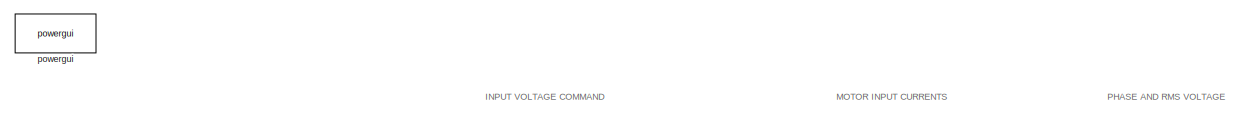
[diagram: root canvas - part 1/3, top center region]
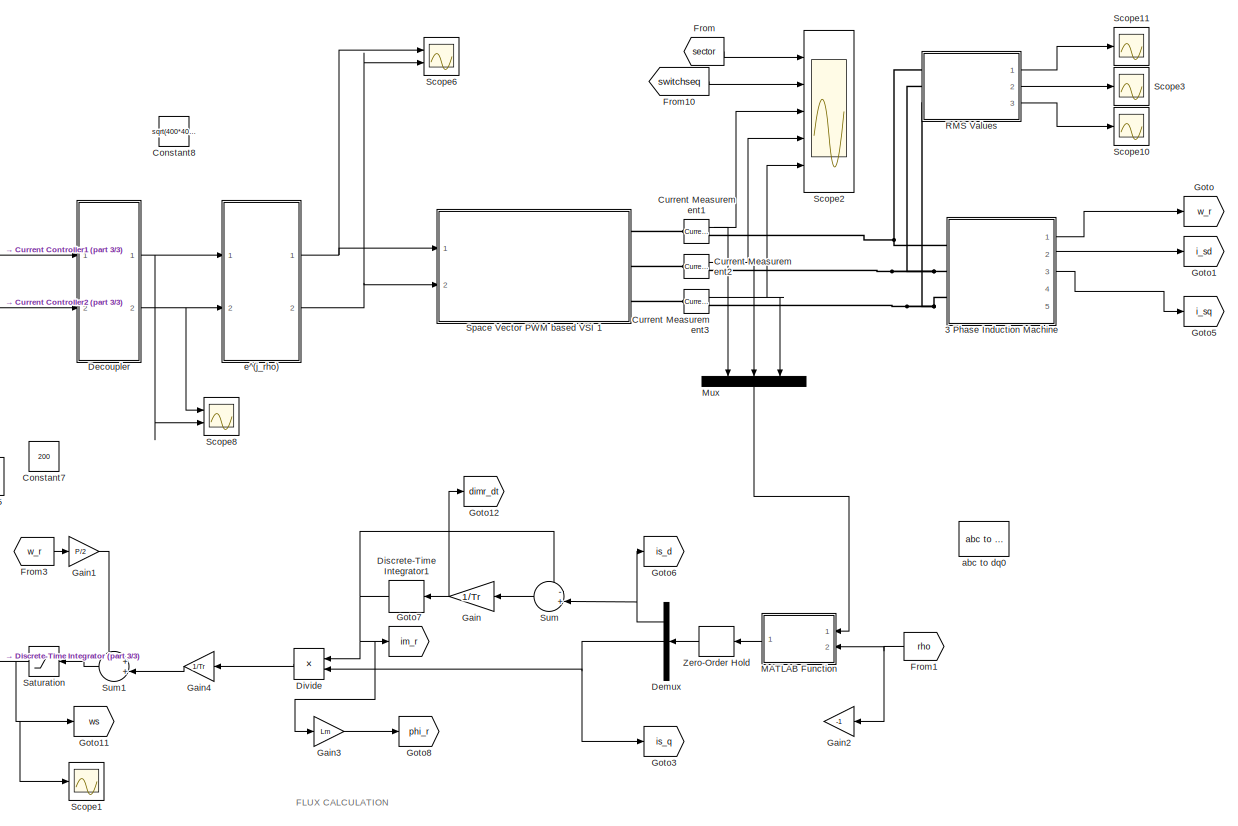
[diagram: root canvas - part 2/3, right side, full height]
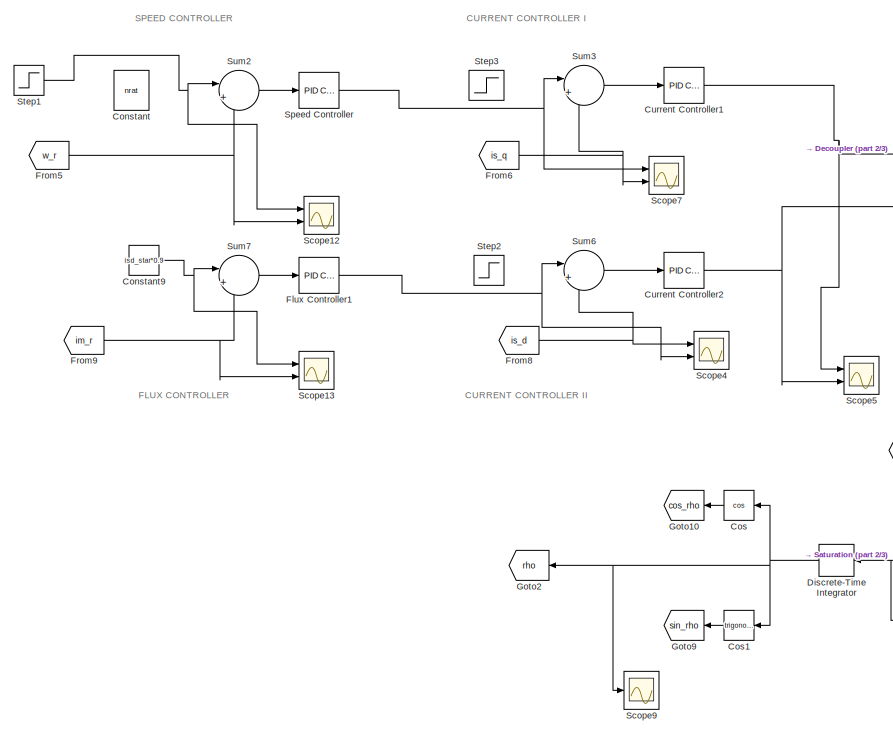
[diagram: root canvas - part 3/3, left side, full height]
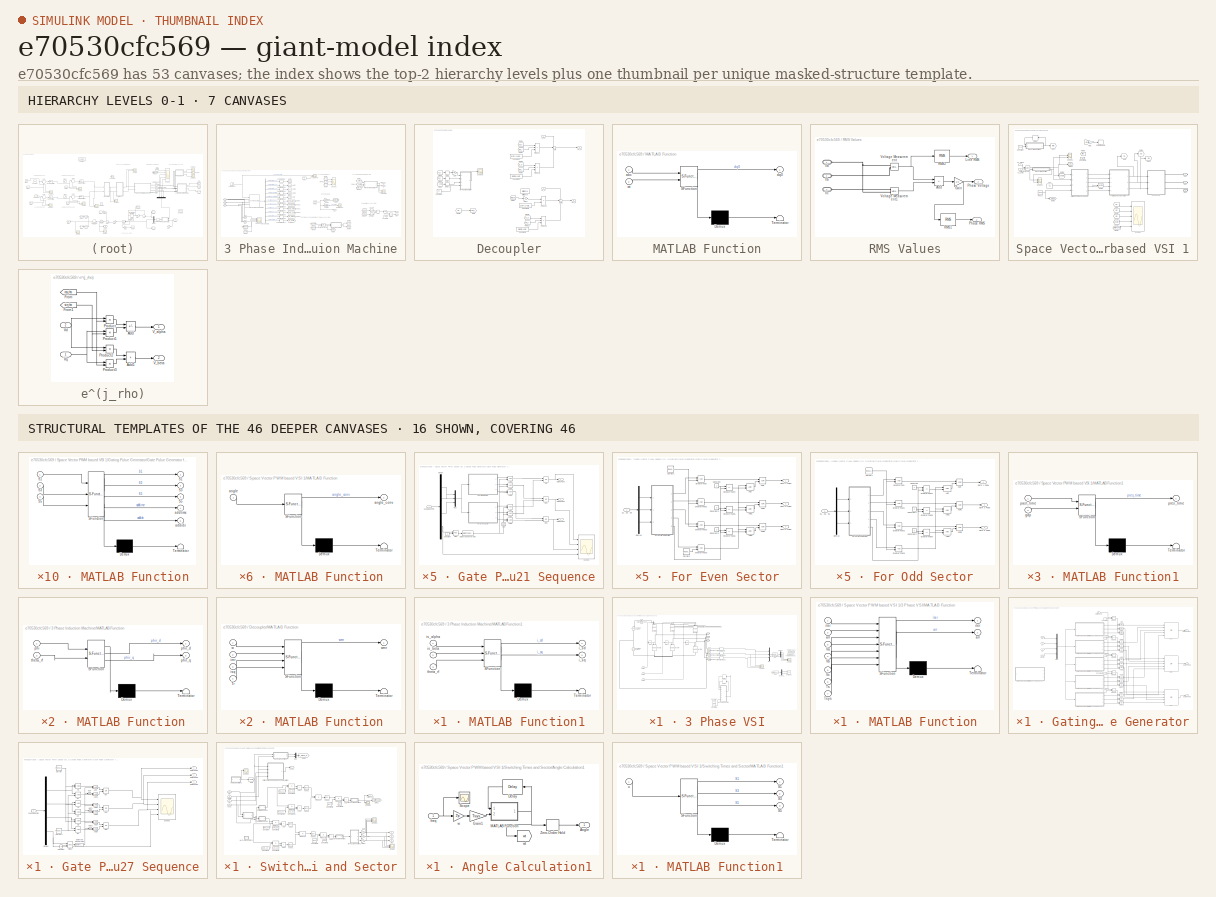
[diagram: thumbnail index - top-2 hierarchy levels (7 canvases) + 16 structural-template representatives of the remaining 46 canvases]
MODEL slx_e70530cfc569
KIND model
CONFIG AbsTol = auto
CONFIG EnableMultiTasking = off
CONFIG FixedStep = auto
CONFIG InitFcn = %clear;\n%clc;\n\n%Motor Parameters\nr1 = 1.405;\nl1  = 0.005839;\nr2 = 1.395;\nl2 = 0.005839;\nLm = 0.1722;\nJ = 0.0131;\n\n%Motor Rated Values\nVrat = 400;\nfrat = 50;\n\nx1 = 2*pi*frat*l1;\nx2 = 2*pi*frat*l2;\nXm = 2*pi*frat*Lm;\nPrat = 4*1000;\nNrat = 1430;\nP = 4;\nNs = 120*frat/P;\nnrat = Nrat*2*pi/60;\nns = Ns*2*pi/60;\nsrat = (Ns-Nrat)/Ns;\n\nE1 = Vrat/sqrt(3); %phase voltage\nIL = E1/( (r1 + (1i*x1) ) + ( ( (1i*x2)...<+1724ch>
CONFIG MaxStep = auto
CONFIG MinStep = auto
CONFIG RelTol = 1e-3
CONFIG SampleTimeConstraint = Unconstrained
CONFIG SolverName = ode4
CONFIG StartTime = 0.0
CONFIG StopTime = 5
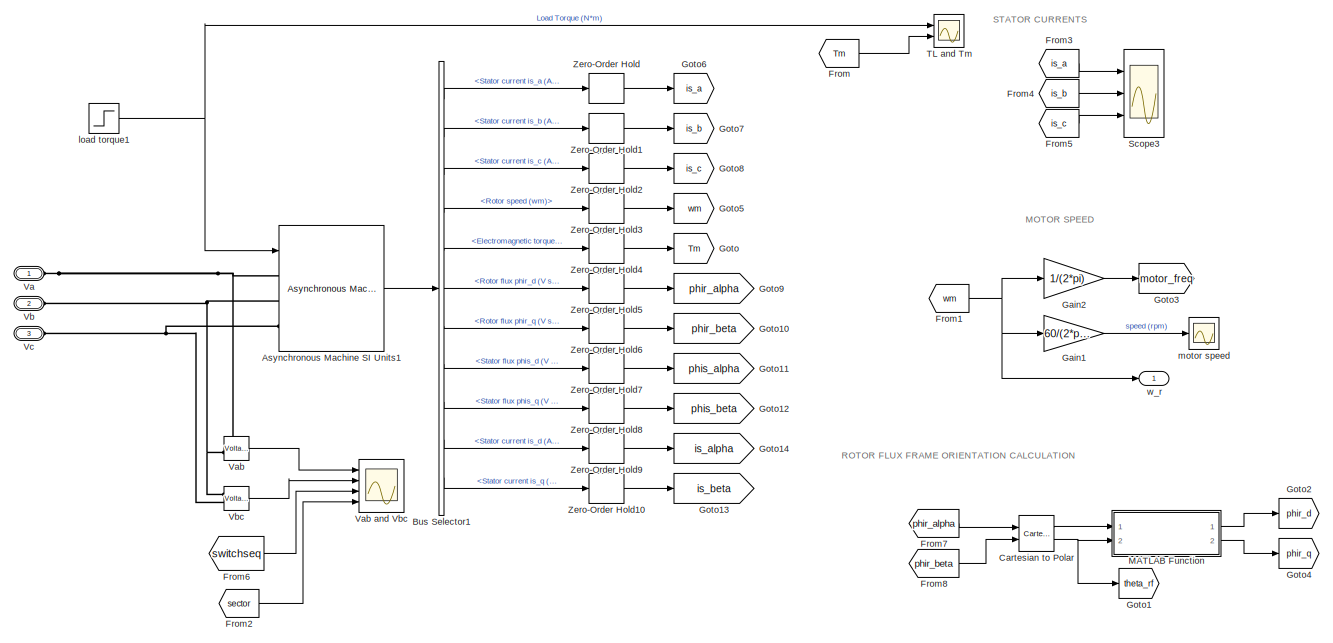
[diagram: 3 Phase Induction Machine - part 1/2, most of the canvas]
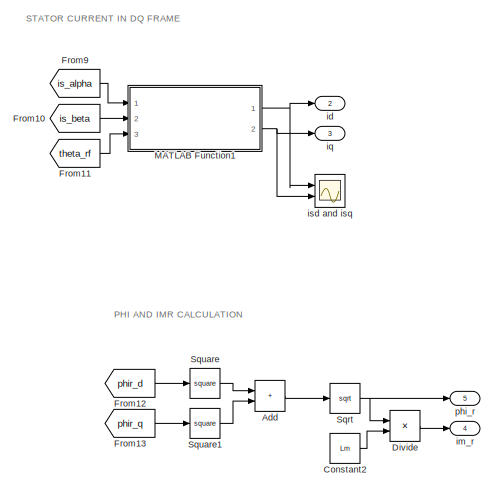
[diagram: 3 Phase Induction Machine - part 2/2, middle right region]
BLOCK [SubSystem] 3 Phase Induction Machine
  Ports = [0, 5, 0, 0, 0, 3]
  RequestExecContextInheritance = off
BLOCK [Sum] 3 Phase Induction Machine/Add
  IconShape = rectangular
  Ports = [2, 1]
BLOCK [Reference] 3 Phase Induction Machine/Asynchronous Machine SI Units1  REF=powerlib/Machines/Asynchronous Machine
SI Units
  Ports = [1, 1, 0, 0, 0, 3]
  SourceBlock = powerlib/Machines/Asynchronous Machine\nSI Units
  SourceProductBaseCode = PS
  SourceType = Asynchronous Machine
BLOCK [BusSelector] 3 Phase Induction Machine/Bus Selector1
  OutputSignals = Stator measurements.Stator current is_a (A),Stator measurements.Stator current is_b (A),Stator measurements.Stator current is_c (A),Mechanical.Rotor speed (wm),Mechanical.Electromagnetic torque Te (N*m),Rotor measurements.Rotor flux phir_d (V s),Rotor measurements.Rotor flux phir_q (V s),Stator measurements.Stator flux phis_d (V s),Stator measurements.Stator flux phis_q (V s),Stator measurements.S...<+67ch>
  Ports = [1, 11]
BLOCK [Reference] 3 Phase Induction Machine/Cartesian to Polar  REF=simulink_extras/Transformations/Cartesian to
Polar
  Ports = [2, 2]
  SourceBlock = simulink_extras/Transformations/Cartesian to\nPolar
  SourceProductBaseCode = SL
  SourceType = Cart2Polar
BLOCK [Constant] 3 Phase Induction Machine/Constant2
  Value = Lm
BLOCK [Product] 3 Phase Induction Machine/Divide
  Inputs = */
  Ports = [2, 1]
BLOCK [From] 3 Phase Induction Machine/From
  GotoTag = Tm
  TagVisibility = global
BLOCK [From] 3 Phase Induction Machine/From1
  GotoTag = wm
  TagVisibility = global
BLOCK [From] 3 Phase Induction Machine/From10
  GotoTag = is_beta
  TagVisibility = global
BLOCK [From] 3 Phase Induction Machine/From11
  GotoTag = theta_rf
  TagVisibility = global
BLOCK [From] 3 Phase Induction Machine/From12
  GotoTag = phir_d
  TagVisibility = global
BLOCK [From] 3 Phase Induction Machine/From13
  GotoTag = phir_q
  TagVisibility = global
BLOCK [From] 3 Phase Induction Machine/From2
  GotoTag = sector
  TagVisibility = global
BLOCK [From] 3 Phase Induction Machine/From3
  GotoTag = is_a
  TagVisibility = global
BLOCK [From] 3 Phase Induction Machine/From4
  GotoTag = is_b
  TagVisibility = global
BLOCK [From] 3 Phase Induction Machine/From5
  GotoTag = is_c
  TagVisibility = global
BLOCK [From] 3 Phase Induction Machine/From6
  GotoTag = switchseq
  TagVisibility = global
BLOCK [From] 3 Phase Induction Machine/From7
  GotoTag = phir_alpha
  TagVisibility = global
BLOCK [From] 3 Phase Induction Machine/From8
  GotoTag = phir_beta
  TagVisibility = global
BLOCK [From] 3 Phase Induction Machine/From9
  GotoTag = is_alpha
  TagVisibility = global
BLOCK [Gain] 3 Phase Induction Machine/Gain1
  Gain = 60/(2*pi)
BLOCK [Gain] 3 Phase Induction Machine/Gain2
  Gain = 1/(2*pi)
BLOCK [Goto] 3 Phase Induction Machine/Goto
  GotoTag = Tm
  TagVisibility = global
BLOCK [Goto] 3 Phase Induction Machine/Goto1
  GotoTag = theta_rf
  TagVisibility = global
BLOCK [Goto] 3 Phase Induction Machine/Goto10
  GotoTag = phir_beta
  TagVisibility = global
BLOCK [Goto] 3 Phase Induction Machine/Goto11
  GotoTag = phis_alpha
  TagVisibility = global
BLOCK [Goto] 3 Phase Induction Machine/Goto12
  GotoTag = phis_beta
  TagVisibility = global
BLOCK [Goto] 3 Phase Induction Machine/Goto13
  GotoTag = is_beta
  TagVisibility = global
BLOCK [Goto] 3 Phase Induction Machine/Goto14
  GotoTag = is_alpha
  TagVisibility = global
BLOCK [Goto] 3 Phase Induction Machine/Goto2
  GotoTag = phir_d
  TagVisibility = global
BLOCK [Goto] 3 Phase Induction Machine/Goto3
  GotoTag = motor_freq
  TagVisibility = global
BLOCK [Goto] 3 Phase Induction Machine/Goto4
  GotoTag = phir_q
  TagVisibility = global
BLOCK [Goto] 3 Phase Induction Machine/Goto5
  GotoTag = wm
  TagVisibility = global
BLOCK [Goto] 3 Phase Induction Machine/Goto6
  GotoTag = is_a
  TagVisibility = global
BLOCK [Goto] 3 Phase Induction Machine/Goto7
  GotoTag = is_b
  TagVisibility = global
BLOCK [Goto] 3 Phase Induction Machine/Goto8
  GotoTag = is_c
  TagVisibility = global
BLOCK [Goto] 3 Phase Induction Machine/Goto9
  GotoTag = phir_alpha
  TagVisibility = global
BLOCK [SubSystem] 3 Phase Induction Machine/MATLAB Function
  ErrorFcn = Stateflow.Translate.translate
  PermitHierarchicalResolution = ExplicitOnly
  Ports = [2, 2]
  RequestExecContextInheritance = off
  SFBlockType = MATLAB Function
  TreatAsAtomicUnit = on
BLOCK [Demux] 3 Phase Induction Machine/MATLAB Function/ Demux 
  Outputs = 1
  Ports = [1, 1]
BLOCK [S-Function] 3 Phase Induction Machine/MATLAB Function/ SFunction 
  EnableBusSupport = on
  FunctionName = sf_sfun
  PortCounts = [2 3]
  Ports = [2, 3]
  SFcnIsStateOwnerBlock = off
  SFunctionDeploymentMode = off
  Tag = Stateflow S-Function 6
BLOCK [Terminator] 3 Phase Induction Machine/MATLAB Function/ Terminator 
BLOCK [Inport] 3 Phase Induction Machine/MATLAB Function/phi
BLOCK [Outport] 3 Phase Induction Machine/MATLAB Function/phir_d
BLOCK [Outport] 3 Phase Induction Machine/MATLAB Function/phir_q
  Port = 2
BLOCK [Inport] 3 Phase Induction Machine/MATLAB Function/theta_rf
  Port = 2
BLOCK [SubSystem] 3 Phase Induction Machine/MATLAB Function1
  ErrorFcn = Stateflow.Translate.translate
  PermitHierarchicalResolution = ExplicitOnly
  Ports = [3, 2]
  RequestExecContextInheritance = off
  SFBlockType = MATLAB Function
  TreatAsAtomicUnit = on
BLOCK [Demux] 3 Phase Induction Machine/MATLAB Function1/ Demux 
  Outputs = 1
  Ports = [1, 1]
BLOCK [S-Function] 3 Phase Induction Machine/MATLAB Function1/ SFunction 
  EnableBusSupport = on
  FunctionName = sf_sfun
  PortCounts = [3 3]
  Ports = [3, 3]
  SFcnIsStateOwnerBlock = off
  SFunctionDeploymentMode = off
  Tag = Stateflow S-Function 7
BLOCK [Terminator] 3 Phase Induction Machine/MATLAB Function1/ Terminator 
BLOCK [Outport] 3 Phase Induction Machine/MATLAB Function1/i_sd
BLOCK [Outport] 3 Phase Induction Machine/MATLAB Function1/i_sq
  Port = 2
BLOCK [Inport] 3 Phase Induction Machine/MATLAB Function1/is_alpha
BLOCK [Inport] 3 Phase Induction Machine/MATLAB Function1/is_beta
  Port = 2
BLOCK [Inport] 3 Phase Induction Machine/MATLAB Function1/theta_rf
  Port = 3
BLOCK [Scope] 3 Phase Induction Machine/Scope3
  Floating = off
  NumInputPorts = 3
  Ports = [3]
  ScopeSpecificationString = Simulink.scopes.TimeScopeBlockCfg('CurrentConfiguration', extmgr.ConfigurationSet(extmgr.Configuration('Core','General UI',true,'FigureColor',[1 1 1]),extmgr.Configuration('Core','Source UI',true),extmgr.Configuration('Sources','WiredSimulink',true,'DataLoggingVariableName','ScopeData10'),extmgr.Configuration('Visuals','Time Domain',true,'SerializedDisplays',{struct('MinYLimReal','-62.83051','MaxY...<+1898ch>
BLOCK [Sqrt] 3 Phase Induction Machine/Sqrt
BLOCK [Math] 3 Phase Induction Machine/Square
  Operator = square
  Ports = [1, 1]
BLOCK [Math] 3 Phase Induction Machine/Square1
  Operator = square
  Ports = [1, 1]
BLOCK [Scope] 3 Phase Induction Machine/TL and Tm
  Floating = off
  NumInputPorts = 2
  Ports = [2]
  ScopeSpecificationString = Simulink.scopes.TimeScopeBlockCfg('CurrentConfiguration', extmgr.ConfigurationSet(extmgr.Configuration('Core','General UI',true,'FigureColor',[1 1 1]),extmgr.Configuration('Core','Source UI',true),extmgr.Configuration('Sources','WiredSimulink',true,'DataLoggingVariableName','ScopeData11','DataLoggingDecimateData',true,'DataLoggingDecimation','20'),extmgr.Configuration('Visuals','Time Domain',true,...<+1847ch>
BLOCK [PMIOPort] 3 Phase Induction Machine/Va
  Side = Left
BLOCK [Reference] 3 Phase Induction Machine/Vab  REF=powerlib/Measurements/Voltage Measurement
  Ports = [0, 1, 0, 0, 0, 2]
  SourceBlock = powerlib/Measurements/Voltage Measurement
  SourceProductBaseCode = PS
  SourceType = Voltage Measurement
  UserDataPersistent = on
BLOCK [Scope] 3 Phase Induction Machine/Vab and Vbc
  Floating = off
  NumInputPorts = 4
  Ports = [4]
  ScopeSpecificationString = Simulink.scopes.TimeScopeBlockCfg('CurrentConfiguration', extmgr.ConfigurationSet(extmgr.Configuration('Core','General UI',true,'FigureColor',[1 1 1]),extmgr.Configuration('Core','Source UI',true),extmgr.Configuration('Sources','WiredSimulink',true,'DataLoggingVariableName','ScopeData1','DataLoggingDecimateData',true,'DataLoggingDecimation','20'),extmgr.Configuration('Visuals','Time Domain',true,'...<+4291ch>
BLOCK [PMIOPort] 3 Phase Induction Machine/Vb
  Port = 2
  Side = Left
BLOCK [Reference] 3 Phase Induction Machine/Vbc  REF=powerlib/Measurements/Voltage Measurement
  Ports = [0, 1, 0, 0, 0, 2]
  SourceBlock = powerlib/Measurements/Voltage Measurement
  SourceProductBaseCode = PS
  SourceType = Voltage Measurement
  UserDataPersistent = on
BLOCK [PMIOPort] 3 Phase Induction Machine/Vc
  Port = 3
  Side = Left
BLOCK [ZeroOrderHold] 3 Phase Induction Machine/Zero-Order Hold
  SampleTime = Tzoh
BLOCK [ZeroOrderHold] 3 Phase Induction Machine/Zero-Order Hold1
  SampleTime = Tzoh
BLOCK [ZeroOrderHold] 3 Phase Induction Machine/Zero-Order Hold10
  SampleTime = Tzoh
BLOCK [ZeroOrderHold] 3 Phase Induction Machine/Zero-Order Hold2
  SampleTime = Tzoh
BLOCK [ZeroOrderHold] 3 Phase Induction Machine/Zero-Order Hold3
  SampleTime = Tzoh
BLOCK [ZeroOrderHold] 3 Phase Induction Machine/Zero-Order Hold4
  SampleTime = Tzoh
BLOCK [ZeroOrderHold] 3 Phase Induction Machine/Zero-Order Hold5
  SampleTime = Tzoh
BLOCK [ZeroOrderHold] 3 Phase Induction Machine/Zero-Order Hold6
  SampleTime = Tzoh
BLOCK [ZeroOrderHold] 3 Phase Induction Machine/Zero-Order Hold7
  SampleTime = Tzoh
BLOCK [ZeroOrderHold] 3 Phase Induction Machine/Zero-Order Hold8
  SampleTime = Tzoh
BLOCK [ZeroOrderHold] 3 Phase Induction Machine/Zero-Order Hold9
  SampleTime = Tzoh
BLOCK [Outport] 3 Phase Induction Machine/id
  Port = 2
BLOCK [Outport] 3 Phase Induction Machine/im_r
  Port = 4
BLOCK [Outport] 3 Phase Induction Machine/iq
  Port = 3
BLOCK [Scope] 3 Phase Induction Machine/isd and isq
  Floating = off
  NumInputPorts = 2
  Ports = [2]
  ScopeSpecificationString = Simulink.scopes.TimeScopeBlockCfg('CurrentConfiguration', extmgr.ConfigurationSet(extmgr.Configuration('Core','General UI',true,'FigureColor',[1 1 1]),extmgr.Configuration('Core','Source UI',true),extmgr.Configuration('Sources','WiredSimulink',true,'DataLoggingVariableName','ScopeData2','DataLoggingDecimateData',true,'DataLoggingDecimation','20'),extmgr.Configuration('Visuals','Time Domain',true,'...<+2689ch>
BLOCK [Step] 3 Phase Induction Machine/load torque1
  After = T*0.5
  SampleTime = Tsys
  Time = 3
BLOCK [Scope] 3 Phase Induction Machine/motor speed
  Floating = off
  NumInputPorts = 1
  Ports = [1]
  ScopeSpecificationString = Simulink.scopes.TimeScopeBlockCfg('CurrentConfiguration', extmgr.ConfigurationSet(extmgr.Configuration('Core','General UI',true,'FigureColor',[1 1 1]),extmgr.Configuration('Core','Source UI',true),extmgr.Configuration('Sources','WiredSimulink',true,'DataLoggingVariableName','ScopeData9','DataLoggingDecimateData',true,'DataLoggingDecimation','20'),extmgr.Configuration('Visuals','Time Domain',true,'...<+1640ch>
BLOCK [Outport] 3 Phase Induction Machine/phi_r
  Port = 5
BLOCK [Outport] 3 Phase Induction Machine/w_r
BLOCK [Constant] Constant
  Value = nrat
BLOCK [Constant] Constant7
  Value = 200
BLOCK [Constant] Constant8
  Value = sqrt(400*400-200*200)
BLOCK [Constant] Constant9
  Value = isd_star*0.9
BLOCK [Trigonometry] Cos
  Operator = cos
  Ports = [1, 1]
BLOCK [Trigonometry] Cos1
  Ports = [1, 1]
BLOCK [Reference] Current Controller1  REF=pid_lib/PID Controller
  Ports = [1, 1]
  SourceBlock = pid_lib/PID Controller
  SourceProductBaseCode = SL
  SourceType = PID 1dof
BLOCK [Reference] Current Controller2  REF=pid_lib/PID Controller
  Ports = [1, 1]
  SourceBlock = pid_lib/PID Controller
  SourceProductBaseCode = SL
  SourceType = PID 1dof
BLOCK [Reference] Current Measurement1  REF=powerlib/Measurements/Current Measurement
  Ports = [0, 1, 0, 0, 0, 1, 1]
  SourceBlock = powerlib/Measurements/Current Measurement
  SourceProductBaseCode = PS
  SourceType = Current Measurement
  UserDataPersistent = on
BLOCK [Reference] Current Measurement2  REF=powerlib/Measurements/Current Measurement
  Ports = [0, 1, 0, 0, 0, 1, 1]
  SourceBlock = powerlib/Measurements/Current Measurement
  SourceProductBaseCode = PS
  SourceType = Current Measurement
  UserDataPersistent = on
BLOCK [Reference] Current Measurement3  REF=powerlib/Measurements/Current Measurement
  Ports = [0, 1, 0, 0, 0, 1, 1]
  SourceBlock = powerlib/Measurements/Current Measurement
  SourceProductBaseCode = PS
  SourceType = Current Measurement
  UserDataPersistent = on
BLOCK [SubSystem] Decoupler
  Ports = [2, 2]
  RequestExecContextInheritance = off
BLOCK [Constant] Decoupler/Constant
  Commented = on
  Value = Tr
BLOCK [Constant] Decoupler/Constant1
  Value = 1/(G*(1+sigma_r))
BLOCK [Constant] Decoupler/Constant2
  Value = sigma*Ls/G
BLOCK [Constant] Decoupler/Constant3
  Value = 1/(G*(1+sigma_r))
BLOCK [Constant] Decoupler/Constant4
  Value = sigma*Ls/G
BLOCK [Delay] Decoupler/Delay
  Commented = on
  DelayLength = 1
  InputPortMap = u0
  Ports = [1, 1]
BLOCK [Delay] Decoupler/Delay1
  Commented = on
  DelayLength = 1
  InputPortMap = u0
  Ports = [1, 1]
BLOCK [Delay] Decoupler/Delay2
  Commented = on
  DelayLength = 1
  InputPortMap = u0
  Ports = [1, 1]
BLOCK [Reference] Decoupler/Difference  REF=simulink/Discrete/Difference
  Ports = [1, 1]
  SourceBlock = simulink/Discrete/Difference
  SourceProductBaseCode = SL
  SourceType = Difference
BLOCK [From] Decoupler/From
  Commented = on
  GotoTag = w_r
  TagVisibility = global
BLOCK [From] Decoupler/From1
  Commented = on
  GotoTag = im_r
  TagVisibility = global
BLOCK [From] Decoupler/From10
  GotoTag = wm_r
BLOCK [From] Decoupler/From2
  Commented = on
  GotoTag = i_sq
  TagVisibility = global
BLOCK [From] Decoupler/From3
  GotoTag = phi_r
  TagVisibility = global
BLOCK [From] Decoupler/From4
  GotoTag = wm_r
BLOCK [From] Decoupler/From5
  GotoTag = is_d
  TagVisibility = global
BLOCK [From] Decoupler/From6
  GotoTag = wm_r
BLOCK [From] Decoupler/From7
  GotoTag = dimr_dt
  TagVisibility = global
BLOCK [From] Decoupler/From8
  GotoTag = ws
  TagVisibility = global
BLOCK [From] Decoupler/From9
  GotoTag = is_q
  TagVisibility = global
BLOCK [Gain] Decoupler/Gain
  Commented = on
  Gain = P/2
BLOCK [Gain] Decoupler/Gain1
  Gain = Lm
BLOCK [Goto] Decoupler/Goto
  GotoTag = wm_r
BLOCK [SubSystem] Decoupler/MATLAB Function
  Commented = on
  ErrorFcn = Stateflow.Translate.translate
  PermitHierarchicalResolution = ExplicitOnly
  Ports = [4, 1]
  RequestExecContextInheritance = off
  SFBlockType = MATLAB Function
  TreatAsAtomicUnit = on
BLOCK [Demux] Decoupler/MATLAB Function/ Demux 
  Outputs = 1
  Ports = [1, 1]
BLOCK [S-Function] Decoupler/MATLAB Function/ SFunction 
  EnableBusSupport = on
  FunctionName = sf_sfun
  PortCounts = [4 2]
  Ports = [4, 2]
  SFcnIsStateOwnerBlock = off
  SFunctionDeploymentMode = off
  Tag = Stateflow S-Function 3
BLOCK [Terminator] Decoupler/MATLAB Function/ Terminator 
BLOCK [Inport] Decoupler/MATLAB Function/Tr
  Port = 4
BLOCK [Inport] Decoupler/MATLAB Function/imr
  Port = 2
BLOCK [Inport] Decoupler/MATLAB Function/isq
  Port = 3
BLOCK [Inport] Decoupler/MATLAB Function/w
BLOCK [Outport] Decoupler/MATLAB Function/wmr
BLOCK [Product] Decoupler/Product
  Inputs = 3
  Ports = [3, 1]
BLOCK [Product] Decoupler/Product1
  Inputs = 3
  Ports = [3, 1]
BLOCK [Product] Decoupler/Product2
  Ports = [2, 1]
BLOCK [Product] Decoupler/Product3
  Inputs = 3
  Ports = [3, 1]
BLOCK [Scope] Decoupler/Scope5
  Commented = on
  Floating = off
  NumInputPorts = 1
  Ports = [1]
  ScopeSpecificationString = Simulink.scopes.TimeScopeBlockCfg('CurrentConfiguration', extmgr.ConfigurationSet(extmgr.Configuration('Core','General UI',true,'FigureColor',[1 1 1]),extmgr.Configuration('Core','Source UI',true),extmgr.Configuration('Sources','WiredSimulink',true,'DataLoggingVariableName','ScopeData3','DataLoggingSaveFormat','Array'),extmgr.Configuration('Visuals','Time Domain',true,'SerializedDisplays',{struct(...<+1717ch>
BLOCK [Sum] Decoupler/Sum
  Inputs = +++
  Ports = [3, 1]
BLOCK [Sum] Decoupler/Sum1
  Inputs = ++-
  Ports = [3, 1]
BLOCK [Outport] Decoupler/Vs_d
  Port = 2
BLOCK [Inport] Decoupler/Vs_d'
  Port = 2
BLOCK [Outport] Decoupler/Vs_q
BLOCK [Inport] Decoupler/Vs_q'
BLOCK [Demux] Demux
  Outputs = 3
  Ports = [1, 3]
BLOCK [DiscreteIntegrator] Discrete-Time Integrator
  ICPrevOutput = DiscIntNeverNeededParam
  ICPrevScaledInput = DiscIntNeverNeededParam
  InitialConditionSetting = Auto
  Ports = [1, 1]
  SampleTime = -1
BLOCK [DiscreteIntegrator] Discrete-Time Integrator1
  ICPrevOutput = DiscIntNeverNeededParam
  ICPrevScaledInput = DiscIntNeverNeededParam
  InitialCondition = 1e-2
  InitialConditionSetting = Auto
  Ports = [1, 1]
  SampleTime = -1
BLOCK [Product] Divide
  Inputs = /*
  NameLocation = top
  Ports = [2, 1]
BLOCK [Reference] Flux Controller1  REF=pid_lib/PID Controller
  Ports = [1, 1]
  SourceBlock = pid_lib/PID Controller
  SourceProductBaseCode = SL
  SourceType = PID 1dof
BLOCK [From] From
  GotoTag = sector
  TagVisibility = global
BLOCK [From] From1
  GotoTag = rho
  TagVisibility = global
BLOCK [From] From10
  GotoTag = switchseq
  TagVisibility = global
BLOCK [From] From3
  GotoTag = w_r
  TagVisibility = global
BLOCK [From] From5
  GotoTag = w_r
  TagVisibility = global
BLOCK [From] From6
  GotoTag = is_q
  TagVisibility = global
BLOCK [From] From8
  GotoTag = is_d
  TagVisibility = global
BLOCK [From] From9
  GotoTag = im_r
  TagVisibility = global
BLOCK [Gain] Gain
  Gain = 1/Tr
BLOCK [Gain] Gain1
  Gain = P/2
BLOCK [Gain] Gain2
  Gain = -1
BLOCK [Gain] Gain3
  Gain = Lm
BLOCK [Gain] Gain4
  Gain = 1/Tr
BLOCK [Goto] Goto
  GotoTag = w_r
  TagVisibility = global
BLOCK [Goto] Goto1
  GotoTag = i_sd
  TagVisibility = global
BLOCK [Goto] Goto10
  GotoTag = cos_rho
  TagVisibility = global
BLOCK [Goto] Goto11
  GotoTag = ws
  TagVisibility = global
BLOCK [Goto] Goto12
  GotoTag = dimr_dt
  TagVisibility = global
BLOCK [Goto] Goto2
  GotoTag = rho
  TagVisibility = global
BLOCK [Goto] Goto3
  GotoTag = is_q
  TagVisibility = global
BLOCK [Goto] Goto5
  GotoTag = i_sq
  TagVisibility = global
BLOCK [Goto] Goto6
  GotoTag = is_d
  TagVisibility = global
BLOCK [Goto] Goto7
  GotoTag = im_r
  TagVisibility = global
BLOCK [Goto] Goto8
  GotoTag = phi_r
  TagVisibility = global
BLOCK [Goto] Goto9
  GotoTag = sin_rho
  TagVisibility = global
BLOCK [SubSystem] MATLAB Function
  ErrorFcn = Stateflow.Translate.translate
  PermitHierarchicalResolution = ExplicitOnly
  Ports = [2, 1]
  RequestExecContextInheritance = off
  SFBlockType = MATLAB Function
  TreatAsAtomicUnit = on
BLOCK [Demux] MATLAB Function/ Demux 
  Outputs = 1
  Ports = [1, 1]
BLOCK [S-Function] MATLAB Function/ SFunction 
  EnableBusSupport = on
  FunctionName = sf_sfun
  PortCounts = [2 2]
  Ports = [2, 2]
  SFcnIsStateOwnerBlock = off
  SFunctionDeploymentMode = off
  Tag = Stateflow S-Function 8
BLOCK [Terminator] MATLAB Function/ Terminator 
BLOCK [Inport] MATLAB Function/abc
BLOCK [Outport] MATLAB Function/dq0
BLOCK [Inport] MATLAB Function/wt
  Port = 2
BLOCK [Mux] Mux
  DisplayOption = bar
  Inputs = 3
  NameLocation = right
  Ports = [3, 1]
BLOCK [SubSystem] RMS Values
  Ports = [0, 3, 0, 0, 0, 3]
  RequestExecContextInheritance = off
BLOCK [Sum] RMS Values/Add
  IconShape = rectangular
  Inputs = +-
  Ports = [2, 1]
BLOCK [Gain] RMS Values/Gain
  Gain = 1/3
BLOCK [Outport] RMS Values/Line RMS
BLOCK [Outport] RMS Values/Phase RMS
  Port = 3
BLOCK [Outport] RMS Values/Phase Voltage
  Port = 2
BLOCK [Reference] RMS Values/RMS1  REF=powerlib_meascontrol/Measurements/RMS
  Ports = [1, 1]
  SourceBlock = powerlib_meascontrol/Measurements/RMS
  SourceProductBaseCode = PS
  SourceType = RMS
BLOCK [Reference] RMS Values/RMS2  REF=powerlib_meascontrol/Measurements/RMS
  Ports = [1, 1]
  SourceBlock = powerlib_meascontrol/Measurements/RMS
  SourceProductBaseCode = PS
  SourceType = RMS
BLOCK [PMIOPort] RMS Values/Va
  Side = Left
BLOCK [PMIOPort] RMS Values/Vb
  Port = 2
  Side = Left
BLOCK [PMIOPort] RMS Values/Vc
  Port = 3
  Side = Left
BLOCK [Reference] RMS Values/Voltage Measurement  REF=powerlib/Measurements/Voltage Measurement
  Ports = [0, 1, 0, 0, 0, 2]
  SourceBlock = powerlib/Measurements/Voltage Measurement
  SourceProductBaseCode = PS
  SourceType = Voltage Measurement
  UserDataPersistent = on
BLOCK [Reference] RMS Values/Voltage Measurement1  REF=powerlib/Measurements/Voltage Measurement
  Ports = [0, 1, 0, 0, 0, 2]
  SourceBlock = powerlib/Measurements/Voltage Measurement
  SourceProductBaseCode = PS
  SourceType = Voltage Measurement
  UserDataPersistent = on
BLOCK [Saturate] Saturation
  LowerLimit = -2*ws
  UpperLimit = 2*ws
BLOCK [Scope] Scope1
  Floating = off
  NumInputPorts = 1
  Ports = [1]
  ScopeSpecificationString = Simulink.scopes.TimeScopeBlockCfg('CurrentConfiguration', extmgr.ConfigurationSet(extmgr.Configuration('Core','General UI',true,'FigureColor',[1 1 1]),extmgr.Configuration('Core','Source UI',true),extmgr.Configuration('Sources','WiredSimulink',true,'DataLoggingVariableName','ScopeData1','DataLogging',true,'DataLoggingSaveFormat','Array','DataLoggingDecimateData',true,'DataLoggingDecimation','20'),...<+1814ch>
BLOCK [Scope] Scope10
  Floating = off
  NumInputPorts = 1
  Ports = [1]
  ScopeSpecificationString = Simulink.scopes.TimeScopeBlockCfg('CurrentConfiguration', extmgr.ConfigurationSet(extmgr.Configuration('Core','General UI',true),extmgr.Configuration('Core','Source UI',true),extmgr.Configuration('Sources','WiredSimulink',true,'DataLoggingVariableName','ScopeData2','DataLogging',true,'DataLoggingSaveFormat','Array','DataLoggingDecimateData',true,'DataLoggingDecimation','20'),extmgr.Configuration('...<+1631ch>
BLOCK [Scope] Scope11
  Floating = off
  NumInputPorts = 1
  Ports = [1]
  ScopeSpecificationString = Simulink.scopes.TimeScopeBlockCfg('CurrentConfiguration', extmgr.ConfigurationSet(extmgr.Configuration('Core','General UI',true,'FigureColor',[1 1 1]),extmgr.Configuration('Core','Source UI',true),extmgr.Configuration('Sources','WiredSimulink',true,'DataLoggingVariableName','ScopeData3','DataLogging',true,'DataLoggingSaveFormat','Array','DataLoggingDecimateData',true,'DataLoggingDecimation','20'),...<+1761ch>
BLOCK [Scope] Scope12
  Floating = off
  NumInputPorts = 2
  Ports = [2]
  ScopeSpecificationString = Simulink.scopes.TimeScopeBlockCfg('CurrentConfiguration', extmgr.ConfigurationSet(extmgr.Configuration('Core','General UI',true,'FigureColor',[1 1 1]),extmgr.Configuration('Core','Source UI',true),extmgr.Configuration('Sources','WiredSimulink',true,'DataLoggingVariableName','S1','DataLoggingSaveFormat','Structure','DataLoggingDecimateData',true,'DataLoggingDecimation','20','DataLogging',true),extm...<+2116ch>
BLOCK [Scope] Scope13
  Floating = off
  NumInputPorts = 2
  Ports = [2]
  ScopeSpecificationString = Simulink.scopes.TimeScopeBlockCfg('CurrentConfiguration', extmgr.ConfigurationSet(extmgr.Configuration('Core','General UI',true,'FigureColor',[1 1 1]),extmgr.Configuration('Core','Source UI',true),extmgr.Configuration('Sources','WiredSimulink',true,'DataLoggingVariableName','f1','DataLoggingSaveFormat','Structure','DataLoggingDecimateData',true,'DataLoggingDecimation','20','DataLogging',true),extm...<+2029ch>
BLOCK [Scope] Scope2
  Floating = off
  NumInputPorts = 5
  Ports = [5]
  ScopeSpecificationString = Simulink.scopes.TimeScopeBlockCfg('CurrentConfiguration', extmgr.ConfigurationSet(extmgr.Configuration('Core','General UI',true,'FigureColor',[1 1 1]),extmgr.Configuration('Core','Source UI',true),extmgr.Configuration('Sources','WiredSimulink',true,'DataLoggingVariableName','ScopeData4','DataLogging',true,'DataLoggingSaveFormat','StructureWithTime','DataLoggingDecimateData',true,'DataLoggingDecima...<+3836ch>
BLOCK [Scope] Scope3
  Floating = off
  NumInputPorts = 1
  Ports = [1]
  ScopeSpecificationString = Simulink.scopes.TimeScopeBlockCfg('CurrentConfiguration', extmgr.ConfigurationSet(extmgr.Configuration('Core','General UI',true),extmgr.Configuration('Core','Source UI',true),extmgr.Configuration('Sources','WiredSimulink',true,'DataLoggingVariableName','ScopeData5','DataLogging',true,'DataLoggingSaveFormat','Array','DataLoggingDecimateData',true,'DataLoggingDecimation','20'),extmgr.Configuration('...<+1645ch>
BLOCK [Scope] Scope4
  Floating = off
  NumInputPorts = 2
  Ports = [2]
  ScopeSpecificationString = Simulink.scopes.TimeScopeBlockCfg('CurrentConfiguration', extmgr.ConfigurationSet(extmgr.Configuration('Core','General UI',true,'FigureColor',[1 1 1]),extmgr.Configuration('Core','Source UI',true),extmgr.Configuration('Sources','WiredSimulink',true,'DataLoggingVariableName','d1','DataLoggingSaveFormat','Structure','DataLoggingDecimateData',true,'DataLoggingDecimation','20','DataLogging',true),extm...<+2133ch>
BLOCK [Scope] Scope5
  Floating = off
  NumInputPorts = 2
  Ports = [2]
  ScopeSpecificationString = Simulink.scopes.TimeScopeBlockCfg('CurrentConfiguration', extmgr.ConfigurationSet(extmgr.Configuration('Core','General UI',true,'FigureColor',[1 1 1]),extmgr.Configuration('Core','Source UI',true),extmgr.Configuration('Sources','WiredSimulink',true,'DataLoggingVariableName','ScopeData7','DataLoggingSaveFormat','Array','DataLoggingDecimateData',true,'DataLoggingDecimation','20'),extmgr.Configuratio...<+2382ch>
BLOCK [Scope] Scope6
  Floating = off
  NumInputPorts = 2
  Ports = [2]
  ScopeSpecificationString = Simulink.scopes.TimeScopeBlockCfg('CurrentConfiguration', extmgr.ConfigurationSet(extmgr.Configuration('Core','General UI',true,'FigureColor',[1 1 1]),extmgr.Configuration('Core','Source UI',true),extmgr.Configuration('Sources','WiredSimulink',true,'DataLoggingVariableName','ScopeData8','DataLoggingSaveFormat','Array','DataLoggingDecimateData',true,'DataLoggingDecimation','20'),extmgr.Configuratio...<+2499ch>
BLOCK [Scope] Scope7
  Floating = off
  NumInputPorts = 2
  Ports = [2]
  ScopeSpecificationString = Simulink.scopes.TimeScopeBlockCfg('CurrentConfiguration', extmgr.ConfigurationSet(extmgr.Configuration('Core','General UI',true,'FigureColor',[1 1 1]),extmgr.Configuration('Core','Source UI',true),extmgr.Configuration('Sources','WiredSimulink',true,'DataLoggingVariableName','q1','DataLoggingSaveFormat','Structure','DataLoggingDecimateData',true,'DataLoggingDecimation','20','DataLogging',true),extm...<+2123ch>
BLOCK [Scope] Scope8
  Floating = off
  NumInputPorts = 2
  Ports = [2]
  ScopeSpecificationString = Simulink.scopes.TimeScopeBlockCfg('CurrentConfiguration', extmgr.ConfigurationSet(extmgr.Configuration('Core','General UI',true,'FigureColor',[1 1 1]),extmgr.Configuration('Core','Source UI',true),extmgr.Configuration('Sources','WiredSimulink',true,'DataLoggingVariableName','ScopeData10','DataLoggingSaveFormat','Array','DataLoggingDecimateData',true,'DataLoggingDecimation','20'),extmgr.Configurati...<+2500ch>
BLOCK [Scope] Scope9
  Floating = off
  NumInputPorts = 1
  Ports = [1]
  ScopeSpecificationString = Simulink.scopes.TimeScopeBlockCfg('CurrentConfiguration', extmgr.ConfigurationSet(extmgr.Configuration('Core','General UI',true,'FigureColor',[1 1 1]),extmgr.Configuration('Core','Source UI',true),extmgr.Configuration('Sources','WiredSimulink',true,'DataLoggingVariableName','ScopeData1','DataLoggingSaveFormat','Array','DataLoggingDecimateData',true,'DataLoggingDecimation','20'),extmgr.Configuratio...<+1758ch>
BLOCK [SubSystem] Space Vector PWM based VSI 1
  Ports = [2, 0, 0, 0, 0, 0, 3]
  RequestExecContextInheritance = off
BLOCK [SubSystem] Space Vector PWM based VSI 1/3 Phase VSI
  Ports = [3, 0, 0, 0, 0, 0, 3]
  RequestExecContextInheritance = off
BLOCK [Constant] Space Vector PWM based VSI 1/3 Phase VSI/Constant
  SampleTime = Tsys
  Value = Ts
BLOCK [Constant] Space Vector PWM based VSI 1/3 Phase VSI/Constant1
  SampleTime = Tsys
  Value = Tsys
BLOCK [Reference] Space Vector PWM based VSI 1/3 Phase VSI/Current Measurement3  REF=powerlib/Measurements/Current Measurement
  Ports = [0, 1, 0, 0, 0, 1, 1]
  SourceBlock = powerlib/Measurements/Current Measurement
  SourceProductBaseCode = PS
  SourceType = Current Measurement
  UserDataPersistent = on
BLOCK [Reference] Space Vector PWM based VSI 1/3 Phase VSI/DC Voltage Source1  REF=powerlib/Electrical
Sources/DC Voltage Source
  NameLocation = right
  Ports = [0, 0, 0, 0, 0, 1, 1]
  SourceBlock = powerlib/Electrical\nSources/DC Voltage Source
  SourceProductBaseCode = PS
  SourceType = DC Voltage Source
BLOCK [Reference] Space Vector PWM based VSI 1/3 Phase VSI/DC Voltage Source2  REF=powerlib/Electrical
Sources/DC Voltage Source
  NameLocation = right
  Ports = [0, 0, 0, 0, 0, 1, 1]
  SourceBlock = powerlib/Electrical\nSources/DC Voltage Source
  SourceProductBaseCode = PS
  SourceType = DC Voltage Source
BLOCK [Delay] Space Vector PWM based VSI 1/3 Phase VSI/Delay
  DelayLength = 1
  InputPortMap = u0
  Ports = [1, 1]
  SampleTime = Tsys
BLOCK [Delay] Space Vector PWM based VSI 1/3 Phase VSI/Delay1
  DelayLength = 1
  InputPortMap = u0
  Ports = [1, 1]
  SampleTime = Tsys
BLOCK [Demux] Space Vector PWM based VSI 1/3 Phase VSI/Demux
  Outputs = 3
  Ports = [1, 3]
BLOCK [Demux] Space Vector PWM based VSI 1/3 Phase VSI/Demux1
  Outputs = 2
  Ports = [1, 2]
BLOCK [From] Space Vector PWM based VSI 1/3 Phase VSI/From
  GotoTag = V_alpha_beta
  TagVisibility = global
BLOCK [Inport] Space Vector PWM based VSI 1/3 Phase VSI/Gate 1
BLOCK [Inport] Space Vector PWM based VSI 1/3 Phase VSI/Gate 3
  Port = 2
BLOCK [Inport] Space Vector PWM based VSI 1/3 Phase VSI/Gate 5
  Port = 3
BLOCK [SubSystem] Space Vector PWM based VSI 1/3 Phase VSI/MATLAB Function
  ErrorFcn = Stateflow.Translate.translate
  PermitHierarchicalResolution = ExplicitOnly
  Ports = [7, 2]
  RequestExecContextInheritance = off
  SFBlockType = MATLAB Function
  TreatAsAtomicUnit = on
BLOCK [Demux] Space Vector PWM based VSI 1/3 Phase VSI/MATLAB Function/ Demux 
  Outputs = 1
  Ports = [1, 1]
BLOCK [S-Function] Space Vector PWM based VSI 1/3 Phase VSI/MATLAB Function/ SFunction 
  EnableBusSupport = on
  FunctionName = sf_sfun
  PortCounts = [7 3]
  Ports = [7, 3]
  SFcnIsStateOwnerBlock = off
  SFunctionDeploymentMode = off
  Tag = Stateflow S-Function 9
BLOCK [Terminator] Space Vector PWM based VSI 1/3 Phase VSI/MATLAB Function/ Terminator 
BLOCK [Inport] Space Vector PWM based VSI 1/3 Phase VSI/MATLAB Function/Ts
  Port = 6
BLOCK [Inport] Space Vector PWM based VSI 1/3 Phase VSI/MATLAB Function/Tsys
  Port = 7
BLOCK [Inport] Space Vector PWM based VSI 1/3 Phase VSI/MATLAB Function/Va
  Port = 3
BLOCK [Inport] Space Vector PWM based VSI 1/3 Phase VSI/MATLAB Function/Vb
  Port = 4
BLOCK [Inport] Space Vector PWM based VSI 1/3 Phase VSI/MATLAB Function/Vc
  Port = 5
BLOCK [Outport] Space Vector PWM based VSI 1/3 Phase VSI/MATLAB Function/arr
  Port = 2
BLOCK [Inport] Space Vector PWM based VSI 1/3 Phase VSI/MATLAB Function/arr 
  Port = 2
BLOCK [Outport] Space Vector PWM based VSI 1/3 Phase VSI/MATLAB Function/iter
BLOCK [Inport] Space Vector PWM based VSI 1/3 Phase VSI/MATLAB Function/iter 
BLOCK [Reference] Space Vector PWM based VSI 1/3 Phase VSI/Mosfet1  REF=powerlib/Power
Electronics/Mosfet
  NameLocation = left
  Ports = [1, 0, 0, 0, 0, 1, 1]
  SourceBlock = powerlib/Power\nElectronics/Mosfet
  SourceProductBaseCode = PS
  SourceType = Mosfet
BLOCK [Reference] Space Vector PWM based VSI 1/3 Phase VSI/Mosfet2  REF=powerlib/Power
Electronics/Mosfet
  NameLocation = left
  Ports = [1, 0, 0, 0, 0, 1, 1]
  SourceBlock = powerlib/Power\nElectronics/Mosfet
  SourceProductBaseCode = PS
  SourceType = Mosfet
BLOCK [Reference] Space Vector PWM based VSI 1/3 Phase VSI/Mosfet3  REF=powerlib/Power
Electronics/Mosfet
  NameLocation = left
  Ports = [1, 0, 0, 0, 0, 1, 1]
  SourceBlock = powerlib/Power\nElectronics/Mosfet
  SourceProductBaseCode = PS
  SourceType = Mosfet
BLOCK [Reference] Space Vector PWM based VSI 1/3 Phase VSI/Mosfet4  REF=powerlib/Power
Electronics/Mosfet
  NameLocation = left
  Ports = [1, 0, 0, 0, 0, 1, 1]
  SourceBlock = powerlib/Power\nElectronics/Mosfet
  SourceProductBaseCode = PS
  SourceType = Mosfet
BLOCK [Reference] Space Vector PWM based VSI 1/3 Phase VSI/Mosfet5  REF=powerlib/Power
Electronics/Mosfet
  NameLocation = left
  Ports = [1, 0, 0, 0, 0, 1, 1]
  SourceBlock = powerlib/Power\nElectronics/Mosfet
  SourceProductBaseCode = PS
  SourceType = Mosfet
BLOCK [Reference] Space Vector PWM based VSI 1/3 Phase VSI/Mosfet6  REF=powerlib/Power
Electronics/Mosfet
  NameLocation = left
  Ports = [1, 0, 0, 0, 0, 1, 1]
  SourceBlock = powerlib/Power\nElectronics/Mosfet
  SourceProductBaseCode = PS
  SourceType = Mosfet
BLOCK [Mux] Space Vector PWM based VSI 1/3 Phase VSI/Mux
  DisplayOption = bar
  Inputs = 3
  Ports = [3, 1]
BLOCK [Logic] Space Vector PWM based VSI 1/3 Phase VSI/NOT
  AllPortsSameDT = off
  IconShape = distinctive
  Operator = NOT
  OutDataTypeStr = boolean
  Ports = [1, 1]
BLOCK [Logic] Space Vector PWM based VSI 1/3 Phase VSI/NOT1
  AllPortsSameDT = off
  IconShape = distinctive
  Operator = NOT
  OutDataTypeStr = boolean
  Ports = [1, 1]
BLOCK [Logic] Space Vector PWM based VSI 1/3 Phase VSI/NOT2
  AllPortsSameDT = off
  IconShape = distinctive
  Operator = NOT
  OutDataTypeStr = boolean
  Ports = [1, 1]
BLOCK [Scope] Space Vector PWM based VSI 1/3 Phase VSI/Scope
  Floating = off
  NumInputPorts = 3
  Ports = [3]
  ScopeSpecificationString = Simulink.scopes.TimeScopeBlockCfg('CurrentConfiguration', extmgr.ConfigurationSet(extmgr.Configuration('Core','General UI',true,'FigureColor',[1 1 1]),extmgr.Configuration('Core','Source UI',true),extmgr.Configuration('Sources','WiredSimulink',true,'DataLoggingVariableName','ScopeData1','DataLoggingDecimateData',true,'DataLoggingDecimation','20'),extmgr.Configuration('Visuals','Time Domain',true,'...<+5747ch>
BLOCK [Scope] Space Vector PWM based VSI 1/3 Phase VSI/Scope1
  Floating = off
  NumInputPorts = 3
  Ports = [3]
  ScopeSpecificationString = Simulink.scopes.TimeScopeBlockCfg('CurrentConfiguration', extmgr.ConfigurationSet(extmgr.Configuration('Core','General UI',true,'FigureColor',[1 1 1]),extmgr.Configuration('Core','Source UI',true),extmgr.Configuration('Sources','WiredSimulink',true,'DataLoggingVariableName','ScopeData2','DataLoggingDecimateData',true,'DataLoggingDecimation','20'),extmgr.Configuration('Visuals','Time Domain',true,'...<+2641ch>
BLOCK [ToWorkspace] Space Vector PWM based VSI 1/3 Phase VSI/To Workspace
  FixptAsFi = on
  MaxDataPoints = inf
  Ports = [1]
  SampleTime = -1
  VariableName = X2
BLOCK [ToWorkspace] Space Vector PWM based VSI 1/3 Phase VSI/To Workspace1
  FixptAsFi = on
  MaxDataPoints = inf
  Ports = [1]
  SampleTime = -1
  VariableName = Y2
BLOCK [PMIOPort] Space Vector PWM based VSI 1/3 Phase VSI/Va
  Side = Right
BLOCK [PMIOPort] Space Vector PWM based VSI 1/3 Phase VSI/Vb
  Port = 2
  Side = Right
BLOCK [PMIOPort] Space Vector PWM based VSI 1/3 Phase VSI/Vc
  Port = 3
  Side = Right
BLOCK [Reference] Space Vector PWM based VSI 1/3 Phase VSI/Voltage Measurement  REF=powerlib/Measurements/Voltage Measurement
  Ports = [0, 1, 0, 0, 0, 2]
  SourceBlock = powerlib/Measurements/Voltage Measurement
  SourceProductBaseCode = PS
  SourceType = Voltage Measurement
  UserDataPersistent = on
BLOCK [Reference] Space Vector PWM based VSI 1/3 Phase VSI/Voltage Measurement1  REF=powerlib/Measurements/Voltage Measurement
  Ports = [0, 1, 0, 0, 0, 2]
  SourceBlock = powerlib/Measurements/Voltage Measurement
  SourceProductBaseCode = PS
  SourceType = Voltage Measurement
  UserDataPersistent = on
BLOCK [Reference] Space Vector PWM based VSI 1/3 Phase VSI/Voltage Measurement2  REF=powerlib/Measurements/Voltage Measurement
  Ports = [0, 1, 0, 0, 0, 2]
  SourceBlock = powerlib/Measurements/Voltage Measurement
  SourceProductBaseCode = PS
  SourceType = Voltage Measurement
  UserDataPersistent = on
BLOCK [Reference] Space Vector PWM based VSI 1/3 Phase VSI/XY Graph1  REF=simulink/Sinks/XY Graph
  Commented = on
  Ports = [2]
  SourceBlock = simulink/Sinks/XY Graph
  SourceProductBaseCode = SL
  SourceType = XY scope.
BLOCK [ZeroOrderHold] Space Vector PWM based VSI 1/3 Phase VSI/Zero-Order Hold
  SampleTime = Ts
BLOCK [ZeroOrderHold] Space Vector PWM based VSI 1/3 Phase VSI/Zero-Order Hold1
  SampleTime = Ts
BLOCK [ZeroOrderHold] Space Vector PWM based VSI 1/3 Phase VSI/Zero-Order Hold2
  SampleTime = Ts
BLOCK [Reference] Space Vector PWM based VSI 1/3 Phase VSI/abc to Alpha-Beta-Zero  REF=powerlib_meascontrol/Transformations/abc to
Alpha-Beta-Zero
  Ports = [1, 1]
  SourceBlock = powerlib_meascontrol/Transformations/abc to\nAlpha-Beta-Zero
  SourceProductBaseCode = PS
  SourceType = abc to Alpha-Beta-Zero Transformation
BLOCK [Reference] Space Vector PWM based VSI 1/Cartesian to Polar  REF=simulink_extras/Transformations/Cartesian to
Polar
  Ports = [2, 2]
  SourceBlock = simulink_extras/Transformations/Cartesian to\nPolar
  SourceProductBaseCode = SL
  SourceType = Cart2Polar
BLOCK [Constant] Space Vector PWM based VSI 1/Constant
  Value = Tsys
BLOCK [Constant] Space Vector PWM based VSI 1/Constant1
  Commented = on
  Value = ws
BLOCK [Delay] Space Vector PWM based VSI 1/Delay
  DelayLength = 1
  InputPortMap = u0
  Ports = [1, 1]
BLOCK [From] Space Vector PWM based VSI 1/From
  GotoTag = G1
  TagVisibility = global
BLOCK [From] Space Vector PWM based VSI 1/From1
  GotoTag = G3
  TagVisibility = global
BLOCK [From] Space Vector PWM based VSI 1/From2
  GotoTag = G5
  TagVisibility = global
BLOCK [From] Space Vector PWM based VSI 1/From3
  GotoTag = sector
  TagVisibility = global
BLOCK [From] Space Vector PWM based VSI 1/From4
  GotoTag = switchseq
  TagVisibility = global
BLOCK [From] Space Vector PWM based VSI 1/From5
  Commented = on
  GotoTag = time
  TagVisibility = global
BLOCK [SubSystem] Space Vector PWM based VSI 1/Gating Pulse Generator
  Ports = [5, 3]
  RequestExecContextInheritance = off
BLOCK [Logic] Space Vector PWM based VSI 1/Gating Pulse Generator/AND
  AllPortsSameDT = off
  IconShape = distinctive
  OutDataTypeStr = boolean
  Ports = [2, 1]
BLOCK [Logic] Space Vector PWM based VSI 1/Gating Pulse Generator/AND1
  AllPortsSameDT = off
  IconShape = distinctive
  OutDataTypeStr = boolean
  Ports = [2, 1]
BLOCK [Logic] Space Vector PWM based VSI 1/Gating Pulse Generator/AND10
  AllPortsSameDT = off
  IconShape = distinctive
  OutDataTypeStr = boolean
  Ports = [2, 1]
BLOCK [Logic] Space Vector PWM based VSI 1/Gating Pulse Generator/AND11
  AllPortsSameDT = off
  IconShape = distinctive
  OutDataTypeStr = boolean
  Ports = [2, 1]
BLOCK [Logic] Space Vector PWM based VSI 1/Gating Pulse Generator/AND12
  AllPortsSameDT = off
  IconShape = distinctive
  OutDataTypeStr = boolean
  Ports = [2, 1]
BLOCK [Logic] Space Vector PWM based VSI 1/Gating Pulse Generator/AND13
  AllPortsSameDT = off
  IconShape = distinctive
  OutDataTypeStr = boolean
  Ports = [2, 1]
BLOCK [Logic] Space Vector PWM based VSI 1/Gating Pulse Generator/AND14
  AllPortsSameDT = off
  IconShape = distinctive
  OutDataTypeStr = boolean
  Ports = [2, 1]
BLOCK [Logic] Space Vector PWM based VSI 1/Gating Pulse Generator/AND2
  AllPortsSameDT = off
  IconShape = distinctive
  OutDataTypeStr = boolean
  Ports = [2, 1]
BLOCK [Logic] Space Vector PWM based VSI 1/Gating Pulse Generator/AND3
  AllPortsSameDT = off
  IconShape = distinctive
  OutDataTypeStr = boolean
  Ports = [2, 1]
BLOCK [Logic] Space Vector PWM based VSI 1/Gating Pulse Generator/AND4
  AllPortsSameDT = off
  IconShape = distinctive
  OutDataTypeStr = boolean
  Ports = [2, 1]
BLOCK [Logic] Space Vector PWM based VSI 1/Gating Pulse Generator/AND5
  AllPortsSameDT = off
  IconShape = distinctive
  OutDataTypeStr = boolean
  Ports = [2, 1]
BLOCK [Logic] Space Vector PWM based VSI 1/Gating Pulse Generator/AND6
  AllPortsSameDT = off
  IconShape = distinctive
  OutDataTypeStr = boolean
  Ports = [2, 1]
BLOCK [Logic] Space Vector PWM based VSI 1/Gating Pulse Generator/AND7
  AllPortsSameDT = off
  IconShape = distinctive
  OutDataTypeStr = boolean
  Ports = [2, 1]
BLOCK [Logic] Space Vector PWM based VSI 1/Gating Pulse Generator/AND8
  AllPortsSameDT = off
  IconShape = distinctive
  OutDataTypeStr = boolean
  Ports = [2, 1]
BLOCK [Logic] Space Vector PWM based VSI 1/Gating Pulse Generator/AND9
  AllPortsSameDT = off
  IconShape = distinctive
  OutDataTypeStr = boolean
  Ports = [2, 1]
BLOCK [Constant] Space Vector PWM based VSI 1/Gating Pulse Generator/Constant
BLOCK [Constant] Space Vector PWM based VSI 1/Gating Pulse Generator/Constant1
  Value = 2
BLOCK [Constant] Space Vector PWM based VSI 1/Gating Pulse Generator/Constant2
  Value = 3
BLOCK [Constant] Space Vector PWM based VSI 1/Gating Pulse Generator/Constant3
  Value = 4
BLOCK [Constant] Space Vector PWM based VSI 1/Gating Pulse Generator/Constant4
  Value = 5
BLOCK [RelationalOperator] Space Vector PWM based VSI 1/Gating Pulse Generator/Equal
  InputSameDT = off
  Operator = ==
  OutDataTypeStr = boolean
  Ports = [2, 1]
  RndMeth = Simplest
BLOCK [RelationalOperator] Space Vector PWM based VSI 1/Gating Pulse Generator/Equal1
  InputSameDT = off
  Operator = ==
  OutDataTypeStr = boolean
  Ports = [2, 1]
  RndMeth = Simplest
BLOCK [RelationalOperator] Space Vector PWM based VSI 1/Gating Pulse Generator/Equal2
  InputSameDT = off
  Operator = ==
  OutDataTypeStr = boolean
  Ports = [2, 1]
  RndMeth = Simplest
BLOCK [RelationalOperator] Space Vector PWM based VSI 1/Gating Pulse Generator/Equal3
  InputSameDT = off
  Operator = ==
  OutDataTypeStr = boolean
  Ports = [2, 1]
  RndMeth = Simplest
BLOCK [RelationalOperator] Space Vector PWM based VSI 1/Gating Pulse Generator/Equal4
  InputSameDT = off
  Operator = ==
  OutDataTypeStr = boolean
  Ports = [2, 1]
  RndMeth = Simplest
BLOCK [Outport] Space Vector PWM based VSI 1/Gating Pulse Generator/Gate 1 Pulse
BLOCK [Outport] Space Vector PWM based VSI 1/Gating Pulse Generator/Gate 3 Pulse
  Port = 2
BLOCK [Outport] Space Vector PWM based VSI 1/Gating Pulse Generator/Gate 5 Pulse
  Port = 3
BLOCK [SubSystem] Space Vector PWM based VSI 1/Gating Pulse Generator/Gate Pulse Generator for 0121 Sequence
  Ports = [1, 3]
  RequestExecContextInheritance = off
BLOCK [Logic] Space Vector PWM based VSI 1/Gating Pulse Generator/Gate Pulse Generator for 0121 Sequence/AND
  AllPortsSameDT = off
  IconShape = distinctive
  OutDataTypeStr = boolean
  Ports = [2, 1]
BLOCK [Logic] Space Vector PWM based VSI 1/Gating Pulse Generator/Gate Pulse Generator for 0121 Sequence/AND1
  AllPortsSameDT = off
  IconShape = distinctive
  OutDataTypeStr = boolean
  Ports = [2, 1]
BLOCK [Logic] Space Vector PWM based VSI 1/Gating Pulse Generator/Gate Pulse Generator for 0121 Sequence/AND2
  AllPortsSameDT = off
  IconShape = distinctive
  OutDataTypeStr = boolean
  Ports = [2, 1]
BLOCK [Logic] Space Vector PWM based VSI 1/Gating Pulse Generator/Gate Pulse Generator for 0121 Sequence/AND3
  AllPortsSameDT = off
  IconShape = distinctive
  OutDataTypeStr = boolean
  Ports = [2, 1]
BLOCK [Logic] Space Vector PWM based VSI 1/Gating Pulse Generator/Gate Pulse Generator for 0121 Sequence/AND4
  AllPortsSameDT = off
  IconShape = distinctive
  OutDataTypeStr = boolean
  Ports = [2, 1]
BLOCK [Logic] Space Vector PWM based VSI 1/Gating Pulse Generator/Gate Pulse Generator for 0121 Sequence/AND5
  AllPortsSameDT = off
  IconShape = distinctive
  OutDataTypeStr = boolean
  Ports = [2, 1]
BLOCK [Constant] Space Vector PWM based VSI 1/Gating Pulse Generator/Gate Pulse Generator for 0121 Sequence/Constant
  Value = 2
BLOCK [DataTypeConversion] Space Vector PWM based VSI 1/Gating Pulse Generator/Gate Pulse Generator for 0121 Sequence/Data Type Conversion
  RndMeth = Floor
  SaturateOnIntegerOverflow = off
BLOCK [Demux] Space Vector PWM based VSI 1/Gating Pulse Generator/Gate Pulse Generator for 0121 Sequence/Demux
  Ports = [1, 4]
BLOCK [SubSystem] Space Vector PWM based VSI 1/Gating Pulse Generator/Gate Pulse Generator for 0121 Sequence/For Even Sector
  Ports = [1, 3]
  RequestExecContextInheritance = off
BLOCK [Logic] Space Vector PWM based VSI 1/Gating Pulse Generator/Gate Pulse Generator for 0121 Sequence/For Even Sector/AND
  AllPortsSameDT = off
  IconShape = distinctive
  OutDataTypeStr = boolean
  Ports = [2, 1]
BLOCK [Logic] Space Vector PWM based VSI 1/Gating Pulse Generator/Gate Pulse Generator for 0121 Sequence/For Even Sector/AND1
  AllPortsSameDT = off
  IconShape = distinctive
  OutDataTypeStr = boolean
  Ports = [2, 1]
BLOCK [Logic] Space Vector PWM based VSI 1/Gating Pulse Generator/Gate Pulse Generator for 0121 Sequence/For Even Sector/AND2
  AllPortsSameDT = off
  IconShape = distinctive
  OutDataTypeStr = boolean
  Ports = [2, 1]
BLOCK [Reference] Space Vector PWM based VSI 1/Gating Pulse Generator/Gate Pulse Generator for 0121 Sequence/For Even Sector/Carrier1  REF=simulink/Sources/Repeating
Sequence
  Ports = [0, 1]
  SourceBlock = simulink/Sources/Repeating\nSequence
  SourceProductBaseCode = SL
  SourceType = Repeating table
BLOCK [Reference] Space Vector PWM based VSI 1/Gating Pulse Generator/Gate Pulse Generator for 0121 Sequence/For Even Sector/Carrier2  REF=simulink/Sources/Repeating
Sequence
  Ports = [0, 1]
  SourceBlock = simulink/Sources/Repeating\nSequence
  SourceProductBaseCode = SL
  SourceType = Repeating table
BLOCK [Constant] Space Vector PWM based VSI 1/Gating Pulse Generator/Gate Pulse Generator for 0121 Sequence/For Even Sector/Constant
BLOCK [Constant] Space Vector PWM based VSI 1/Gating Pulse Generator/Gate Pulse Generator for 0121 Sequence/For Even Sector/Constant1
  Value = 2
BLOCK [Constant] Space Vector PWM based VSI 1/Gating Pulse Generator/Gate Pulse Generator for 0121 Sequence/For Even Sector/Constant2
  Value = 3
BLOCK [Demux] Space Vector PWM based VSI 1/Gating Pulse Generator/Gate Pulse Generator for 0121 Sequence/For Even Sector/Demux
  Outputs = 3
  Ports = [1, 3]
BLOCK [Outport] Space Vector PWM based VSI 1/Gating Pulse Generator/Gate Pulse Generator for 0121 Sequence/For Even Sector/Gate 1 Pulse
BLOCK [Outport] Space Vector PWM based VSI 1/Gating Pulse Generator/Gate Pulse Generator for 0121 Sequence/For Even Sector/Gate 3 Pulse
  Port = 2
BLOCK [Outport] Space Vector PWM based VSI 1/Gating Pulse Generator/Gate Pulse Generator for 0121 Sequence/For Even Sector/Gate 5 Pulse
  Port = 3
BLOCK [RelationalOperator] Space Vector PWM based VSI 1/Gating Pulse Generator/Gate Pulse Generator for 0121 Sequence/For Even Sector/GreaterThan
  InputSameDT = off
  OutDataTypeStr = boolean
  Ports = [2, 1]
  RndMeth = Simplest
BLOCK [RelationalOperator] Space Vector PWM based VSI 1/Gating Pulse Generator/Gate Pulse Generator for 0121 Sequence/For Even Sector/GreaterThan1
  InputSameDT = off
  OutDataTypeStr = boolean
  Ports = [2, 1]
  RndMeth = Simplest
BLOCK [RelationalOperator] Space Vector PWM based VSI 1/Gating Pulse Generator/Gate Pulse Generator for 0121 Sequence/For Even Sector/GreaterThan2
  InputSameDT = off
  OutDataTypeStr = boolean
  Ports = [2, 1]
  RndMeth = Simplest
BLOCK [RelationalOperator] Space Vector PWM based VSI 1/Gating Pulse Generator/Gate Pulse Generator for 0121 Sequence/For Even Sector/GreaterThan3
  InputSameDT = off
  OutDataTypeStr = boolean
  Ports = [2, 1]
  RndMeth = Simplest
BLOCK [RelationalOperator] Space Vector PWM based VSI 1/Gating Pulse Generator/Gate Pulse Generator for 0121 Sequence/For Even Sector/GreaterThan4
  InputSameDT = off
  Operator = ==
  OutDataTypeStr = boolean
  Ports = [2, 1]
  RndMeth = Simplest
BLOCK [RelationalOperator] Space Vector PWM based VSI 1/Gating Pulse Generator/Gate Pulse Generator for 0121 Sequence/For Even Sector/GreaterThan5
  InputSameDT = off
  Operator = ==
  OutDataTypeStr = boolean
  Ports = [2, 1]
  RndMeth = Simplest
BLOCK [RelationalOperator] Space Vector PWM based VSI 1/Gating Pulse Generator/Gate Pulse Generator for 0121 Sequence/For Even Sector/GreaterThan6
  InputSameDT = off
  Operator = ==
  OutDataTypeStr = boolean
  Ports = [2, 1]
  RndMeth = Simplest
BLOCK [SubSystem] Space Vector PWM based VSI 1/Gating Pulse Generator/Gate Pulse Generator for 0121 Sequence/For Even Sector/MATLAB Function
  ErrorFcn = Stateflow.Translate.translate
  PermitHierarchicalResolution = ExplicitOnly
  Ports = [3, 5]
  RequestExecContextInheritance = off
  SFBlockType = MATLAB Function
  TreatAsAtomicUnit = on
BLOCK [Demux] Space Vector PWM based VSI 1/Gating Pulse Generator/Gate Pulse Generator for 0121 Sequence/For Even Sector/MATLAB Function/ Demux 
  Outputs = 1
  Ports = [1, 1]
BLOCK [S-Function] Space Vector PWM based VSI 1/Gating Pulse Generator/Gate Pulse Generator for 0121 Sequence/For Even Sector/MATLAB Function/ SFunction 
  EnableBusSupport = on
  FunctionName = sf_sfun
  PortCounts = [3 6]
  Ports = [3, 6]
  SFcnIsStateOwnerBlock = off
  SFunctionDeploymentMode = off
  Tag = Stateflow S-Function 10
BLOCK [Terminator] Space Vector PWM based VSI 1/Gating Pulse Generator/Gate Pulse Generator for 0121 Sequence/For Even Sector/MATLAB Function/ Terminator 
BLOCK [Outport] Space Vector PWM based VSI 1/Gating Pulse Generator/Gate Pulse Generator for 0121 Sequence/For Even Sector/MATLAB Function/S1
BLOCK [Inport] Space Vector PWM based VSI 1/Gating Pulse Generator/Gate Pulse Generator for 0121 Sequence/For Even Sector/MATLAB Function/S1 
BLOCK [Outport] Space Vector PWM based VSI 1/Gating Pulse Generator/Gate Pulse Generator for 0121 Sequence/For Even Sector/MATLAB Function/S3
  Port = 2
BLOCK [Inport] Space Vector PWM based VSI 1/Gating Pulse Generator/Gate Pulse Generator for 0121 Sequence/For Even Sector/MATLAB Function/S3 
  Port = 2
BLOCK [Outport] Space Vector PWM based VSI 1/Gating Pulse Generator/Gate Pulse Generator for 0121 Sequence/For Even Sector/MATLAB Function/S5
  Port = 3
BLOCK [Inport] Space Vector PWM based VSI 1/Gating Pulse Generator/Gate Pulse Generator for 0121 Sequence/For Even Sector/MATLAB Function/S5 
  Port = 3
BLOCK [Outport] Space Vector PWM based VSI 1/Gating Pulse Generator/Gate Pulse Generator for 0121 Sequence/For Even Sector/MATLAB Function/addidx
  Port = 5
BLOCK [Outport] Space Vector PWM based VSI 1/Gating Pulse Generator/Gate Pulse Generator for 0121 Sequence/For Even Sector/MATLAB Function/addtime
  Port = 4
BLOCK [Inport] Space Vector PWM based VSI 1/Gating Pulse Generator/Gate Pulse Generator for 0121 Sequence/For Even Sector/S1, S3, S5
BLOCK [Logic] Space Vector PWM based VSI 1/Gating Pulse Generator/Gate Pulse Generator for 0121 Sequence/For Even Sector/XOR
  AllPortsSameDT = off
  IconShape = distinctive
  Operator = XOR
  OutDataTypeStr = boolean
  Ports = [2, 1]
BLOCK [Logic] Space Vector PWM based VSI 1/Gating Pulse Generator/Gate Pulse Generator for 0121 Sequence/For Even Sector/XOR1
  AllPortsSameDT = off
  IconShape = distinctive
  Operator = XOR
  OutDataTypeStr = boolean
  Ports = [2, 1]
BLOCK [Logic] Space Vector PWM based VSI 1/Gating Pulse Generator/Gate Pulse Generator for 0121 Sequence/For Even Sector/XOR2
  AllPortsSameDT = off
  IconShape = distinctive
  Operator = XOR
  OutDataTypeStr = boolean
  Ports = [2, 1]
BLOCK [SubSystem] Space Vector PWM based VSI 1/Gating Pulse Generator/Gate Pulse Generator for 0121 Sequence/For Odd Sector
  Ports = [1, 3]
  RequestExecContextInheritance = off
BLOCK [Logic] Space Vector PWM based VSI 1/Gating Pulse Generator/Gate Pulse Generator for 0121 Sequence/For Odd Sector/AND
  AllPortsSameDT = off
  IconShape = distinctive
  OutDataTypeStr = boolean
  Ports = [2, 1]
BLOCK [Logic] Space Vector PWM based VSI 1/Gating Pulse Generator/Gate Pulse Generator for 0121 Sequence/For Odd Sector/AND1
  AllPortsSameDT = off
  IconShape = distinctive
  OutDataTypeStr = boolean
  Ports = [2, 1]
BLOCK [Logic] Space Vector PWM based VSI 1/Gating Pulse Generator/Gate Pulse Generator for 0121 Sequence/For Odd Sector/AND2
  AllPortsSameDT = off
  IconShape = distinctive
  OutDataTypeStr = boolean
  Ports = [2, 1]
BLOCK [Reference] Space Vector PWM based VSI 1/Gating Pulse Generator/Gate Pulse Generator for 0121 Sequence/For Odd Sector/Carrier1  REF=simulink/Sources/Repeating
Sequence
  Ports = [0, 1]
  SourceBlock = simulink/Sources/Repeating\nSequence
  SourceProductBaseCode = SL
  SourceType = Repeating table
BLOCK [Constant] Space Vector PWM based VSI 1/Gating Pulse Generator/Gate Pulse Generator for 0121 Sequence/For Odd Sector/Constant
BLOCK [Constant] Space Vector PWM based VSI 1/Gating Pulse Generator/Gate Pulse Generator for 0121 Sequence/For Odd Sector/Constant1
  Value = 2
BLOCK [Constant] Space Vector PWM based VSI 1/Gating Pulse Generator/Gate Pulse Generator for 0121 Sequence/For Odd Sector/Constant2
  Value = 3
BLOCK [Demux] Space Vector PWM based VSI 1/Gating Pulse Generator/Gate Pulse Generator for 0121 Sequence/For Odd Sector/Demux
  Outputs = 3
  Ports = [1, 3]
BLOCK [Outport] Space Vector PWM based VSI 1/Gating Pulse Generator/Gate Pulse Generator for 0121 Sequence/For Odd Sector/Gate 1 Pulse
BLOCK [Outport] Space Vector PWM based VSI 1/Gating Pulse Generator/Gate Pulse Generator for 0121 Sequence/For Odd Sector/Gate 3 Pulse
  Port = 2
BLOCK [Outport] Space Vector PWM based VSI 1/Gating Pulse Generator/Gate Pulse Generator for 0121 Sequence/For Odd Sector/Gate 5 Pulse
  Port = 3
BLOCK [RelationalOperator] Space Vector PWM based VSI 1/Gating Pulse Generator/Gate Pulse Generator for 0121 Sequence/For Odd Sector/GreaterThan
  InputSameDT = off
  OutDataTypeStr = boolean
  Ports = [2, 1]
  RndMeth = Simplest
BLOCK [RelationalOperator] Space Vector PWM based VSI 1/Gating Pulse Generator/Gate Pulse Generator for 0121 Sequence/For Odd Sector/GreaterThan1
  InputSameDT = off
  OutDataTypeStr = boolean
  Ports = [2, 1]
  RndMeth = Simplest
BLOCK [RelationalOperator] Space Vector PWM based VSI 1/Gating Pulse Generator/Gate Pulse Generator for 0121 Sequence/For Odd Sector/GreaterThan2
  InputSameDT = off
  OutDataTypeStr = boolean
  Ports = [2, 1]
  RndMeth = Simplest
BLOCK [RelationalOperator] Space Vector PWM based VSI 1/Gating Pulse Generator/Gate Pulse Generator for 0121 Sequence/For Odd Sector/GreaterThan3
  InputSameDT = off
  OutDataTypeStr = boolean
  Ports = [2, 1]
  RndMeth = Simplest
BLOCK [RelationalOperator] Space Vector PWM based VSI 1/Gating Pulse Generator/Gate Pulse Generator for 0121 Sequence/For Odd Sector/GreaterThan4
  InputSameDT = off
  Operator = ==
  OutDataTypeStr = boolean
  Ports = [2, 1]
  RndMeth = Simplest
BLOCK [RelationalOperator] Space Vector PWM based VSI 1/Gating Pulse Generator/Gate Pulse Generator for 0121 Sequence/For Odd Sector/GreaterThan5
  InputSameDT = off
  Operator = ==
  OutDataTypeStr = boolean
  Ports = [2, 1]
  RndMeth = Simplest
BLOCK [RelationalOperator] Space Vector PWM based VSI 1/Gating Pulse Generator/Gate Pulse Generator for 0121 Sequence/For Odd Sector/GreaterThan6
  InputSameDT = off
  Operator = ==
  OutDataTypeStr = boolean
  Ports = [2, 1]
  RndMeth = Simplest
BLOCK [SubSystem] Space Vector PWM based VSI 1/Gating Pulse Generator/Gate Pulse Generator for 0121 Sequence/For Odd Sector/MATLAB Function
  ErrorFcn = Stateflow.Translate.translate
  PermitHierarchicalResolution = ExplicitOnly
  Ports = [3, 5]
  RequestExecContextInheritance = off
  SFBlockType = MATLAB Function
  TreatAsAtomicUnit = on
BLOCK [Demux] Space Vector PWM based VSI 1/Gating Pulse Generator/Gate Pulse Generator for 0121 Sequence/For Odd Sector/MATLAB Function/ Demux 
  Outputs = 1
  Ports = [1, 1]
BLOCK [S-Function] Space Vector PWM based VSI 1/Gating Pulse Generator/Gate Pulse Generator for 0121 Sequence/For Odd Sector/MATLAB Function/ SFunction 
  EnableBusSupport = on
  FunctionName = sf_sfun
  PortCounts = [3 6]
  Ports = [3, 6]
  SFcnIsStateOwnerBlock = off
  SFunctionDeploymentMode = off
  Tag = Stateflow S-Function 28
BLOCK [Terminator] Space Vector PWM based VSI 1/Gating Pulse Generator/Gate Pulse Generator for 0121 Sequence/For Odd Sector/MATLAB Function/ Terminator 
BLOCK [Outport] Space Vector PWM based VSI 1/Gating Pulse Generator/Gate Pulse Generator for 0121 Sequence/For Odd Sector/MATLAB Function/S1
BLOCK [Inport] Space Vector PWM based VSI 1/Gating Pulse Generator/Gate Pulse Generator for 0121 Sequence/For Odd Sector/MATLAB Function/S1 
BLOCK [Outport] Space Vector PWM based VSI 1/Gating Pulse Generator/Gate Pulse Generator for 0121 Sequence/For Odd Sector/MATLAB Function/S3
  Port = 2
BLOCK [Inport] Space Vector PWM based VSI 1/Gating Pulse Generator/Gate Pulse Generator for 0121 Sequence/For Odd Sector/MATLAB Function/S3 
  Port = 2
BLOCK [Outport] Space Vector PWM based VSI 1/Gating Pulse Generator/Gate Pulse Generator for 0121 Sequence/For Odd Sector/MATLAB Function/S5
  Port = 3
BLOCK [Inport] Space Vector PWM based VSI 1/Gating Pulse Generator/Gate Pulse Generator for 0121 Sequence/For Odd Sector/MATLAB Function/S5 
  Port = 3
BLOCK [Outport] Space Vector PWM based VSI 1/Gating Pulse Generator/Gate Pulse Generator for 0121 Sequence/For Odd Sector/MATLAB Function/subidx
  Port = 5
BLOCK [Outport] Space Vector PWM based VSI 1/Gating Pulse Generator/Gate Pulse Generator for 0121 Sequence/For Odd Sector/MATLAB Function/subtime
  Port = 4
BLOCK [Inport] Space Vector PWM based VSI 1/Gating Pulse Generator/Gate Pulse Generator for 0121 Sequence/For Odd Sector/S1, S3, S5
BLOCK [Logic] Space Vector PWM based VSI 1/Gating Pulse Generator/Gate Pulse Generator for 0121 Sequence/For Odd Sector/XOR
  AllPortsSameDT = off
  IconShape = distinctive
  Operator = XOR
  OutDataTypeStr = boolean
  Ports = [2, 1]
BLOCK [Logic] Space Vector PWM based VSI 1/Gating Pulse Generator/Gate Pulse Generator for 0121 Sequence/For Odd Sector/XOR1
  AllPortsSameDT = off
  IconShape = distinctive
  Operator = XOR
  OutDataTypeStr = boolean
  Ports = [2, 1]
BLOCK [Logic] Space Vector PWM based VSI 1/Gating Pulse Generator/Gate Pulse Generator for 0121 Sequence/For Odd Sector/XOR2
  AllPortsSameDT = off
  IconShape = distinctive
  Operator = XOR
  OutDataTypeStr = boolean
  Ports = [2, 1]
BLOCK [Outport] Space Vector PWM based VSI 1/Gating Pulse Generator/Gate Pulse Generator for 0121 Sequence/Gate 1 Pulse
BLOCK [Outport] Space Vector PWM based VSI 1/Gating Pulse Generator/Gate Pulse Generator for 0121 Sequence/Gate 3 Pulse
  Port = 2
BLOCK [Outport] Space Vector PWM based VSI 1/Gating Pulse Generator/Gate Pulse Generator for 0121 Sequence/Gate 5 Pulse
  Port = 3
BLOCK [Math] Space Vector PWM based VSI 1/Gating Pulse Generator/Gate Pulse Generator for 0121 Sequence/Mod
  Operator = mod
  Ports = [2, 1]
BLOCK [Mux] Space Vector PWM based VSI 1/Gating Pulse Generator/Gate Pulse Generator for 0121 Sequence/Mux
  DisplayOption = bar
  Inputs = 3
  Ports = [3, 1]
BLOCK [Logic] Space Vector PWM based VSI 1/Gating Pulse Generator/Gate Pulse Generator for 0121 Sequence/NOT
  AllPortsSameDT = off
  IconShape = distinctive
  NameLocation = right
  Operator = NOT
  OutDataTypeStr = boolean
  Ports = [1, 1]
BLOCK [Logic] Space Vector PWM based VSI 1/Gating Pulse Generator/Gate Pulse Generator for 0121 Sequence/OR
  AllPortsSameDT = off
  IconShape = distinctive
  Operator = OR
  OutDataTypeStr = boolean
  Ports = [2, 1]
BLOCK [Logic] Space Vector PWM based VSI 1/Gating Pulse Generator/Gate Pulse Generator for 0121 Sequence/OR1
  AllPortsSameDT = off
  IconShape = distinctive
  Operator = OR
  OutDataTypeStr = boolean
  Ports = [2, 1]
BLOCK [Logic] Space Vector PWM based VSI 1/Gating Pulse Generator/Gate Pulse Generator for 0121 Sequence/OR2
  AllPortsSameDT = off
  IconShape = distinctive
  Operator = OR
  OutDataTypeStr = boolean
  Ports = [2, 1]
BLOCK [Inport] Space Vector PWM based VSI 1/Gating Pulse Generator/Gate Pulse Generator for 0121 Sequence/S1, S3, S5, sector
BLOCK [Scope] Space Vector PWM based VSI 1/Gating Pulse Generator/Gate Pulse Generator for 0121 Sequence/Scope1
  Floating = off
  NumInputPorts = 4
  Ports = [4]
  ScopeSpecificationString = Simulink.scopes.TimeScopeBlockCfg('CurrentConfiguration', extmgr.ConfigurationSet(extmgr.Configuration('Core','General UI',true,'FigureColor',[1 1 1]),extmgr.Configuration('Core','Source UI',true),extmgr.Configuration('Sources','WiredSimulink',true,'DataLoggingVariableName','ScopeData1','DataLoggingDecimateData',true,'DataLoggingDecimation','20'),extmgr.Configuration('Visuals','Time Domain',true,'...<+4138ch>
BLOCK [SubSystem] Space Vector PWM based VSI 1/Gating Pulse Generator/Gate Pulse Generator for 0127 Sequence
  Ports = [1, 3]
  RequestExecContextInheritance = off
BLOCK [SubSystem] Space Vector PWM based VSI 1/Gating Pulse Generator/Gate Pulse Generator for 0127 Sequence 1
  Commented = on
  Ports = [1, 3]
  RequestExecContextInheritance = off
BLOCK [Logic] Space Vector PWM based VSI 1/Gating Pulse Generator/Gate Pulse Generator for 0127 Sequence 1/AND
  AllPortsSameDT = off
  IconShape = distinctive
  OutDataTypeStr = boolean
  Ports = [2, 1]
BLOCK [Logic] Space Vector PWM based VSI 1/Gating Pulse Generator/Gate Pulse Generator for 0127 Sequence 1/AND1
  AllPortsSameDT = off
  IconShape = distinctive
  OutDataTypeStr = boolean
  Ports = [2, 1]
BLOCK [Logic] Space Vector PWM based VSI 1/Gating Pulse Generator/Gate Pulse Generator for 0127 Sequence 1/AND2
  AllPortsSameDT = off
  IconShape = distinctive
  OutDataTypeStr = boolean
  Ports = [2, 1]
BLOCK [Logic] Space Vector PWM based VSI 1/Gating Pulse Generator/Gate Pulse Generator for 0127 Sequence 1/AND3
  AllPortsSameDT = off
  IconShape = distinctive
  OutDataTypeStr = boolean
  Ports = [2, 1]
BLOCK [Logic] Space Vector PWM based VSI 1/Gating Pulse Generator/Gate Pulse Generator for 0127 Sequence 1/AND4
  AllPortsSameDT = off
  IconShape = distinctive
  OutDataTypeStr = boolean
  Ports = [2, 1]
BLOCK [Logic] Space Vector PWM based VSI 1/Gating Pulse Generator/Gate Pulse Generator for 0127 Sequence 1/AND5
  AllPortsSameDT = off
  IconShape = distinctive
  OutDataTypeStr = boolean
  Ports = [2, 1]
BLOCK [Constant] Space Vector PWM based VSI 1/Gating Pulse Generator/Gate Pulse Generator for 0127 Sequence 1/Constant
  Value = 2
BLOCK [DataTypeConversion] Space Vector PWM based VSI 1/Gating Pulse Generator/Gate Pulse Generator for 0127 Sequence 1/Data Type Conversion
  RndMeth = Floor
  SaturateOnIntegerOverflow = off
BLOCK [Demux] Space Vector PWM based VSI 1/Gating Pulse Generator/Gate Pulse Generator for 0127 Sequence 1/Demux
  Ports = [1, 4]
BLOCK [SubSystem] Space Vector PWM based VSI 1/Gating Pulse Generator/Gate Pulse Generator for 0127 Sequence 1/For Even Sector
  Ports = [1, 3]
  RequestExecContextInheritance = off
BLOCK [Logic] Space Vector PWM based VSI 1/Gating Pulse Generator/Gate Pulse Generator for 0127 Sequence 1/For Even Sector/AND
  AllPortsSameDT = off
  IconShape = distinctive
  OutDataTypeStr = boolean
  Ports = [2, 1]
BLOCK [Logic] Space Vector PWM based VSI 1/Gating Pulse Generator/Gate Pulse Generator for 0127 Sequence 1/For Even Sector/AND1
  AllPortsSameDT = off
  IconShape = distinctive
  OutDataTypeStr = boolean
  Ports = [2, 1]
BLOCK [Logic] Space Vector PWM based VSI 1/Gating Pulse Generator/Gate Pulse Generator for 0127 Sequence 1/For Even Sector/AND2
  AllPortsSameDT = off
  IconShape = distinctive
  OutDataTypeStr = boolean
  Ports = [2, 1]
BLOCK [Reference] Space Vector PWM based VSI 1/Gating Pulse Generator/Gate Pulse Generator for 0127 Sequence 1/For Even Sector/Carrier1  REF=simulink/Sources/Repeating
Sequence
  Ports = [0, 1]
  SourceBlock = simulink/Sources/Repeating\nSequence
  SourceProductBaseCode = SL
  SourceType = Repeating table
BLOCK [Reference] Space Vector PWM based VSI 1/Gating Pulse Generator/Gate Pulse Generator for 0127 Sequence 1/For Even Sector/Carrier2  REF=simulink/Sources/Repeating
Sequence
  Ports = [0, 1]
  SourceBlock = simulink/Sources/Repeating\nSequence
  SourceProductBaseCode = SL
  SourceType = Repeating table
BLOCK [Constant] Space Vector PWM based VSI 1/Gating Pulse Generator/Gate Pulse Generator for 0127 Sequence 1/For Even Sector/Constant
BLOCK [Constant] Space Vector PWM based VSI 1/Gating Pulse Generator/Gate Pulse Generator for 0127 Sequence 1/For Even Sector/Constant1
  Value = 2
BLOCK [Constant] Space Vector PWM based VSI 1/Gating Pulse Generator/Gate Pulse Generator for 0127 Sequence 1/For Even Sector/Constant2
  Value = 3
BLOCK [Demux] Space Vector PWM based VSI 1/Gating Pulse Generator/Gate Pulse Generator for 0127 Sequence 1/For Even Sector/Demux
  Outputs = 3
  Ports = [1, 3]
BLOCK [Outport] Space Vector PWM based VSI 1/Gating Pulse Generator/Gate Pulse Generator for 0127 Sequence 1/For Even Sector/Gate 1 Pulse
BLOCK [Outport] Space Vector PWM based VSI 1/Gating Pulse Generator/Gate Pulse Generator for 0127 Sequence 1/For Even Sector/Gate 3 Pulse
  Port = 2
BLOCK [Outport] Space Vector PWM based VSI 1/Gating Pulse Generator/Gate Pulse Generator for 0127 Sequence 1/For Even Sector/Gate 5 Pulse
  Port = 3
BLOCK [RelationalOperator] Space Vector PWM based VSI 1/Gating Pulse Generator/Gate Pulse Generator for 0127 Sequence 1/For Even Sector/GreaterThan
  InputSameDT = off
  OutDataTypeStr = boolean
  Ports = [2, 1]
  RndMeth = Simplest
BLOCK [RelationalOperator] Space Vector PWM based VSI 1/Gating Pulse Generator/Gate Pulse Generator for 0127 Sequence 1/For Even Sector/GreaterThan1
  InputSameDT = off
  OutDataTypeStr = boolean
  Ports = [2, 1]
  RndMeth = Simplest
BLOCK [RelationalOperator] Space Vector PWM based VSI 1/Gating Pulse Generator/Gate Pulse Generator for 0127 Sequence 1/For Even Sector/GreaterThan2
  InputSameDT = off
  OutDataTypeStr = boolean
  Ports = [2, 1]
  RndMeth = Simplest
BLOCK [RelationalOperator] Space Vector PWM based VSI 1/Gating Pulse Generator/Gate Pulse Generator for 0127 Sequence 1/For Even Sector/GreaterThan3
  InputSameDT = off
  OutDataTypeStr = boolean
  Ports = [2, 1]
  RndMeth = Simplest
BLOCK [RelationalOperator] Space Vector PWM based VSI 1/Gating Pulse Generator/Gate Pulse Generator for 0127 Sequence 1/For Even Sector/GreaterThan4
  InputSameDT = off
  Operator = ==
  OutDataTypeStr = boolean
  Ports = [2, 1]
  RndMeth = Simplest
BLOCK [RelationalOperator] Space Vector PWM based VSI 1/Gating Pulse Generator/Gate Pulse Generator for 0127 Sequence 1/For Even Sector/GreaterThan5
  InputSameDT = off
  Operator = ==
  OutDataTypeStr = boolean
  Ports = [2, 1]
  RndMeth = Simplest
BLOCK [RelationalOperator] Space Vector PWM based VSI 1/Gating Pulse Generator/Gate Pulse Generator for 0127 Sequence 1/For Even Sector/GreaterThan6
  InputSameDT = off
  Operator = ==
  OutDataTypeStr = boolean
  Ports = [2, 1]
  RndMeth = Simplest
BLOCK [SubSystem] Space Vector PWM based VSI 1/Gating Pulse Generator/Gate Pulse Generator for 0127 Sequence 1/For Even Sector/MATLAB Function
  ErrorFcn = Stateflow.Translate.translate
  PermitHierarchicalResolution = ExplicitOnly
  Ports = [3, 5]
  RequestExecContextInheritance = off
  SFBlockType = MATLAB Function
  TreatAsAtomicUnit = on
BLOCK [Demux] Space Vector PWM based VSI 1/Gating Pulse Generator/Gate Pulse Generator for 0127 Sequence 1/For Even Sector/MATLAB Function/ Demux 
  Outputs = 1
  Ports = [1, 1]
BLOCK [S-Function] Space Vector PWM based VSI 1/Gating Pulse Generator/Gate Pulse Generator for 0127 Sequence 1/For Even Sector/MATLAB Function/ SFunction 
  EnableBusSupport = on
  FunctionName = sf_sfun
  PortCounts = [3 6]
  Ports = [3, 6]
  SFcnIsStateOwnerBlock = off
  SFunctionDeploymentMode = off
  Tag = Stateflow S-Function 30
BLOCK [Terminator] Space Vector PWM based VSI 1/Gating Pulse Generator/Gate Pulse Generator for 0127 Sequence 1/For Even Sector/MATLAB Function/ Terminator 
BLOCK [Outport] Space Vector PWM based VSI 1/Gating Pulse Generator/Gate Pulse Generator for 0127 Sequence 1/For Even Sector/MATLAB Function/S1
BLOCK [Inport] Space Vector PWM based VSI 1/Gating Pulse Generator/Gate Pulse Generator for 0127 Sequence 1/For Even Sector/MATLAB Function/S1 
BLOCK [Outport] Space Vector PWM based VSI 1/Gating Pulse Generator/Gate Pulse Generator for 0127 Sequence 1/For Even Sector/MATLAB Function/S3
  Port = 2
BLOCK [Inport] Space Vector PWM based VSI 1/Gating Pulse Generator/Gate Pulse Generator for 0127 Sequence 1/For Even Sector/MATLAB Function/S3 
  Port = 2
BLOCK [Outport] Space Vector PWM based VSI 1/Gating Pulse Generator/Gate Pulse Generator for 0127 Sequence 1/For Even Sector/MATLAB Function/S5
  Port = 3
BLOCK [Inport] Space Vector PWM based VSI 1/Gating Pulse Generator/Gate Pulse Generator for 0127 Sequence 1/For Even Sector/MATLAB Function/S5 
  Port = 3
BLOCK [Outport] Space Vector PWM based VSI 1/Gating Pulse Generator/Gate Pulse Generator for 0127 Sequence 1/For Even Sector/MATLAB Function/addidx
  Port = 5
BLOCK [Outport] Space Vector PWM based VSI 1/Gating Pulse Generator/Gate Pulse Generator for 0127 Sequence 1/For Even Sector/MATLAB Function/addtime
  Port = 4
BLOCK [Inport] Space Vector PWM based VSI 1/Gating Pulse Generator/Gate Pulse Generator for 0127 Sequence 1/For Even Sector/S1, S3, S5
BLOCK [Logic] Space Vector PWM based VSI 1/Gating Pulse Generator/Gate Pulse Generator for 0127 Sequence 1/For Even Sector/XOR
  AllPortsSameDT = off
  IconShape = distinctive
  Operator = XOR
  OutDataTypeStr = boolean
  Ports = [2, 1]
BLOCK [Logic] Space Vector PWM based VSI 1/Gating Pulse Generator/Gate Pulse Generator for 0127 Sequence 1/For Even Sector/XOR1
  AllPortsSameDT = off
  IconShape = distinctive
  Operator = XOR
  OutDataTypeStr = boolean
  Ports = [2, 1]
BLOCK [Logic] Space Vector PWM based VSI 1/Gating Pulse Generator/Gate Pulse Generator for 0127 Sequence 1/For Even Sector/XOR2
  AllPortsSameDT = off
  IconShape = distinctive
  Operator = XOR
  OutDataTypeStr = boolean
  Ports = [2, 1]
BLOCK [SubSystem] Space Vector PWM based VSI 1/Gating Pulse Generator/Gate Pulse Generator for 0127 Sequence 1/For Odd Sector
  Ports = [1, 3]
  RequestExecContextInheritance = off
BLOCK [Logic] Space Vector PWM based VSI 1/Gating Pulse Generator/Gate Pulse Generator for 0127 Sequence 1/For Odd Sector/AND3
  AllPortsSameDT = off
  IconShape = distinctive
  OutDataTypeStr = boolean
  Ports = [2, 1]
BLOCK [Logic] Space Vector PWM based VSI 1/Gating Pulse Generator/Gate Pulse Generator for 0127 Sequence 1/For Odd Sector/AND4
  AllPortsSameDT = off
  IconShape = distinctive
  OutDataTypeStr = boolean
  Ports = [2, 1]
BLOCK [Logic] Space Vector PWM based VSI 1/Gating Pulse Generator/Gate Pulse Generator for 0127 Sequence 1/For Odd Sector/AND5
  AllPortsSameDT = off
  IconShape = distinctive
  OutDataTypeStr = boolean
  Ports = [2, 1]
BLOCK [Reference] Space Vector PWM based VSI 1/Gating Pulse Generator/Gate Pulse Generator for 0127 Sequence 1/For Odd Sector/Carrier3  REF=simulink/Sources/Repeating
Sequence
  Ports = [0, 1]
  SourceBlock = simulink/Sources/Repeating\nSequence
  SourceProductBaseCode = SL
  SourceType = Repeating table
BLOCK [Constant] Space Vector PWM based VSI 1/Gating Pulse Generator/Gate Pulse Generator for 0127 Sequence 1/For Odd Sector/Constant3
BLOCK [Constant] Space Vector PWM based VSI 1/Gating Pulse Generator/Gate Pulse Generator for 0127 Sequence 1/For Odd Sector/Constant4
  Value = 2
BLOCK [Constant] Space Vector PWM based VSI 1/Gating Pulse Generator/Gate Pulse Generator for 0127 Sequence 1/For Odd Sector/Constant5
  Value = 3
BLOCK [Demux] Space Vector PWM based VSI 1/Gating Pulse Generator/Gate Pulse Generator for 0127 Sequence 1/For Odd Sector/Demux1
  Outputs = 3
  Ports = [1, 3]
BLOCK [Outport] Space Vector PWM based VSI 1/Gating Pulse Generator/Gate Pulse Generator for 0127 Sequence 1/For Odd Sector/Gate 1 Pulse1
BLOCK [Outport] Space Vector PWM based VSI 1/Gating Pulse Generator/Gate Pulse Generator for 0127 Sequence 1/For Odd Sector/Gate 3 Pulse1
  Port = 2
BLOCK [Outport] Space Vector PWM based VSI 1/Gating Pulse Generator/Gate Pulse Generator for 0127 Sequence 1/For Odd Sector/Gate 5 Pulse1
  Port = 3
BLOCK [RelationalOperator] Space Vector PWM based VSI 1/Gating Pulse Generator/Gate Pulse Generator for 0127 Sequence 1/For Odd Sector/GreaterThan10
  InputSameDT = off
  OutDataTypeStr = boolean
  Ports = [2, 1]
  RndMeth = Simplest
BLOCK [RelationalOperator] Space Vector PWM based VSI 1/Gating Pulse Generator/Gate Pulse Generator for 0127 Sequence 1/For Odd Sector/GreaterThan11
  InputSameDT = off
  Operator = ==
  OutDataTypeStr = boolean
  Ports = [2, 1]
  RndMeth = Simplest
BLOCK [RelationalOperator] Space Vector PWM based VSI 1/Gating Pulse Generator/Gate Pulse Generator for 0127 Sequence 1/For Odd Sector/GreaterThan12
  InputSameDT = off
  Operator = ==
  OutDataTypeStr = boolean
  Ports = [2, 1]
  RndMeth = Simplest
BLOCK [RelationalOperator] Space Vector PWM based VSI 1/Gating Pulse Generator/Gate Pulse Generator for 0127 Sequence 1/For Odd Sector/GreaterThan13
  InputSameDT = off
  Operator = ==
  OutDataTypeStr = boolean
  Ports = [2, 1]
  RndMeth = Simplest
BLOCK [RelationalOperator] Space Vector PWM based VSI 1/Gating Pulse Generator/Gate Pulse Generator for 0127 Sequence 1/For Odd Sector/GreaterThan7
  InputSameDT = off
  OutDataTypeStr = boolean
  Ports = [2, 1]
  RndMeth = Simplest
BLOCK [RelationalOperator] Space Vector PWM based VSI 1/Gating Pulse Generator/Gate Pulse Generator for 0127 Sequence 1/For Odd Sector/GreaterThan8
  InputSameDT = off
  OutDataTypeStr = boolean
  Ports = [2, 1]
  RndMeth = Simplest
BLOCK [RelationalOperator] Space Vector PWM based VSI 1/Gating Pulse Generator/Gate Pulse Generator for 0127 Sequence 1/For Odd Sector/GreaterThan9
  InputSameDT = off
  OutDataTypeStr = boolean
  Ports = [2, 1]
  RndMeth = Simplest
BLOCK [SubSystem] Space Vector PWM based VSI 1/Gating Pulse Generator/Gate Pulse Generator for 0127 Sequence 1/For Odd Sector/MATLAB Function1
  ErrorFcn = Stateflow.Translate.translate
  PermitHierarchicalResolution = ExplicitOnly
  Ports = [3, 5]
  RequestExecContextInheritance = off
  SFBlockType = MATLAB Function
  TreatAsAtomicUnit = on
BLOCK [Demux] Space Vector PWM based VSI 1/Gating Pulse Generator/Gate Pulse Generator for 0127 Sequence 1/For Odd Sector/MATLAB Function1/ Demux 
  Outputs = 1
  Ports = [1, 1]
BLOCK [S-Function] Space Vector PWM based VSI 1/Gating Pulse Generator/Gate Pulse Generator for 0127 Sequence 1/For Odd Sector/MATLAB Function1/ SFunction 
  EnableBusSupport = on
  FunctionName = sf_sfun
  PortCounts = [3 6]
  Ports = [3, 6]
  SFcnIsStateOwnerBlock = off
  SFunctionDeploymentMode = off
  Tag = Stateflow S-Function 31
BLOCK [Terminator] Space Vector PWM based VSI 1/Gating Pulse Generator/Gate Pulse Generator for 0127 Sequence 1/For Odd Sector/MATLAB Function1/ Terminator 
BLOCK [Outport] Space Vector PWM based VSI 1/Gating Pulse Generator/Gate Pulse Generator for 0127 Sequence 1/For Odd Sector/MATLAB Function1/S1
BLOCK [Inport] Space Vector PWM based VSI 1/Gating Pulse Generator/Gate Pulse Generator for 0127 Sequence 1/For Odd Sector/MATLAB Function1/S1 
BLOCK [Outport] Space Vector PWM based VSI 1/Gating Pulse Generator/Gate Pulse Generator for 0127 Sequence 1/For Odd Sector/MATLAB Function1/S3
  Port = 2
BLOCK [Inport] Space Vector PWM based VSI 1/Gating Pulse Generator/Gate Pulse Generator for 0127 Sequence 1/For Odd Sector/MATLAB Function1/S3 
  Port = 2
BLOCK [Outport] Space Vector PWM based VSI 1/Gating Pulse Generator/Gate Pulse Generator for 0127 Sequence 1/For Odd Sector/MATLAB Function1/S5
  Port = 3
BLOCK [Inport] Space Vector PWM based VSI 1/Gating Pulse Generator/Gate Pulse Generator for 0127 Sequence 1/For Odd Sector/MATLAB Function1/S5 
  Port = 3
BLOCK [Outport] Space Vector PWM based VSI 1/Gating Pulse Generator/Gate Pulse Generator for 0127 Sequence 1/For Odd Sector/MATLAB Function1/subidx
  Port = 5
BLOCK [Outport] Space Vector PWM based VSI 1/Gating Pulse Generator/Gate Pulse Generator for 0127 Sequence 1/For Odd Sector/MATLAB Function1/subtime
  Port = 4
BLOCK [Inport] Space Vector PWM based VSI 1/Gating Pulse Generator/Gate Pulse Generator for 0127 Sequence 1/For Odd Sector/S1, S3, S1
BLOCK [Logic] Space Vector PWM based VSI 1/Gating Pulse Generator/Gate Pulse Generator for 0127 Sequence 1/For Odd Sector/XOR3
  AllPortsSameDT = off
  IconShape = distinctive
  Operator = XOR
  OutDataTypeStr = boolean
  Ports = [2, 1]
BLOCK [Logic] Space Vector PWM based VSI 1/Gating Pulse Generator/Gate Pulse Generator for 0127 Sequence 1/For Odd Sector/XOR4
  AllPortsSameDT = off
  IconShape = distinctive
  Operator = XOR
  OutDataTypeStr = boolean
  Ports = [2, 1]
BLOCK [Logic] Space Vector PWM based VSI 1/Gating Pulse Generator/Gate Pulse Generator for 0127 Sequence 1/For Odd Sector/XOR5
  AllPortsSameDT = off
  IconShape = distinctive
  Operator = XOR
  OutDataTypeStr = boolean
  Ports = [2, 1]
BLOCK [Outport] Space Vector PWM based VSI 1/Gating Pulse Generator/Gate Pulse Generator for 0127 Sequence 1/Gate 1 Pulse
BLOCK [Outport] Space Vector PWM based VSI 1/Gating Pulse Generator/Gate Pulse Generator for 0127 Sequence 1/Gate 3 Pulse
  Port = 2
BLOCK [Outport] Space Vector PWM based VSI 1/Gating Pulse Generator/Gate Pulse Generator for 0127 Sequence 1/Gate 5 Pulse
  Port = 3
BLOCK [Math] Space Vector PWM based VSI 1/Gating Pulse Generator/Gate Pulse Generator for 0127 Sequence 1/Mod
  Operator = mod
  Ports = [2, 1]
BLOCK [Mux] Space Vector PWM based VSI 1/Gating Pulse Generator/Gate Pulse Generator for 0127 Sequence 1/Mux
  DisplayOption = bar
  Inputs = 3
  Ports = [3, 1]
BLOCK [Logic] Space Vector PWM based VSI 1/Gating Pulse Generator/Gate Pulse Generator for 0127 Sequence 1/NOT
  AllPortsSameDT = off
  IconShape = distinctive
  NameLocation = right
  Operator = NOT
  OutDataTypeStr = boolean
  Ports = [1, 1]
BLOCK [Logic] Space Vector PWM based VSI 1/Gating Pulse Generator/Gate Pulse Generator for 0127 Sequence 1/OR
  AllPortsSameDT = off
  IconShape = distinctive
  Operator = OR
  OutDataTypeStr = boolean
  Ports = [2, 1]
BLOCK [Logic] Space Vector PWM based VSI 1/Gating Pulse Generator/Gate Pulse Generator for 0127 Sequence 1/OR1
  AllPortsSameDT = off
  IconShape = distinctive
  Operator = OR
  OutDataTypeStr = boolean
  Ports = [2, 1]
BLOCK [Logic] Space Vector PWM based VSI 1/Gating Pulse Generator/Gate Pulse Generator for 0127 Sequence 1/OR2
  AllPortsSameDT = off
  IconShape = distinctive
  Operator = OR
  OutDataTypeStr = boolean
  Ports = [2, 1]
BLOCK [Inport] Space Vector PWM based VSI 1/Gating Pulse Generator/Gate Pulse Generator for 0127 Sequence 1/S1, S3, S5, sector
BLOCK [Scope] Space Vector PWM based VSI 1/Gating Pulse Generator/Gate Pulse Generator for 0127 Sequence 1/Scope1
  Floating = off
  NumInputPorts = 4
  Ports = [4]
  ScopeSpecificationString = Simulink.scopes.TimeScopeBlockCfg('CurrentConfiguration', extmgr.ConfigurationSet(extmgr.Configuration('Core','General UI',true,'FigureColor',[1 1 1]),extmgr.Configuration('Core','Source UI',true),extmgr.Configuration('Sources','WiredSimulink',true,'DataLoggingVariableName','ScopeData2'),extmgr.Configuration('Visuals','Time Domain',true,'SerializedDisplays',{struct('MinYLimReal','-0.125','MaxYLimR...<+4076ch>
BLOCK [Logic] Space Vector PWM based VSI 1/Gating Pulse Generator/Gate Pulse Generator for 0127 Sequence/AND
  AllPortsSameDT = off
  IconShape = distinctive
  OutDataTypeStr = boolean
  Ports = [2, 1]
BLOCK [Logic] Space Vector PWM based VSI 1/Gating Pulse Generator/Gate Pulse Generator for 0127 Sequence/AND1
  AllPortsSameDT = off
  IconShape = distinctive
  OutDataTypeStr = boolean
  Ports = [2, 1]
BLOCK [Logic] Space Vector PWM based VSI 1/Gating Pulse Generator/Gate Pulse Generator for 0127 Sequence/AND2
  AllPortsSameDT = off
  IconShape = distinctive
  OutDataTypeStr = boolean
  Ports = [2, 1]
BLOCK [Logic] Space Vector PWM based VSI 1/Gating Pulse Generator/Gate Pulse Generator for 0127 Sequence/AND3
  AllPortsSameDT = off
  IconShape = distinctive
  OutDataTypeStr = boolean
  Ports = [2, 1]
BLOCK [Logic] Space Vector PWM based VSI 1/Gating Pulse Generator/Gate Pulse Generator for 0127 Sequence/AND4
  AllPortsSameDT = off
  IconShape = distinctive
  OutDataTypeStr = boolean
  Ports = [2, 1]
BLOCK [Logic] Space Vector PWM based VSI 1/Gating Pulse Generator/Gate Pulse Generator for 0127 Sequence/AND5
  AllPortsSameDT = off
  IconShape = distinctive
  OutDataTypeStr = boolean
  Ports = [2, 1]
BLOCK [Reference] Space Vector PWM based VSI 1/Gating Pulse Generator/Gate Pulse Generator for 0127 Sequence/Carrier  REF=simulink/Sources/Repeating
Sequence
  Ports = [0, 1]
  SourceBlock = simulink/Sources/Repeating\nSequence
  SourceProductBaseCode = SL
  SourceType = Repeating table
BLOCK [Reference] Space Vector PWM based VSI 1/Gating Pulse Generator/Gate Pulse Generator for 0127 Sequence/Carrier1  REF=simulink/Sources/Repeating
Sequence
  Ports = [0, 1]
  SourceBlock = simulink/Sources/Repeating\nSequence
  SourceProductBaseCode = SL
  SourceType = Repeating table
BLOCK [Constant] Space Vector PWM based VSI 1/Gating Pulse Generator/Gate Pulse Generator for 0127 Sequence/Constant
  Value = 2
BLOCK [DataTypeConversion] Space Vector PWM based VSI 1/Gating Pulse Generator/Gate Pulse Generator for 0127 Sequence/Data Type Conversion
  RndMeth = Floor
  SaturateOnIntegerOverflow = off
BLOCK [Demux] Space Vector PWM based VSI 1/Gating Pulse Generator/Gate Pulse Generator for 0127 Sequence/Demux
  Ports = [1, 4]
BLOCK [RelationalOperator] Space Vector PWM based VSI 1/Gating Pulse Generator/Gate Pulse Generator for 0127 Sequence/G1
  InputSameDT = off
  OutDataTypeStr = boolean
  Ports = [2, 1]
  RndMeth = Simplest
BLOCK [RelationalOperator] Space Vector PWM based VSI 1/Gating Pulse Generator/Gate Pulse Generator for 0127 Sequence/G1'
  InputSameDT = off
  OutDataTypeStr = boolean
  Ports = [2, 1]
  RndMeth = Simplest
BLOCK [RelationalOperator] Space Vector PWM based VSI 1/Gating Pulse Generator/Gate Pulse Generator for 0127 Sequence/G3
  InputSameDT = off
  OutDataTypeStr = boolean
  Ports = [2, 1]
  RndMeth = Simplest
BLOCK [RelationalOperator] Space Vector PWM based VSI 1/Gating Pulse Generator/Gate Pulse Generator for 0127 Sequence/G3'
  InputSameDT = off
  OutDataTypeStr = boolean
  Ports = [2, 1]
  RndMeth = Simplest
BLOCK [RelationalOperator] Space Vector PWM based VSI 1/Gating Pulse Generator/Gate Pulse Generator for 0127 Sequence/G5
  InputSameDT = off
  OutDataTypeStr = boolean
  Ports = [2, 1]
  RndMeth = Simplest
BLOCK [RelationalOperator] Space Vector PWM based VSI 1/Gating Pulse Generator/Gate Pulse Generator for 0127 Sequence/G5'
  InputSameDT = off
  OutDataTypeStr = boolean
  Ports = [2, 1]
  RndMeth = Simplest
BLOCK [Outport] Space Vector PWM based VSI 1/Gating Pulse Generator/Gate Pulse Generator for 0127 Sequence/Gate 1 Pulse
BLOCK [Outport] Space Vector PWM based VSI 1/Gating Pulse Generator/Gate Pulse Generator for 0127 Sequence/Gate 3 Pulse
  Port = 2
BLOCK [Outport] Space Vector PWM based VSI 1/Gating Pulse Generator/Gate Pulse Generator for 0127 Sequence/Gate 5 Pulse
  Port = 3
BLOCK [Math] Space Vector PWM based VSI 1/Gating Pulse Generator/Gate Pulse Generator for 0127 Sequence/Mod1
  Operator = mod
  Ports = [2, 1]
BLOCK [Logic] Space Vector PWM based VSI 1/Gating Pulse Generator/Gate Pulse Generator for 0127 Sequence/NOT
  AllPortsSameDT = off
  IconShape = distinctive
  Operator = NOT
  OutDataTypeStr = boolean
  Ports = [1, 1]
BLOCK [Logic] Space Vector PWM based VSI 1/Gating Pulse Generator/Gate Pulse Generator for 0127 Sequence/NOT1
  AllPortsSameDT = off
  IconShape = distinctive
  Operator = NOT
  OutDataTypeStr = boolean
  Ports = [1, 1]
BLOCK [Logic] Space Vector PWM based VSI 1/Gating Pulse Generator/Gate Pulse Generator for 0127 Sequence/NOT2
  AllPortsSameDT = off
  IconShape = distinctive
  Operator = NOT
  OutDataTypeStr = boolean
  Ports = [1, 1]
BLOCK [Logic] Space Vector PWM based VSI 1/Gating Pulse Generator/Gate Pulse Generator for 0127 Sequence/OR
  AllPortsSameDT = off
  IconShape = distinctive
  Operator = OR
  OutDataTypeStr = boolean
  Ports = [2, 1]
BLOCK [Logic] Space Vector PWM based VSI 1/Gating Pulse Generator/Gate Pulse Generator for 0127 Sequence/OR1
  AllPortsSameDT = off
  IconShape = distinctive
  Operator = OR
  OutDataTypeStr = boolean
  Ports = [2, 1]
BLOCK [Logic] Space Vector PWM based VSI 1/Gating Pulse Generator/Gate Pulse Generator for 0127 Sequence/OR2
  AllPortsSameDT = off
  IconShape = distinctive
  Operator = OR
  OutDataTypeStr = boolean
  Ports = [2, 1]
BLOCK [Inport] Space Vector PWM based VSI 1/Gating Pulse Generator/Gate Pulse Generator for 0127 Sequence/S1, S3, S5, sector
BLOCK [Scope] Space Vector PWM based VSI 1/Gating Pulse Generator/Gate Pulse Generator for 0127 Sequence/Scope1
  Floating = off
  NumInputPorts = 4
  Ports = [4]
  ScopeSpecificationString = Simulink.scopes.TimeScopeBlockCfg('CurrentConfiguration', extmgr.ConfigurationSet(extmgr.Configuration('Core','General UI',true,'FigureColor',[1 1 1]),extmgr.Configuration('Core','Source UI',true),extmgr.Configuration('Sources','WiredSimulink',true,'DataLoggingVariableName','ScopeData1','DataLoggingDecimateData',true,'DataLoggingDecimation','20'),extmgr.Configuration('Visuals','Time Domain',true,'...<+4138ch>
BLOCK [SubSystem] Space Vector PWM based VSI 1/Gating Pulse Generator/Gate Pulse Generator for 1012 Sequence
  Ports = [1, 3]
  RequestExecContextInheritance = off
BLOCK [Logic] Space Vector PWM based VSI 1/Gating Pulse Generator/Gate Pulse Generator for 1012 Sequence/AND
  AllPortsSameDT = off
  IconShape = distinctive
  OutDataTypeStr = boolean
  Ports = [2, 1]
BLOCK [Logic] Space Vector PWM based VSI 1/Gating Pulse Generator/Gate Pulse Generator for 1012 Sequence/AND1
  AllPortsSameDT = off
  IconShape = distinctive
  OutDataTypeStr = boolean
  Ports = [2, 1]
BLOCK [Logic] Space Vector PWM based VSI 1/Gating Pulse Generator/Gate Pulse Generator for 1012 Sequence/AND2
  AllPortsSameDT = off
  IconShape = distinctive
  OutDataTypeStr = boolean
  Ports = [2, 1]
BLOCK [Logic] Space Vector PWM based VSI 1/Gating Pulse Generator/Gate Pulse Generator for 1012 Sequence/AND3
  AllPortsSameDT = off
  IconShape = distinctive
  OutDataTypeStr = boolean
  Ports = [2, 1]
BLOCK [Logic] Space Vector PWM based VSI 1/Gating Pulse Generator/Gate Pulse Generator for 1012 Sequence/AND4
  AllPortsSameDT = off
  IconShape = distinctive
  OutDataTypeStr = boolean
  Ports = [2, 1]
BLOCK [Logic] Space Vector PWM based VSI 1/Gating Pulse Generator/Gate Pulse Generator for 1012 Sequence/AND5
  AllPortsSameDT = off
  IconShape = distinctive
  OutDataTypeStr = boolean
  Ports = [2, 1]
BLOCK [Constant] Space Vector PWM based VSI 1/Gating Pulse Generator/Gate Pulse Generator for 1012 Sequence/Constant
  Value = 2
BLOCK [DataTypeConversion] Space Vector PWM based VSI 1/Gating Pulse Generator/Gate Pulse Generator for 1012 Sequence/Data Type Conversion
  RndMeth = Floor
  SaturateOnIntegerOverflow = off
BLOCK [Demux] Space Vector PWM based VSI 1/Gating Pulse Generator/Gate Pulse Generator for 1012 Sequence/Demux
  Ports = [1, 4]
BLOCK [SubSystem] Space Vector PWM based VSI 1/Gating Pulse Generator/Gate Pulse Generator for 1012 Sequence/For Even Sector
  Ports = [1, 3]
  RequestExecContextInheritance = off
BLOCK [Logic] Space Vector PWM based VSI 1/Gating Pulse Generator/Gate Pulse Generator for 1012 Sequence/For Even Sector/AND3
  AllPortsSameDT = off
  IconShape = distinctive
  OutDataTypeStr = boolean
  Ports = [2, 1]
BLOCK [Logic] Space Vector PWM based VSI 1/Gating Pulse Generator/Gate Pulse Generator for 1012 Sequence/For Even Sector/AND4
  AllPortsSameDT = off
  IconShape = distinctive
  OutDataTypeStr = boolean
  Ports = [2, 1]
BLOCK [Logic] Space Vector PWM based VSI 1/Gating Pulse Generator/Gate Pulse Generator for 1012 Sequence/For Even Sector/AND5
  AllPortsSameDT = off
  IconShape = distinctive
  OutDataTypeStr = boolean
  Ports = [2, 1]
BLOCK [Reference] Space Vector PWM based VSI 1/Gating Pulse Generator/Gate Pulse Generator for 1012 Sequence/For Even Sector/Carrier2  REF=simulink/Sources/Repeating
Sequence
  Ports = [0, 1]
  SourceBlock = simulink/Sources/Repeating\nSequence
  SourceProductBaseCode = SL
  SourceType = Repeating table
BLOCK [Constant] Space Vector PWM based VSI 1/Gating Pulse Generator/Gate Pulse Generator for 1012 Sequence/For Even Sector/Constant3
BLOCK [Constant] Space Vector PWM based VSI 1/Gating Pulse Generator/Gate Pulse Generator for 1012 Sequence/For Even Sector/Constant4
  Value = 2
BLOCK [Constant] Space Vector PWM based VSI 1/Gating Pulse Generator/Gate Pulse Generator for 1012 Sequence/For Even Sector/Constant5
  Value = 3
BLOCK [Demux] Space Vector PWM based VSI 1/Gating Pulse Generator/Gate Pulse Generator for 1012 Sequence/For Even Sector/Demux1
  Outputs = 3
  Ports = [1, 3]
BLOCK [Outport] Space Vector PWM based VSI 1/Gating Pulse Generator/Gate Pulse Generator for 1012 Sequence/For Even Sector/Gate 1 Pulse
BLOCK [Outport] Space Vector PWM based VSI 1/Gating Pulse Generator/Gate Pulse Generator for 1012 Sequence/For Even Sector/Gate 3 Pulse
  Port = 2
BLOCK [Outport] Space Vector PWM based VSI 1/Gating Pulse Generator/Gate Pulse Generator for 1012 Sequence/For Even Sector/Gate 5 Pulse
  Port = 3
BLOCK [RelationalOperator] Space Vector PWM based VSI 1/Gating Pulse Generator/Gate Pulse Generator for 1012 Sequence/For Even Sector/GreaterThan10
  InputSameDT = off
  OutDataTypeStr = boolean
  Ports = [2, 1]
  RndMeth = Simplest
BLOCK [RelationalOperator] Space Vector PWM based VSI 1/Gating Pulse Generator/Gate Pulse Generator for 1012 Sequence/For Even Sector/GreaterThan11
  InputSameDT = off
  Operator = ==
  OutDataTypeStr = boolean
  Ports = [2, 1]
  RndMeth = Simplest
BLOCK [RelationalOperator] Space Vector PWM based VSI 1/Gating Pulse Generator/Gate Pulse Generator for 1012 Sequence/For Even Sector/GreaterThan12
  InputSameDT = off
  Operator = ==
  OutDataTypeStr = boolean
  Ports = [2, 1]
  RndMeth = Simplest
BLOCK [RelationalOperator] Space Vector PWM based VSI 1/Gating Pulse Generator/Gate Pulse Generator for 1012 Sequence/For Even Sector/GreaterThan13
  InputSameDT = off
  Operator = ==
  OutDataTypeStr = boolean
  Ports = [2, 1]
  RndMeth = Simplest
BLOCK [RelationalOperator] Space Vector PWM based VSI 1/Gating Pulse Generator/Gate Pulse Generator for 1012 Sequence/For Even Sector/GreaterThan7
  InputSameDT = off
  OutDataTypeStr = boolean
  Ports = [2, 1]
  RndMeth = Simplest
BLOCK [RelationalOperator] Space Vector PWM based VSI 1/Gating Pulse Generator/Gate Pulse Generator for 1012 Sequence/For Even Sector/GreaterThan8
  InputSameDT = off
  OutDataTypeStr = boolean
  Ports = [2, 1]
  RndMeth = Simplest
BLOCK [RelationalOperator] Space Vector PWM based VSI 1/Gating Pulse Generator/Gate Pulse Generator for 1012 Sequence/For Even Sector/GreaterThan9
  InputSameDT = off
  OutDataTypeStr = boolean
  Ports = [2, 1]
  RndMeth = Simplest
BLOCK [SubSystem] Space Vector PWM based VSI 1/Gating Pulse Generator/Gate Pulse Generator for 1012 Sequence/For Even Sector/MATLAB Function1
  ErrorFcn = Stateflow.Translate.translate
  PermitHierarchicalResolution = ExplicitOnly
  Ports = [3, 5]
  RequestExecContextInheritance = off
  SFBlockType = MATLAB Function
  TreatAsAtomicUnit = on
BLOCK [Demux] Space Vector PWM based VSI 1/Gating Pulse Generator/Gate Pulse Generator for 1012 Sequence/For Even Sector/MATLAB Function1/ Demux 
  Outputs = 1
  Ports = [1, 1]
BLOCK [S-Function] Space Vector PWM based VSI 1/Gating Pulse Generator/Gate Pulse Generator for 1012 Sequence/For Even Sector/MATLAB Function1/ SFunction 
  EnableBusSupport = on
  FunctionName = sf_sfun
  PortCounts = [3 6]
  Ports = [3, 6]
  SFcnIsStateOwnerBlock = off
  SFunctionDeploymentMode = off
  Tag = Stateflow S-Function 32
BLOCK [Terminator] Space Vector PWM based VSI 1/Gating Pulse Generator/Gate Pulse Generator for 1012 Sequence/For Even Sector/MATLAB Function1/ Terminator 
BLOCK [Outport] Space Vector PWM based VSI 1/Gating Pulse Generator/Gate Pulse Generator for 1012 Sequence/For Even Sector/MATLAB Function1/S1
BLOCK [Inport] Space Vector PWM based VSI 1/Gating Pulse Generator/Gate Pulse Generator for 1012 Sequence/For Even Sector/MATLAB Function1/S1 
BLOCK [Outport] Space Vector PWM based VSI 1/Gating Pulse Generator/Gate Pulse Generator for 1012 Sequence/For Even Sector/MATLAB Function1/S3
  Port = 2
BLOCK [Inport] Space Vector PWM based VSI 1/Gating Pulse Generator/Gate Pulse Generator for 1012 Sequence/For Even Sector/MATLAB Function1/S3 
  Port = 2
BLOCK [Outport] Space Vector PWM based VSI 1/Gating Pulse Generator/Gate Pulse Generator for 1012 Sequence/For Even Sector/MATLAB Function1/S5
  Port = 3
BLOCK [Inport] Space Vector PWM based VSI 1/Gating Pulse Generator/Gate Pulse Generator for 1012 Sequence/For Even Sector/MATLAB Function1/S5 
  Port = 3
BLOCK [Outport] Space Vector PWM based VSI 1/Gating Pulse Generator/Gate Pulse Generator for 1012 Sequence/For Even Sector/MATLAB Function1/subidx
  Port = 5
BLOCK [Outport] Space Vector PWM based VSI 1/Gating Pulse Generator/Gate Pulse Generator for 1012 Sequence/For Even Sector/MATLAB Function1/subtime
  Port = 4
BLOCK [Inport] Space Vector PWM based VSI 1/Gating Pulse Generator/Gate Pulse Generator for 1012 Sequence/For Even Sector/S1, S3, S1
BLOCK [Logic] Space Vector PWM based VSI 1/Gating Pulse Generator/Gate Pulse Generator for 1012 Sequence/For Even Sector/XOR3
  AllPortsSameDT = off
  IconShape = distinctive
  Operator = XOR
  OutDataTypeStr = boolean
  Ports = [2, 1]
BLOCK [Logic] Space Vector PWM based VSI 1/Gating Pulse Generator/Gate Pulse Generator for 1012 Sequence/For Even Sector/XOR4
  AllPortsSameDT = off
  IconShape = distinctive
  Operator = XOR
  OutDataTypeStr = boolean
  Ports = [2, 1]
BLOCK [Logic] Space Vector PWM based VSI 1/Gating Pulse Generator/Gate Pulse Generator for 1012 Sequence/For Even Sector/XOR5
  AllPortsSameDT = off
  IconShape = distinctive
  Operator = XOR
  OutDataTypeStr = boolean
  Ports = [2, 1]
BLOCK [SubSystem] Space Vector PWM based VSI 1/Gating Pulse Generator/Gate Pulse Generator for 1012 Sequence/For Odd Sector
  Ports = [1, 3]
  RequestExecContextInheritance = off
BLOCK [Logic] Space Vector PWM based VSI 1/Gating Pulse Generator/Gate Pulse Generator for 1012 Sequence/For Odd Sector/AND
  AllPortsSameDT = off
  IconShape = distinctive
  OutDataTypeStr = boolean
  Ports = [2, 1]
BLOCK [Logic] Space Vector PWM based VSI 1/Gating Pulse Generator/Gate Pulse Generator for 1012 Sequence/For Odd Sector/AND1
  AllPortsSameDT = off
  IconShape = distinctive
  OutDataTypeStr = boolean
  Ports = [2, 1]
BLOCK [Logic] Space Vector PWM based VSI 1/Gating Pulse Generator/Gate Pulse Generator for 1012 Sequence/For Odd Sector/AND2
  AllPortsSameDT = off
  IconShape = distinctive
  OutDataTypeStr = boolean
  Ports = [2, 1]
BLOCK [Reference] Space Vector PWM based VSI 1/Gating Pulse Generator/Gate Pulse Generator for 1012 Sequence/For Odd Sector/Carrier1  REF=simulink/Sources/Repeating
Sequence
  Ports = [0, 1]
  SourceBlock = simulink/Sources/Repeating\nSequence
  SourceProductBaseCode = SL
  SourceType = Repeating table
BLOCK [Reference] Space Vector PWM based VSI 1/Gating Pulse Generator/Gate Pulse Generator for 1012 Sequence/For Odd Sector/Carrier2  REF=simulink/Sources/Repeating
Sequence
  Ports = [0, 1]
  SourceBlock = simulink/Sources/Repeating\nSequence
  SourceProductBaseCode = SL
  SourceType = Repeating table
BLOCK [Constant] Space Vector PWM based VSI 1/Gating Pulse Generator/Gate Pulse Generator for 1012 Sequence/For Odd Sector/Constant
BLOCK [Constant] Space Vector PWM based VSI 1/Gating Pulse Generator/Gate Pulse Generator for 1012 Sequence/For Odd Sector/Constant1
  Value = 2
BLOCK [Constant] Space Vector PWM based VSI 1/Gating Pulse Generator/Gate Pulse Generator for 1012 Sequence/For Odd Sector/Constant2
  Value = 3
BLOCK [Demux] Space Vector PWM based VSI 1/Gating Pulse Generator/Gate Pulse Generator for 1012 Sequence/For Odd Sector/Demux
  Outputs = 3
  Ports = [1, 3]
BLOCK [Outport] Space Vector PWM based VSI 1/Gating Pulse Generator/Gate Pulse Generator for 1012 Sequence/For Odd Sector/Gate 1 Pulse
BLOCK [Outport] Space Vector PWM based VSI 1/Gating Pulse Generator/Gate Pulse Generator for 1012 Sequence/For Odd Sector/Gate 3 Pulse
  Port = 2
BLOCK [Outport] Space Vector PWM based VSI 1/Gating Pulse Generator/Gate Pulse Generator for 1012 Sequence/For Odd Sector/Gate 5 Pulse
  Port = 3
BLOCK [RelationalOperator] Space Vector PWM based VSI 1/Gating Pulse Generator/Gate Pulse Generator for 1012 Sequence/For Odd Sector/GreaterThan
  InputSameDT = off
  OutDataTypeStr = boolean
  Ports = [2, 1]
  RndMeth = Simplest
BLOCK [RelationalOperator] Space Vector PWM based VSI 1/Gating Pulse Generator/Gate Pulse Generator for 1012 Sequence/For Odd Sector/GreaterThan1
  InputSameDT = off
  OutDataTypeStr = boolean
  Ports = [2, 1]
  RndMeth = Simplest
BLOCK [RelationalOperator] Space Vector PWM based VSI 1/Gating Pulse Generator/Gate Pulse Generator for 1012 Sequence/For Odd Sector/GreaterThan2
  InputSameDT = off
  OutDataTypeStr = boolean
  Ports = [2, 1]
  RndMeth = Simplest
BLOCK [RelationalOperator] Space Vector PWM based VSI 1/Gating Pulse Generator/Gate Pulse Generator for 1012 Sequence/For Odd Sector/GreaterThan3
  InputSameDT = off
  OutDataTypeStr = boolean
  Ports = [2, 1]
  RndMeth = Simplest
BLOCK [RelationalOperator] Space Vector PWM based VSI 1/Gating Pulse Generator/Gate Pulse Generator for 1012 Sequence/For Odd Sector/GreaterThan4
  InputSameDT = off
  Operator = ==
  OutDataTypeStr = boolean
  Ports = [2, 1]
  RndMeth = Simplest
BLOCK [RelationalOperator] Space Vector PWM based VSI 1/Gating Pulse Generator/Gate Pulse Generator for 1012 Sequence/For Odd Sector/GreaterThan5
  InputSameDT = off
  Operator = ==
  OutDataTypeStr = boolean
  Ports = [2, 1]
  RndMeth = Simplest
BLOCK [RelationalOperator] Space Vector PWM based VSI 1/Gating Pulse Generator/Gate Pulse Generator for 1012 Sequence/For Odd Sector/GreaterThan6
  InputSameDT = off
  Operator = ==
  OutDataTypeStr = boolean
  Ports = [2, 1]
  RndMeth = Simplest
BLOCK [SubSystem] Space Vector PWM based VSI 1/Gating Pulse Generator/Gate Pulse Generator for 1012 Sequence/For Odd Sector/MATLAB Function
  ErrorFcn = Stateflow.Translate.translate
  PermitHierarchicalResolution = ExplicitOnly
  Ports = [3, 5]
  RequestExecContextInheritance = off
  SFBlockType = MATLAB Function
  TreatAsAtomicUnit = on
BLOCK [Demux] Space Vector PWM based VSI 1/Gating Pulse Generator/Gate Pulse Generator for 1012 Sequence/For Odd Sector/MATLAB Function/ Demux 
  Outputs = 1
  Ports = [1, 1]
BLOCK [S-Function] Space Vector PWM based VSI 1/Gating Pulse Generator/Gate Pulse Generator for 1012 Sequence/For Odd Sector/MATLAB Function/ SFunction 
  EnableBusSupport = on
  FunctionName = sf_sfun
  PortCounts = [3 6]
  Ports = [3, 6]
  SFcnIsStateOwnerBlock = off
  SFunctionDeploymentMode = off
  Tag = Stateflow S-Function 33
BLOCK [Terminator] Space Vector PWM based VSI 1/Gating Pulse Generator/Gate Pulse Generator for 1012 Sequence/For Odd Sector/MATLAB Function/ Terminator 
BLOCK [Outport] Space Vector PWM based VSI 1/Gating Pulse Generator/Gate Pulse Generator for 1012 Sequence/For Odd Sector/MATLAB Function/S1
BLOCK [Inport] Space Vector PWM based VSI 1/Gating Pulse Generator/Gate Pulse Generator for 1012 Sequence/For Odd Sector/MATLAB Function/S1 
BLOCK [Outport] Space Vector PWM based VSI 1/Gating Pulse Generator/Gate Pulse Generator for 1012 Sequence/For Odd Sector/MATLAB Function/S3
  Port = 2
BLOCK [Inport] Space Vector PWM based VSI 1/Gating Pulse Generator/Gate Pulse Generator for 1012 Sequence/For Odd Sector/MATLAB Function/S3 
  Port = 2
BLOCK [Outport] Space Vector PWM based VSI 1/Gating Pulse Generator/Gate Pulse Generator for 1012 Sequence/For Odd Sector/MATLAB Function/S5
  Port = 3
BLOCK [Inport] Space Vector PWM based VSI 1/Gating Pulse Generator/Gate Pulse Generator for 1012 Sequence/For Odd Sector/MATLAB Function/S5 
  Port = 3
BLOCK [Outport] Space Vector PWM based VSI 1/Gating Pulse Generator/Gate Pulse Generator for 1012 Sequence/For Odd Sector/MATLAB Function/addidx
  Port = 5
BLOCK [Outport] Space Vector PWM based VSI 1/Gating Pulse Generator/Gate Pulse Generator for 1012 Sequence/For Odd Sector/MATLAB Function/addtime
  Port = 4
BLOCK [Inport] Space Vector PWM based VSI 1/Gating Pulse Generator/Gate Pulse Generator for 1012 Sequence/For Odd Sector/S1, S3, S5
BLOCK [Logic] Space Vector PWM based VSI 1/Gating Pulse Generator/Gate Pulse Generator for 1012 Sequence/For Odd Sector/XOR
  AllPortsSameDT = off
  IconShape = distinctive
  Operator = XOR
  OutDataTypeStr = boolean
  Ports = [2, 1]
BLOCK [Logic] Space Vector PWM based VSI 1/Gating Pulse Generator/Gate Pulse Generator for 1012 Sequence/For Odd Sector/XOR1
  AllPortsSameDT = off
  IconShape = distinctive
  Operator = XOR
  OutDataTypeStr = boolean
  Ports = [2, 1]
BLOCK [Logic] Space Vector PWM based VSI 1/Gating Pulse Generator/Gate Pulse Generator for 1012 Sequence/For Odd Sector/XOR2
  AllPortsSameDT = off
  IconShape = distinctive
  Operator = XOR
  OutDataTypeStr = boolean
  Ports = [2, 1]
BLOCK [Outport] Space Vector PWM based VSI 1/Gating Pulse Generator/Gate Pulse Generator for 1012 Sequence/Gate 1 Pulse
BLOCK [Outport] Space Vector PWM based VSI 1/Gating Pulse Generator/Gate Pulse Generator for 1012 Sequence/Gate 3 Pulse
  Port = 2
BLOCK [Outport] Space Vector PWM based VSI 1/Gating Pulse Generator/Gate Pulse Generator for 1012 Sequence/Gate 5 Pulse
  Port = 3
BLOCK [Math] Space Vector PWM based VSI 1/Gating Pulse Generator/Gate Pulse Generator for 1012 Sequence/Mod
  Operator = mod
  Ports = [2, 1]
BLOCK [Mux] Space Vector PWM based VSI 1/Gating Pulse Generator/Gate Pulse Generator for 1012 Sequence/Mux
  DisplayOption = bar
  Inputs = 3
  Ports = [3, 1]
BLOCK [Logic] Space Vector PWM based VSI 1/Gating Pulse Generator/Gate Pulse Generator for 1012 Sequence/NOT
  AllPortsSameDT = off
  IconShape = distinctive
  NameLocation = right
  Operator = NOT
  OutDataTypeStr = boolean
  Ports = [1, 1]
BLOCK [Logic] Space Vector PWM based VSI 1/Gating Pulse Generator/Gate Pulse Generator for 1012 Sequence/OR
  AllPortsSameDT = off
  IconShape = distinctive
  Operator = OR
  OutDataTypeStr = boolean
  Ports = [2, 1]
BLOCK [Logic] Space Vector PWM based VSI 1/Gating Pulse Generator/Gate Pulse Generator for 1012 Sequence/OR1
  AllPortsSameDT = off
  IconShape = distinctive
  Operator = OR
  OutDataTypeStr = boolean
  Ports = [2, 1]
BLOCK [Logic] Space Vector PWM based VSI 1/Gating Pulse Generator/Gate Pulse Generator for 1012 Sequence/OR2
  AllPortsSameDT = off
  IconShape = distinctive
  Operator = OR
  OutDataTypeStr = boolean
  Ports = [2, 1]
BLOCK [Inport] Space Vector PWM based VSI 1/Gating Pulse Generator/Gate Pulse Generator for 1012 Sequence/S1, S3, S5, sector
BLOCK [Scope] Space Vector PWM based VSI 1/Gating Pulse Generator/Gate Pulse Generator for 1012 Sequence/Scope1
  Floating = off
  NumInputPorts = 4
  Ports = [4]
  ScopeSpecificationString = Simulink.scopes.TimeScopeBlockCfg('CurrentConfiguration', extmgr.ConfigurationSet(extmgr.Configuration('Core','General UI',true,'FigureColor',[1 1 1]),extmgr.Configuration('Core','Source UI',true),extmgr.Configuration('Sources','WiredSimulink',true,'DataLoggingVariableName','ScopeData3','DataLoggingDecimateData',true,'DataLoggingDecimation','20'),extmgr.Configuration('Visuals','Time Domain',true,'...<+4138ch>
BLOCK [SubSystem] Space Vector PWM based VSI 1/Gating Pulse Generator/Gate Pulse Generator for 2721 Sequence
  Ports = [1, 3]
  RequestExecContextInheritance = off
BLOCK [Logic] Space Vector PWM based VSI 1/Gating Pulse Generator/Gate Pulse Generator for 2721 Sequence/AND
  AllPortsSameDT = off
  IconShape = distinctive
  OutDataTypeStr = boolean
  Ports = [2, 1]
BLOCK [Logic] Space Vector PWM based VSI 1/Gating Pulse Generator/Gate Pulse Generator for 2721 Sequence/AND1
  AllPortsSameDT = off
  IconShape = distinctive
  OutDataTypeStr = boolean
  Ports = [2, 1]
BLOCK [Logic] Space Vector PWM based VSI 1/Gating Pulse Generator/Gate Pulse Generator for 2721 Sequence/AND2
  AllPortsSameDT = off
  IconShape = distinctive
  OutDataTypeStr = boolean
  Ports = [2, 1]
BLOCK [Logic] Space Vector PWM based VSI 1/Gating Pulse Generator/Gate Pulse Generator for 2721 Sequence/AND3
  AllPortsSameDT = off
  IconShape = distinctive
  OutDataTypeStr = boolean
  Ports = [2, 1]
BLOCK [Logic] Space Vector PWM based VSI 1/Gating Pulse Generator/Gate Pulse Generator for 2721 Sequence/AND4
  AllPortsSameDT = off
  IconShape = distinctive
  OutDataTypeStr = boolean
  Ports = [2, 1]
BLOCK [Logic] Space Vector PWM based VSI 1/Gating Pulse Generator/Gate Pulse Generator for 2721 Sequence/AND5
  AllPortsSameDT = off
  IconShape = distinctive
  OutDataTypeStr = boolean
  Ports = [2, 1]
BLOCK [Constant] Space Vector PWM based VSI 1/Gating Pulse Generator/Gate Pulse Generator for 2721 Sequence/Constant
  Value = 2
BLOCK [DataTypeConversion] Space Vector PWM based VSI 1/Gating Pulse Generator/Gate Pulse Generator for 2721 Sequence/Data Type Conversion
  RndMeth = Floor
  SaturateOnIntegerOverflow = off
BLOCK [Demux] Space Vector PWM based VSI 1/Gating Pulse Generator/Gate Pulse Generator for 2721 Sequence/Demux
  Ports = [1, 4]
BLOCK [SubSystem] Space Vector PWM based VSI 1/Gating Pulse Generator/Gate Pulse Generator for 2721 Sequence/For Even Sector
  Ports = [1, 3]
  RequestExecContextInheritance = off
BLOCK [Logic] Space Vector PWM based VSI 1/Gating Pulse Generator/Gate Pulse Generator for 2721 Sequence/For Even Sector/AND
  AllPortsSameDT = off
  IconShape = distinctive
  OutDataTypeStr = boolean
  Ports = [2, 1]
BLOCK [Logic] Space Vector PWM based VSI 1/Gating Pulse Generator/Gate Pulse Generator for 2721 Sequence/For Even Sector/AND1
  AllPortsSameDT = off
  IconShape = distinctive
  OutDataTypeStr = boolean
  Ports = [2, 1]
BLOCK [Logic] Space Vector PWM based VSI 1/Gating Pulse Generator/Gate Pulse Generator for 2721 Sequence/For Even Sector/AND2
  AllPortsSameDT = off
  IconShape = distinctive
  OutDataTypeStr = boolean
  Ports = [2, 1]
BLOCK [Reference] Space Vector PWM based VSI 1/Gating Pulse Generator/Gate Pulse Generator for 2721 Sequence/For Even Sector/Carrier1  REF=simulink/Sources/Repeating
Sequence
  Ports = [0, 1]
  SourceBlock = simulink/Sources/Repeating\nSequence
  SourceProductBaseCode = SL
  SourceType = Repeating table
BLOCK [Reference] Space Vector PWM based VSI 1/Gating Pulse Generator/Gate Pulse Generator for 2721 Sequence/For Even Sector/Carrier2  REF=simulink/Sources/Repeating
Sequence
  Ports = [0, 1]
  SourceBlock = simulink/Sources/Repeating\nSequence
  SourceProductBaseCode = SL
  SourceType = Repeating table
BLOCK [Constant] Space Vector PWM based VSI 1/Gating Pulse Generator/Gate Pulse Generator for 2721 Sequence/For Even Sector/Constant
BLOCK [Constant] Space Vector PWM based VSI 1/Gating Pulse Generator/Gate Pulse Generator for 2721 Sequence/For Even Sector/Constant1
  Value = 2
BLOCK [Constant] Space Vector PWM based VSI 1/Gating Pulse Generator/Gate Pulse Generator for 2721 Sequence/For Even Sector/Constant2
  Value = 3
BLOCK [Demux] Space Vector PWM based VSI 1/Gating Pulse Generator/Gate Pulse Generator for 2721 Sequence/For Even Sector/Demux
  Outputs = 3
  Ports = [1, 3]
BLOCK [Outport] Space Vector PWM based VSI 1/Gating Pulse Generator/Gate Pulse Generator for 2721 Sequence/For Even Sector/Gate 1 Pulse
BLOCK [Outport] Space Vector PWM based VSI 1/Gating Pulse Generator/Gate Pulse Generator for 2721 Sequence/For Even Sector/Gate 3 Pulse
  Port = 2
BLOCK [Outport] Space Vector PWM based VSI 1/Gating Pulse Generator/Gate Pulse Generator for 2721 Sequence/For Even Sector/Gate 5 Pulse
  Port = 3
BLOCK [RelationalOperator] Space Vector PWM based VSI 1/Gating Pulse Generator/Gate Pulse Generator for 2721 Sequence/For Even Sector/GreaterThan
  InputSameDT = off
  OutDataTypeStr = boolean
  Ports = [2, 1]
  RndMeth = Simplest
BLOCK [RelationalOperator] Space Vector PWM based VSI 1/Gating Pulse Generator/Gate Pulse Generator for 2721 Sequence/For Even Sector/GreaterThan1
  InputSameDT = off
  OutDataTypeStr = boolean
  Ports = [2, 1]
  RndMeth = Simplest
BLOCK [RelationalOperator] Space Vector PWM based VSI 1/Gating Pulse Generator/Gate Pulse Generator for 2721 Sequence/For Even Sector/GreaterThan2
  InputSameDT = off
  OutDataTypeStr = boolean
  Ports = [2, 1]
  RndMeth = Simplest
BLOCK [RelationalOperator] Space Vector PWM based VSI 1/Gating Pulse Generator/Gate Pulse Generator for 2721 Sequence/For Even Sector/GreaterThan3
  InputSameDT = off
  OutDataTypeStr = boolean
  Ports = [2, 1]
  RndMeth = Simplest
BLOCK [RelationalOperator] Space Vector PWM based VSI 1/Gating Pulse Generator/Gate Pulse Generator for 2721 Sequence/For Even Sector/GreaterThan4
  InputSameDT = off
  Operator = ==
  OutDataTypeStr = boolean
  Ports = [2, 1]
  RndMeth = Simplest
BLOCK [RelationalOperator] Space Vector PWM based VSI 1/Gating Pulse Generator/Gate Pulse Generator for 2721 Sequence/For Even Sector/GreaterThan5
  InputSameDT = off
  Operator = ==
  OutDataTypeStr = boolean
  Ports = [2, 1]
  RndMeth = Simplest
BLOCK [RelationalOperator] Space Vector PWM based VSI 1/Gating Pulse Generator/Gate Pulse Generator for 2721 Sequence/For Even Sector/GreaterThan6
  InputSameDT = off
  Operator = ==
  OutDataTypeStr = boolean
  Ports = [2, 1]
  RndMeth = Simplest
BLOCK [SubSystem] Space Vector PWM based VSI 1/Gating Pulse Generator/Gate Pulse Generator for 2721 Sequence/For Even Sector/MATLAB Function
  ErrorFcn = Stateflow.Translate.translate
  PermitHierarchicalResolution = ExplicitOnly
  Ports = [3, 5]
  RequestExecContextInheritance = off
  SFBlockType = MATLAB Function
  TreatAsAtomicUnit = on
BLOCK [Demux] Space Vector PWM based VSI 1/Gating Pulse Generator/Gate Pulse Generator for 2721 Sequence/For Even Sector/MATLAB Function/ Demux 
  Outputs = 1
  Ports = [1, 1]
BLOCK [S-Function] Space Vector PWM based VSI 1/Gating Pulse Generator/Gate Pulse Generator for 2721 Sequence/For Even Sector/MATLAB Function/ SFunction 
  EnableBusSupport = on
  FunctionName = sf_sfun
  PortCounts = [3 6]
  Ports = [3, 6]
  SFcnIsStateOwnerBlock = off
  SFunctionDeploymentMode = off
  Tag = Stateflow S-Function 34
BLOCK [Terminator] Space Vector PWM based VSI 1/Gating Pulse Generator/Gate Pulse Generator for 2721 Sequence/For Even Sector/MATLAB Function/ Terminator 
BLOCK [Outport] Space Vector PWM based VSI 1/Gating Pulse Generator/Gate Pulse Generator for 2721 Sequence/For Even Sector/MATLAB Function/S1
BLOCK [Inport] Space Vector PWM based VSI 1/Gating Pulse Generator/Gate Pulse Generator for 2721 Sequence/For Even Sector/MATLAB Function/S1 
BLOCK [Outport] Space Vector PWM based VSI 1/Gating Pulse Generator/Gate Pulse Generator for 2721 Sequence/For Even Sector/MATLAB Function/S3
  Port = 2
BLOCK [Inport] Space Vector PWM based VSI 1/Gating Pulse Generator/Gate Pulse Generator for 2721 Sequence/For Even Sector/MATLAB Function/S3 
  Port = 2
BLOCK [Outport] Space Vector PWM based VSI 1/Gating Pulse Generator/Gate Pulse Generator for 2721 Sequence/For Even Sector/MATLAB Function/S5
  Port = 3
BLOCK [Inport] Space Vector PWM based VSI 1/Gating Pulse Generator/Gate Pulse Generator for 2721 Sequence/For Even Sector/MATLAB Function/S5 
  Port = 3
BLOCK [Outport] Space Vector PWM based VSI 1/Gating Pulse Generator/Gate Pulse Generator for 2721 Sequence/For Even Sector/MATLAB Function/addidx
  Port = 5
BLOCK [Outport] Space Vector PWM based VSI 1/Gating Pulse Generator/Gate Pulse Generator for 2721 Sequence/For Even Sector/MATLAB Function/addtime
  Port = 4
BLOCK [Inport] Space Vector PWM based VSI 1/Gating Pulse Generator/Gate Pulse Generator for 2721 Sequence/For Even Sector/S1, S3, S5
BLOCK [Logic] Space Vector PWM based VSI 1/Gating Pulse Generator/Gate Pulse Generator for 2721 Sequence/For Even Sector/XOR
  AllPortsSameDT = off
  IconShape = distinctive
  Operator = XOR
  OutDataTypeStr = boolean
  Ports = [2, 1]
BLOCK [Logic] Space Vector PWM based VSI 1/Gating Pulse Generator/Gate Pulse Generator for 2721 Sequence/For Even Sector/XOR1
  AllPortsSameDT = off
  IconShape = distinctive
  Operator = XOR
  OutDataTypeStr = boolean
  Ports = [2, 1]
BLOCK [Logic] Space Vector PWM based VSI 1/Gating Pulse Generator/Gate Pulse Generator for 2721 Sequence/For Even Sector/XOR2
  AllPortsSameDT = off
  IconShape = distinctive
  Operator = XOR
  OutDataTypeStr = boolean
  Ports = [2, 1]
BLOCK [SubSystem] Space Vector PWM based VSI 1/Gating Pulse Generator/Gate Pulse Generator for 2721 Sequence/For Odd Sector
  Ports = [1, 3]
  RequestExecContextInheritance = off
BLOCK [Logic] Space Vector PWM based VSI 1/Gating Pulse Generator/Gate Pulse Generator for 2721 Sequence/For Odd Sector/AND3
  AllPortsSameDT = off
  IconShape = distinctive
  OutDataTypeStr = boolean
  Ports = [2, 1]
BLOCK [Logic] Space Vector PWM based VSI 1/Gating Pulse Generator/Gate Pulse Generator for 2721 Sequence/For Odd Sector/AND4
  AllPortsSameDT = off
  IconShape = distinctive
  OutDataTypeStr = boolean
  Ports = [2, 1]
BLOCK [Logic] Space Vector PWM based VSI 1/Gating Pulse Generator/Gate Pulse Generator for 2721 Sequence/For Odd Sector/AND5
  AllPortsSameDT = off
  IconShape = distinctive
  OutDataTypeStr = boolean
  Ports = [2, 1]
BLOCK [Reference] Space Vector PWM based VSI 1/Gating Pulse Generator/Gate Pulse Generator for 2721 Sequence/For Odd Sector/Carrier3  REF=simulink/Sources/Repeating
Sequence
  Ports = [0, 1]
  SourceBlock = simulink/Sources/Repeating\nSequence
  SourceProductBaseCode = SL
  SourceType = Repeating table
BLOCK [Constant] Space Vector PWM based VSI 1/Gating Pulse Generator/Gate Pulse Generator for 2721 Sequence/For Odd Sector/Constant3
BLOCK [Constant] Space Vector PWM based VSI 1/Gating Pulse Generator/Gate Pulse Generator for 2721 Sequence/For Odd Sector/Constant4
  Value = 2
BLOCK [Constant] Space Vector PWM based VSI 1/Gating Pulse Generator/Gate Pulse Generator for 2721 Sequence/For Odd Sector/Constant5
  Value = 3
BLOCK [Demux] Space Vector PWM based VSI 1/Gating Pulse Generator/Gate Pulse Generator for 2721 Sequence/For Odd Sector/Demux1
  Outputs = 3
  Ports = [1, 3]
BLOCK [Outport] Space Vector PWM based VSI 1/Gating Pulse Generator/Gate Pulse Generator for 2721 Sequence/For Odd Sector/Gate 1 Pulse
BLOCK [Outport] Space Vector PWM based VSI 1/Gating Pulse Generator/Gate Pulse Generator for 2721 Sequence/For Odd Sector/Gate 3 Pulse
  Port = 2
BLOCK [Outport] Space Vector PWM based VSI 1/Gating Pulse Generator/Gate Pulse Generator for 2721 Sequence/For Odd Sector/Gate 5 Pulse
  Port = 3
BLOCK [RelationalOperator] Space Vector PWM based VSI 1/Gating Pulse Generator/Gate Pulse Generator for 2721 Sequence/For Odd Sector/GreaterThan10
  InputSameDT = off
  OutDataTypeStr = boolean
  Ports = [2, 1]
  RndMeth = Simplest
BLOCK [RelationalOperator] Space Vector PWM based VSI 1/Gating Pulse Generator/Gate Pulse Generator for 2721 Sequence/For Odd Sector/GreaterThan11
  InputSameDT = off
  Operator = ==
  OutDataTypeStr = boolean
  Ports = [2, 1]
  RndMeth = Simplest
BLOCK [RelationalOperator] Space Vector PWM based VSI 1/Gating Pulse Generator/Gate Pulse Generator for 2721 Sequence/For Odd Sector/GreaterThan12
  InputSameDT = off
  Operator = ==
  OutDataTypeStr = boolean
  Ports = [2, 1]
  RndMeth = Simplest
BLOCK [RelationalOperator] Space Vector PWM based VSI 1/Gating Pulse Generator/Gate Pulse Generator for 2721 Sequence/For Odd Sector/GreaterThan13
  InputSameDT = off
  Operator = ==
  OutDataTypeStr = boolean
  Ports = [2, 1]
  RndMeth = Simplest
BLOCK [RelationalOperator] Space Vector PWM based VSI 1/Gating Pulse Generator/Gate Pulse Generator for 2721 Sequence/For Odd Sector/GreaterThan7
  InputSameDT = off
  OutDataTypeStr = boolean
  Ports = [2, 1]
  RndMeth = Simplest
BLOCK [RelationalOperator] Space Vector PWM based VSI 1/Gating Pulse Generator/Gate Pulse Generator for 2721 Sequence/For Odd Sector/GreaterThan8
  InputSameDT = off
  OutDataTypeStr = boolean
  Ports = [2, 1]
  RndMeth = Simplest
BLOCK [RelationalOperator] Space Vector PWM based VSI 1/Gating Pulse Generator/Gate Pulse Generator for 2721 Sequence/For Odd Sector/GreaterThan9
  InputSameDT = off
  OutDataTypeStr = boolean
  Ports = [2, 1]
  RndMeth = Simplest
BLOCK [SubSystem] Space Vector PWM based VSI 1/Gating Pulse Generator/Gate Pulse Generator for 2721 Sequence/For Odd Sector/MATLAB Function1
  ErrorFcn = Stateflow.Translate.translate
  PermitHierarchicalResolution = ExplicitOnly
  Ports = [3, 5]
  RequestExecContextInheritance = off
  SFBlockType = MATLAB Function
  TreatAsAtomicUnit = on
BLOCK [Demux] Space Vector PWM based VSI 1/Gating Pulse Generator/Gate Pulse Generator for 2721 Sequence/For Odd Sector/MATLAB Function1/ Demux 
  Outputs = 1
  Ports = [1, 1]
BLOCK [S-Function] Space Vector PWM based VSI 1/Gating Pulse Generator/Gate Pulse Generator for 2721 Sequence/For Odd Sector/MATLAB Function1/ SFunction 
  EnableBusSupport = on
  FunctionName = sf_sfun
  PortCounts = [3 6]
  Ports = [3, 6]
  SFcnIsStateOwnerBlock = off
  SFunctionDeploymentMode = off
  Tag = Stateflow S-Function 35
BLOCK [Terminator] Space Vector PWM based VSI 1/Gating Pulse Generator/Gate Pulse Generator for 2721 Sequence/For Odd Sector/MATLAB Function1/ Terminator 
BLOCK [Outport] Space Vector PWM based VSI 1/Gating Pulse Generator/Gate Pulse Generator for 2721 Sequence/For Odd Sector/MATLAB Function1/S1
BLOCK [Inport] Space Vector PWM based VSI 1/Gating Pulse Generator/Gate Pulse Generator for 2721 Sequence/For Odd Sector/MATLAB Function1/S1 
BLOCK [Outport] Space Vector PWM based VSI 1/Gating Pulse Generator/Gate Pulse Generator for 2721 Sequence/For Odd Sector/MATLAB Function1/S3
  Port = 2
BLOCK [Inport] Space Vector PWM based VSI 1/Gating Pulse Generator/Gate Pulse Generator for 2721 Sequence/For Odd Sector/MATLAB Function1/S3 
  Port = 2
BLOCK [Outport] Space Vector PWM based VSI 1/Gating Pulse Generator/Gate Pulse Generator for 2721 Sequence/For Odd Sector/MATLAB Function1/S5
  Port = 3
BLOCK [Inport] Space Vector PWM based VSI 1/Gating Pulse Generator/Gate Pulse Generator for 2721 Sequence/For Odd Sector/MATLAB Function1/S5 
  Port = 3
BLOCK [Outport] Space Vector PWM based VSI 1/Gating Pulse Generator/Gate Pulse Generator for 2721 Sequence/For Odd Sector/MATLAB Function1/subidx
  Port = 5
BLOCK [Outport] Space Vector PWM based VSI 1/Gating Pulse Generator/Gate Pulse Generator for 2721 Sequence/For Odd Sector/MATLAB Function1/subtime
  Port = 4
BLOCK [Inport] Space Vector PWM based VSI 1/Gating Pulse Generator/Gate Pulse Generator for 2721 Sequence/For Odd Sector/S1, S3, S1
BLOCK [Logic] Space Vector PWM based VSI 1/Gating Pulse Generator/Gate Pulse Generator for 2721 Sequence/For Odd Sector/XOR3
  AllPortsSameDT = off
  IconShape = distinctive
  Operator = XOR
  OutDataTypeStr = boolean
  Ports = [2, 1]
BLOCK [Logic] Space Vector PWM based VSI 1/Gating Pulse Generator/Gate Pulse Generator for 2721 Sequence/For Odd Sector/XOR4
  AllPortsSameDT = off
  IconShape = distinctive
  Operator = XOR
  OutDataTypeStr = boolean
  Ports = [2, 1]
BLOCK [Logic] Space Vector PWM based VSI 1/Gating Pulse Generator/Gate Pulse Generator for 2721 Sequence/For Odd Sector/XOR5
  AllPortsSameDT = off
  IconShape = distinctive
  Operator = XOR
  OutDataTypeStr = boolean
  Ports = [2, 1]
BLOCK [Outport] Space Vector PWM based VSI 1/Gating Pulse Generator/Gate Pulse Generator for 2721 Sequence/Gate 1 Pulse
BLOCK [Outport] Space Vector PWM based VSI 1/Gating Pulse Generator/Gate Pulse Generator for 2721 Sequence/Gate 3 Pulse
  Port = 2
BLOCK [Outport] Space Vector PWM based VSI 1/Gating Pulse Generator/Gate Pulse Generator for 2721 Sequence/Gate 5 Pulse
  Port = 3
BLOCK [Math] Space Vector PWM based VSI 1/Gating Pulse Generator/Gate Pulse Generator for 2721 Sequence/Mod
  Operator = mod
  Ports = [2, 1]
BLOCK [Mux] Space Vector PWM based VSI 1/Gating Pulse Generator/Gate Pulse Generator for 2721 Sequence/Mux
  DisplayOption = bar
  Inputs = 3
  Ports = [3, 1]
BLOCK [Logic] Space Vector PWM based VSI 1/Gating Pulse Generator/Gate Pulse Generator for 2721 Sequence/NOT
  AllPortsSameDT = off
  IconShape = distinctive
  NameLocation = right
  Operator = NOT
  OutDataTypeStr = boolean
  Ports = [1, 1]
BLOCK [Logic] Space Vector PWM based VSI 1/Gating Pulse Generator/Gate Pulse Generator for 2721 Sequence/OR
  AllPortsSameDT = off
  IconShape = distinctive
  Operator = OR
  OutDataTypeStr = boolean
  Ports = [2, 1]
BLOCK [Logic] Space Vector PWM based VSI 1/Gating Pulse Generator/Gate Pulse Generator for 2721 Sequence/OR1
  AllPortsSameDT = off
  IconShape = distinctive
  Operator = OR
  OutDataTypeStr = boolean
  Ports = [2, 1]
BLOCK [Logic] Space Vector PWM based VSI 1/Gating Pulse Generator/Gate Pulse Generator for 2721 Sequence/OR2
  AllPortsSameDT = off
  IconShape = distinctive
  Operator = OR
  OutDataTypeStr = boolean
  Ports = [2, 1]
BLOCK [Inport] Space Vector PWM based VSI 1/Gating Pulse Generator/Gate Pulse Generator for 2721 Sequence/S1, S3, S5, sector
BLOCK [Scope] Space Vector PWM based VSI 1/Gating Pulse Generator/Gate Pulse Generator for 2721 Sequence/Scope1
  Floating = off
  NumInputPorts = 4
  Ports = [4]
  ScopeSpecificationString = Simulink.scopes.TimeScopeBlockCfg('CurrentConfiguration', extmgr.ConfigurationSet(extmgr.Configuration('Core','General UI',true,'FigureColor',[1 1 1]),extmgr.Configuration('Core','Source UI',true),extmgr.Configuration('Sources','WiredSimulink',true,'DataLoggingVariableName','ScopeData4','DataLoggingDecimateData',true,'DataLoggingDecimation','20'),extmgr.Configuration('Visuals','Time Domain',true,'...<+4138ch>
BLOCK [SubSystem] Space Vector PWM based VSI 1/Gating Pulse Generator/Gate Pulse Generator for 7212 Sequence
  Ports = [1, 3]
  RequestExecContextInheritance = off
BLOCK [Logic] Space Vector PWM based VSI 1/Gating Pulse Generator/Gate Pulse Generator for 7212 Sequence/AND
  AllPortsSameDT = off
  IconShape = distinctive
  OutDataTypeStr = boolean
  Ports = [2, 1]
BLOCK [Logic] Space Vector PWM based VSI 1/Gating Pulse Generator/Gate Pulse Generator for 7212 Sequence/AND1
  AllPortsSameDT = off
  IconShape = distinctive
  OutDataTypeStr = boolean
  Ports = [2, 1]
BLOCK [Logic] Space Vector PWM based VSI 1/Gating Pulse Generator/Gate Pulse Generator for 7212 Sequence/AND2
  AllPortsSameDT = off
  IconShape = distinctive
  OutDataTypeStr = boolean
  Ports = [2, 1]
BLOCK [Logic] Space Vector PWM based VSI 1/Gating Pulse Generator/Gate Pulse Generator for 7212 Sequence/AND3
  AllPortsSameDT = off
  IconShape = distinctive
  OutDataTypeStr = boolean
  Ports = [2, 1]
BLOCK [Logic] Space Vector PWM based VSI 1/Gating Pulse Generator/Gate Pulse Generator for 7212 Sequence/AND4
  AllPortsSameDT = off
  IconShape = distinctive
  OutDataTypeStr = boolean
  Ports = [2, 1]
BLOCK [Logic] Space Vector PWM based VSI 1/Gating Pulse Generator/Gate Pulse Generator for 7212 Sequence/AND5
  AllPortsSameDT = off
  IconShape = distinctive
  OutDataTypeStr = boolean
  Ports = [2, 1]
BLOCK [Constant] Space Vector PWM based VSI 1/Gating Pulse Generator/Gate Pulse Generator for 7212 Sequence/Constant
  Value = 2
BLOCK [DataTypeConversion] Space Vector PWM based VSI 1/Gating Pulse Generator/Gate Pulse Generator for 7212 Sequence/Data Type Conversion
  RndMeth = Floor
  SaturateOnIntegerOverflow = off
BLOCK [Demux] Space Vector PWM based VSI 1/Gating Pulse Generator/Gate Pulse Generator for 7212 Sequence/Demux
  Ports = [1, 4]
BLOCK [SubSystem] Space Vector PWM based VSI 1/Gating Pulse Generator/Gate Pulse Generator for 7212 Sequence/For Even Sector
  Ports = [1, 3]
  RequestExecContextInheritance = off
BLOCK [Logic] Space Vector PWM based VSI 1/Gating Pulse Generator/Gate Pulse Generator for 7212 Sequence/For Even Sector/AND3
  AllPortsSameDT = off
  IconShape = distinctive
  OutDataTypeStr = boolean
  Ports = [2, 1]
BLOCK [Logic] Space Vector PWM based VSI 1/Gating Pulse Generator/Gate Pulse Generator for 7212 Sequence/For Even Sector/AND4
  AllPortsSameDT = off
  IconShape = distinctive
  OutDataTypeStr = boolean
  Ports = [2, 1]
BLOCK [Logic] Space Vector PWM based VSI 1/Gating Pulse Generator/Gate Pulse Generator for 7212 Sequence/For Even Sector/AND5
  AllPortsSameDT = off
  IconShape = distinctive
  OutDataTypeStr = boolean
  Ports = [2, 1]
BLOCK [Reference] Space Vector PWM based VSI 1/Gating Pulse Generator/Gate Pulse Generator for 7212 Sequence/For Even Sector/Carrier3  REF=simulink/Sources/Repeating
Sequence
  Ports = [0, 1]
  SourceBlock = simulink/Sources/Repeating\nSequence
  SourceProductBaseCode = SL
  SourceType = Repeating table
BLOCK [Constant] Space Vector PWM based VSI 1/Gating Pulse Generator/Gate Pulse Generator for 7212 Sequence/For Even Sector/Constant3
BLOCK [Constant] Space Vector PWM based VSI 1/Gating Pulse Generator/Gate Pulse Generator for 7212 Sequence/For Even Sector/Constant4
  Value = 2
BLOCK [Constant] Space Vector PWM based VSI 1/Gating Pulse Generator/Gate Pulse Generator for 7212 Sequence/For Even Sector/Constant5
  Value = 3
BLOCK [Demux] Space Vector PWM based VSI 1/Gating Pulse Generator/Gate Pulse Generator for 7212 Sequence/For Even Sector/Demux1
  Outputs = 3
  Ports = [1, 3]
BLOCK [Outport] Space Vector PWM based VSI 1/Gating Pulse Generator/Gate Pulse Generator for 7212 Sequence/For Even Sector/Gate 1 Pulse
BLOCK [Outport] Space Vector PWM based VSI 1/Gating Pulse Generator/Gate Pulse Generator for 7212 Sequence/For Even Sector/Gate 3 Pulse
  Port = 2
BLOCK [Outport] Space Vector PWM based VSI 1/Gating Pulse Generator/Gate Pulse Generator for 7212 Sequence/For Even Sector/Gate 5 Pulse
  Port = 3
BLOCK [RelationalOperator] Space Vector PWM based VSI 1/Gating Pulse Generator/Gate Pulse Generator for 7212 Sequence/For Even Sector/GreaterThan10
  InputSameDT = off
  OutDataTypeStr = boolean
  Ports = [2, 1]
  RndMeth = Simplest
BLOCK [RelationalOperator] Space Vector PWM based VSI 1/Gating Pulse Generator/Gate Pulse Generator for 7212 Sequence/For Even Sector/GreaterThan11
  InputSameDT = off
  Operator = ==
  OutDataTypeStr = boolean
  Ports = [2, 1]
  RndMeth = Simplest
BLOCK [RelationalOperator] Space Vector PWM based VSI 1/Gating Pulse Generator/Gate Pulse Generator for 7212 Sequence/For Even Sector/GreaterThan12
  InputSameDT = off
  Operator = ==
  OutDataTypeStr = boolean
  Ports = [2, 1]
  RndMeth = Simplest
BLOCK [RelationalOperator] Space Vector PWM based VSI 1/Gating Pulse Generator/Gate Pulse Generator for 7212 Sequence/For Even Sector/GreaterThan13
  InputSameDT = off
  Operator = ==
  OutDataTypeStr = boolean
  Ports = [2, 1]
  RndMeth = Simplest
BLOCK [RelationalOperator] Space Vector PWM based VSI 1/Gating Pulse Generator/Gate Pulse Generator for 7212 Sequence/For Even Sector/GreaterThan7
  InputSameDT = off
  OutDataTypeStr = boolean
  Ports = [2, 1]
  RndMeth = Simplest
BLOCK [RelationalOperator] Space Vector PWM based VSI 1/Gating Pulse Generator/Gate Pulse Generator for 7212 Sequence/For Even Sector/GreaterThan8
  InputSameDT = off
  OutDataTypeStr = boolean
  Ports = [2, 1]
  RndMeth = Simplest
BLOCK [RelationalOperator] Space Vector PWM based VSI 1/Gating Pulse Generator/Gate Pulse Generator for 7212 Sequence/For Even Sector/GreaterThan9
  InputSameDT = off
  OutDataTypeStr = boolean
  Ports = [2, 1]
  RndMeth = Simplest
BLOCK [SubSystem] Space Vector PWM based VSI 1/Gating Pulse Generator/Gate Pulse Generator for 7212 Sequence/For Even Sector/MATLAB Function1
  ErrorFcn = Stateflow.Translate.translate
  PermitHierarchicalResolution = ExplicitOnly
  Ports = [3, 5]
  RequestExecContextInheritance = off
  SFBlockType = MATLAB Function
  TreatAsAtomicUnit = on
BLOCK [Demux] Space Vector PWM based VSI 1/Gating Pulse Generator/Gate Pulse Generator for 7212 Sequence/For Even Sector/MATLAB Function1/ Demux 
  Outputs = 1
  Ports = [1, 1]
BLOCK [S-Function] Space Vector PWM based VSI 1/Gating Pulse Generator/Gate Pulse Generator for 7212 Sequence/For Even Sector/MATLAB Function1/ SFunction 
  EnableBusSupport = on
  FunctionName = sf_sfun
  PortCounts = [3 6]
  Ports = [3, 6]
  SFcnIsStateOwnerBlock = off
  SFunctionDeploymentMode = off
  Tag = Stateflow S-Function 36
BLOCK [Terminator] Space Vector PWM based VSI 1/Gating Pulse Generator/Gate Pulse Generator for 7212 Sequence/For Even Sector/MATLAB Function1/ Terminator 
BLOCK [Outport] Space Vector PWM based VSI 1/Gating Pulse Generator/Gate Pulse Generator for 7212 Sequence/For Even Sector/MATLAB Function1/S1
BLOCK [Inport] Space Vector PWM based VSI 1/Gating Pulse Generator/Gate Pulse Generator for 7212 Sequence/For Even Sector/MATLAB Function1/S1 
BLOCK [Outport] Space Vector PWM based VSI 1/Gating Pulse Generator/Gate Pulse Generator for 7212 Sequence/For Even Sector/MATLAB Function1/S3
  Port = 2
BLOCK [Inport] Space Vector PWM based VSI 1/Gating Pulse Generator/Gate Pulse Generator for 7212 Sequence/For Even Sector/MATLAB Function1/S3 
  Port = 2
BLOCK [Outport] Space Vector PWM based VSI 1/Gating Pulse Generator/Gate Pulse Generator for 7212 Sequence/For Even Sector/MATLAB Function1/S5
  Port = 3
BLOCK [Inport] Space Vector PWM based VSI 1/Gating Pulse Generator/Gate Pulse Generator for 7212 Sequence/For Even Sector/MATLAB Function1/S5 
  Port = 3
BLOCK [Outport] Space Vector PWM based VSI 1/Gating Pulse Generator/Gate Pulse Generator for 7212 Sequence/For Even Sector/MATLAB Function1/subidx
  Port = 5
BLOCK [Outport] Space Vector PWM based VSI 1/Gating Pulse Generator/Gate Pulse Generator for 7212 Sequence/For Even Sector/MATLAB Function1/subtime
  Port = 4
BLOCK [Inport] Space Vector PWM based VSI 1/Gating Pulse Generator/Gate Pulse Generator for 7212 Sequence/For Even Sector/S1, S3, S1
BLOCK [Logic] Space Vector PWM based VSI 1/Gating Pulse Generator/Gate Pulse Generator for 7212 Sequence/For Even Sector/XOR3
  AllPortsSameDT = off
  IconShape = distinctive
  Operator = XOR
  OutDataTypeStr = boolean
  Ports = [2, 1]
BLOCK [Logic] Space Vector PWM based VSI 1/Gating Pulse Generator/Gate Pulse Generator for 7212 Sequence/For Even Sector/XOR4
  AllPortsSameDT = off
  IconShape = distinctive
  Operator = XOR
  OutDataTypeStr = boolean
  Ports = [2, 1]
BLOCK [Logic] Space Vector PWM based VSI 1/Gating Pulse Generator/Gate Pulse Generator for 7212 Sequence/For Even Sector/XOR5
  AllPortsSameDT = off
  IconShape = distinctive
  Operator = XOR
  OutDataTypeStr = boolean
  Ports = [2, 1]
BLOCK [SubSystem] Space Vector PWM based VSI 1/Gating Pulse Generator/Gate Pulse Generator for 7212 Sequence/For Odd Sector
  Ports = [1, 3]
  RequestExecContextInheritance = off
BLOCK [Logic] Space Vector PWM based VSI 1/Gating Pulse Generator/Gate Pulse Generator for 7212 Sequence/For Odd Sector/AND
  AllPortsSameDT = off
  IconShape = distinctive
  OutDataTypeStr = boolean
  Ports = [2, 1]
BLOCK [Logic] Space Vector PWM based VSI 1/Gating Pulse Generator/Gate Pulse Generator for 7212 Sequence/For Odd Sector/AND1
  AllPortsSameDT = off
  IconShape = distinctive
  OutDataTypeStr = boolean
  Ports = [2, 1]
BLOCK [Logic] Space Vector PWM based VSI 1/Gating Pulse Generator/Gate Pulse Generator for 7212 Sequence/For Odd Sector/AND2
  AllPortsSameDT = off
  IconShape = distinctive
  OutDataTypeStr = boolean
  Ports = [2, 1]
BLOCK [Reference] Space Vector PWM based VSI 1/Gating Pulse Generator/Gate Pulse Generator for 7212 Sequence/For Odd Sector/Carrier1  REF=simulink/Sources/Repeating
Sequence
  Ports = [0, 1]
  SourceBlock = simulink/Sources/Repeating\nSequence
  SourceProductBaseCode = SL
  SourceType = Repeating table
BLOCK [Reference] Space Vector PWM based VSI 1/Gating Pulse Generator/Gate Pulse Generator for 7212 Sequence/For Odd Sector/Carrier2  REF=simulink/Sources/Repeating
Sequence
  Ports = [0, 1]
  SourceBlock = simulink/Sources/Repeating\nSequence
  SourceProductBaseCode = SL
  SourceType = Repeating table
BLOCK [Constant] Space Vector PWM based VSI 1/Gating Pulse Generator/Gate Pulse Generator for 7212 Sequence/For Odd Sector/Constant
BLOCK [Constant] Space Vector PWM based VSI 1/Gating Pulse Generator/Gate Pulse Generator for 7212 Sequence/For Odd Sector/Constant1
  Value = 2
BLOCK [Constant] Space Vector PWM based VSI 1/Gating Pulse Generator/Gate Pulse Generator for 7212 Sequence/For Odd Sector/Constant2
  Value = 3
BLOCK [Demux] Space Vector PWM based VSI 1/Gating Pulse Generator/Gate Pulse Generator for 7212 Sequence/For Odd Sector/Demux
  Outputs = 3
  Ports = [1, 3]
BLOCK [Outport] Space Vector PWM based VSI 1/Gating Pulse Generator/Gate Pulse Generator for 7212 Sequence/For Odd Sector/Gate 1 Pulse
BLOCK [Outport] Space Vector PWM based VSI 1/Gating Pulse Generator/Gate Pulse Generator for 7212 Sequence/For Odd Sector/Gate 3 Pulse
  Port = 2
BLOCK [Outport] Space Vector PWM based VSI 1/Gating Pulse Generator/Gate Pulse Generator for 7212 Sequence/For Odd Sector/Gate 5 Pulse
  Port = 3
BLOCK [RelationalOperator] Space Vector PWM based VSI 1/Gating Pulse Generator/Gate Pulse Generator for 7212 Sequence/For Odd Sector/GreaterThan
  InputSameDT = off
  OutDataTypeStr = boolean
  Ports = [2, 1]
  RndMeth = Simplest
BLOCK [RelationalOperator] Space Vector PWM based VSI 1/Gating Pulse Generator/Gate Pulse Generator for 7212 Sequence/For Odd Sector/GreaterThan1
  InputSameDT = off
  OutDataTypeStr = boolean
  Ports = [2, 1]
  RndMeth = Simplest
BLOCK [RelationalOperator] Space Vector PWM based VSI 1/Gating Pulse Generator/Gate Pulse Generator for 7212 Sequence/For Odd Sector/GreaterThan2
  InputSameDT = off
  OutDataTypeStr = boolean
  Ports = [2, 1]
  RndMeth = Simplest
BLOCK [RelationalOperator] Space Vector PWM based VSI 1/Gating Pulse Generator/Gate Pulse Generator for 7212 Sequence/For Odd Sector/GreaterThan3
  InputSameDT = off
  OutDataTypeStr = boolean
  Ports = [2, 1]
  RndMeth = Simplest
BLOCK [RelationalOperator] Space Vector PWM based VSI 1/Gating Pulse Generator/Gate Pulse Generator for 7212 Sequence/For Odd Sector/GreaterThan4
  InputSameDT = off
  Operator = ==
  OutDataTypeStr = boolean
  Ports = [2, 1]
  RndMeth = Simplest
BLOCK [RelationalOperator] Space Vector PWM based VSI 1/Gating Pulse Generator/Gate Pulse Generator for 7212 Sequence/For Odd Sector/GreaterThan5
  InputSameDT = off
  Operator = ==
  OutDataTypeStr = boolean
  Ports = [2, 1]
  RndMeth = Simplest
BLOCK [RelationalOperator] Space Vector PWM based VSI 1/Gating Pulse Generator/Gate Pulse Generator for 7212 Sequence/For Odd Sector/GreaterThan6
  InputSameDT = off
  Operator = ==
  OutDataTypeStr = boolean
  Ports = [2, 1]
  RndMeth = Simplest
BLOCK [SubSystem] Space Vector PWM based VSI 1/Gating Pulse Generator/Gate Pulse Generator for 7212 Sequence/For Odd Sector/MATLAB Function
  ErrorFcn = Stateflow.Translate.translate
  PermitHierarchicalResolution = ExplicitOnly
  Ports = [3, 5]
  RequestExecContextInheritance = off
  SFBlockType = MATLAB Function
  TreatAsAtomicUnit = on
BLOCK [Demux] Space Vector PWM based VSI 1/Gating Pulse Generator/Gate Pulse Generator for 7212 Sequence/For Odd Sector/MATLAB Function/ Demux 
  Outputs = 1
  Ports = [1, 1]
BLOCK [S-Function] Space Vector PWM based VSI 1/Gating Pulse Generator/Gate Pulse Generator for 7212 Sequence/For Odd Sector/MATLAB Function/ SFunction 
  EnableBusSupport = on
  FunctionName = sf_sfun
  PortCounts = [3 6]
  Ports = [3, 6]
  SFcnIsStateOwnerBlock = off
  SFunctionDeploymentMode = off
  Tag = Stateflow S-Function 37
BLOCK [Terminator] Space Vector PWM based VSI 1/Gating Pulse Generator/Gate Pulse Generator for 7212 Sequence/For Odd Sector/MATLAB Function/ Terminator 
BLOCK [Outport] Space Vector PWM based VSI 1/Gating Pulse Generator/Gate Pulse Generator for 7212 Sequence/For Odd Sector/MATLAB Function/S1
BLOCK [Inport] Space Vector PWM based VSI 1/Gating Pulse Generator/Gate Pulse Generator for 7212 Sequence/For Odd Sector/MATLAB Function/S1 
BLOCK [Outport] Space Vector PWM based VSI 1/Gating Pulse Generator/Gate Pulse Generator for 7212 Sequence/For Odd Sector/MATLAB Function/S3
  Port = 2
BLOCK [Inport] Space Vector PWM based VSI 1/Gating Pulse Generator/Gate Pulse Generator for 7212 Sequence/For Odd Sector/MATLAB Function/S3 
  Port = 2
BLOCK [Outport] Space Vector PWM based VSI 1/Gating Pulse Generator/Gate Pulse Generator for 7212 Sequence/For Odd Sector/MATLAB Function/S5
  Port = 3
BLOCK [Inport] Space Vector PWM based VSI 1/Gating Pulse Generator/Gate Pulse Generator for 7212 Sequence/For Odd Sector/MATLAB Function/S5 
  Port = 3
BLOCK [Outport] Space Vector PWM based VSI 1/Gating Pulse Generator/Gate Pulse Generator for 7212 Sequence/For Odd Sector/MATLAB Function/addidx
  Port = 5
BLOCK [Outport] Space Vector PWM based VSI 1/Gating Pulse Generator/Gate Pulse Generator for 7212 Sequence/For Odd Sector/MATLAB Function/addtime
  Port = 4
BLOCK [Inport] Space Vector PWM based VSI 1/Gating Pulse Generator/Gate Pulse Generator for 7212 Sequence/For Odd Sector/S1, S3, S5
BLOCK [Logic] Space Vector PWM based VSI 1/Gating Pulse Generator/Gate Pulse Generator for 7212 Sequence/For Odd Sector/XOR
  AllPortsSameDT = off
  IconShape = distinctive
  Operator = XOR
  OutDataTypeStr = boolean
  Ports = [2, 1]
BLOCK [Logic] Space Vector PWM based VSI 1/Gating Pulse Generator/Gate Pulse Generator for 7212 Sequence/For Odd Sector/XOR1
  AllPortsSameDT = off
  IconShape = distinctive
  Operator = XOR
  OutDataTypeStr = boolean
  Ports = [2, 1]
BLOCK [Logic] Space Vector PWM based VSI 1/Gating Pulse Generator/Gate Pulse Generator for 7212 Sequence/For Odd Sector/XOR2
  AllPortsSameDT = off
  IconShape = distinctive
  Operator = XOR
  OutDataTypeStr = boolean
  Ports = [2, 1]
BLOCK [Outport] Space Vector PWM based VSI 1/Gating Pulse Generator/Gate Pulse Generator for 7212 Sequence/Gate 1 Pulse
BLOCK [Outport] Space Vector PWM based VSI 1/Gating Pulse Generator/Gate Pulse Generator for 7212 Sequence/Gate 3 Pulse
  Port = 2
BLOCK [Outport] Space Vector PWM based VSI 1/Gating Pulse Generator/Gate Pulse Generator for 7212 Sequence/Gate 5 Pulse
  Port = 3
BLOCK [Math] Space Vector PWM based VSI 1/Gating Pulse Generator/Gate Pulse Generator for 7212 Sequence/Mod
  Operator = mod
  Ports = [2, 1]
BLOCK [Mux] Space Vector PWM based VSI 1/Gating Pulse Generator/Gate Pulse Generator for 7212 Sequence/Mux
  DisplayOption = bar
  Inputs = 3
  Ports = [3, 1]
BLOCK [Logic] Space Vector PWM based VSI 1/Gating Pulse Generator/Gate Pulse Generator for 7212 Sequence/NOT
  AllPortsSameDT = off
  IconShape = distinctive
  NameLocation = right
  Operator = NOT
  OutDataTypeStr = boolean
  Ports = [1, 1]
BLOCK [Logic] Space Vector PWM based VSI 1/Gating Pulse Generator/Gate Pulse Generator for 7212 Sequence/OR
  AllPortsSameDT = off
  IconShape = distinctive
  Operator = OR
  OutDataTypeStr = boolean
  Ports = [2, 1]
BLOCK [Logic] Space Vector PWM based VSI 1/Gating Pulse Generator/Gate Pulse Generator for 7212 Sequence/OR1
  AllPortsSameDT = off
  IconShape = distinctive
  Operator = OR
  OutDataTypeStr = boolean
  Ports = [2, 1]
BLOCK [Logic] Space Vector PWM based VSI 1/Gating Pulse Generator/Gate Pulse Generator for 7212 Sequence/OR2
  AllPortsSameDT = off
  IconShape = distinctive
  Operator = OR
  OutDataTypeStr = boolean
  Ports = [2, 1]
BLOCK [Inport] Space Vector PWM based VSI 1/Gating Pulse Generator/Gate Pulse Generator for 7212 Sequence/S1, S3, S5, sector
BLOCK [Scope] Space Vector PWM based VSI 1/Gating Pulse Generator/Gate Pulse Generator for 7212 Sequence/Scope1
  Floating = off
  NumInputPorts = 4
  Ports = [4]
  ScopeSpecificationString = Simulink.scopes.TimeScopeBlockCfg('CurrentConfiguration', extmgr.ConfigurationSet(extmgr.Configuration('Core','General UI',true,'FigureColor',[1 1 1]),extmgr.Configuration('Core','Source UI',true),extmgr.Configuration('Sources','WiredSimulink',true,'DataLoggingVariableName','ScopeData2','DataLoggingDecimateData',true,'DataLoggingDecimation','20'),extmgr.Configuration('Visuals','Time Domain',true,'...<+4138ch>
BLOCK [Mux] Space Vector PWM based VSI 1/Gating Pulse Generator/Mux
  DisplayOption = bar
  Ports = [4, 1]
BLOCK [Logic] Space Vector PWM based VSI 1/Gating Pulse Generator/OR2
  AllPortsSameDT = off
  IconShape = distinctive
  Inputs = 5
  Operator = OR
  OutDataTypeStr = boolean
  Ports = [5, 1]
BLOCK [Logic] Space Vector PWM based VSI 1/Gating Pulse Generator/OR3
  AllPortsSameDT = off
  IconShape = distinctive
  Inputs = 5
  Operator = OR
  OutDataTypeStr = boolean
  Ports = [5, 1]
BLOCK [Logic] Space Vector PWM based VSI 1/Gating Pulse Generator/OR4
  AllPortsSameDT = off
  IconShape = distinctive
  Inputs = 5
  Operator = OR
  OutDataTypeStr = boolean
  Ports = [5, 1]
BLOCK [Inport] Space Vector PWM based VSI 1/Gating Pulse Generator/S1
BLOCK [Inport] Space Vector PWM based VSI 1/Gating Pulse Generator/S3
  Port = 2
BLOCK [Inport] Space Vector PWM based VSI 1/Gating Pulse Generator/S5
  Port = 3
BLOCK [Inport] Space Vector PWM based VSI 1/Gating Pulse Generator/sector
  Port = 4
BLOCK [Inport] Space Vector PWM based VSI 1/Gating Pulse Generator/switchseq
  Port = 5
BLOCK [Goto] Space Vector PWM based VSI 1/Goto
  GotoTag = G1
  TagVisibility = global
BLOCK [Goto] Space Vector PWM based VSI 1/Goto1
  GotoTag = G3
  TagVisibility = global
BLOCK [Goto] Space Vector PWM based VSI 1/Goto2
  GotoTag = G5
  TagVisibility = global
BLOCK [Goto] Space Vector PWM based VSI 1/Goto3
  GotoTag = sector
  TagVisibility = global
BLOCK [Goto] Space Vector PWM based VSI 1/Goto4
  GotoTag = Vref
  TagVisibility = global
BLOCK [Goto] Space Vector PWM based VSI 1/Goto5
  GotoTag = Vbus
  TagVisibility = global
BLOCK [Goto] Space Vector PWM based VSI 1/Goto6
  GotoTag = angle
  TagVisibility = global
BLOCK [Goto] Space Vector PWM based VSI 1/Goto7
  GotoTag = time
  TagVisibility = global
BLOCK [SubSystem] Space Vector PWM based VSI 1/MATLAB Function
  ErrorFcn = Stateflow.Translate.translate
  PermitHierarchicalResolution = ExplicitOnly
  Ports = [1, 1]
  RequestExecContextInheritance = off
  SFBlockType = MATLAB Function
  TreatAsAtomicUnit = on
BLOCK [Demux] Space Vector PWM based VSI 1/MATLAB Function/ Demux 
  Outputs = 1
  Ports = [1, 1]
BLOCK [S-Function] Space Vector PWM based VSI 1/MATLAB Function/ SFunction 
  EnableBusSupport = on
  FunctionName = sf_sfun
  PortCounts = [1 2]
  Ports = [1, 2]
  SFcnIsStateOwnerBlock = off
  SFunctionDeploymentMode = off
  Tag = Stateflow S-Function 38
BLOCK [Terminator] Space Vector PWM based VSI 1/MATLAB Function/ Terminator 
BLOCK [Inport] Space Vector PWM based VSI 1/MATLAB Function/angle
BLOCK [Outport] Space Vector PWM based VSI 1/MATLAB Function/angle_conv
BLOCK [SubSystem] Space Vector PWM based VSI 1/MATLAB Function1
  ErrorFcn = Stateflow.Translate.translate
  PermitHierarchicalResolution = ExplicitOnly
  Ports = [2, 1]
  RequestExecContextInheritance = off
  SFBlockType = MATLAB Function
  TreatAsAtomicUnit = on
BLOCK [Demux] Space Vector PWM based VSI 1/MATLAB Function1/ Demux 
  Outputs = 1
  Ports = [1, 1]
BLOCK [S-Function] Space Vector PWM based VSI 1/MATLAB Function1/ SFunction 
  EnableBusSupport = on
  FunctionName = sf_sfun
  PortCounts = [2 2]
  Ports = [2, 2]
  SFcnIsStateOwnerBlock = off
  SFunctionDeploymentMode = off
  Tag = Stateflow S-Function 39
BLOCK [Terminator] Space Vector PWM based VSI 1/MATLAB Function1/ Terminator 
BLOCK [Inport] Space Vector PWM based VSI 1/MATLAB Function1/gap
  Port = 2
BLOCK [Inport] Space Vector PWM based VSI 1/MATLAB Function1/past_time
BLOCK [Outport] Space Vector PWM based VSI 1/MATLAB Function1/pres_time
BLOCK [Scope] Space Vector PWM based VSI 1/Scope1
  Floating = off
  NumInputPorts = 5
  Ports = [5]
  ScopeSpecificationString = Simulink.scopes.TimeScopeBlockCfg('CurrentConfiguration', extmgr.ConfigurationSet(extmgr.Configuration('Core','General UI',true,'FigureColor',[1 1 1]),extmgr.Configuration('Core','Source UI',true),extmgr.Configuration('Sources','WiredSimulink',true,'DataLoggingVariableName','ScopeData1','DataLoggingDecimateData',true,'DataLoggingDecimation','20'),extmgr.Configuration('Visuals','Time Domain',true,'...<+5170ch>
BLOCK [Scope] Space Vector PWM based VSI 1/Scope2
  Floating = off
  NumInputPorts = 2
  Ports = [2]
  ScopeSpecificationString = Simulink.scopes.TimeScopeBlockCfg('CurrentConfiguration', extmgr.ConfigurationSet(extmgr.Configuration('Core','General UI',true,'FigureColor',[1 1 1]),extmgr.Configuration('Core','Source UI',true),extmgr.Configuration('Sources','WiredSimulink',true,'DataLoggingVariableName','ScopeData2','DataLoggingDecimateData',true,'DataLoggingDecimation','20'),extmgr.Configuration('Visuals','Time Domain',true,'...<+2582ch>
BLOCK [Scope] Space Vector PWM based VSI 1/Scope3
  Floating = off
  NumInputPorts = 2
  Ports = [2]
  ScopeSpecificationString = Simulink.scopes.TimeScopeBlockCfg('CurrentConfiguration', extmgr.ConfigurationSet(extmgr.Configuration('Core','General UI',true,'FigureColor',[1 1 1]),extmgr.Configuration('Core','Source UI',true),extmgr.Configuration('Sources','WiredSimulink',true,'DataLoggingVariableName','ScopeData1','DataLoggingDecimateData',true,'DataLoggingDecimation','20'),extmgr.Configuration('Visuals','Time Domain',true,'...<+2576ch>
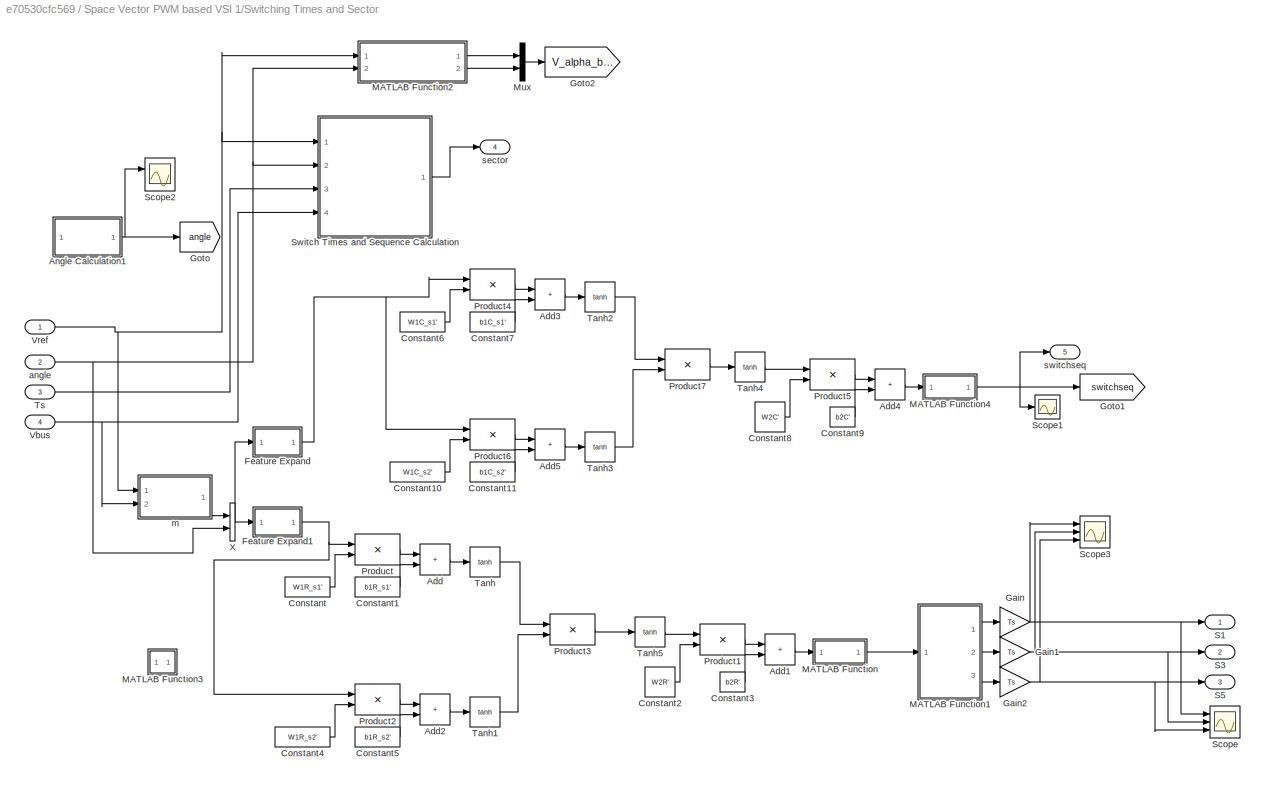
BLOCK [SubSystem] Space Vector PWM based VSI 1/Switching Times and Sector
  Ports = [4, 5]
  RequestExecContextInheritance = off
BLOCK [Sum] Space Vector PWM based VSI 1/Switching Times and Sector/Add
  IconShape = rectangular
  Ports = [2, 1]
BLOCK [Sum] Space Vector PWM based VSI 1/Switching Times and Sector/Add1
  IconShape = rectangular
  Ports = [2, 1]
BLOCK [Sum] Space Vector PWM based VSI 1/Switching Times and Sector/Add2
  IconShape = rectangular
  Ports = [2, 1]
BLOCK [Sum] Space Vector PWM based VSI 1/Switching Times and Sector/Add3
  IconShape = rectangular
  Ports = [2, 1]
BLOCK [Sum] Space Vector PWM based VSI 1/Switching Times and Sector/Add4
  IconShape = rectangular
  Ports = [2, 1]
BLOCK [Sum] Space Vector PWM based VSI 1/Switching Times and Sector/Add5
  IconShape = rectangular
  Ports = [2, 1]
BLOCK [SubSystem] Space Vector PWM based VSI 1/Switching Times and Sector/Angle Calculation1
  Commented = on
  Ports = [1, 1]
  RequestExecContextInheritance = off
BLOCK [Outport] Space Vector PWM based VSI 1/Switching Times and Sector/Angle Calculation1/Angle
BLOCK [Delay] Space Vector PWM based VSI 1/Switching Times and Sector/Angle Calculation1/Delay
  DelayLength = 1
  InitialCondition = 0
  InputPortMap = u0
  NameLocation = top
  Ports = [1, 1]
  UseCircularBuffer = on
  UserDataPersistent = on
BLOCK [Gain] Space Vector PWM based VSI 1/Switching Times and Sector/Angle Calculation1/Gain1
  Gain = Tsys
BLOCK [SubSystem] Space Vector PWM based VSI 1/Switching Times and Sector/Angle Calculation1/MATLAB Function
  ErrorFcn = Stateflow.Translate.translate
  PermitHierarchicalResolution = ExplicitOnly
  Ports = [2, 1]
  RequestExecContextInheritance = off
  SFBlockType = MATLAB Function
  TreatAsAtomicUnit = on
BLOCK [Demux] Space Vector PWM based VSI 1/Switching Times and Sector/Angle Calculation1/MATLAB Function/ Demux 
  Outputs = 1
  Ports = [1, 1]
BLOCK [S-Function] Space Vector PWM based VSI 1/Switching Times and Sector/Angle Calculation1/MATLAB Function/ SFunction 
  EnableBusSupport = on
  FunctionName = sf_sfun
  PortCounts = [2 2]
  Ports = [2, 2]
  SFcnIsStateOwnerBlock = off
  SFunctionDeploymentMode = off
  Tag = Stateflow S-Function 40
BLOCK [Terminator] Space Vector PWM based VSI 1/Switching Times and Sector/Angle Calculation1/MATLAB Function/ Terminator 
BLOCK [Inport] Space Vector PWM based VSI 1/Switching Times and Sector/Angle Calculation1/MATLAB Function/wTs
  Port = 2
BLOCK [Outport] Space Vector PWM based VSI 1/Switching Times and Sector/Angle Calculation1/MATLAB Function/wnew
BLOCK [Inport] Space Vector PWM based VSI 1/Switching Times and Sector/Angle Calculation1/MATLAB Function/wold
BLOCK [Scope] Space Vector PWM based VSI 1/Switching Times and Sector/Angle Calculation1/Scope
  Floating = off
  NumInputPorts = 1
  Ports = [1]
  ScopeSpecificationString = Simulink.scopes.TimeScopeBlockCfg('CurrentConfiguration', extmgr.ConfigurationSet(extmgr.Configuration('Core','General UI',true),extmgr.Configuration('Core','Source UI',true),extmgr.Configuration('Sources','WiredSimulink',true,'DataLoggingVariableName','ScopeData2'),extmgr.Configuration('Visuals','Time Domain',true,'SerializedDisplays',{struct('MinYLimReal','-6.25','MaxYLimReal','56.25','YLabelRea...<+1377ch>
BLOCK [ZeroOrderHold] Space Vector PWM based VSI 1/Switching Times and Sector/Angle Calculation1/Zero-Order Hold
  SampleTime = Ts
BLOCK [Inport] Space Vector PWM based VSI 1/Switching Times and Sector/Angle Calculation1/freq
BLOCK [Gain] Space Vector PWM based VSI 1/Switching Times and Sector/Angle Calculation1/w
  Gain = 2*pi
BLOCK [Goto] Space Vector PWM based VSI 1/Switching Times and Sector/Angle Calculation1/wt
  GotoTag = wt
  TagVisibility = global
BLOCK [Constant] Space Vector PWM based VSI 1/Switching Times and Sector/Constant
  Value = W1R_s1'
BLOCK [Constant] Space Vector PWM based VSI 1/Switching Times and Sector/Constant1
  Value = b1R_s1'
BLOCK [Constant] Space Vector PWM based VSI 1/Switching Times and Sector/Constant10
  Value = W1C_s2'
BLOCK [Constant] Space Vector PWM based VSI 1/Switching Times and Sector/Constant11
  Value = b1C_s2'
BLOCK [Constant] Space Vector PWM based VSI 1/Switching Times and Sector/Constant2
  Value = W2R'
BLOCK [Constant] Space Vector PWM based VSI 1/Switching Times and Sector/Constant3
  Value = b2R'
BLOCK [Constant] Space Vector PWM based VSI 1/Switching Times and Sector/Constant4
  Value = W1R_s2'
BLOCK [Constant] Space Vector PWM based VSI 1/Switching Times and Sector/Constant5
  Value = b1R_s2'
BLOCK [Constant] Space Vector PWM based VSI 1/Switching Times and Sector/Constant6
  Value = W1C_s1'
BLOCK [Constant] Space Vector PWM based VSI 1/Switching Times and Sector/Constant7
  Value = b1C_s1'
BLOCK [Constant] Space Vector PWM based VSI 1/Switching Times and Sector/Constant8
  Value = W2C'
BLOCK [Constant] Space Vector PWM based VSI 1/Switching Times and Sector/Constant9
  Value = b2C'
BLOCK [SubSystem] Space Vector PWM based VSI 1/Switching Times and Sector/Feature Expand
  ErrorFcn = Stateflow.Translate.translate
  PermitHierarchicalResolution = ExplicitOnly
  Ports = [1, 1]
  RequestExecContextInheritance = off
  SFBlockType = MATLAB Function
  TreatAsAtomicUnit = on
BLOCK [Demux] Space Vector PWM based VSI 1/Switching Times and Sector/Feature Expand/ Demux 
  Outputs = 1
  Ports = [1, 1]
BLOCK [S-Function] Space Vector PWM based VSI 1/Switching Times and Sector/Feature Expand/ SFunction 
  EnableBusSupport = on
  FunctionName = sf_sfun
  PortCounts = [1 2]
  Ports = [1, 2]
  SFcnIsStateOwnerBlock = off
  SFunctionDeploymentMode = off
  Tag = Stateflow S-Function 41
BLOCK [Terminator] Space Vector PWM based VSI 1/Switching Times and Sector/Feature Expand/ Terminator 
BLOCK [Inport] Space Vector PWM based VSI 1/Switching Times and Sector/Feature Expand/X
BLOCK [Outport] Space Vector PWM based VSI 1/Switching Times and Sector/Feature Expand/new_X
BLOCK [SubSystem] Space Vector PWM based VSI 1/Switching Times and Sector/Feature Expand1
  ErrorFcn = Stateflow.Translate.translate
  PermitHierarchicalResolution = ExplicitOnly
  Ports = [1, 1]
  RequestExecContextInheritance = off
  SFBlockType = MATLAB Function
  TreatAsAtomicUnit = on
BLOCK [Demux] Space Vector PWM based VSI 1/Switching Times and Sector/Feature Expand1/ Demux 
  Outputs = 1
  Ports = [1, 1]
BLOCK [S-Function] Space Vector PWM based VSI 1/Switching Times and Sector/Feature Expand1/ SFunction 
  EnableBusSupport = on
  FunctionName = sf_sfun
  PortCounts = [1 2]
  Ports = [1, 2]
  SFcnIsStateOwnerBlock = off
  SFunctionDeploymentMode = off
  Tag = Stateflow S-Function 42
BLOCK [Terminator] Space Vector PWM based VSI 1/Switching Times and Sector/Feature Expand1/ Terminator 
BLOCK [Inport] Space Vector PWM based VSI 1/Switching Times and Sector/Feature Expand1/X
BLOCK [Outport] Space Vector PWM based VSI 1/Switching Times and Sector/Feature Expand1/new_X
BLOCK [Gain] Space Vector PWM based VSI 1/Switching Times and Sector/Gain
  Gain = Ts
BLOCK [Gain] Space Vector PWM based VSI 1/Switching Times and Sector/Gain1
  Gain = Ts
BLOCK [Gain] Space Vector PWM based VSI 1/Switching Times and Sector/Gain2
  Gain = Ts
BLOCK [Goto] Space Vector PWM based VSI 1/Switching Times and Sector/Goto
  Commented = on
  GotoTag = angle
  TagVisibility = global
BLOCK [Goto] Space Vector PWM based VSI 1/Switching Times and Sector/Goto1
  GotoTag = switchseq
  TagVisibility = global
BLOCK [Goto] Space Vector PWM based VSI 1/Switching Times and Sector/Goto2
  GotoTag = V_alpha_beta
  TagVisibility = global
BLOCK [SubSystem] Space Vector PWM based VSI 1/Switching Times and Sector/MATLAB Function
  ErrorFcn = Stateflow.Translate.translate
  PermitHierarchicalResolution = ExplicitOnly
  Ports = [1, 1]
  RequestExecContextInheritance = off
  SFBlockType = MATLAB Function
  TreatAsAtomicUnit = on
BLOCK [Demux] Space Vector PWM based VSI 1/Switching Times and Sector/MATLAB Function/ Demux 
  Outputs = 1
  Ports = [1, 1]
BLOCK [S-Function] Space Vector PWM based VSI 1/Switching Times and Sector/MATLAB Function/ SFunction 
  EnableBusSupport = on
  FunctionName = sf_sfun
  PortCounts = [1 2]
  Ports = [1, 2]
  SFcnIsStateOwnerBlock = off
  SFunctionDeploymentMode = off
  Tag = Stateflow S-Function 43
BLOCK [Terminator] Space Vector PWM based VSI 1/Switching Times and Sector/MATLAB Function/ Terminator 
BLOCK [Inport] Space Vector PWM based VSI 1/Switching Times and Sector/MATLAB Function/u
BLOCK [Outport] Space Vector PWM based VSI 1/Switching Times and Sector/MATLAB Function/y
BLOCK [SubSystem] Space Vector PWM based VSI 1/Switching Times and Sector/MATLAB Function1
  ErrorFcn = Stateflow.Translate.translate
  PermitHierarchicalResolution = ExplicitOnly
  Ports = [1, 3]
  RequestExecContextInheritance = off
  SFBlockType = MATLAB Function
  TreatAsAtomicUnit = on
BLOCK [Demux] Space Vector PWM based VSI 1/Switching Times and Sector/MATLAB Function1/ Demux 
  Outputs = 1
  Ports = [1, 1]
BLOCK [S-Function] Space Vector PWM based VSI 1/Switching Times and Sector/MATLAB Function1/ SFunction 
  EnableBusSupport = on
  FunctionName = sf_sfun
  PortCounts = [1 4]
  Ports = [1, 4]
  SFcnIsStateOwnerBlock = off
  SFunctionDeploymentMode = off
  Tag = Stateflow S-Function 44
BLOCK [Terminator] Space Vector PWM based VSI 1/Switching Times and Sector/MATLAB Function1/ Terminator 
BLOCK [Outport] Space Vector PWM based VSI 1/Switching Times and Sector/MATLAB Function1/S1
BLOCK [Outport] Space Vector PWM based VSI 1/Switching Times and Sector/MATLAB Function1/S3
  Port = 2
BLOCK [Outport] Space Vector PWM based VSI 1/Switching Times and Sector/MATLAB Function1/S5
  Port = 3
BLOCK [Inport] Space Vector PWM based VSI 1/Switching Times and Sector/MATLAB Function1/u
BLOCK [SubSystem] Space Vector PWM based VSI 1/Switching Times and Sector/MATLAB Function2
  ErrorFcn = Stateflow.Translate.translate
  PermitHierarchicalResolution = ExplicitOnly
  Ports = [2, 2]
  RequestExecContextInheritance = off
  SFBlockType = MATLAB Function
  TreatAsAtomicUnit = on
BLOCK [Demux] Space Vector PWM based VSI 1/Switching Times and Sector/MATLAB Function2/ Demux 
  Outputs = 1
  Ports = [1, 1]
BLOCK [S-Function] Space Vector PWM based VSI 1/Switching Times and Sector/MATLAB Function2/ SFunction 
  EnableBusSupport = on
  FunctionName = sf_sfun
  PortCounts = [2 3]
  Ports = [2, 3]
  SFcnIsStateOwnerBlock = off
  SFunctionDeploymentMode = off
  Tag = Stateflow S-Function 45
BLOCK [Terminator] Space Vector PWM based VSI 1/Switching Times and Sector/MATLAB Function2/ Terminator 
BLOCK [Outport] Space Vector PWM based VSI 1/Switching Times and Sector/MATLAB Function2/V_alpha
BLOCK [Outport] Space Vector PWM based VSI 1/Switching Times and Sector/MATLAB Function2/V_beta
  Port = 2
BLOCK [Inport] Space Vector PWM based VSI 1/Switching Times and Sector/MATLAB Function2/Vref
BLOCK [Inport] Space Vector PWM based VSI 1/Switching Times and Sector/MATLAB Function2/angle
  Port = 2
BLOCK [SubSystem] Space Vector PWM based VSI 1/Switching Times and Sector/MATLAB Function3
  Commented = on
  ErrorFcn = Stateflow.Translate.translate
  PermitHierarchicalResolution = ExplicitOnly
  Ports = [1, 1]
  RequestExecContextInheritance = off
  SFBlockType = MATLAB Function
  TreatAsAtomicUnit = on
BLOCK [Demux] Space Vector PWM based VSI 1/Switching Times and Sector/MATLAB Function3/ Demux 
  Outputs = 1
  Ports = [1, 1]
BLOCK [S-Function] Space Vector PWM based VSI 1/Switching Times and Sector/MATLAB Function3/ SFunction 
  EnableBusSupport = on
  FunctionName = sf_sfun
  PortCounts = [1 2]
  Ports = [1, 2]
  SFcnIsStateOwnerBlock = off
  SFunctionDeploymentMode = off
  Tag = Stateflow S-Function 46
BLOCK [Terminator] Space Vector PWM based VSI 1/Switching Times and Sector/MATLAB Function3/ Terminator 
BLOCK [Outport] Space Vector PWM based VSI 1/Switching Times and Sector/MATLAB Function3/u
BLOCK [Inport] Space Vector PWM based VSI 1/Switching Times and Sector/MATLAB Function3/u 
BLOCK [SubSystem] Space Vector PWM based VSI 1/Switching Times and Sector/MATLAB Function4
  ErrorFcn = Stateflow.Translate.translate
  PermitHierarchicalResolution = ExplicitOnly
  Ports = [1, 1]
  RequestExecContextInheritance = off
  SFBlockType = MATLAB Function
  TreatAsAtomicUnit = on
BLOCK [Demux] Space Vector PWM based VSI 1/Switching Times and Sector/MATLAB Function4/ Demux 
  Outputs = 1
  Ports = [1, 1]
BLOCK [S-Function] Space Vector PWM based VSI 1/Switching Times and Sector/MATLAB Function4/ SFunction 
  EnableBusSupport = on
  FunctionName = sf_sfun
  PortCounts = [1 2]
  Ports = [1, 2]
  SFcnIsStateOwnerBlock = off
  SFunctionDeploymentMode = off
  Tag = Stateflow S-Function 47
BLOCK [Terminator] Space Vector PWM based VSI 1/Switching Times and Sector/MATLAB Function4/ Terminator 
BLOCK [Inport] Space Vector PWM based VSI 1/Switching Times and Sector/MATLAB Function4/u
BLOCK [Outport] Space Vector PWM based VSI 1/Switching Times and Sector/MATLAB Function4/y
BLOCK [Mux] Space Vector PWM based VSI 1/Switching Times and Sector/Mux
  DisplayOption = bar
  Inputs = 2
  Ports = [2, 1]
BLOCK [Product] Space Vector PWM based VSI 1/Switching Times and Sector/Product
  Multiplication = Matrix(*)
  Ports = [2, 1]
BLOCK [Product] Space Vector PWM based VSI 1/Switching Times and Sector/Product1
  Multiplication = Matrix(*)
  Ports = [2, 1]
BLOCK [Product] Space Vector PWM based VSI 1/Switching Times and Sector/Product2
  Multiplication = Matrix(*)
  Ports = [2, 1]
BLOCK [Product] Space Vector PWM based VSI 1/Switching Times and Sector/Product3
  Ports = [2, 1]
BLOCK [Product] Space Vector PWM based VSI 1/Switching Times and Sector/Product4
  Multiplication = Matrix(*)
  Ports = [2, 1]
BLOCK [Product] Space Vector PWM based VSI 1/Switching Times and Sector/Product5
  Multiplication = Matrix(*)
  Ports = [2, 1]
BLOCK [Product] Space Vector PWM based VSI 1/Switching Times and Sector/Product6
  Multiplication = Matrix(*)
  Ports = [2, 1]
BLOCK [Product] Space Vector PWM based VSI 1/Switching Times and Sector/Product7
  Ports = [2, 1]
BLOCK [Outport] Space Vector PWM based VSI 1/Switching Times and Sector/S1
BLOCK [Outport] Space Vector PWM based VSI 1/Switching Times and Sector/S3
  Port = 2
BLOCK [Outport] Space Vector PWM based VSI 1/Switching Times and Sector/S5
  Port = 3
BLOCK [Scope] Space Vector PWM based VSI 1/Switching Times and Sector/Scope
  Floating = off
  NumInputPorts = 3
  Ports = [3]
  ScopeSpecificationString = Simulink.scopes.TimeScopeBlockCfg('CurrentConfiguration', extmgr.ConfigurationSet(extmgr.Configuration('Core','General UI',true),extmgr.Configuration('Core','Source UI',true),extmgr.Configuration('Sources','WiredSimulink',true,'DataLoggingVariableName','ScopeData2','DataLoggingDecimateData',true,'DataLoggingDecimation','20'),extmgr.Configuration('Visuals','Time Domain',true,'SerializedDisplays',{s...<+1538ch>
BLOCK [Scope] Space Vector PWM based VSI 1/Switching Times and Sector/Scope1
  Floating = off
  NumInputPorts = 1
  Ports = [1]
  ScopeSpecificationString = Simulink.scopes.TimeScopeBlockCfg('CurrentConfiguration', extmgr.ConfigurationSet(extmgr.Configuration('Core','General UI',true),extmgr.Configuration('Core','Source UI',true),extmgr.Configuration('Sources','WiredSimulink',true,'DataLoggingVariableName','ScopeData1','DataLoggingDecimateData',true,'DataLoggingDecimation','20'),extmgr.Configuration('Visuals','Time Domain',true,'SerializedDisplays',{s...<+1558ch>
BLOCK [Scope] Space Vector PWM based VSI 1/Switching Times and Sector/Scope2
  Commented = on
  Floating = off
  NumInputPorts = 2
  Ports = [2]
  ScopeSpecificationString = Simulink.scopes.TimeScopeBlockCfg('CurrentConfiguration', extmgr.ConfigurationSet(extmgr.Configuration('Core','General UI',true),extmgr.Configuration('Core','Source UI',true),extmgr.Configuration('Sources','WiredSimulink',true,'DataLoggingVariableName','ScopeData1'),extmgr.Configuration('Visuals','Time Domain',true,'SerializedDisplays',{struct('MinYLimReal','-0.78466','MaxYLimReal','7.06191','YLab...<+2143ch>
BLOCK [Scope] Space Vector PWM based VSI 1/Switching Times and Sector/Scope3
  Floating = off
  NumInputPorts = 3
  Ports = [3]
  ScopeSpecificationString = Simulink.scopes.TimeScopeBlockCfg('CurrentConfiguration', extmgr.ConfigurationSet(extmgr.Configuration('Core','General UI',true),extmgr.Configuration('Core','Source UI',true),extmgr.Configuration('Sources','WiredSimulink',true,'DataLoggingVariableName','ScopeData1','DataLoggingDecimateData',true,'DataLoggingDecimation','20'),extmgr.Configuration('Visuals','Time Domain',true,'SerializedDisplays',{s...<+1540ch>
BLOCK [SubSystem] Space Vector PWM based VSI 1/Switching Times and Sector/Switch Times and Sequence Calculation
  ErrorFcn = Stateflow.Translate.translate
  PermitHierarchicalResolution = ExplicitOnly
  Ports = [4, 1]
  RequestExecContextInheritance = off
  SFBlockType = MATLAB Function
  TreatAsAtomicUnit = on
BLOCK [Demux] Space Vector PWM based VSI 1/Switching Times and Sector/Switch Times and Sequence Calculation/ Demux 
  Outputs = 1
  Ports = [1, 1]
BLOCK [S-Function] Space Vector PWM based VSI 1/Switching Times and Sector/Switch Times and Sequence Calculation/ SFunction 
  EnableBusSupport = on
  FunctionName = sf_sfun
  PortCounts = [4 2]
  Ports = [4, 2]
  SFcnIsStateOwnerBlock = off
  SFunctionDeploymentMode = off
  Tag = Stateflow S-Function 48
BLOCK [Terminator] Space Vector PWM based VSI 1/Switching Times and Sector/Switch Times and Sequence Calculation/ Terminator 
BLOCK [Inport] Space Vector PWM based VSI 1/Switching Times and Sector/Switch Times and Sequence Calculation/Ts
  Port = 3
BLOCK [Inport] Space Vector PWM based VSI 1/Switching Times and Sector/Switch Times and Sequence Calculation/Vbus
  Port = 4
BLOCK [Inport] Space Vector PWM based VSI 1/Switching Times and Sector/Switch Times and Sequence Calculation/Vref
BLOCK [Inport] Space Vector PWM based VSI 1/Switching Times and Sector/Switch Times and Sequence Calculation/angle
  Port = 2
BLOCK [Outport] Space Vector PWM based VSI 1/Switching Times and Sector/Switch Times and Sequence Calculation/sector
BLOCK [Trigonometry] Space Vector PWM based VSI 1/Switching Times and Sector/Tanh
  Operator = tanh
  Ports = [1, 1]
BLOCK [Trigonometry] Space Vector PWM based VSI 1/Switching Times and Sector/Tanh1
  Operator = tanh
  Ports = [1, 1]
BLOCK [Trigonometry] Space Vector PWM based VSI 1/Switching Times and Sector/Tanh2
  Operator = tanh
  Ports = [1, 1]
BLOCK [Trigonometry] Space Vector PWM based VSI 1/Switching Times and Sector/Tanh3
  Operator = tanh
  Ports = [1, 1]
BLOCK [Trigonometry] Space Vector PWM based VSI 1/Switching Times and Sector/Tanh4
  Operator = tanh
  Ports = [1, 1]
BLOCK [Trigonometry] Space Vector PWM based VSI 1/Switching Times and Sector/Tanh5
  Operator = tanh
  Ports = [1, 1]
BLOCK [Inport] Space Vector PWM based VSI 1/Switching Times and Sector/Ts
  Port = 3
BLOCK [Inport] Space Vector PWM based VSI 1/Switching Times and Sector/Vbus
  Port = 4
BLOCK [Inport] Space Vector PWM based VSI 1/Switching Times and Sector/Vref
BLOCK [Concatenate] Space Vector PWM based VSI 1/Switching Times and Sector/X
  NameLocation = left
  Ports = [2, 1]
BLOCK [Inport] Space Vector PWM based VSI 1/Switching Times and Sector/angle
  Port = 2
BLOCK [SubSystem] Space Vector PWM based VSI 1/Switching Times and Sector/m
  ErrorFcn = Stateflow.Translate.translate
  PermitHierarchicalResolution = ExplicitOnly
  Ports = [2, 1]
  RequestExecContextInheritance = off
  SFBlockType = MATLAB Function
  TreatAsAtomicUnit = on
BLOCK [Demux] Space Vector PWM based VSI 1/Switching Times and Sector/m/ Demux 
  Outputs = 1
  Ports = [1, 1]
BLOCK [S-Function] Space Vector PWM based VSI 1/Switching Times and Sector/m/ SFunction 
  EnableBusSupport = on
  FunctionName = sf_sfun
  PortCounts = [2 2]
  Ports = [2, 2]
  SFcnIsStateOwnerBlock = off
  SFunctionDeploymentMode = off
  Tag = Stateflow S-Function 49
BLOCK [Terminator] Space Vector PWM based VSI 1/Switching Times and Sector/m/ Terminator 
BLOCK [Inport] Space Vector PWM based VSI 1/Switching Times and Sector/m/Vbus
  Port = 2
BLOCK [Inport] Space Vector PWM based VSI 1/Switching Times and Sector/m/Vref
BLOCK [Outport] Space Vector PWM based VSI 1/Switching Times and Sector/m/m
BLOCK [Outport] Space Vector PWM based VSI 1/Switching Times and Sector/sector
  Port = 4
BLOCK [Outport] Space Vector PWM based VSI 1/Switching Times and Sector/switchseq
  Port = 5
BLOCK [Constant] Space Vector PWM based VSI 1/Ts1
  SampleTime = Tsys
  Value = Ts
BLOCK [PMIOPort] Space Vector PWM based VSI 1/Van
  Side = Right
BLOCK [PMIOPort] Space Vector PWM based VSI 1/Vbn
  Port = 2
  Side = Right
BLOCK [Constant] Space Vector PWM based VSI 1/Vbus1
  SampleTime = Tsys
  Value = Vbus
BLOCK [PMIOPort] Space Vector PWM based VSI 1/Vcn
  Port = 3
  Side = Right
BLOCK [Gain] Space Vector PWM based VSI 1/Vref1
  Commented = on
  Gain = Vref/freq
BLOCK [Inport] Space Vector PWM based VSI 1/Vs_alpha
BLOCK [Inport] Space Vector PWM based VSI 1/Vs_beta
  Port = 2
BLOCK [ZeroOrderHold] Space Vector PWM based VSI 1/Zero-Order Hold
  Commented = on
  SampleTime = Ts
BLOCK [Reference] Speed Controller  REF=pid_lib/PID Controller
  Ports = [1, 1]
  SourceBlock = pid_lib/PID Controller
  SourceProductBaseCode = SL
  SourceType = PID 1dof
BLOCK [Step] Step1
  After = nrat
  SampleTime = 0
  Time = 0.5
BLOCK [Step] Step2
  After = isd_star
  SampleTime = 0
  Time = 0
BLOCK [Step] Step3
  After = isq_star
  SampleTime = 0
  Time = 0.5
BLOCK [Sum] Sum
  Inputs = -+|
  Ports = [2, 1]
BLOCK [Sum] Sum1
  Inputs = ++|
  Ports = [2, 1]
BLOCK [Sum] Sum2
  Inputs = |+-
  Ports = [2, 1]
BLOCK [Sum] Sum3
  Inputs = |+-
  Ports = [2, 1]
BLOCK [Sum] Sum6
  Inputs = |+-
  Ports = [2, 1]
BLOCK [Sum] Sum7
  Inputs = |+-
  Ports = [2, 1]
BLOCK [ZeroOrderHold] Zero-Order Hold
  NameLocation = top
  SampleTime = Tzoh
BLOCK [Reference] abc to dq0  REF=powerlib_meascontrol/Transformations/abc to dq0
  Ports = [2, 1]
  SourceBlock = powerlib_meascontrol/Transformations/abc to dq0
  SourceProductBaseCode = PS
  SourceType = abc to dq0 Transformation
BLOCK [SubSystem] e^(j_rho)
  Ports = [2, 2]
  RequestExecContextInheritance = off
BLOCK [Sum] e^(j_rho)/Add
  IconShape = rectangular
  Inputs = +-
  Ports = [2, 1]
BLOCK [Sum] e^(j_rho)/Add1
  IconShape = rectangular
  Ports = [2, 1]
BLOCK [From] e^(j_rho)/From
  GotoTag = cos_rho
  TagVisibility = global
BLOCK [From] e^(j_rho)/From1
  GotoTag = sin_rho
  TagVisibility = global
BLOCK [Product] e^(j_rho)/Product
  Ports = [2, 1]
BLOCK [Product] e^(j_rho)/Product1
  Ports = [2, 1]
BLOCK [Product] e^(j_rho)/Product2
  Ports = [2, 1]
BLOCK [Product] e^(j_rho)/Product3
  Ports = [2, 1]
BLOCK [Outport] e^(j_rho)/V_alpha
BLOCK [Outport] e^(j_rho)/V_beta
  Port = 2
BLOCK [Inport] e^(j_rho)/Vd
  Port = 2
BLOCK [Inport] e^(j_rho)/Vq
BLOCK [Reference] powergui  REF=powerlib/powergui
  Ports = []
  Priority = 1
  SourceBlock = powerlib/powergui
  SourceProductBaseCode = PS
  SourceType = PSB option menu block
ANNOTATION (root): CURRENT CONTROLLER I
ANNOTATION (root): CURRENT CONTROLLER II
ANNOTATION (root): FLUX CALCULATION
ANNOTATION (root): FLUX CONTROLLER
ANNOTATION (root): INPUT VOLTAGE COMMAND
ANNOTATION (root): MOTOR INPUT CURRENTS
ANNOTATION (root): PHASE AND RMS VOLTAGE
ANNOTATION (root): SPEED CONTROLLER
ANNOTATION 3 Phase Induction Machine: MOTOR SPEED
ANNOTATION 3 Phase Induction Machine: PHI AND IMR CALCULATION
ANNOTATION 3 Phase Induction Machine: ROTOR FLUX FRAME ORIENTATION CALCULATION
ANNOTATION 3 Phase Induction Machine: STATOR CURRENT IN DQ FRAME
ANNOTATION 3 Phase Induction Machine: STATOR CURRENTS
LINE 3 Phase Induction Machine/Add:1 -> 3 Phase Induction Machine/Sqrt:1
LINE 3 Phase Induction Machine/Asynchronous Machine SI Units1:1 -> 3 Phase Induction Machine/Bus Selector1:1
LINE 3 Phase Induction Machine/Bus Selector1:1 -> 3 Phase Induction Machine/Zero-Order Hold:1
LINE 3 Phase Induction Machine/Bus Selector1:10 -> 3 Phase Induction Machine/Zero-Order Hold9:1
LINE 3 Phase Induction Machine/Bus Selector1:11 -> 3 Phase Induction Machine/Zero-Order Hold10:1
LINE 3 Phase Induction Machine/Bus Selector1:2 -> 3 Phase Induction Machine/Zero-Order Hold1:1
LINE 3 Phase Induction Machine/Bus Selector1:3 -> 3 Phase Induction Machine/Zero-Order Hold2:1
LINE 3 Phase Induction Machine/Bus Selector1:4 -> 3 Phase Induction Machine/Zero-Order Hold3:1
LINE 3 Phase Induction Machine/Bus Selector1:5 -> 3 Phase Induction Machine/Zero-Order Hold4:1
LINE 3 Phase Induction Machine/Bus Selector1:6 -> 3 Phase Induction Machine/Zero-Order Hold5:1
LINE 3 Phase Induction Machine/Bus Selector1:7 -> 3 Phase Induction Machine/Zero-Order Hold6:1
LINE 3 Phase Induction Machine/Bus Selector1:8 -> 3 Phase Induction Machine/Zero-Order Hold7:1
LINE 3 Phase Induction Machine/Bus Selector1:9 -> 3 Phase Induction Machine/Zero-Order Hold8:1
LINE 3 Phase Induction Machine/Cartesian to Polar:1 -> 3 Phase Induction Machine/MATLAB Function:1
NET 3 Phase Induction Machine/Cartesian to Polar:2 -> 3 Phase Induction Machine/Goto1:1, 3 Phase Induction Machine/MATLAB Function:2
LINE 3 Phase Induction Machine/Constant2:1 -> 3 Phase Induction Machine/Divide:2
LINE 3 Phase Induction Machine/Divide:1 -> 3 Phase Induction Machine/im_r:1
LINE 3 Phase Induction Machine/From10:1 -> 3 Phase Induction Machine/MATLAB Function1:2
LINE 3 Phase Induction Machine/From11:1 -> 3 Phase Induction Machine/MATLAB Function1:3
LINE 3 Phase Induction Machine/From12:1 -> 3 Phase Induction Machine/Square:1
LINE 3 Phase Induction Machine/From13:1 -> 3 Phase Induction Machine/Square1:1
NET 3 Phase Induction Machine/From1:1 -> 3 Phase Induction Machine/Gain1:1, 3 Phase Induction Machine/Gain2:1, 3 Phase Induction Machine/w_r:1
LINE 3 Phase Induction Machine/From2:1 -> 3 Phase Induction Machine/Vab and Vbc:4
LINE 3 Phase Induction Machine/From3:1 -> 3 Phase Induction Machine/Scope3:1
LINE 3 Phase Induction Machine/From4:1 -> 3 Phase Induction Machine/Scope3:2
LINE 3 Phase Induction Machine/From5:1 -> 3 Phase Induction Machine/Scope3:3
LINE 3 Phase Induction Machine/From6:1 -> 3 Phase Induction Machine/Vab and Vbc:3
LINE 3 Phase Induction Machine/From7:1 -> 3 Phase Induction Machine/Cartesian to Polar:1
LINE 3 Phase Induction Machine/From8:1 -> 3 Phase Induction Machine/Cartesian to Polar:2
LINE 3 Phase Induction Machine/From9:1 -> 3 Phase Induction Machine/MATLAB Function1:1
LINE 3 Phase Induction Machine/From:1 -> 3 Phase Induction Machine/TL and Tm:2
LINE 3 Phase Induction Machine/Gain1:1 -> 3 Phase Induction Machine/motor speed:1
LINE 3 Phase Induction Machine/Gain2:1 -> 3 Phase Induction Machine/Goto3:1
NET 3 Phase Induction Machine/MATLAB Function1:1 -> 3 Phase Induction Machine/id:1, 3 Phase Induction Machine/isd and isq:1
NET 3 Phase Induction Machine/MATLAB Function1:2 -> 3 Phase Induction Machine/iq:1, 3 Phase Induction Machine/isd and isq:2
LINE 3 Phase Induction Machine/MATLAB Function:1 -> 3 Phase Induction Machine/Goto2:1
LINE 3 Phase Induction Machine/MATLAB Function:2 -> 3 Phase Induction Machine/Goto4:1
NET 3 Phase Induction Machine/Sqrt:1 -> 3 Phase Induction Machine/Divide:1, 3 Phase Induction Machine/phi_r:1
LINE 3 Phase Induction Machine/Square1:1 -> 3 Phase Induction Machine/Add:2
LINE 3 Phase Induction Machine/Square:1 -> 3 Phase Induction Machine/Add:1
LINE 3 Phase Induction Machine/Vab:1 -> 3 Phase Induction Machine/Vab and Vbc:1
LINE 3 Phase Induction Machine/Vbc:1 -> 3 Phase Induction Machine/Vab and Vbc:2
LINE 3 Phase Induction Machine/Zero-Order Hold10:1 -> 3 Phase Induction Machine/Goto13:1
LINE 3 Phase Induction Machine/Zero-Order Hold1:1 -> 3 Phase Induction Machine/Goto7:1
LINE 3 Phase Induction Machine/Zero-Order Hold2:1 -> 3 Phase Induction Machine/Goto8:1
LINE 3 Phase Induction Machine/Zero-Order Hold3:1 -> 3 Phase Induction Machine/Goto5:1
LINE 3 Phase Induction Machine/Zero-Order Hold4:1 -> 3 Phase Induction Machine/Goto:1
LINE 3 Phase Induction Machine/Zero-Order Hold5:1 -> 3 Phase Induction Machine/Goto9:1
LINE 3 Phase Induction Machine/Zero-Order Hold6:1 -> 3 Phase Induction Machine/Goto10:1
LINE 3 Phase Induction Machine/Zero-Order Hold7:1 -> 3 Phase Induction Machine/Goto11:1
LINE 3 Phase Induction Machine/Zero-Order Hold8:1 -> 3 Phase Induction Machine/Goto12:1
LINE 3 Phase Induction Machine/Zero-Order Hold9:1 -> 3 Phase Induction Machine/Goto14:1
LINE 3 Phase Induction Machine/Zero-Order Hold:1 -> 3 Phase Induction Machine/Goto6:1
NET 3 Phase Induction Machine/load torque1:1 -> 3 Phase Induction Machine/Asynchronous Machine SI Units1:1, 3 Phase Induction Machine/TL and Tm:1
LINE 3 Phase Induction Machine:1 -> Goto:1
LINE 3 Phase Induction Machine:2 -> Goto1:1
LINE 3 Phase Induction Machine:3 -> Goto5:1
NET Constant9:1 -> Scope13:1, Sum7:1
LINE Cos1:1 -> Goto9:1
LINE Cos:1 -> Goto10:1
NET Current Controller1:1 -> Decoupler:1, Scope5:1
NET Current Controller2:1 -> Decoupler:2, Scope5:2
NET Current Measurement1:1 -> Mux:1, Scope2:3
NET Current Measurement2:1 -> Mux:2, Scope2:4
NET Current Measurement3:1 -> Mux:3, Scope2:5
LINE Decoupler/Constant1:1 -> Decoupler/Product:3
LINE Decoupler/Constant2:1 -> Decoupler/Product1:3
LINE Decoupler/Constant3:1 -> Decoupler/Product2:2
LINE Decoupler/Constant4:1 -> Decoupler/Product3:3
LINE Decoupler/Constant:1 -> Decoupler/MATLAB Function:4
LINE Decoupler/Delay1:1 -> Decoupler/MATLAB Function:2
LINE Decoupler/Delay2:1 -> Decoupler/MATLAB Function:3
LINE Decoupler/Delay:1 -> Decoupler/Gain:1
LINE Decoupler/From10:1 -> Decoupler/Product3:2
LINE Decoupler/From1:1 -> Decoupler/Delay1:1
LINE Decoupler/From2:1 -> Decoupler/Delay2:1
LINE Decoupler/From3:1 -> Decoupler/Product:1
LINE Decoupler/From4:1 -> Decoupler/Product:2
LINE Decoupler/From5:1 -> Decoupler/Product1:1
LINE Decoupler/From6:1 -> Decoupler/Product1:2
LINE Decoupler/From7:1 -> Decoupler/Gain1:1
LINE Decoupler/From8:1 -> Decoupler/Goto:1
LINE Decoupler/From9:1 -> Decoupler/Product3:1
LINE Decoupler/From:1 -> Decoupler/Delay:1
LINE Decoupler/Gain1:1 -> Decoupler/Product2:1
LINE Decoupler/Gain:1 -> Decoupler/MATLAB Function:1
LINE Decoupler/MATLAB Function:1 -> Decoupler/Scope5:1
LINE Decoupler/Product1:1 -> Decoupler/Sum:3
LINE Decoupler/Product2:1 -> Decoupler/Sum1:2
LINE Decoupler/Product3:1 -> Decoupler/Sum1:3
LINE Decoupler/Product:1 -> Decoupler/Sum:2
LINE Decoupler/Sum1:1 -> Decoupler/Vs_d:1
LINE Decoupler/Sum:1 -> Decoupler/Vs_q:1
LINE Decoupler/Vs_d':1 -> Decoupler/Sum1:1
LINE Decoupler/Vs_q':1 -> Decoupler/Sum:1
NET Decoupler:1 -> Scope8:2, e^(j_rho):1
NET Decoupler:2 -> Scope8:1, e^(j_rho):2
NET Demux:1 -> Goto6:1, Sum:2
NET Demux:2 -> Divide:2, Goto3:1
NET Discrete-Time Integrator1:1 -> Divide:1, Gain3:1, Goto7:1, Sum:1
NET Discrete-Time Integrator:1 -> Cos1:1, Cos:1, Goto2:1, Scope9:1
LINE Divide:1 -> Gain4:1
NET Flux Controller1:1 -> Scope4:2, Sum6:1
LINE From10:1 -> Scope2:2
NET From1:1 -> Gain2:1, MATLAB Function:2
LINE From3:1 -> Gain1:1
NET From5:1 -> Scope12:2, Sum2:2
NET From6:1 -> Scope7:2, Sum3:2
NET From8:1 -> Scope4:1, Sum6:2
NET From9:1 -> Scope13:2, Sum7:2
LINE From:1 -> Scope2:1
LINE Gain1:1 -> Sum1:1
LINE Gain3:1 -> Goto8:1
LINE Gain4:1 -> Sum1:2
NET Gain:1 -> Discrete-Time Integrator1:1, Goto12:1
LINE MATLAB Function:1 -> Zero-Order Hold:1
LINE Mux:1 -> MATLAB Function:1
LINE RMS Values/Add:1 -> RMS Values/Gain:1
NET RMS Values/Gain:1 -> RMS Values/Phase Voltage:1, RMS Values/RMS1:1
LINE RMS Values/RMS1:1 -> RMS Values/Phase RMS:1
LINE RMS Values/RMS2:1 -> RMS Values/Line RMS:1
LINE RMS Values/Voltage Measurement1:1 -> RMS Values/Add:2
NET RMS Values/Voltage Measurement:1 -> RMS Values/Add:1, RMS Values/RMS2:1
LINE RMS Values:1 -> Scope11:1
LINE RMS Values:2 -> Scope3:1
LINE RMS Values:3 -> Scope10:1
NET Saturation:1 -> Discrete-Time Integrator:1, Goto11:1, Scope1:1
LINE Space Vector PWM based VSI 1/3 Phase VSI/Constant1:1 -> Space Vector PWM based VSI 1/3 Phase VSI/MATLAB Function:7
LINE Space Vector PWM based VSI 1/3 Phase VSI/Delay1:1 -> Space Vector PWM based VSI 1/3 Phase VSI/MATLAB Function:2
LINE Space Vector PWM based VSI 1/3 Phase VSI/Delay:1 -> Space Vector PWM based VSI 1/3 Phase VSI/MATLAB Function:1
LINE Space Vector PWM based VSI 1/3 Phase VSI/Demux1:1 -> Space Vector PWM based VSI 1/3 Phase VSI/XY Graph1:1
LINE Space Vector PWM based VSI 1/3 Phase VSI/Demux1:2 -> Space Vector PWM based VSI 1/3 Phase VSI/XY Graph1:2
LINE Space Vector PWM based VSI 1/3 Phase VSI/Demux:1 -> Space Vector PWM based VSI 1/3 Phase VSI/Scope:1
LINE Space Vector PWM based VSI 1/3 Phase VSI/Demux:2 -> Space Vector PWM based VSI 1/3 Phase VSI/Scope:2
LINE Space Vector PWM based VSI 1/3 Phase VSI/Demux:3 -> Space Vector PWM based VSI 1/3 Phase VSI/Scope:3
LINE Space Vector PWM based VSI 1/3 Phase VSI/From:1 -> Space Vector PWM based VSI 1/3 Phase VSI/Demux1:1
NET Space Vector PWM based VSI 1/3 Phase VSI/Gate 1:1 -> Space Vector PWM based VSI 1/3 Phase VSI/Mosfet1:1, Space Vector PWM based VSI 1/3 Phase VSI/NOT:1
NET Space Vector PWM based VSI 1/3 Phase VSI/Gate 3:1 -> Space Vector PWM based VSI 1/3 Phase VSI/Mosfet3:1, Space Vector PWM based VSI 1/3 Phase VSI/NOT1:1
NET Space Vector PWM based VSI 1/3 Phase VSI/Gate 5:1 -> Space Vector PWM based VSI 1/3 Phase VSI/Mosfet5:1, Space Vector PWM based VSI 1/3 Phase VSI/NOT2:1
LINE Space Vector PWM based VSI 1/3 Phase VSI/MATLAB Function:1 -> Space Vector PWM based VSI 1/3 Phase VSI/Delay:1
LINE Space Vector PWM based VSI 1/3 Phase VSI/MATLAB Function:2 -> Space Vector PWM based VSI 1/3 Phase VSI/Delay1:1
LINE Space Vector PWM based VSI 1/3 Phase VSI/Mux:1 -> Space Vector PWM based VSI 1/3 Phase VSI/abc to Alpha-Beta-Zero:1
LINE Space Vector PWM based VSI 1/3 Phase VSI/NOT1:1 -> Space Vector PWM based VSI 1/3 Phase VSI/Mosfet4:1
LINE Space Vector PWM based VSI 1/3 Phase VSI/NOT2:1 -> Space Vector PWM based VSI 1/3 Phase VSI/Mosfet6:1
LINE Space Vector PWM based VSI 1/3 Phase VSI/NOT:1 -> Space Vector PWM based VSI 1/3 Phase VSI/Mosfet2:1
LINE Space Vector PWM based VSI 1/3 Phase VSI/Voltage Measurement1:1 -> Space Vector PWM based VSI 1/3 Phase VSI/Zero-Order Hold1:1
LINE Space Vector PWM based VSI 1/3 Phase VSI/Voltage Measurement2:1 -> Space Vector PWM based VSI 1/3 Phase VSI/Zero-Order Hold2:1
LINE Space Vector PWM based VSI 1/3 Phase VSI/Voltage Measurement:1 -> Space Vector PWM based VSI 1/3 Phase VSI/Zero-Order Hold:1
NET Space Vector PWM based VSI 1/3 Phase VSI/Zero-Order Hold1:1 -> Space Vector PWM based VSI 1/3 Phase VSI/Mux:2, Space Vector PWM based VSI 1/3 Phase VSI/Scope1:2
NET Space Vector PWM based VSI 1/3 Phase VSI/Zero-Order Hold2:1 -> Space Vector PWM based VSI 1/3 Phase VSI/Mux:3, Space Vector PWM based VSI 1/3 Phase VSI/Scope1:3
NET Space Vector PWM based VSI 1/3 Phase VSI/Zero-Order Hold:1 -> Space Vector PWM based VSI 1/3 Phase VSI/Mux:1, Space Vector PWM based VSI 1/3 Phase VSI/Scope1:1
LINE Space Vector PWM based VSI 1/3 Phase VSI/abc to Alpha-Beta-Zero:1 -> Space Vector PWM based VSI 1/3 Phase VSI/Demux:1
NET Space Vector PWM based VSI 1/Cartesian to Polar:1 -> Space Vector PWM based VSI 1/Goto4:1, Space Vector PWM based VSI 1/Scope2:1, Space Vector PWM based VSI 1/Switching Times and Sector:1
NET Space Vector PWM based VSI 1/Cartesian to Polar:2 -> Space Vector PWM based VSI 1/MATLAB Function:1, Space Vector PWM based VSI 1/Scope3:1
LINE Space Vector PWM based VSI 1/Constant:1 -> Space Vector PWM based VSI 1/MATLAB Function1:2
LINE Space Vector PWM based VSI 1/Delay:1 -> Space Vector PWM based VSI 1/MATLAB Function1:1
LINE Space Vector PWM based VSI 1/From1:1 -> Space Vector PWM based VSI 1/Scope1:2
LINE Space Vector PWM based VSI 1/From2:1 -> Space Vector PWM based VSI 1/Scope1:3
LINE Space Vector PWM based VSI 1/From3:1 -> Space Vector PWM based VSI 1/Scope1:4
LINE Space Vector PWM based VSI 1/From4:1 -> Space Vector PWM based VSI 1/Scope1:5
LINE Space Vector PWM based VSI 1/From:1 -> Space Vector PWM based VSI 1/Scope1:1
LINE Space Vector PWM based VSI 1/Gating Pulse Generator/AND10:1 -> Space Vector PWM based VSI 1/Gating Pulse Generator/OR3:4
LINE Space Vector PWM based VSI 1/Gating Pulse Generator/AND11:1 -> Space Vector PWM based VSI 1/Gating Pulse Generator/OR2:4
LINE Space Vector PWM based VSI 1/Gating Pulse Generator/AND12:1 -> Space Vector PWM based VSI 1/Gating Pulse Generator/OR3:5
LINE Space Vector PWM based VSI 1/Gating Pulse Generator/AND13:1 -> Space Vector PWM based VSI 1/Gating Pulse Generator/OR2:5
LINE Space Vector PWM based VSI 1/Gating Pulse Generator/AND14:1 -> Space Vector PWM based VSI 1/Gating Pulse Generator/OR4:5
LINE Space Vector PWM based VSI 1/Gating Pulse Generator/AND1:1 -> Space Vector PWM based VSI 1/Gating Pulse Generator/OR3:1
LINE Space Vector PWM based VSI 1/Gating Pulse Generator/AND2:1 -> Space Vector PWM based VSI 1/Gating Pulse Generator/OR2:1
LINE Space Vector PWM based VSI 1/Gating Pulse Generator/AND3:1 -> Space Vector PWM based VSI 1/Gating Pulse Generator/OR4:2
LINE Space Vector PWM based VSI 1/Gating Pulse Generator/AND4:1 -> Space Vector PWM based VSI 1/Gating Pulse Generator/OR3:2
LINE Space Vector PWM based VSI 1/Gating Pulse Generator/AND5:1 -> Space Vector PWM based VSI 1/Gating Pulse Generator/OR2:2
LINE Space Vector PWM based VSI 1/Gating Pulse Generator/AND6:1 -> Space Vector PWM based VSI 1/Gating Pulse Generator/OR4:3
LINE Space Vector PWM based VSI 1/Gating Pulse Generator/AND7:1 -> Space Vector PWM based VSI 1/Gating Pulse Generator/OR3:3
LINE Space Vector PWM based VSI 1/Gating Pulse Generator/AND8:1 -> Space Vector PWM based VSI 1/Gating Pulse Generator/OR2:3
LINE Space Vector PWM based VSI 1/Gating Pulse Generator/AND9:1 -> Space Vector PWM based VSI 1/Gating Pulse Generator/OR4:4
LINE Space Vector PWM based VSI 1/Gating Pulse Generator/AND:1 -> Space Vector PWM based VSI 1/Gating Pulse Generator/OR4:1
LINE Space Vector PWM based VSI 1/Gating Pulse Generator/Constant1:1 -> Space Vector PWM based VSI 1/Gating Pulse Generator/Equal1:2
LINE Space Vector PWM based VSI 1/Gating Pulse Generator/Constant2:1 -> Space Vector PWM based VSI 1/Gating Pulse Generator/Equal2:2
LINE Space Vector PWM based VSI 1/Gating Pulse Generator/Constant3:1 -> Space Vector PWM based VSI 1/Gating Pulse Generator/Equal3:2
LINE Space Vector PWM based VSI 1/Gating Pulse Generator/Constant4:1 -> Space Vector PWM based VSI 1/Gating Pulse Generator/Equal4:2
LINE Space Vector PWM based VSI 1/Gating Pulse Generator/Constant:1 -> Space Vector PWM based VSI 1/Gating Pulse Generator/Equal:2
NET Space Vector PWM based VSI 1/Gating Pulse Generator/Equal1:1 -> Space Vector PWM based VSI 1/Gating Pulse Generator/AND3:1, Space Vector PWM based VSI 1/Gating Pulse Generator/AND4:1, Space Vector PWM based VSI 1/Gating Pulse Generator/AND5:1
NET Space Vector PWM based VSI 1/Gating Pulse Generator/Equal2:1 -> Space Vector PWM based VSI 1/Gating Pulse Generator/AND6:1, Space Vector PWM based VSI 1/Gating Pulse Generator/AND7:1, Space Vector PWM based VSI 1/Gating Pulse Generator/AND8:1
NET Space Vector PWM based VSI 1/Gating Pulse Generator/Equal3:1 -> Space Vector PWM based VSI 1/Gating Pulse Generator/AND10:1, Space Vector PWM based VSI 1/Gating Pulse Generator/AND11:1, Space Vector PWM based VSI 1/Gating Pulse Generator/AND9:1
NET Space Vector PWM based VSI 1/Gating Pulse Generator/Equal4:1 -> Space Vector PWM based VSI 1/Gating Pulse Generator/AND12:1, Space Vector PWM based VSI 1/Gating Pulse Generator/AND13:1, Space Vector PWM based VSI 1/Gating Pulse Generator/AND14:1
NET Space Vector PWM based VSI 1/Gating Pulse Generator/Equal:1 -> Space Vector PWM based VSI 1/Gating Pulse Generator/AND1:1, Space Vector PWM based VSI 1/Gating Pulse Generator/AND2:1, Space Vector PWM based VSI 1/Gating Pulse Generator/AND:1
LINE Space Vector PWM based VSI 1/Gating Pulse Generator/Gate Pulse Generator for 0121 Sequence/AND1:1 -> Space Vector PWM based VSI 1/Gating Pulse Generator/Gate Pulse Generator for 0121 Sequence/OR1:2
LINE Space Vector PWM based VSI 1/Gating Pulse Generator/Gate Pulse Generator for 0121 Sequence/AND2:1 -> Space Vector PWM based VSI 1/Gating Pulse Generator/Gate Pulse Generator for 0121 Sequence/OR2:2
LINE Space Vector PWM based VSI 1/Gating Pulse Generator/Gate Pulse Generator for 0121 Sequence/AND3:1 -> Space Vector PWM based VSI 1/Gating Pulse Generator/Gate Pulse Generator for 0121 Sequence/OR:1
LINE Space Vector PWM based VSI 1/Gating Pulse Generator/Gate Pulse Generator for 0121 Sequence/AND4:1 -> Space Vector PWM based VSI 1/Gating Pulse Generator/Gate Pulse Generator for 0121 Sequence/OR1:1
LINE Space Vector PWM based VSI 1/Gating Pulse Generator/Gate Pulse Generator for 0121 Sequence/AND5:1 -> Space Vector PWM based VSI 1/Gating Pulse Generator/Gate Pulse Generator for 0121 Sequence/OR2:1
LINE Space Vector PWM based VSI 1/Gating Pulse Generator/Gate Pulse Generator for 0121 Sequence/AND:1 -> Space Vector PWM based VSI 1/Gating Pulse Generator/Gate Pulse Generator for 0121 Sequence/OR:2
LINE Space Vector PWM based VSI 1/Gating Pulse Generator/Gate Pulse Generator for 0121 Sequence/Constant:1 -> Space Vector PWM based VSI 1/Gating Pulse Generator/Gate Pulse Generator for 0121 Sequence/Mod:2
NET Space Vector PWM based VSI 1/Gating Pulse Generator/Gate Pulse Generator for 0121 Sequence/Data Type Conversion:1 -> Space Vector PWM based VSI 1/Gating Pulse Generator/Gate Pulse Generator for 0121 Sequence/AND3:2, Space Vector PWM based VSI 1/Gating Pulse Generator/Gate Pulse Generator for 0121 Sequence/AND4:2, Space Vector PWM based VSI 1/Gating Pulse Generator/Gate Pulse Generator for 0121 Sequence/AND5:2, Space Vector PWM based VSI 1/Gating Pulse Generator/Gate Pulse Generator for 0121 Sequence/NOT:1
LINE Space Vector PWM based VSI 1/Gating Pulse Generator/Gate Pulse Generator for 0121 Sequence/Demux:1 -> Space Vector PWM based VSI 1/Gating Pulse Generator/Gate Pulse Generator for 0121 Sequence/Mux:1
LINE Space Vector PWM based VSI 1/Gating Pulse Generator/Gate Pulse Generator for 0121 Sequence/Demux:2 -> Space Vector PWM based VSI 1/Gating Pulse Generator/Gate Pulse Generator for 0121 Sequence/Mux:2
LINE Space Vector PWM based VSI 1/Gating Pulse Generator/Gate Pulse Generator for 0121 Sequence/Demux:3 -> Space Vector PWM based VSI 1/Gating Pulse Generator/Gate Pulse Generator for 0121 Sequence/Mux:3
NET Space Vector PWM based VSI 1/Gating Pulse Generator/Gate Pulse Generator for 0121 Sequence/Demux:4 -> Space Vector PWM based VSI 1/Gating Pulse Generator/Gate Pulse Generator for 0121 Sequence/Mod:1, Space Vector PWM based VSI 1/Gating Pulse Generator/Gate Pulse Generator for 0121 Sequence/Scope1:4
LINE Space Vector PWM based VSI 1/Gating Pulse Generator/Gate Pulse Generator for 0121 Sequence/For Even Sector/AND1:1 -> Space Vector PWM based VSI 1/Gating Pulse Generator/Gate Pulse Generator for 0121 Sequence/For Even Sector/XOR1:2
LINE Space Vector PWM based VSI 1/Gating Pulse Generator/Gate Pulse Generator for 0121 Sequence/For Even Sector/AND2:1 -> Space Vector PWM based VSI 1/Gating Pulse Generator/Gate Pulse Generator for 0121 Sequence/For Even Sector/XOR2:2
LINE Space Vector PWM based VSI 1/Gating Pulse Generator/Gate Pulse Generator for 0121 Sequence/For Even Sector/AND:1 -> Space Vector PWM based VSI 1/Gating Pulse Generator/Gate Pulse Generator for 0121 Sequence/For Even Sector/XOR:2
NET Space Vector PWM based VSI 1/Gating Pulse Generator/Gate Pulse Generator for 0121 Sequence/For Even Sector/Carrier1:1 -> Space Vector PWM based VSI 1/Gating Pulse Generator/Gate Pulse Generator for 0121 Sequence/For Even Sector/GreaterThan1:2, Space Vector PWM based VSI 1/Gating Pulse Generator/Gate Pulse Generator for 0121 Sequence/For Even Sector/GreaterThan2:2, Space Vector PWM based VSI 1/Gating Pulse Generator/Gate Pulse Generator for 0121 Sequence/For Even Sector/GreaterThan:2
LINE Space Vector PWM based VSI 1/Gating Pulse Generator/Gate Pulse Generator for 0121 Sequence/For Even Sector/Carrier2:1 -> Space Vector PWM based VSI 1/Gating Pulse Generator/Gate Pulse Generator for 0121 Sequence/For Even Sector/GreaterThan3:2
LINE Space Vector PWM based VSI 1/Gating Pulse Generator/Gate Pulse Generator for 0121 Sequence/For Even Sector/Constant1:1 -> Space Vector PWM based VSI 1/Gating Pulse Generator/Gate Pulse Generator for 0121 Sequence/For Even Sector/GreaterThan5:1
LINE Space Vector PWM based VSI 1/Gating Pulse Generator/Gate Pulse Generator for 0121 Sequence/For Even Sector/Constant2:1 -> Space Vector PWM based VSI 1/Gating Pulse Generator/Gate Pulse Generator for 0121 Sequence/For Even Sector/GreaterThan6:1
LINE Space Vector PWM based VSI 1/Gating Pulse Generator/Gate Pulse Generator for 0121 Sequence/For Even Sector/Constant:1 -> Space Vector PWM based VSI 1/Gating Pulse Generator/Gate Pulse Generator for 0121 Sequence/For Even Sector/GreaterThan4:1
LINE Space Vector PWM based VSI 1/Gating Pulse Generator/Gate Pulse Generator for 0121 Sequence/For Even Sector/Demux:1 -> Space Vector PWM based VSI 1/Gating Pulse Generator/Gate Pulse Generator for 0121 Sequence/For Even Sector/MATLAB Function:1
LINE Space Vector PWM based VSI 1/Gating Pulse Generator/Gate Pulse Generator for 0121 Sequence/For Even Sector/Demux:2 -> Space Vector PWM based VSI 1/Gating Pulse Generator/Gate Pulse Generator for 0121 Sequence/For Even Sector/MATLAB Function:2
LINE Space Vector PWM based VSI 1/Gating Pulse Generator/Gate Pulse Generator for 0121 Sequence/For Even Sector/Demux:3 -> Space Vector PWM based VSI 1/Gating Pulse Generator/Gate Pulse Generator for 0121 Sequence/For Even Sector/MATLAB Function:3
LINE Space Vector PWM based VSI 1/Gating Pulse Generator/Gate Pulse Generator for 0121 Sequence/For Even Sector/GreaterThan1:1 -> Space Vector PWM based VSI 1/Gating Pulse Generator/Gate Pulse Generator for 0121 Sequence/For Even Sector/XOR1:1
LINE Space Vector PWM based VSI 1/Gating Pulse Generator/Gate Pulse Generator for 0121 Sequence/For Even Sector/GreaterThan2:1 -> Space Vector PWM based VSI 1/Gating Pulse Generator/Gate Pulse Generator for 0121 Sequence/For Even Sector/XOR2:1
NET Space Vector PWM based VSI 1/Gating Pulse Generator/Gate Pulse Generator for 0121 Sequence/For Even Sector/GreaterThan3:1 -> Space Vector PWM based VSI 1/Gating Pulse Generator/Gate Pulse Generator for 0121 Sequence/For Even Sector/AND1:1, Space Vector PWM based VSI 1/Gating Pulse Generator/Gate Pulse Generator for 0121 Sequence/For Even Sector/AND2:1, Space Vector PWM based VSI 1/Gating Pulse Generator/Gate Pulse Generator for 0121 Sequence/For Even Sector/AND:1
LINE Space Vector PWM based VSI 1/Gating Pulse Generator/Gate Pulse Generator for 0121 Sequence/For Even Sector/GreaterThan4:1 -> Space Vector PWM based VSI 1/Gating Pulse Generator/Gate Pulse Generator for 0121 Sequence/For Even Sector/AND:2
LINE Space Vector PWM based VSI 1/Gating Pulse Generator/Gate Pulse Generator for 0121 Sequence/For Even Sector/GreaterThan5:1 -> Space Vector PWM based VSI 1/Gating Pulse Generator/Gate Pulse Generator for 0121 Sequence/For Even Sector/AND1:2
LINE Space Vector PWM based VSI 1/Gating Pulse Generator/Gate Pulse Generator for 0121 Sequence/For Even Sector/GreaterThan6:1 -> Space Vector PWM based VSI 1/Gating Pulse Generator/Gate Pulse Generator for 0121 Sequence/For Even Sector/AND2:2
LINE Space Vector PWM based VSI 1/Gating Pulse Generator/Gate Pulse Generator for 0121 Sequence/For Even Sector/GreaterThan:1 -> Space Vector PWM based VSI 1/Gating Pulse Generator/Gate Pulse Generator for 0121 Sequence/For Even Sector/XOR:1
LINE Space Vector PWM based VSI 1/Gating Pulse Generator/Gate Pulse Generator for 0121 Sequence/For Even Sector/MATLAB Function:1 -> Space Vector PWM based VSI 1/Gating Pulse Generator/Gate Pulse Generator for 0121 Sequence/For Even Sector/GreaterThan:1
LINE Space Vector PWM based VSI 1/Gating Pulse Generator/Gate Pulse Generator for 0121 Sequence/For Even Sector/MATLAB Function:2 -> Space Vector PWM based VSI 1/Gating Pulse Generator/Gate Pulse Generator for 0121 Sequence/For Even Sector/GreaterThan1:1
LINE Space Vector PWM based VSI 1/Gating Pulse Generator/Gate Pulse Generator for 0121 Sequence/For Even Sector/MATLAB Function:3 -> Space Vector PWM based VSI 1/Gating Pulse Generator/Gate Pulse Generator for 0121 Sequence/For Even Sector/GreaterThan2:1
LINE Space Vector PWM based VSI 1/Gating Pulse Generator/Gate Pulse Generator for 0121 Sequence/For Even Sector/MATLAB Function:4 -> Space Vector PWM based VSI 1/Gating Pulse Generator/Gate Pulse Generator for 0121 Sequence/For Even Sector/GreaterThan3:1
NET Space Vector PWM based VSI 1/Gating Pulse Generator/Gate Pulse Generator for 0121 Sequence/For Even Sector/MATLAB Function:5 -> Space Vector PWM based VSI 1/Gating Pulse Generator/Gate Pulse Generator for 0121 Sequence/For Even Sector/GreaterThan4:2, Space Vector PWM based VSI 1/Gating Pulse Generator/Gate Pulse Generator for 0121 Sequence/For Even Sector/GreaterThan5:2, Space Vector PWM based VSI 1/Gating Pulse Generator/Gate Pulse Generator for 0121 Sequence/For Even Sector/GreaterThan6:2
LINE Space Vector PWM based VSI 1/Gating Pulse Generator/Gate Pulse Generator for 0121 Sequence/For Even Sector/S1, S3, S5:1 -> Space Vector PWM based VSI 1/Gating Pulse Generator/Gate Pulse Generator for 0121 Sequence/For Even Sector/Demux:1
LINE Space Vector PWM based VSI 1/Gating Pulse Generator/Gate Pulse Generator for 0121 Sequence/For Even Sector/XOR1:1 -> Space Vector PWM based VSI 1/Gating Pulse Generator/Gate Pulse Generator for 0121 Sequence/For Even Sector/Gate 3 Pulse:1
LINE Space Vector PWM based VSI 1/Gating Pulse Generator/Gate Pulse Generator for 0121 Sequence/For Even Sector/XOR2:1 -> Space Vector PWM based VSI 1/Gating Pulse Generator/Gate Pulse Generator for 0121 Sequence/For Even Sector/Gate 5 Pulse:1
LINE Space Vector PWM based VSI 1/Gating Pulse Generator/Gate Pulse Generator for 0121 Sequence/For Even Sector/XOR:1 -> Space Vector PWM based VSI 1/Gating Pulse Generator/Gate Pulse Generator for 0121 Sequence/For Even Sector/Gate 1 Pulse:1
LINE Space Vector PWM based VSI 1/Gating Pulse Generator/Gate Pulse Generator for 0121 Sequence/For Even Sector:1 -> Space Vector PWM based VSI 1/Gating Pulse Generator/Gate Pulse Generator for 0121 Sequence/AND:1
LINE Space Vector PWM based VSI 1/Gating Pulse Generator/Gate Pulse Generator for 0121 Sequence/For Even Sector:2 -> Space Vector PWM based VSI 1/Gating Pulse Generator/Gate Pulse Generator for 0121 Sequence/AND1:1
LINE Space Vector PWM based VSI 1/Gating Pulse Generator/Gate Pulse Generator for 0121 Sequence/For Even Sector:3 -> Space Vector PWM based VSI 1/Gating Pulse Generator/Gate Pulse Generator for 0121 Sequence/AND2:1
LINE Space Vector PWM based VSI 1/Gating Pulse Generator/Gate Pulse Generator for 0121 Sequence/For Odd Sector/AND1:1 -> Space Vector PWM based VSI 1/Gating Pulse Generator/Gate Pulse Generator for 0121 Sequence/For Odd Sector/XOR1:2
LINE Space Vector PWM based VSI 1/Gating Pulse Generator/Gate Pulse Generator for 0121 Sequence/For Odd Sector/AND2:1 -> Space Vector PWM based VSI 1/Gating Pulse Generator/Gate Pulse Generator for 0121 Sequence/For Odd Sector/XOR2:2
LINE Space Vector PWM based VSI 1/Gating Pulse Generator/Gate Pulse Generator for 0121 Sequence/For Odd Sector/AND:1 -> Space Vector PWM based VSI 1/Gating Pulse Generator/Gate Pulse Generator for 0121 Sequence/For Odd Sector/XOR:2
NET Space Vector PWM based VSI 1/Gating Pulse Generator/Gate Pulse Generator for 0121 Sequence/For Odd Sector/Carrier1:1 -> Space Vector PWM based VSI 1/Gating Pulse Generator/Gate Pulse Generator for 0121 Sequence/For Odd Sector/GreaterThan1:2, Space Vector PWM based VSI 1/Gating Pulse Generator/Gate Pulse Generator for 0121 Sequence/For Odd Sector/GreaterThan2:2, Space Vector PWM based VSI 1/Gating Pulse Generator/Gate Pulse Generator for 0121 Sequence/For Odd Sector/GreaterThan3:2, Space Vector PWM based VSI 1/Gating Pulse Generator/Gate Pulse Generator for 0121 Sequence/For Odd Sector/GreaterThan:2
LINE Space Vector PWM based VSI 1/Gating Pulse Generator/Gate Pulse Generator for 0121 Sequence/For Odd Sector/Constant1:1 -> Space Vector PWM based VSI 1/Gating Pulse Generator/Gate Pulse Generator for 0121 Sequence/For Odd Sector/GreaterThan5:1
LINE Space Vector PWM based VSI 1/Gating Pulse Generator/Gate Pulse Generator for 0121 Sequence/For Odd Sector/Constant2:1 -> Space Vector PWM based VSI 1/Gating Pulse Generator/Gate Pulse Generator for 0121 Sequence/For Odd Sector/GreaterThan6:1
LINE Space Vector PWM based VSI 1/Gating Pulse Generator/Gate Pulse Generator for 0121 Sequence/For Odd Sector/Constant:1 -> Space Vector PWM based VSI 1/Gating Pulse Generator/Gate Pulse Generator for 0121 Sequence/For Odd Sector/GreaterThan4:1
LINE Space Vector PWM based VSI 1/Gating Pulse Generator/Gate Pulse Generator for 0121 Sequence/For Odd Sector/Demux:1 -> Space Vector PWM based VSI 1/Gating Pulse Generator/Gate Pulse Generator for 0121 Sequence/For Odd Sector/MATLAB Function:1
LINE Space Vector PWM based VSI 1/Gating Pulse Generator/Gate Pulse Generator for 0121 Sequence/For Odd Sector/Demux:2 -> Space Vector PWM based VSI 1/Gating Pulse Generator/Gate Pulse Generator for 0121 Sequence/For Odd Sector/MATLAB Function:2
LINE Space Vector PWM based VSI 1/Gating Pulse Generator/Gate Pulse Generator for 0121 Sequence/For Odd Sector/Demux:3 -> Space Vector PWM based VSI 1/Gating Pulse Generator/Gate Pulse Generator for 0121 Sequence/For Odd Sector/MATLAB Function:3
LINE Space Vector PWM based VSI 1/Gating Pulse Generator/Gate Pulse Generator for 0121 Sequence/For Odd Sector/GreaterThan1:1 -> Space Vector PWM based VSI 1/Gating Pulse Generator/Gate Pulse Generator for 0121 Sequence/For Odd Sector/XOR1:1
LINE Space Vector PWM based VSI 1/Gating Pulse Generator/Gate Pulse Generator for 0121 Sequence/For Odd Sector/GreaterThan2:1 -> Space Vector PWM based VSI 1/Gating Pulse Generator/Gate Pulse Generator for 0121 Sequence/For Odd Sector/XOR2:1
NET Space Vector PWM based VSI 1/Gating Pulse Generator/Gate Pulse Generator for 0121 Sequence/For Odd Sector/GreaterThan3:1 -> Space Vector PWM based VSI 1/Gating Pulse Generator/Gate Pulse Generator for 0121 Sequence/For Odd Sector/AND1:1, Space Vector PWM based VSI 1/Gating Pulse Generator/Gate Pulse Generator for 0121 Sequence/For Odd Sector/AND2:1, Space Vector PWM based VSI 1/Gating Pulse Generator/Gate Pulse Generator for 0121 Sequence/For Odd Sector/AND:1
LINE Space Vector PWM based VSI 1/Gating Pulse Generator/Gate Pulse Generator for 0121 Sequence/For Odd Sector/GreaterThan4:1 -> Space Vector PWM based VSI 1/Gating Pulse Generator/Gate Pulse Generator for 0121 Sequence/For Odd Sector/AND:2
LINE Space Vector PWM based VSI 1/Gating Pulse Generator/Gate Pulse Generator for 0121 Sequence/For Odd Sector/GreaterThan5:1 -> Space Vector PWM based VSI 1/Gating Pulse Generator/Gate Pulse Generator for 0121 Sequence/For Odd Sector/AND1:2
LINE Space Vector PWM based VSI 1/Gating Pulse Generator/Gate Pulse Generator for 0121 Sequence/For Odd Sector/GreaterThan6:1 -> Space Vector PWM based VSI 1/Gating Pulse Generator/Gate Pulse Generator for 0121 Sequence/For Odd Sector/AND2:2
LINE Space Vector PWM based VSI 1/Gating Pulse Generator/Gate Pulse Generator for 0121 Sequence/For Odd Sector/GreaterThan:1 -> Space Vector PWM based VSI 1/Gating Pulse Generator/Gate Pulse Generator for 0121 Sequence/For Odd Sector/XOR:1
LINE Space Vector PWM based VSI 1/Gating Pulse Generator/Gate Pulse Generator for 0121 Sequence/For Odd Sector/MATLAB Function:1 -> Space Vector PWM based VSI 1/Gating Pulse Generator/Gate Pulse Generator for 0121 Sequence/For Odd Sector/GreaterThan:1
LINE Space Vector PWM based VSI 1/Gating Pulse Generator/Gate Pulse Generator for 0121 Sequence/For Odd Sector/MATLAB Function:2 -> Space Vector PWM based VSI 1/Gating Pulse Generator/Gate Pulse Generator for 0121 Sequence/For Odd Sector/GreaterThan1:1
LINE Space Vector PWM based VSI 1/Gating Pulse Generator/Gate Pulse Generator for 0121 Sequence/For Odd Sector/MATLAB Function:3 -> Space Vector PWM based VSI 1/Gating Pulse Generator/Gate Pulse Generator for 0121 Sequence/For Odd Sector/GreaterThan2:1
LINE Space Vector PWM based VSI 1/Gating Pulse Generator/Gate Pulse Generator for 0121 Sequence/For Odd Sector/MATLAB Function:4 -> Space Vector PWM based VSI 1/Gating Pulse Generator/Gate Pulse Generator for 0121 Sequence/For Odd Sector/GreaterThan3:1
NET Space Vector PWM based VSI 1/Gating Pulse Generator/Gate Pulse Generator for 0121 Sequence/For Odd Sector/MATLAB Function:5 -> Space Vector PWM based VSI 1/Gating Pulse Generator/Gate Pulse Generator for 0121 Sequence/For Odd Sector/GreaterThan4:2, Space Vector PWM based VSI 1/Gating Pulse Generator/Gate Pulse Generator for 0121 Sequence/For Odd Sector/GreaterThan5:2, Space Vector PWM based VSI 1/Gating Pulse Generator/Gate Pulse Generator for 0121 Sequence/For Odd Sector/GreaterThan6:2
LINE Space Vector PWM based VSI 1/Gating Pulse Generator/Gate Pulse Generator for 0121 Sequence/For Odd Sector/S1, S3, S5:1 -> Space Vector PWM based VSI 1/Gating Pulse Generator/Gate Pulse Generator for 0121 Sequence/For Odd Sector/Demux:1
LINE Space Vector PWM based VSI 1/Gating Pulse Generator/Gate Pulse Generator for 0121 Sequence/For Odd Sector/XOR1:1 -> Space Vector PWM based VSI 1/Gating Pulse Generator/Gate Pulse Generator for 0121 Sequence/For Odd Sector/Gate 3 Pulse:1
LINE Space Vector PWM based VSI 1/Gating Pulse Generator/Gate Pulse Generator for 0121 Sequence/For Odd Sector/XOR2:1 -> Space Vector PWM based VSI 1/Gating Pulse Generator/Gate Pulse Generator for 0121 Sequence/For Odd Sector/Gate 5 Pulse:1
LINE Space Vector PWM based VSI 1/Gating Pulse Generator/Gate Pulse Generator for 0121 Sequence/For Odd Sector/XOR:1 -> Space Vector PWM based VSI 1/Gating Pulse Generator/Gate Pulse Generator for 0121 Sequence/For Odd Sector/Gate 1 Pulse:1
LINE Space Vector PWM based VSI 1/Gating Pulse Generator/Gate Pulse Generator for 0121 Sequence/For Odd Sector:1 -> Space Vector PWM based VSI 1/Gating Pulse Generator/Gate Pulse Generator for 0121 Sequence/AND3:1
LINE Space Vector PWM based VSI 1/Gating Pulse Generator/Gate Pulse Generator for 0121 Sequence/For Odd Sector:2 -> Space Vector PWM based VSI 1/Gating Pulse Generator/Gate Pulse Generator for 0121 Sequence/AND4:1
LINE Space Vector PWM based VSI 1/Gating Pulse Generator/Gate Pulse Generator for 0121 Sequence/For Odd Sector:3 -> Space Vector PWM based VSI 1/Gating Pulse Generator/Gate Pulse Generator for 0121 Sequence/AND5:1
LINE Space Vector PWM based VSI 1/Gating Pulse Generator/Gate Pulse Generator for 0121 Sequence/Mod:1 -> Space Vector PWM based VSI 1/Gating Pulse Generator/Gate Pulse Generator for 0121 Sequence/Data Type Conversion:1
NET Space Vector PWM based VSI 1/Gating Pulse Generator/Gate Pulse Generator for 0121 Sequence/Mux:1 -> Space Vector PWM based VSI 1/Gating Pulse Generator/Gate Pulse Generator for 0121 Sequence/For Even Sector:1, Space Vector PWM based VSI 1/Gating Pulse Generator/Gate Pulse Generator for 0121 Sequence/For Odd Sector:1
NET Space Vector PWM based VSI 1/Gating Pulse Generator/Gate Pulse Generator for 0121 Sequence/NOT:1 -> Space Vector PWM based VSI 1/Gating Pulse Generator/Gate Pulse Generator for 0121 Sequence/AND1:2, Space Vector PWM based VSI 1/Gating Pulse Generator/Gate Pulse Generator for 0121 Sequence/AND2:2, Space Vector PWM based VSI 1/Gating Pulse Generator/Gate Pulse Generator for 0121 Sequence/AND:2
NET Space Vector PWM based VSI 1/Gating Pulse Generator/Gate Pulse Generator for 0121 Sequence/OR1:1 -> Space Vector PWM based VSI 1/Gating Pulse Generator/Gate Pulse Generator for 0121 Sequence/Gate 3 Pulse:1, Space Vector PWM based VSI 1/Gating Pulse Generator/Gate Pulse Generator for 0121 Sequence/Scope1:2
NET Space Vector PWM based VSI 1/Gating Pulse Generator/Gate Pulse Generator for 0121 Sequence/OR2:1 -> Space Vector PWM based VSI 1/Gating Pulse Generator/Gate Pulse Generator for 0121 Sequence/Gate 5 Pulse:1, Space Vector PWM based VSI 1/Gating Pulse Generator/Gate Pulse Generator for 0121 Sequence/Scope1:3
NET Space Vector PWM based VSI 1/Gating Pulse Generator/Gate Pulse Generator for 0121 Sequence/OR:1 -> Space Vector PWM based VSI 1/Gating Pulse Generator/Gate Pulse Generator for 0121 Sequence/Gate 1 Pulse:1, Space Vector PWM based VSI 1/Gating Pulse Generator/Gate Pulse Generator for 0121 Sequence/Scope1:1
LINE Space Vector PWM based VSI 1/Gating Pulse Generator/Gate Pulse Generator for 0121 Sequence/S1, S3, S5, sector:1 -> Space Vector PWM based VSI 1/Gating Pulse Generator/Gate Pulse Generator for 0121 Sequence/Demux:1
LINE Space Vector PWM based VSI 1/Gating Pulse Generator/Gate Pulse Generator for 0121 Sequence:1 -> Space Vector PWM based VSI 1/Gating Pulse Generator/AND3:2
LINE Space Vector PWM based VSI 1/Gating Pulse Generator/Gate Pulse Generator for 0121 Sequence:2 -> Space Vector PWM based VSI 1/Gating Pulse Generator/AND4:2
LINE Space Vector PWM based VSI 1/Gating Pulse Generator/Gate Pulse Generator for 0121 Sequence:3 -> Space Vector PWM based VSI 1/Gating Pulse Generator/AND5:2
LINE Space Vector PWM based VSI 1/Gating Pulse Generator/Gate Pulse Generator for 0127 Sequence 1/AND1:1 -> Space Vector PWM based VSI 1/Gating Pulse Generator/Gate Pulse Generator for 0127 Sequence 1/OR1:2
LINE Space Vector PWM based VSI 1/Gating Pulse Generator/Gate Pulse Generator for 0127 Sequence 1/AND2:1 -> Space Vector PWM based VSI 1/Gating Pulse Generator/Gate Pulse Generator for 0127 Sequence 1/OR2:2
LINE Space Vector PWM based VSI 1/Gating Pulse Generator/Gate Pulse Generator for 0127 Sequence 1/AND3:1 -> Space Vector PWM based VSI 1/Gating Pulse Generator/Gate Pulse Generator for 0127 Sequence 1/OR:1
LINE Space Vector PWM based VSI 1/Gating Pulse Generator/Gate Pulse Generator for 0127 Sequence 1/AND4:1 -> Space Vector PWM based VSI 1/Gating Pulse Generator/Gate Pulse Generator for 0127 Sequence 1/OR1:1
LINE Space Vector PWM based VSI 1/Gating Pulse Generator/Gate Pulse Generator for 0127 Sequence 1/AND5:1 -> Space Vector PWM based VSI 1/Gating Pulse Generator/Gate Pulse Generator for 0127 Sequence 1/OR2:1
LINE Space Vector PWM based VSI 1/Gating Pulse Generator/Gate Pulse Generator for 0127 Sequence 1/AND:1 -> Space Vector PWM based VSI 1/Gating Pulse Generator/Gate Pulse Generator for 0127 Sequence 1/OR:2
LINE Space Vector PWM based VSI 1/Gating Pulse Generator/Gate Pulse Generator for 0127 Sequence 1/Constant:1 -> Space Vector PWM based VSI 1/Gating Pulse Generator/Gate Pulse Generator for 0127 Sequence 1/Mod:2
NET Space Vector PWM based VSI 1/Gating Pulse Generator/Gate Pulse Generator for 0127 Sequence 1/Data Type Conversion:1 -> Space Vector PWM based VSI 1/Gating Pulse Generator/Gate Pulse Generator for 0127 Sequence 1/AND3:2, Space Vector PWM based VSI 1/Gating Pulse Generator/Gate Pulse Generator for 0127 Sequence 1/AND4:2, Space Vector PWM based VSI 1/Gating Pulse Generator/Gate Pulse Generator for 0127 Sequence 1/AND5:2, Space Vector PWM based VSI 1/Gating Pulse Generator/Gate Pulse Generator for 0127 Sequence 1/NOT:1
LINE Space Vector PWM based VSI 1/Gating Pulse Generator/Gate Pulse Generator for 0127 Sequence 1/Demux:1 -> Space Vector PWM based VSI 1/Gating Pulse Generator/Gate Pulse Generator for 0127 Sequence 1/Mux:1
LINE Space Vector PWM based VSI 1/Gating Pulse Generator/Gate Pulse Generator for 0127 Sequence 1/Demux:2 -> Space Vector PWM based VSI 1/Gating Pulse Generator/Gate Pulse Generator for 0127 Sequence 1/Mux:2
LINE Space Vector PWM based VSI 1/Gating Pulse Generator/Gate Pulse Generator for 0127 Sequence 1/Demux:3 -> Space Vector PWM based VSI 1/Gating Pulse Generator/Gate Pulse Generator for 0127 Sequence 1/Mux:3
NET Space Vector PWM based VSI 1/Gating Pulse Generator/Gate Pulse Generator for 0127 Sequence 1/Demux:4 -> Space Vector PWM based VSI 1/Gating Pulse Generator/Gate Pulse Generator for 0127 Sequence 1/Mod:1, Space Vector PWM based VSI 1/Gating Pulse Generator/Gate Pulse Generator for 0127 Sequence 1/Scope1:4
LINE Space Vector PWM based VSI 1/Gating Pulse Generator/Gate Pulse Generator for 0127 Sequence 1/For Even Sector/AND1:1 -> Space Vector PWM based VSI 1/Gating Pulse Generator/Gate Pulse Generator for 0127 Sequence 1/For Even Sector/XOR1:2
LINE Space Vector PWM based VSI 1/Gating Pulse Generator/Gate Pulse Generator for 0127 Sequence 1/For Even Sector/AND2:1 -> Space Vector PWM based VSI 1/Gating Pulse Generator/Gate Pulse Generator for 0127 Sequence 1/For Even Sector/XOR2:2
LINE Space Vector PWM based VSI 1/Gating Pulse Generator/Gate Pulse Generator for 0127 Sequence 1/For Even Sector/AND:1 -> Space Vector PWM based VSI 1/Gating Pulse Generator/Gate Pulse Generator for 0127 Sequence 1/For Even Sector/XOR:2
NET Space Vector PWM based VSI 1/Gating Pulse Generator/Gate Pulse Generator for 0127 Sequence 1/For Even Sector/Carrier1:1 -> Space Vector PWM based VSI 1/Gating Pulse Generator/Gate Pulse Generator for 0127 Sequence 1/For Even Sector/GreaterThan1:2, Space Vector PWM based VSI 1/Gating Pulse Generator/Gate Pulse Generator for 0127 Sequence 1/For Even Sector/GreaterThan2:2, Space Vector PWM based VSI 1/Gating Pulse Generator/Gate Pulse Generator for 0127 Sequence 1/For Even Sector/GreaterThan:2
LINE Space Vector PWM based VSI 1/Gating Pulse Generator/Gate Pulse Generator for 0127 Sequence 1/For Even Sector/Carrier2:1 -> Space Vector PWM based VSI 1/Gating Pulse Generator/Gate Pulse Generator for 0127 Sequence 1/For Even Sector/GreaterThan3:2
LINE Space Vector PWM based VSI 1/Gating Pulse Generator/Gate Pulse Generator for 0127 Sequence 1/For Even Sector/Constant1:1 -> Space Vector PWM based VSI 1/Gating Pulse Generator/Gate Pulse Generator for 0127 Sequence 1/For Even Sector/GreaterThan5:1
LINE Space Vector PWM based VSI 1/Gating Pulse Generator/Gate Pulse Generator for 0127 Sequence 1/For Even Sector/Constant2:1 -> Space Vector PWM based VSI 1/Gating Pulse Generator/Gate Pulse Generator for 0127 Sequence 1/For Even Sector/GreaterThan6:1
LINE Space Vector PWM based VSI 1/Gating Pulse Generator/Gate Pulse Generator for 0127 Sequence 1/For Even Sector/Constant:1 -> Space Vector PWM based VSI 1/Gating Pulse Generator/Gate Pulse Generator for 0127 Sequence 1/For Even Sector/GreaterThan4:1
LINE Space Vector PWM based VSI 1/Gating Pulse Generator/Gate Pulse Generator for 0127 Sequence 1/For Even Sector/Demux:1 -> Space Vector PWM based VSI 1/Gating Pulse Generator/Gate Pulse Generator for 0127 Sequence 1/For Even Sector/MATLAB Function:1
LINE Space Vector PWM based VSI 1/Gating Pulse Generator/Gate Pulse Generator for 0127 Sequence 1/For Even Sector/Demux:2 -> Space Vector PWM based VSI 1/Gating Pulse Generator/Gate Pulse Generator for 0127 Sequence 1/For Even Sector/MATLAB Function:2
LINE Space Vector PWM based VSI 1/Gating Pulse Generator/Gate Pulse Generator for 0127 Sequence 1/For Even Sector/Demux:3 -> Space Vector PWM based VSI 1/Gating Pulse Generator/Gate Pulse Generator for 0127 Sequence 1/For Even Sector/MATLAB Function:3
LINE Space Vector PWM based VSI 1/Gating Pulse Generator/Gate Pulse Generator for 0127 Sequence 1/For Even Sector/GreaterThan1:1 -> Space Vector PWM based VSI 1/Gating Pulse Generator/Gate Pulse Generator for 0127 Sequence 1/For Even Sector/XOR1:1
LINE Space Vector PWM based VSI 1/Gating Pulse Generator/Gate Pulse Generator for 0127 Sequence 1/For Even Sector/GreaterThan2:1 -> Space Vector PWM based VSI 1/Gating Pulse Generator/Gate Pulse Generator for 0127 Sequence 1/For Even Sector/XOR2:1
NET Space Vector PWM based VSI 1/Gating Pulse Generator/Gate Pulse Generator for 0127 Sequence 1/For Even Sector/GreaterThan3:1 -> Space Vector PWM based VSI 1/Gating Pulse Generator/Gate Pulse Generator for 0127 Sequence 1/For Even Sector/AND1:1, Space Vector PWM based VSI 1/Gating Pulse Generator/Gate Pulse Generator for 0127 Sequence 1/For Even Sector/AND2:1, Space Vector PWM based VSI 1/Gating Pulse Generator/Gate Pulse Generator for 0127 Sequence 1/For Even Sector/AND:1
LINE Space Vector PWM based VSI 1/Gating Pulse Generator/Gate Pulse Generator for 0127 Sequence 1/For Even Sector/GreaterThan4:1 -> Space Vector PWM based VSI 1/Gating Pulse Generator/Gate Pulse Generator for 0127 Sequence 1/For Even Sector/AND:2
LINE Space Vector PWM based VSI 1/Gating Pulse Generator/Gate Pulse Generator for 0127 Sequence 1/For Even Sector/GreaterThan5:1 -> Space Vector PWM based VSI 1/Gating Pulse Generator/Gate Pulse Generator for 0127 Sequence 1/For Even Sector/AND1:2
LINE Space Vector PWM based VSI 1/Gating Pulse Generator/Gate Pulse Generator for 0127 Sequence 1/For Even Sector/GreaterThan6:1 -> Space Vector PWM based VSI 1/Gating Pulse Generator/Gate Pulse Generator for 0127 Sequence 1/For Even Sector/AND2:2
LINE Space Vector PWM based VSI 1/Gating Pulse Generator/Gate Pulse Generator for 0127 Sequence 1/For Even Sector/GreaterThan:1 -> Space Vector PWM based VSI 1/Gating Pulse Generator/Gate Pulse Generator for 0127 Sequence 1/For Even Sector/XOR:1
LINE Space Vector PWM based VSI 1/Gating Pulse Generator/Gate Pulse Generator for 0127 Sequence 1/For Even Sector/MATLAB Function:1 -> Space Vector PWM based VSI 1/Gating Pulse Generator/Gate Pulse Generator for 0127 Sequence 1/For Even Sector/GreaterThan:1
LINE Space Vector PWM based VSI 1/Gating Pulse Generator/Gate Pulse Generator for 0127 Sequence 1/For Even Sector/MATLAB Function:2 -> Space Vector PWM based VSI 1/Gating Pulse Generator/Gate Pulse Generator for 0127 Sequence 1/For Even Sector/GreaterThan1:1
LINE Space Vector PWM based VSI 1/Gating Pulse Generator/Gate Pulse Generator for 0127 Sequence 1/For Even Sector/MATLAB Function:3 -> Space Vector PWM based VSI 1/Gating Pulse Generator/Gate Pulse Generator for 0127 Sequence 1/For Even Sector/GreaterThan2:1
LINE Space Vector PWM based VSI 1/Gating Pulse Generator/Gate Pulse Generator for 0127 Sequence 1/For Even Sector/MATLAB Function:4 -> Space Vector PWM based VSI 1/Gating Pulse Generator/Gate Pulse Generator for 0127 Sequence 1/For Even Sector/GreaterThan3:1
NET Space Vector PWM based VSI 1/Gating Pulse Generator/Gate Pulse Generator for 0127 Sequence 1/For Even Sector/MATLAB Function:5 -> Space Vector PWM based VSI 1/Gating Pulse Generator/Gate Pulse Generator for 0127 Sequence 1/For Even Sector/GreaterThan4:2, Space Vector PWM based VSI 1/Gating Pulse Generator/Gate Pulse Generator for 0127 Sequence 1/For Even Sector/GreaterThan5:2, Space Vector PWM based VSI 1/Gating Pulse Generator/Gate Pulse Generator for 0127 Sequence 1/For Even Sector/GreaterThan6:2
LINE Space Vector PWM based VSI 1/Gating Pulse Generator/Gate Pulse Generator for 0127 Sequence 1/For Even Sector/S1, S3, S5:1 -> Space Vector PWM based VSI 1/Gating Pulse Generator/Gate Pulse Generator for 0127 Sequence 1/For Even Sector/Demux:1
LINE Space Vector PWM based VSI 1/Gating Pulse Generator/Gate Pulse Generator for 0127 Sequence 1/For Even Sector/XOR1:1 -> Space Vector PWM based VSI 1/Gating Pulse Generator/Gate Pulse Generator for 0127 Sequence 1/For Even Sector/Gate 3 Pulse:1
LINE Space Vector PWM based VSI 1/Gating Pulse Generator/Gate Pulse Generator for 0127 Sequence 1/For Even Sector/XOR2:1 -> Space Vector PWM based VSI 1/Gating Pulse Generator/Gate Pulse Generator for 0127 Sequence 1/For Even Sector/Gate 5 Pulse:1
LINE Space Vector PWM based VSI 1/Gating Pulse Generator/Gate Pulse Generator for 0127 Sequence 1/For Even Sector/XOR:1 -> Space Vector PWM based VSI 1/Gating Pulse Generator/Gate Pulse Generator for 0127 Sequence 1/For Even Sector/Gate 1 Pulse:1
LINE Space Vector PWM based VSI 1/Gating Pulse Generator/Gate Pulse Generator for 0127 Sequence 1/For Even Sector:1 -> Space Vector PWM based VSI 1/Gating Pulse Generator/Gate Pulse Generator for 0127 Sequence 1/AND:1
LINE Space Vector PWM based VSI 1/Gating Pulse Generator/Gate Pulse Generator for 0127 Sequence 1/For Even Sector:2 -> Space Vector PWM based VSI 1/Gating Pulse Generator/Gate Pulse Generator for 0127 Sequence 1/AND1:1
LINE Space Vector PWM based VSI 1/Gating Pulse Generator/Gate Pulse Generator for 0127 Sequence 1/For Even Sector:3 -> Space Vector PWM based VSI 1/Gating Pulse Generator/Gate Pulse Generator for 0127 Sequence 1/AND2:1
LINE Space Vector PWM based VSI 1/Gating Pulse Generator/Gate Pulse Generator for 0127 Sequence 1/For Odd Sector/AND3:1 -> Space Vector PWM based VSI 1/Gating Pulse Generator/Gate Pulse Generator for 0127 Sequence 1/For Odd Sector/XOR3:2
LINE Space Vector PWM based VSI 1/Gating Pulse Generator/Gate Pulse Generator for 0127 Sequence 1/For Odd Sector/AND4:1 -> Space Vector PWM based VSI 1/Gating Pulse Generator/Gate Pulse Generator for 0127 Sequence 1/For Odd Sector/XOR4:2
LINE Space Vector PWM based VSI 1/Gating Pulse Generator/Gate Pulse Generator for 0127 Sequence 1/For Odd Sector/AND5:1 -> Space Vector PWM based VSI 1/Gating Pulse Generator/Gate Pulse Generator for 0127 Sequence 1/For Odd Sector/XOR5:2
NET Space Vector PWM based VSI 1/Gating Pulse Generator/Gate Pulse Generator for 0127 Sequence 1/For Odd Sector/Carrier3:1 -> Space Vector PWM based VSI 1/Gating Pulse Generator/Gate Pulse Generator for 0127 Sequence 1/For Odd Sector/GreaterThan10:2, Space Vector PWM based VSI 1/Gating Pulse Generator/Gate Pulse Generator for 0127 Sequence 1/For Odd Sector/GreaterThan7:2, Space Vector PWM based VSI 1/Gating Pulse Generator/Gate Pulse Generator for 0127 Sequence 1/For Odd Sector/GreaterThan8:2, Space Vector PWM based VSI 1/Gating Pulse Generator/Gate Pulse Generator for 0127 Sequence 1/For Odd Sector/GreaterThan9:2
LINE Space Vector PWM based VSI 1/Gating Pulse Generator/Gate Pulse Generator for 0127 Sequence 1/For Odd Sector/Constant3:1 -> Space Vector PWM based VSI 1/Gating Pulse Generator/Gate Pulse Generator for 0127 Sequence 1/For Odd Sector/GreaterThan11:1
LINE Space Vector PWM based VSI 1/Gating Pulse Generator/Gate Pulse Generator for 0127 Sequence 1/For Odd Sector/Constant4:1 -> Space Vector PWM based VSI 1/Gating Pulse Generator/Gate Pulse Generator for 0127 Sequence 1/For Odd Sector/GreaterThan12:1
LINE Space Vector PWM based VSI 1/Gating Pulse Generator/Gate Pulse Generator for 0127 Sequence 1/For Odd Sector/Constant5:1 -> Space Vector PWM based VSI 1/Gating Pulse Generator/Gate Pulse Generator for 0127 Sequence 1/For Odd Sector/GreaterThan13:1
LINE Space Vector PWM based VSI 1/Gating Pulse Generator/Gate Pulse Generator for 0127 Sequence 1/For Odd Sector/Demux1:1 -> Space Vector PWM based VSI 1/Gating Pulse Generator/Gate Pulse Generator for 0127 Sequence 1/For Odd Sector/MATLAB Function1:1
LINE Space Vector PWM based VSI 1/Gating Pulse Generator/Gate Pulse Generator for 0127 Sequence 1/For Odd Sector/Demux1:2 -> Space Vector PWM based VSI 1/Gating Pulse Generator/Gate Pulse Generator for 0127 Sequence 1/For Odd Sector/MATLAB Function1:2
LINE Space Vector PWM based VSI 1/Gating Pulse Generator/Gate Pulse Generator for 0127 Sequence 1/For Odd Sector/Demux1:3 -> Space Vector PWM based VSI 1/Gating Pulse Generator/Gate Pulse Generator for 0127 Sequence 1/For Odd Sector/MATLAB Function1:3
NET Space Vector PWM based VSI 1/Gating Pulse Generator/Gate Pulse Generator for 0127 Sequence 1/For Odd Sector/GreaterThan10:1 -> Space Vector PWM based VSI 1/Gating Pulse Generator/Gate Pulse Generator for 0127 Sequence 1/For Odd Sector/AND3:1, Space Vector PWM based VSI 1/Gating Pulse Generator/Gate Pulse Generator for 0127 Sequence 1/For Odd Sector/AND4:1, Space Vector PWM based VSI 1/Gating Pulse Generator/Gate Pulse Generator for 0127 Sequence 1/For Odd Sector/AND5:1
LINE Space Vector PWM based VSI 1/Gating Pulse Generator/Gate Pulse Generator for 0127 Sequence 1/For Odd Sector/GreaterThan11:1 -> Space Vector PWM based VSI 1/Gating Pulse Generator/Gate Pulse Generator for 0127 Sequence 1/For Odd Sector/AND3:2
LINE Space Vector PWM based VSI 1/Gating Pulse Generator/Gate Pulse Generator for 0127 Sequence 1/For Odd Sector/GreaterThan12:1 -> Space Vector PWM based VSI 1/Gating Pulse Generator/Gate Pulse Generator for 0127 Sequence 1/For Odd Sector/AND4:2
LINE Space Vector PWM based VSI 1/Gating Pulse Generator/Gate Pulse Generator for 0127 Sequence 1/For Odd Sector/GreaterThan13:1 -> Space Vector PWM based VSI 1/Gating Pulse Generator/Gate Pulse Generator for 0127 Sequence 1/For Odd Sector/AND5:2
LINE Space Vector PWM based VSI 1/Gating Pulse Generator/Gate Pulse Generator for 0127 Sequence 1/For Odd Sector/GreaterThan7:1 -> Space Vector PWM based VSI 1/Gating Pulse Generator/Gate Pulse Generator for 0127 Sequence 1/For Odd Sector/XOR3:1
LINE Space Vector PWM based VSI 1/Gating Pulse Generator/Gate Pulse Generator for 0127 Sequence 1/For Odd Sector/GreaterThan8:1 -> Space Vector PWM based VSI 1/Gating Pulse Generator/Gate Pulse Generator for 0127 Sequence 1/For Odd Sector/XOR4:1
LINE Space Vector PWM based VSI 1/Gating Pulse Generator/Gate Pulse Generator for 0127 Sequence 1/For Odd Sector/GreaterThan9:1 -> Space Vector PWM based VSI 1/Gating Pulse Generator/Gate Pulse Generator for 0127 Sequence 1/For Odd Sector/XOR5:1
LINE Space Vector PWM based VSI 1/Gating Pulse Generator/Gate Pulse Generator for 0127 Sequence 1/For Odd Sector/MATLAB Function1:1 -> Space Vector PWM based VSI 1/Gating Pulse Generator/Gate Pulse Generator for 0127 Sequence 1/For Odd Sector/GreaterThan7:1
LINE Space Vector PWM based VSI 1/Gating Pulse Generator/Gate Pulse Generator for 0127 Sequence 1/For Odd Sector/MATLAB Function1:2 -> Space Vector PWM based VSI 1/Gating Pulse Generator/Gate Pulse Generator for 0127 Sequence 1/For Odd Sector/GreaterThan8:1
LINE Space Vector PWM based VSI 1/Gating Pulse Generator/Gate Pulse Generator for 0127 Sequence 1/For Odd Sector/MATLAB Function1:3 -> Space Vector PWM based VSI 1/Gating Pulse Generator/Gate Pulse Generator for 0127 Sequence 1/For Odd Sector/GreaterThan9:1
LINE Space Vector PWM based VSI 1/Gating Pulse Generator/Gate Pulse Generator for 0127 Sequence 1/For Odd Sector/MATLAB Function1:4 -> Space Vector PWM based VSI 1/Gating Pulse Generator/Gate Pulse Generator for 0127 Sequence 1/For Odd Sector/GreaterThan10:1
NET Space Vector PWM based VSI 1/Gating Pulse Generator/Gate Pulse Generator for 0127 Sequence 1/For Odd Sector/MATLAB Function1:5 -> Space Vector PWM based VSI 1/Gating Pulse Generator/Gate Pulse Generator for 0127 Sequence 1/For Odd Sector/GreaterThan11:2, Space Vector PWM based VSI 1/Gating Pulse Generator/Gate Pulse Generator for 0127 Sequence 1/For Odd Sector/GreaterThan12:2, Space Vector PWM based VSI 1/Gating Pulse Generator/Gate Pulse Generator for 0127 Sequence 1/For Odd Sector/GreaterThan13:2
LINE Space Vector PWM based VSI 1/Gating Pulse Generator/Gate Pulse Generator for 0127 Sequence 1/For Odd Sector/S1, S3, S1:1 -> Space Vector PWM based VSI 1/Gating Pulse Generator/Gate Pulse Generator for 0127 Sequence 1/For Odd Sector/Demux1:1
LINE Space Vector PWM based VSI 1/Gating Pulse Generator/Gate Pulse Generator for 0127 Sequence 1/For Odd Sector/XOR3:1 -> Space Vector PWM based VSI 1/Gating Pulse Generator/Gate Pulse Generator for 0127 Sequence 1/For Odd Sector/Gate 1 Pulse1:1
LINE Space Vector PWM based VSI 1/Gating Pulse Generator/Gate Pulse Generator for 0127 Sequence 1/For Odd Sector/XOR4:1 -> Space Vector PWM based VSI 1/Gating Pulse Generator/Gate Pulse Generator for 0127 Sequence 1/For Odd Sector/Gate 3 Pulse1:1
LINE Space Vector PWM based VSI 1/Gating Pulse Generator/Gate Pulse Generator for 0127 Sequence 1/For Odd Sector/XOR5:1 -> Space Vector PWM based VSI 1/Gating Pulse Generator/Gate Pulse Generator for 0127 Sequence 1/For Odd Sector/Gate 5 Pulse1:1
LINE Space Vector PWM based VSI 1/Gating Pulse Generator/Gate Pulse Generator for 0127 Sequence 1/For Odd Sector:1 -> Space Vector PWM based VSI 1/Gating Pulse Generator/Gate Pulse Generator for 0127 Sequence 1/AND3:1
LINE Space Vector PWM based VSI 1/Gating Pulse Generator/Gate Pulse Generator for 0127 Sequence 1/For Odd Sector:2 -> Space Vector PWM based VSI 1/Gating Pulse Generator/Gate Pulse Generator for 0127 Sequence 1/AND4:1
LINE Space Vector PWM based VSI 1/Gating Pulse Generator/Gate Pulse Generator for 0127 Sequence 1/For Odd Sector:3 -> Space Vector PWM based VSI 1/Gating Pulse Generator/Gate Pulse Generator for 0127 Sequence 1/AND5:1
LINE Space Vector PWM based VSI 1/Gating Pulse Generator/Gate Pulse Generator for 0127 Sequence 1/Mod:1 -> Space Vector PWM based VSI 1/Gating Pulse Generator/Gate Pulse Generator for 0127 Sequence 1/Data Type Conversion:1
NET Space Vector PWM based VSI 1/Gating Pulse Generator/Gate Pulse Generator for 0127 Sequence 1/Mux:1 -> Space Vector PWM based VSI 1/Gating Pulse Generator/Gate Pulse Generator for 0127 Sequence 1/For Even Sector:1, Space Vector PWM based VSI 1/Gating Pulse Generator/Gate Pulse Generator for 0127 Sequence 1/For Odd Sector:1
NET Space Vector PWM based VSI 1/Gating Pulse Generator/Gate Pulse Generator for 0127 Sequence 1/NOT:1 -> Space Vector PWM based VSI 1/Gating Pulse Generator/Gate Pulse Generator for 0127 Sequence 1/AND1:2, Space Vector PWM based VSI 1/Gating Pulse Generator/Gate Pulse Generator for 0127 Sequence 1/AND2:2, Space Vector PWM based VSI 1/Gating Pulse Generator/Gate Pulse Generator for 0127 Sequence 1/AND:2
NET Space Vector PWM based VSI 1/Gating Pulse Generator/Gate Pulse Generator for 0127 Sequence 1/OR1:1 -> Space Vector PWM based VSI 1/Gating Pulse Generator/Gate Pulse Generator for 0127 Sequence 1/Gate 3 Pulse:1, Space Vector PWM based VSI 1/Gating Pulse Generator/Gate Pulse Generator for 0127 Sequence 1/Scope1:2
NET Space Vector PWM based VSI 1/Gating Pulse Generator/Gate Pulse Generator for 0127 Sequence 1/OR2:1 -> Space Vector PWM based VSI 1/Gating Pulse Generator/Gate Pulse Generator for 0127 Sequence 1/Gate 5 Pulse:1, Space Vector PWM based VSI 1/Gating Pulse Generator/Gate Pulse Generator for 0127 Sequence 1/Scope1:3
NET Space Vector PWM based VSI 1/Gating Pulse Generator/Gate Pulse Generator for 0127 Sequence 1/OR:1 -> Space Vector PWM based VSI 1/Gating Pulse Generator/Gate Pulse Generator for 0127 Sequence 1/Gate 1 Pulse:1, Space Vector PWM based VSI 1/Gating Pulse Generator/Gate Pulse Generator for 0127 Sequence 1/Scope1:1
LINE Space Vector PWM based VSI 1/Gating Pulse Generator/Gate Pulse Generator for 0127 Sequence 1/S1, S3, S5, sector:1 -> Space Vector PWM based VSI 1/Gating Pulse Generator/Gate Pulse Generator for 0127 Sequence 1/Demux:1
LINE Space Vector PWM based VSI 1/Gating Pulse Generator/Gate Pulse Generator for 0127 Sequence/AND1:1 -> Space Vector PWM based VSI 1/Gating Pulse Generator/Gate Pulse Generator for 0127 Sequence/OR:2
LINE Space Vector PWM based VSI 1/Gating Pulse Generator/Gate Pulse Generator for 0127 Sequence/AND2:1 -> Space Vector PWM based VSI 1/Gating Pulse Generator/Gate Pulse Generator for 0127 Sequence/OR1:1
LINE Space Vector PWM based VSI 1/Gating Pulse Generator/Gate Pulse Generator for 0127 Sequence/AND3:1 -> Space Vector PWM based VSI 1/Gating Pulse Generator/Gate Pulse Generator for 0127 Sequence/OR1:2
LINE Space Vector PWM based VSI 1/Gating Pulse Generator/Gate Pulse Generator for 0127 Sequence/AND4:1 -> Space Vector PWM based VSI 1/Gating Pulse Generator/Gate Pulse Generator for 0127 Sequence/OR2:1
LINE Space Vector PWM based VSI 1/Gating Pulse Generator/Gate Pulse Generator for 0127 Sequence/AND5:1 -> Space Vector PWM based VSI 1/Gating Pulse Generator/Gate Pulse Generator for 0127 Sequence/OR2:2
LINE Space Vector PWM based VSI 1/Gating Pulse Generator/Gate Pulse Generator for 0127 Sequence/AND:1 -> Space Vector PWM based VSI 1/Gating Pulse Generator/Gate Pulse Generator for 0127 Sequence/OR:1
NET Space Vector PWM based VSI 1/Gating Pulse Generator/Gate Pulse Generator for 0127 Sequence/Carrier1:1 -> Space Vector PWM based VSI 1/Gating Pulse Generator/Gate Pulse Generator for 0127 Sequence/G1':2, Space Vector PWM based VSI 1/Gating Pulse Generator/Gate Pulse Generator for 0127 Sequence/G3':2, Space Vector PWM based VSI 1/Gating Pulse Generator/Gate Pulse Generator for 0127 Sequence/G5':2
NET Space Vector PWM based VSI 1/Gating Pulse Generator/Gate Pulse Generator for 0127 Sequence/Carrier:1 -> Space Vector PWM based VSI 1/Gating Pulse Generator/Gate Pulse Generator for 0127 Sequence/G1:2, Space Vector PWM based VSI 1/Gating Pulse Generator/Gate Pulse Generator for 0127 Sequence/G3:2, Space Vector PWM based VSI 1/Gating Pulse Generator/Gate Pulse Generator for 0127 Sequence/G5:2
LINE Space Vector PWM based VSI 1/Gating Pulse Generator/Gate Pulse Generator for 0127 Sequence/Constant:1 -> Space Vector PWM based VSI 1/Gating Pulse Generator/Gate Pulse Generator for 0127 Sequence/Mod1:2
NET Space Vector PWM based VSI 1/Gating Pulse Generator/Gate Pulse Generator for 0127 Sequence/Data Type Conversion:1 -> Space Vector PWM based VSI 1/Gating Pulse Generator/Gate Pulse Generator for 0127 Sequence/AND2:2, Space Vector PWM based VSI 1/Gating Pulse Generator/Gate Pulse Generator for 0127 Sequence/AND4:2, Space Vector PWM based VSI 1/Gating Pulse Generator/Gate Pulse Generator for 0127 Sequence/AND:2, Space Vector PWM based VSI 1/Gating Pulse Generator/Gate Pulse Generator for 0127 Sequence/NOT1:1, Space Vector PWM based VSI 1/Gating Pulse Generator/Gate Pulse Generator for 0127 Sequence/NOT2:1, Space Vector PWM based VSI 1/Gating Pulse Generator/Gate Pulse Generator for 0127 Sequence/NOT:1
NET Space Vector PWM based VSI 1/Gating Pulse Generator/Gate Pulse Generator for 0127 Sequence/Demux:1 -> Space Vector PWM based VSI 1/Gating Pulse Generator/Gate Pulse Generator for 0127 Sequence/G1':1, Space Vector PWM based VSI 1/Gating Pulse Generator/Gate Pulse Generator for 0127 Sequence/G1:1
NET Space Vector PWM based VSI 1/Gating Pulse Generator/Gate Pulse Generator for 0127 Sequence/Demux:2 -> Space Vector PWM based VSI 1/Gating Pulse Generator/Gate Pulse Generator for 0127 Sequence/G3':1, Space Vector PWM based VSI 1/Gating Pulse Generator/Gate Pulse Generator for 0127 Sequence/G3:1
NET Space Vector PWM based VSI 1/Gating Pulse Generator/Gate Pulse Generator for 0127 Sequence/Demux:3 -> Space Vector PWM based VSI 1/Gating Pulse Generator/Gate Pulse Generator for 0127 Sequence/G5':1, Space Vector PWM based VSI 1/Gating Pulse Generator/Gate Pulse Generator for 0127 Sequence/G5:1
NET Space Vector PWM based VSI 1/Gating Pulse Generator/Gate Pulse Generator for 0127 Sequence/Demux:4 -> Space Vector PWM based VSI 1/Gating Pulse Generator/Gate Pulse Generator for 0127 Sequence/Mod1:1, Space Vector PWM based VSI 1/Gating Pulse Generator/Gate Pulse Generator for 0127 Sequence/Scope1:4
LINE Space Vector PWM based VSI 1/Gating Pulse Generator/Gate Pulse Generator for 0127 Sequence/G1':1 -> Space Vector PWM based VSI 1/Gating Pulse Generator/Gate Pulse Generator for 0127 Sequence/AND1:2
LINE Space Vector PWM based VSI 1/Gating Pulse Generator/Gate Pulse Generator for 0127 Sequence/G1:1 -> Space Vector PWM based VSI 1/Gating Pulse Generator/Gate Pulse Generator for 0127 Sequence/AND:1
LINE Space Vector PWM based VSI 1/Gating Pulse Generator/Gate Pulse Generator for 0127 Sequence/G3':1 -> Space Vector PWM based VSI 1/Gating Pulse Generator/Gate Pulse Generator for 0127 Sequence/AND3:2
LINE Space Vector PWM based VSI 1/Gating Pulse Generator/Gate Pulse Generator for 0127 Sequence/G3:1 -> Space Vector PWM based VSI 1/Gating Pulse Generator/Gate Pulse Generator for 0127 Sequence/AND2:1
LINE Space Vector PWM based VSI 1/Gating Pulse Generator/Gate Pulse Generator for 0127 Sequence/G5':1 -> Space Vector PWM based VSI 1/Gating Pulse Generator/Gate Pulse Generator for 0127 Sequence/AND5:2
LINE Space Vector PWM based VSI 1/Gating Pulse Generator/Gate Pulse Generator for 0127 Sequence/G5:1 -> Space Vector PWM based VSI 1/Gating Pulse Generator/Gate Pulse Generator for 0127 Sequence/AND4:1
LINE Space Vector PWM based VSI 1/Gating Pulse Generator/Gate Pulse Generator for 0127 Sequence/Mod1:1 -> Space Vector PWM based VSI 1/Gating Pulse Generator/Gate Pulse Generator for 0127 Sequence/Data Type Conversion:1
LINE Space Vector PWM based VSI 1/Gating Pulse Generator/Gate Pulse Generator for 0127 Sequence/NOT1:1 -> Space Vector PWM based VSI 1/Gating Pulse Generator/Gate Pulse Generator for 0127 Sequence/AND3:1
LINE Space Vector PWM based VSI 1/Gating Pulse Generator/Gate Pulse Generator for 0127 Sequence/NOT2:1 -> Space Vector PWM based VSI 1/Gating Pulse Generator/Gate Pulse Generator for 0127 Sequence/AND5:1
LINE Space Vector PWM based VSI 1/Gating Pulse Generator/Gate Pulse Generator for 0127 Sequence/NOT:1 -> Space Vector PWM based VSI 1/Gating Pulse Generator/Gate Pulse Generator for 0127 Sequence/AND1:1
NET Space Vector PWM based VSI 1/Gating Pulse Generator/Gate Pulse Generator for 0127 Sequence/OR1:1 -> Space Vector PWM based VSI 1/Gating Pulse Generator/Gate Pulse Generator for 0127 Sequence/Gate 3 Pulse:1, Space Vector PWM based VSI 1/Gating Pulse Generator/Gate Pulse Generator for 0127 Sequence/Scope1:2
NET Space Vector PWM based VSI 1/Gating Pulse Generator/Gate Pulse Generator for 0127 Sequence/OR2:1 -> Space Vector PWM based VSI 1/Gating Pulse Generator/Gate Pulse Generator for 0127 Sequence/Gate 5 Pulse:1, Space Vector PWM based VSI 1/Gating Pulse Generator/Gate Pulse Generator for 0127 Sequence/Scope1:3
NET Space Vector PWM based VSI 1/Gating Pulse Generator/Gate Pulse Generator for 0127 Sequence/OR:1 -> Space Vector PWM based VSI 1/Gating Pulse Generator/Gate Pulse Generator for 0127 Sequence/Gate 1 Pulse:1, Space Vector PWM based VSI 1/Gating Pulse Generator/Gate Pulse Generator for 0127 Sequence/Scope1:1
LINE Space Vector PWM based VSI 1/Gating Pulse Generator/Gate Pulse Generator for 0127 Sequence/S1, S3, S5, sector:1 -> Space Vector PWM based VSI 1/Gating Pulse Generator/Gate Pulse Generator for 0127 Sequence/Demux:1
LINE Space Vector PWM based VSI 1/Gating Pulse Generator/Gate Pulse Generator for 0127 Sequence:1 -> Space Vector PWM based VSI 1/Gating Pulse Generator/AND:2
LINE Space Vector PWM based VSI 1/Gating Pulse Generator/Gate Pulse Generator for 0127 Sequence:2 -> Space Vector PWM based VSI 1/Gating Pulse Generator/AND1:2
LINE Space Vector PWM based VSI 1/Gating Pulse Generator/Gate Pulse Generator for 0127 Sequence:3 -> Space Vector PWM based VSI 1/Gating Pulse Generator/AND2:2
LINE Space Vector PWM based VSI 1/Gating Pulse Generator/Gate Pulse Generator for 1012 Sequence/AND1:1 -> Space Vector PWM based VSI 1/Gating Pulse Generator/Gate Pulse Generator for 1012 Sequence/OR1:2
LINE Space Vector PWM based VSI 1/Gating Pulse Generator/Gate Pulse Generator for 1012 Sequence/AND2:1 -> Space Vector PWM based VSI 1/Gating Pulse Generator/Gate Pulse Generator for 1012 Sequence/OR2:2
LINE Space Vector PWM based VSI 1/Gating Pulse Generator/Gate Pulse Generator for 1012 Sequence/AND3:1 -> Space Vector PWM based VSI 1/Gating Pulse Generator/Gate Pulse Generator for 1012 Sequence/OR:1
LINE Space Vector PWM based VSI 1/Gating Pulse Generator/Gate Pulse Generator for 1012 Sequence/AND4:1 -> Space Vector PWM based VSI 1/Gating Pulse Generator/Gate Pulse Generator for 1012 Sequence/OR1:1
LINE Space Vector PWM based VSI 1/Gating Pulse Generator/Gate Pulse Generator for 1012 Sequence/AND5:1 -> Space Vector PWM based VSI 1/Gating Pulse Generator/Gate Pulse Generator for 1012 Sequence/OR2:1
LINE Space Vector PWM based VSI 1/Gating Pulse Generator/Gate Pulse Generator for 1012 Sequence/AND:1 -> Space Vector PWM based VSI 1/Gating Pulse Generator/Gate Pulse Generator for 1012 Sequence/OR:2
LINE Space Vector PWM based VSI 1/Gating Pulse Generator/Gate Pulse Generator for 1012 Sequence/Constant:1 -> Space Vector PWM based VSI 1/Gating Pulse Generator/Gate Pulse Generator for 1012 Sequence/Mod:2
NET Space Vector PWM based VSI 1/Gating Pulse Generator/Gate Pulse Generator for 1012 Sequence/Data Type Conversion:1 -> Space Vector PWM based VSI 1/Gating Pulse Generator/Gate Pulse Generator for 1012 Sequence/AND3:2, Space Vector PWM based VSI 1/Gating Pulse Generator/Gate Pulse Generator for 1012 Sequence/AND4:2, Space Vector PWM based VSI 1/Gating Pulse Generator/Gate Pulse Generator for 1012 Sequence/AND5:2, Space Vector PWM based VSI 1/Gating Pulse Generator/Gate Pulse Generator for 1012 Sequence/NOT:1
LINE Space Vector PWM based VSI 1/Gating Pulse Generator/Gate Pulse Generator for 1012 Sequence/Demux:1 -> Space Vector PWM based VSI 1/Gating Pulse Generator/Gate Pulse Generator for 1012 Sequence/Mux:1
LINE Space Vector PWM based VSI 1/Gating Pulse Generator/Gate Pulse Generator for 1012 Sequence/Demux:2 -> Space Vector PWM based VSI 1/Gating Pulse Generator/Gate Pulse Generator for 1012 Sequence/Mux:2
LINE Space Vector PWM based VSI 1/Gating Pulse Generator/Gate Pulse Generator for 1012 Sequence/Demux:3 -> Space Vector PWM based VSI 1/Gating Pulse Generator/Gate Pulse Generator for 1012 Sequence/Mux:3
NET Space Vector PWM based VSI 1/Gating Pulse Generator/Gate Pulse Generator for 1012 Sequence/Demux:4 -> Space Vector PWM based VSI 1/Gating Pulse Generator/Gate Pulse Generator for 1012 Sequence/Mod:1, Space Vector PWM based VSI 1/Gating Pulse Generator/Gate Pulse Generator for 1012 Sequence/Scope1:4
LINE Space Vector PWM based VSI 1/Gating Pulse Generator/Gate Pulse Generator for 1012 Sequence/For Even Sector/AND3:1 -> Space Vector PWM based VSI 1/Gating Pulse Generator/Gate Pulse Generator for 1012 Sequence/For Even Sector/XOR3:2
LINE Space Vector PWM based VSI 1/Gating Pulse Generator/Gate Pulse Generator for 1012 Sequence/For Even Sector/AND4:1 -> Space Vector PWM based VSI 1/Gating Pulse Generator/Gate Pulse Generator for 1012 Sequence/For Even Sector/XOR4:2
LINE Space Vector PWM based VSI 1/Gating Pulse Generator/Gate Pulse Generator for 1012 Sequence/For Even Sector/AND5:1 -> Space Vector PWM based VSI 1/Gating Pulse Generator/Gate Pulse Generator for 1012 Sequence/For Even Sector/XOR5:2
NET Space Vector PWM based VSI 1/Gating Pulse Generator/Gate Pulse Generator for 1012 Sequence/For Even Sector/Carrier2:1 -> Space Vector PWM based VSI 1/Gating Pulse Generator/Gate Pulse Generator for 1012 Sequence/For Even Sector/GreaterThan10:2, Space Vector PWM based VSI 1/Gating Pulse Generator/Gate Pulse Generator for 1012 Sequence/For Even Sector/GreaterThan7:2, Space Vector PWM based VSI 1/Gating Pulse Generator/Gate Pulse Generator for 1012 Sequence/For Even Sector/GreaterThan8:2, Space Vector PWM based VSI 1/Gating Pulse Generator/Gate Pulse Generator for 1012 Sequence/For Even Sector/GreaterThan9:2
LINE Space Vector PWM based VSI 1/Gating Pulse Generator/Gate Pulse Generator for 1012 Sequence/For Even Sector/Constant3:1 -> Space Vector PWM based VSI 1/Gating Pulse Generator/Gate Pulse Generator for 1012 Sequence/For Even Sector/GreaterThan11:1
LINE Space Vector PWM based VSI 1/Gating Pulse Generator/Gate Pulse Generator for 1012 Sequence/For Even Sector/Constant4:1 -> Space Vector PWM based VSI 1/Gating Pulse Generator/Gate Pulse Generator for 1012 Sequence/For Even Sector/GreaterThan12:1
LINE Space Vector PWM based VSI 1/Gating Pulse Generator/Gate Pulse Generator for 1012 Sequence/For Even Sector/Constant5:1 -> Space Vector PWM based VSI 1/Gating Pulse Generator/Gate Pulse Generator for 1012 Sequence/For Even Sector/GreaterThan13:1
LINE Space Vector PWM based VSI 1/Gating Pulse Generator/Gate Pulse Generator for 1012 Sequence/For Even Sector/Demux1:1 -> Space Vector PWM based VSI 1/Gating Pulse Generator/Gate Pulse Generator for 1012 Sequence/For Even Sector/MATLAB Function1:1
LINE Space Vector PWM based VSI 1/Gating Pulse Generator/Gate Pulse Generator for 1012 Sequence/For Even Sector/Demux1:2 -> Space Vector PWM based VSI 1/Gating Pulse Generator/Gate Pulse Generator for 1012 Sequence/For Even Sector/MATLAB Function1:2
LINE Space Vector PWM based VSI 1/Gating Pulse Generator/Gate Pulse Generator for 1012 Sequence/For Even Sector/Demux1:3 -> Space Vector PWM based VSI 1/Gating Pulse Generator/Gate Pulse Generator for 1012 Sequence/For Even Sector/MATLAB Function1:3
NET Space Vector PWM based VSI 1/Gating Pulse Generator/Gate Pulse Generator for 1012 Sequence/For Even Sector/GreaterThan10:1 -> Space Vector PWM based VSI 1/Gating Pulse Generator/Gate Pulse Generator for 1012 Sequence/For Even Sector/AND3:1, Space Vector PWM based VSI 1/Gating Pulse Generator/Gate Pulse Generator for 1012 Sequence/For Even Sector/AND4:1, Space Vector PWM based VSI 1/Gating Pulse Generator/Gate Pulse Generator for 1012 Sequence/For Even Sector/AND5:1
LINE Space Vector PWM based VSI 1/Gating Pulse Generator/Gate Pulse Generator for 1012 Sequence/For Even Sector/GreaterThan11:1 -> Space Vector PWM based VSI 1/Gating Pulse Generator/Gate Pulse Generator for 1012 Sequence/For Even Sector/AND3:2
LINE Space Vector PWM based VSI 1/Gating Pulse Generator/Gate Pulse Generator for 1012 Sequence/For Even Sector/GreaterThan12:1 -> Space Vector PWM based VSI 1/Gating Pulse Generator/Gate Pulse Generator for 1012 Sequence/For Even Sector/AND4:2
LINE Space Vector PWM based VSI 1/Gating Pulse Generator/Gate Pulse Generator for 1012 Sequence/For Even Sector/GreaterThan13:1 -> Space Vector PWM based VSI 1/Gating Pulse Generator/Gate Pulse Generator for 1012 Sequence/For Even Sector/AND5:2
LINE Space Vector PWM based VSI 1/Gating Pulse Generator/Gate Pulse Generator for 1012 Sequence/For Even Sector/GreaterThan7:1 -> Space Vector PWM based VSI 1/Gating Pulse Generator/Gate Pulse Generator for 1012 Sequence/For Even Sector/XOR3:1
LINE Space Vector PWM based VSI 1/Gating Pulse Generator/Gate Pulse Generator for 1012 Sequence/For Even Sector/GreaterThan8:1 -> Space Vector PWM based VSI 1/Gating Pulse Generator/Gate Pulse Generator for 1012 Sequence/For Even Sector/XOR4:1
LINE Space Vector PWM based VSI 1/Gating Pulse Generator/Gate Pulse Generator for 1012 Sequence/For Even Sector/GreaterThan9:1 -> Space Vector PWM based VSI 1/Gating Pulse Generator/Gate Pulse Generator for 1012 Sequence/For Even Sector/XOR5:1
LINE Space Vector PWM based VSI 1/Gating Pulse Generator/Gate Pulse Generator for 1012 Sequence/For Even Sector/MATLAB Function1:1 -> Space Vector PWM based VSI 1/Gating Pulse Generator/Gate Pulse Generator for 1012 Sequence/For Even Sector/GreaterThan7:1
LINE Space Vector PWM based VSI 1/Gating Pulse Generator/Gate Pulse Generator for 1012 Sequence/For Even Sector/MATLAB Function1:2 -> Space Vector PWM based VSI 1/Gating Pulse Generator/Gate Pulse Generator for 1012 Sequence/For Even Sector/GreaterThan8:1
LINE Space Vector PWM based VSI 1/Gating Pulse Generator/Gate Pulse Generator for 1012 Sequence/For Even Sector/MATLAB Function1:3 -> Space Vector PWM based VSI 1/Gating Pulse Generator/Gate Pulse Generator for 1012 Sequence/For Even Sector/GreaterThan9:1
LINE Space Vector PWM based VSI 1/Gating Pulse Generator/Gate Pulse Generator for 1012 Sequence/For Even Sector/MATLAB Function1:4 -> Space Vector PWM based VSI 1/Gating Pulse Generator/Gate Pulse Generator for 1012 Sequence/For Even Sector/GreaterThan10:1
NET Space Vector PWM based VSI 1/Gating Pulse Generator/Gate Pulse Generator for 1012 Sequence/For Even Sector/MATLAB Function1:5 -> Space Vector PWM based VSI 1/Gating Pulse Generator/Gate Pulse Generator for 1012 Sequence/For Even Sector/GreaterThan11:2, Space Vector PWM based VSI 1/Gating Pulse Generator/Gate Pulse Generator for 1012 Sequence/For Even Sector/GreaterThan12:2, Space Vector PWM based VSI 1/Gating Pulse Generator/Gate Pulse Generator for 1012 Sequence/For Even Sector/GreaterThan13:2
LINE Space Vector PWM based VSI 1/Gating Pulse Generator/Gate Pulse Generator for 1012 Sequence/For Even Sector/S1, S3, S1:1 -> Space Vector PWM based VSI 1/Gating Pulse Generator/Gate Pulse Generator for 1012 Sequence/For Even Sector/Demux1:1
LINE Space Vector PWM based VSI 1/Gating Pulse Generator/Gate Pulse Generator for 1012 Sequence/For Even Sector/XOR3:1 -> Space Vector PWM based VSI 1/Gating Pulse Generator/Gate Pulse Generator for 1012 Sequence/For Even Sector/Gate 1 Pulse:1
LINE Space Vector PWM based VSI 1/Gating Pulse Generator/Gate Pulse Generator for 1012 Sequence/For Even Sector/XOR4:1 -> Space Vector PWM based VSI 1/Gating Pulse Generator/Gate Pulse Generator for 1012 Sequence/For Even Sector/Gate 3 Pulse:1
LINE Space Vector PWM based VSI 1/Gating Pulse Generator/Gate Pulse Generator for 1012 Sequence/For Even Sector/XOR5:1 -> Space Vector PWM based VSI 1/Gating Pulse Generator/Gate Pulse Generator for 1012 Sequence/For Even Sector/Gate 5 Pulse:1
LINE Space Vector PWM based VSI 1/Gating Pulse Generator/Gate Pulse Generator for 1012 Sequence/For Even Sector:1 -> Space Vector PWM based VSI 1/Gating Pulse Generator/Gate Pulse Generator for 1012 Sequence/AND:1
LINE Space Vector PWM based VSI 1/Gating Pulse Generator/Gate Pulse Generator for 1012 Sequence/For Even Sector:2 -> Space Vector PWM based VSI 1/Gating Pulse Generator/Gate Pulse Generator for 1012 Sequence/AND1:1
LINE Space Vector PWM based VSI 1/Gating Pulse Generator/Gate Pulse Generator for 1012 Sequence/For Even Sector:3 -> Space Vector PWM based VSI 1/Gating Pulse Generator/Gate Pulse Generator for 1012 Sequence/AND2:1
LINE Space Vector PWM based VSI 1/Gating Pulse Generator/Gate Pulse Generator for 1012 Sequence/For Odd Sector/AND1:1 -> Space Vector PWM based VSI 1/Gating Pulse Generator/Gate Pulse Generator for 1012 Sequence/For Odd Sector/XOR1:2
LINE Space Vector PWM based VSI 1/Gating Pulse Generator/Gate Pulse Generator for 1012 Sequence/For Odd Sector/AND2:1 -> Space Vector PWM based VSI 1/Gating Pulse Generator/Gate Pulse Generator for 1012 Sequence/For Odd Sector/XOR2:2
LINE Space Vector PWM based VSI 1/Gating Pulse Generator/Gate Pulse Generator for 1012 Sequence/For Odd Sector/AND:1 -> Space Vector PWM based VSI 1/Gating Pulse Generator/Gate Pulse Generator for 1012 Sequence/For Odd Sector/XOR:2
NET Space Vector PWM based VSI 1/Gating Pulse Generator/Gate Pulse Generator for 1012 Sequence/For Odd Sector/Carrier1:1 -> Space Vector PWM based VSI 1/Gating Pulse Generator/Gate Pulse Generator for 1012 Sequence/For Odd Sector/GreaterThan1:2, Space Vector PWM based VSI 1/Gating Pulse Generator/Gate Pulse Generator for 1012 Sequence/For Odd Sector/GreaterThan2:2, Space Vector PWM based VSI 1/Gating Pulse Generator/Gate Pulse Generator for 1012 Sequence/For Odd Sector/GreaterThan:2
LINE Space Vector PWM based VSI 1/Gating Pulse Generator/Gate Pulse Generator for 1012 Sequence/For Odd Sector/Carrier2:1 -> Space Vector PWM based VSI 1/Gating Pulse Generator/Gate Pulse Generator for 1012 Sequence/For Odd Sector/GreaterThan3:2
LINE Space Vector PWM based VSI 1/Gating Pulse Generator/Gate Pulse Generator for 1012 Sequence/For Odd Sector/Constant1:1 -> Space Vector PWM based VSI 1/Gating Pulse Generator/Gate Pulse Generator for 1012 Sequence/For Odd Sector/GreaterThan5:1
LINE Space Vector PWM based VSI 1/Gating Pulse Generator/Gate Pulse Generator for 1012 Sequence/For Odd Sector/Constant2:1 -> Space Vector PWM based VSI 1/Gating Pulse Generator/Gate Pulse Generator for 1012 Sequence/For Odd Sector/GreaterThan6:1
LINE Space Vector PWM based VSI 1/Gating Pulse Generator/Gate Pulse Generator for 1012 Sequence/For Odd Sector/Constant:1 -> Space Vector PWM based VSI 1/Gating Pulse Generator/Gate Pulse Generator for 1012 Sequence/For Odd Sector/GreaterThan4:1
LINE Space Vector PWM based VSI 1/Gating Pulse Generator/Gate Pulse Generator for 1012 Sequence/For Odd Sector/Demux:1 -> Space Vector PWM based VSI 1/Gating Pulse Generator/Gate Pulse Generator for 1012 Sequence/For Odd Sector/MATLAB Function:1
LINE Space Vector PWM based VSI 1/Gating Pulse Generator/Gate Pulse Generator for 1012 Sequence/For Odd Sector/Demux:2 -> Space Vector PWM based VSI 1/Gating Pulse Generator/Gate Pulse Generator for 1012 Sequence/For Odd Sector/MATLAB Function:2
LINE Space Vector PWM based VSI 1/Gating Pulse Generator/Gate Pulse Generator for 1012 Sequence/For Odd Sector/Demux:3 -> Space Vector PWM based VSI 1/Gating Pulse Generator/Gate Pulse Generator for 1012 Sequence/For Odd Sector/MATLAB Function:3
LINE Space Vector PWM based VSI 1/Gating Pulse Generator/Gate Pulse Generator for 1012 Sequence/For Odd Sector/GreaterThan1:1 -> Space Vector PWM based VSI 1/Gating Pulse Generator/Gate Pulse Generator for 1012 Sequence/For Odd Sector/XOR1:1
LINE Space Vector PWM based VSI 1/Gating Pulse Generator/Gate Pulse Generator for 1012 Sequence/For Odd Sector/GreaterThan2:1 -> Space Vector PWM based VSI 1/Gating Pulse Generator/Gate Pulse Generator for 1012 Sequence/For Odd Sector/XOR2:1
NET Space Vector PWM based VSI 1/Gating Pulse Generator/Gate Pulse Generator for 1012 Sequence/For Odd Sector/GreaterThan3:1 -> Space Vector PWM based VSI 1/Gating Pulse Generator/Gate Pulse Generator for 1012 Sequence/For Odd Sector/AND1:1, Space Vector PWM based VSI 1/Gating Pulse Generator/Gate Pulse Generator for 1012 Sequence/For Odd Sector/AND2:1, Space Vector PWM based VSI 1/Gating Pulse Generator/Gate Pulse Generator for 1012 Sequence/For Odd Sector/AND:1
LINE Space Vector PWM based VSI 1/Gating Pulse Generator/Gate Pulse Generator for 1012 Sequence/For Odd Sector/GreaterThan4:1 -> Space Vector PWM based VSI 1/Gating Pulse Generator/Gate Pulse Generator for 1012 Sequence/For Odd Sector/AND:2
LINE Space Vector PWM based VSI 1/Gating Pulse Generator/Gate Pulse Generator for 1012 Sequence/For Odd Sector/GreaterThan5:1 -> Space Vector PWM based VSI 1/Gating Pulse Generator/Gate Pulse Generator for 1012 Sequence/For Odd Sector/AND1:2
LINE Space Vector PWM based VSI 1/Gating Pulse Generator/Gate Pulse Generator for 1012 Sequence/For Odd Sector/GreaterThan6:1 -> Space Vector PWM based VSI 1/Gating Pulse Generator/Gate Pulse Generator for 1012 Sequence/For Odd Sector/AND2:2
LINE Space Vector PWM based VSI 1/Gating Pulse Generator/Gate Pulse Generator for 1012 Sequence/For Odd Sector/GreaterThan:1 -> Space Vector PWM based VSI 1/Gating Pulse Generator/Gate Pulse Generator for 1012 Sequence/For Odd Sector/XOR:1
LINE Space Vector PWM based VSI 1/Gating Pulse Generator/Gate Pulse Generator for 1012 Sequence/For Odd Sector/MATLAB Function:1 -> Space Vector PWM based VSI 1/Gating Pulse Generator/Gate Pulse Generator for 1012 Sequence/For Odd Sector/GreaterThan:1
LINE Space Vector PWM based VSI 1/Gating Pulse Generator/Gate Pulse Generator for 1012 Sequence/For Odd Sector/MATLAB Function:2 -> Space Vector PWM based VSI 1/Gating Pulse Generator/Gate Pulse Generator for 1012 Sequence/For Odd Sector/GreaterThan1:1
LINE Space Vector PWM based VSI 1/Gating Pulse Generator/Gate Pulse Generator for 1012 Sequence/For Odd Sector/MATLAB Function:3 -> Space Vector PWM based VSI 1/Gating Pulse Generator/Gate Pulse Generator for 1012 Sequence/For Odd Sector/GreaterThan2:1
LINE Space Vector PWM based VSI 1/Gating Pulse Generator/Gate Pulse Generator for 1012 Sequence/For Odd Sector/MATLAB Function:4 -> Space Vector PWM based VSI 1/Gating Pulse Generator/Gate Pulse Generator for 1012 Sequence/For Odd Sector/GreaterThan3:1
NET Space Vector PWM based VSI 1/Gating Pulse Generator/Gate Pulse Generator for 1012 Sequence/For Odd Sector/MATLAB Function:5 -> Space Vector PWM based VSI 1/Gating Pulse Generator/Gate Pulse Generator for 1012 Sequence/For Odd Sector/GreaterThan4:2, Space Vector PWM based VSI 1/Gating Pulse Generator/Gate Pulse Generator for 1012 Sequence/For Odd Sector/GreaterThan5:2, Space Vector PWM based VSI 1/Gating Pulse Generator/Gate Pulse Generator for 1012 Sequence/For Odd Sector/GreaterThan6:2
LINE Space Vector PWM based VSI 1/Gating Pulse Generator/Gate Pulse Generator for 1012 Sequence/For Odd Sector/S1, S3, S5:1 -> Space Vector PWM based VSI 1/Gating Pulse Generator/Gate Pulse Generator for 1012 Sequence/For Odd Sector/Demux:1
LINE Space Vector PWM based VSI 1/Gating Pulse Generator/Gate Pulse Generator for 1012 Sequence/For Odd Sector/XOR1:1 -> Space Vector PWM based VSI 1/Gating Pulse Generator/Gate Pulse Generator for 1012 Sequence/For Odd Sector/Gate 3 Pulse:1
LINE Space Vector PWM based VSI 1/Gating Pulse Generator/Gate Pulse Generator for 1012 Sequence/For Odd Sector/XOR2:1 -> Space Vector PWM based VSI 1/Gating Pulse Generator/Gate Pulse Generator for 1012 Sequence/For Odd Sector/Gate 5 Pulse:1
LINE Space Vector PWM based VSI 1/Gating Pulse Generator/Gate Pulse Generator for 1012 Sequence/For Odd Sector/XOR:1 -> Space Vector PWM based VSI 1/Gating Pulse Generator/Gate Pulse Generator for 1012 Sequence/For Odd Sector/Gate 1 Pulse:1
LINE Space Vector PWM based VSI 1/Gating Pulse Generator/Gate Pulse Generator for 1012 Sequence/For Odd Sector:1 -> Space Vector PWM based VSI 1/Gating Pulse Generator/Gate Pulse Generator for 1012 Sequence/AND3:1
LINE Space Vector PWM based VSI 1/Gating Pulse Generator/Gate Pulse Generator for 1012 Sequence/For Odd Sector:2 -> Space Vector PWM based VSI 1/Gating Pulse Generator/Gate Pulse Generator for 1012 Sequence/AND4:1
LINE Space Vector PWM based VSI 1/Gating Pulse Generator/Gate Pulse Generator for 1012 Sequence/For Odd Sector:3 -> Space Vector PWM based VSI 1/Gating Pulse Generator/Gate Pulse Generator for 1012 Sequence/AND5:1
LINE Space Vector PWM based VSI 1/Gating Pulse Generator/Gate Pulse Generator for 1012 Sequence/Mod:1 -> Space Vector PWM based VSI 1/Gating Pulse Generator/Gate Pulse Generator for 1012 Sequence/Data Type Conversion:1
NET Space Vector PWM based VSI 1/Gating Pulse Generator/Gate Pulse Generator for 1012 Sequence/Mux:1 -> Space Vector PWM based VSI 1/Gating Pulse Generator/Gate Pulse Generator for 1012 Sequence/For Even Sector:1, Space Vector PWM based VSI 1/Gating Pulse Generator/Gate Pulse Generator for 1012 Sequence/For Odd Sector:1
NET Space Vector PWM based VSI 1/Gating Pulse Generator/Gate Pulse Generator for 1012 Sequence/NOT:1 -> Space Vector PWM based VSI 1/Gating Pulse Generator/Gate Pulse Generator for 1012 Sequence/AND1:2, Space Vector PWM based VSI 1/Gating Pulse Generator/Gate Pulse Generator for 1012 Sequence/AND2:2, Space Vector PWM based VSI 1/Gating Pulse Generator/Gate Pulse Generator for 1012 Sequence/AND:2
NET Space Vector PWM based VSI 1/Gating Pulse Generator/Gate Pulse Generator for 1012 Sequence/OR1:1 -> Space Vector PWM based VSI 1/Gating Pulse Generator/Gate Pulse Generator for 1012 Sequence/Gate 3 Pulse:1, Space Vector PWM based VSI 1/Gating Pulse Generator/Gate Pulse Generator for 1012 Sequence/Scope1:2
NET Space Vector PWM based VSI 1/Gating Pulse Generator/Gate Pulse Generator for 1012 Sequence/OR2:1 -> Space Vector PWM based VSI 1/Gating Pulse Generator/Gate Pulse Generator for 1012 Sequence/Gate 5 Pulse:1, Space Vector PWM based VSI 1/Gating Pulse Generator/Gate Pulse Generator for 1012 Sequence/Scope1:3
NET Space Vector PWM based VSI 1/Gating Pulse Generator/Gate Pulse Generator for 1012 Sequence/OR:1 -> Space Vector PWM based VSI 1/Gating Pulse Generator/Gate Pulse Generator for 1012 Sequence/Gate 1 Pulse:1, Space Vector PWM based VSI 1/Gating Pulse Generator/Gate Pulse Generator for 1012 Sequence/Scope1:1
LINE Space Vector PWM based VSI 1/Gating Pulse Generator/Gate Pulse Generator for 1012 Sequence/S1, S3, S5, sector:1 -> Space Vector PWM based VSI 1/Gating Pulse Generator/Gate Pulse Generator for 1012 Sequence/Demux:1
LINE Space Vector PWM based VSI 1/Gating Pulse Generator/Gate Pulse Generator for 1012 Sequence:1 -> Space Vector PWM based VSI 1/Gating Pulse Generator/AND9:2
LINE Space Vector PWM based VSI 1/Gating Pulse Generator/Gate Pulse Generator for 1012 Sequence:2 -> Space Vector PWM based VSI 1/Gating Pulse Generator/AND10:2
LINE Space Vector PWM based VSI 1/Gating Pulse Generator/Gate Pulse Generator for 1012 Sequence:3 -> Space Vector PWM based VSI 1/Gating Pulse Generator/AND11:2
LINE Space Vector PWM based VSI 1/Gating Pulse Generator/Gate Pulse Generator for 2721 Sequence/AND1:1 -> Space Vector PWM based VSI 1/Gating Pulse Generator/Gate Pulse Generator for 2721 Sequence/OR1:2
LINE Space Vector PWM based VSI 1/Gating Pulse Generator/Gate Pulse Generator for 2721 Sequence/AND2:1 -> Space Vector PWM based VSI 1/Gating Pulse Generator/Gate Pulse Generator for 2721 Sequence/OR2:2
LINE Space Vector PWM based VSI 1/Gating Pulse Generator/Gate Pulse Generator for 2721 Sequence/AND3:1 -> Space Vector PWM based VSI 1/Gating Pulse Generator/Gate Pulse Generator for 2721 Sequence/OR:1
LINE Space Vector PWM based VSI 1/Gating Pulse Generator/Gate Pulse Generator for 2721 Sequence/AND4:1 -> Space Vector PWM based VSI 1/Gating Pulse Generator/Gate Pulse Generator for 2721 Sequence/OR1:1
LINE Space Vector PWM based VSI 1/Gating Pulse Generator/Gate Pulse Generator for 2721 Sequence/AND5:1 -> Space Vector PWM based VSI 1/Gating Pulse Generator/Gate Pulse Generator for 2721 Sequence/OR2:1
LINE Space Vector PWM based VSI 1/Gating Pulse Generator/Gate Pulse Generator for 2721 Sequence/AND:1 -> Space Vector PWM based VSI 1/Gating Pulse Generator/Gate Pulse Generator for 2721 Sequence/OR:2
LINE Space Vector PWM based VSI 1/Gating Pulse Generator/Gate Pulse Generator for 2721 Sequence/Constant:1 -> Space Vector PWM based VSI 1/Gating Pulse Generator/Gate Pulse Generator for 2721 Sequence/Mod:2
NET Space Vector PWM based VSI 1/Gating Pulse Generator/Gate Pulse Generator for 2721 Sequence/Data Type Conversion:1 -> Space Vector PWM based VSI 1/Gating Pulse Generator/Gate Pulse Generator for 2721 Sequence/AND3:2, Space Vector PWM based VSI 1/Gating Pulse Generator/Gate Pulse Generator for 2721 Sequence/AND4:2, Space Vector PWM based VSI 1/Gating Pulse Generator/Gate Pulse Generator for 2721 Sequence/AND5:2, Space Vector PWM based VSI 1/Gating Pulse Generator/Gate Pulse Generator for 2721 Sequence/NOT:1
LINE Space Vector PWM based VSI 1/Gating Pulse Generator/Gate Pulse Generator for 2721 Sequence/Demux:1 -> Space Vector PWM based VSI 1/Gating Pulse Generator/Gate Pulse Generator for 2721 Sequence/Mux:1
LINE Space Vector PWM based VSI 1/Gating Pulse Generator/Gate Pulse Generator for 2721 Sequence/Demux:2 -> Space Vector PWM based VSI 1/Gating Pulse Generator/Gate Pulse Generator for 2721 Sequence/Mux:2
LINE Space Vector PWM based VSI 1/Gating Pulse Generator/Gate Pulse Generator for 2721 Sequence/Demux:3 -> Space Vector PWM based VSI 1/Gating Pulse Generator/Gate Pulse Generator for 2721 Sequence/Mux:3
NET Space Vector PWM based VSI 1/Gating Pulse Generator/Gate Pulse Generator for 2721 Sequence/Demux:4 -> Space Vector PWM based VSI 1/Gating Pulse Generator/Gate Pulse Generator for 2721 Sequence/Mod:1, Space Vector PWM based VSI 1/Gating Pulse Generator/Gate Pulse Generator for 2721 Sequence/Scope1:4
LINE Space Vector PWM based VSI 1/Gating Pulse Generator/Gate Pulse Generator for 2721 Sequence/For Even Sector/AND1:1 -> Space Vector PWM based VSI 1/Gating Pulse Generator/Gate Pulse Generator for 2721 Sequence/For Even Sector/XOR1:2
LINE Space Vector PWM based VSI 1/Gating Pulse Generator/Gate Pulse Generator for 2721 Sequence/For Even Sector/AND2:1 -> Space Vector PWM based VSI 1/Gating Pulse Generator/Gate Pulse Generator for 2721 Sequence/For Even Sector/XOR2:2
LINE Space Vector PWM based VSI 1/Gating Pulse Generator/Gate Pulse Generator for 2721 Sequence/For Even Sector/AND:1 -> Space Vector PWM based VSI 1/Gating Pulse Generator/Gate Pulse Generator for 2721 Sequence/For Even Sector/XOR:2
NET Space Vector PWM based VSI 1/Gating Pulse Generator/Gate Pulse Generator for 2721 Sequence/For Even Sector/Carrier1:1 -> Space Vector PWM based VSI 1/Gating Pulse Generator/Gate Pulse Generator for 2721 Sequence/For Even Sector/GreaterThan1:2, Space Vector PWM based VSI 1/Gating Pulse Generator/Gate Pulse Generator for 2721 Sequence/For Even Sector/GreaterThan2:2, Space Vector PWM based VSI 1/Gating Pulse Generator/Gate Pulse Generator for 2721 Sequence/For Even Sector/GreaterThan:2
LINE Space Vector PWM based VSI 1/Gating Pulse Generator/Gate Pulse Generator for 2721 Sequence/For Even Sector/Carrier2:1 -> Space Vector PWM based VSI 1/Gating Pulse Generator/Gate Pulse Generator for 2721 Sequence/For Even Sector/GreaterThan3:2
LINE Space Vector PWM based VSI 1/Gating Pulse Generator/Gate Pulse Generator for 2721 Sequence/For Even Sector/Constant1:1 -> Space Vector PWM based VSI 1/Gating Pulse Generator/Gate Pulse Generator for 2721 Sequence/For Even Sector/GreaterThan5:1
LINE Space Vector PWM based VSI 1/Gating Pulse Generator/Gate Pulse Generator for 2721 Sequence/For Even Sector/Constant2:1 -> Space Vector PWM based VSI 1/Gating Pulse Generator/Gate Pulse Generator for 2721 Sequence/For Even Sector/GreaterThan6:1
LINE Space Vector PWM based VSI 1/Gating Pulse Generator/Gate Pulse Generator for 2721 Sequence/For Even Sector/Constant:1 -> Space Vector PWM based VSI 1/Gating Pulse Generator/Gate Pulse Generator for 2721 Sequence/For Even Sector/GreaterThan4:1
LINE Space Vector PWM based VSI 1/Gating Pulse Generator/Gate Pulse Generator for 2721 Sequence/For Even Sector/Demux:1 -> Space Vector PWM based VSI 1/Gating Pulse Generator/Gate Pulse Generator for 2721 Sequence/For Even Sector/MATLAB Function:1
LINE Space Vector PWM based VSI 1/Gating Pulse Generator/Gate Pulse Generator for 2721 Sequence/For Even Sector/Demux:2 -> Space Vector PWM based VSI 1/Gating Pulse Generator/Gate Pulse Generator for 2721 Sequence/For Even Sector/MATLAB Function:2
LINE Space Vector PWM based VSI 1/Gating Pulse Generator/Gate Pulse Generator for 2721 Sequence/For Even Sector/Demux:3 -> Space Vector PWM based VSI 1/Gating Pulse Generator/Gate Pulse Generator for 2721 Sequence/For Even Sector/MATLAB Function:3
LINE Space Vector PWM based VSI 1/Gating Pulse Generator/Gate Pulse Generator for 2721 Sequence/For Even Sector/GreaterThan1:1 -> Space Vector PWM based VSI 1/Gating Pulse Generator/Gate Pulse Generator for 2721 Sequence/For Even Sector/XOR1:1
LINE Space Vector PWM based VSI 1/Gating Pulse Generator/Gate Pulse Generator for 2721 Sequence/For Even Sector/GreaterThan2:1 -> Space Vector PWM based VSI 1/Gating Pulse Generator/Gate Pulse Generator for 2721 Sequence/For Even Sector/XOR2:1
NET Space Vector PWM based VSI 1/Gating Pulse Generator/Gate Pulse Generator for 2721 Sequence/For Even Sector/GreaterThan3:1 -> Space Vector PWM based VSI 1/Gating Pulse Generator/Gate Pulse Generator for 2721 Sequence/For Even Sector/AND1:1, Space Vector PWM based VSI 1/Gating Pulse Generator/Gate Pulse Generator for 2721 Sequence/For Even Sector/AND2:1, Space Vector PWM based VSI 1/Gating Pulse Generator/Gate Pulse Generator for 2721 Sequence/For Even Sector/AND:1
LINE Space Vector PWM based VSI 1/Gating Pulse Generator/Gate Pulse Generator for 2721 Sequence/For Even Sector/GreaterThan4:1 -> Space Vector PWM based VSI 1/Gating Pulse Generator/Gate Pulse Generator for 2721 Sequence/For Even Sector/AND:2
LINE Space Vector PWM based VSI 1/Gating Pulse Generator/Gate Pulse Generator for 2721 Sequence/For Even Sector/GreaterThan5:1 -> Space Vector PWM based VSI 1/Gating Pulse Generator/Gate Pulse Generator for 2721 Sequence/For Even Sector/AND1:2
LINE Space Vector PWM based VSI 1/Gating Pulse Generator/Gate Pulse Generator for 2721 Sequence/For Even Sector/GreaterThan6:1 -> Space Vector PWM based VSI 1/Gating Pulse Generator/Gate Pulse Generator for 2721 Sequence/For Even Sector/AND2:2
LINE Space Vector PWM based VSI 1/Gating Pulse Generator/Gate Pulse Generator for 2721 Sequence/For Even Sector/GreaterThan:1 -> Space Vector PWM based VSI 1/Gating Pulse Generator/Gate Pulse Generator for 2721 Sequence/For Even Sector/XOR:1
LINE Space Vector PWM based VSI 1/Gating Pulse Generator/Gate Pulse Generator for 2721 Sequence/For Even Sector/MATLAB Function:1 -> Space Vector PWM based VSI 1/Gating Pulse Generator/Gate Pulse Generator for 2721 Sequence/For Even Sector/GreaterThan:1
LINE Space Vector PWM based VSI 1/Gating Pulse Generator/Gate Pulse Generator for 2721 Sequence/For Even Sector/MATLAB Function:2 -> Space Vector PWM based VSI 1/Gating Pulse Generator/Gate Pulse Generator for 2721 Sequence/For Even Sector/GreaterThan1:1
LINE Space Vector PWM based VSI 1/Gating Pulse Generator/Gate Pulse Generator for 2721 Sequence/For Even Sector/MATLAB Function:3 -> Space Vector PWM based VSI 1/Gating Pulse Generator/Gate Pulse Generator for 2721 Sequence/For Even Sector/GreaterThan2:1
LINE Space Vector PWM based VSI 1/Gating Pulse Generator/Gate Pulse Generator for 2721 Sequence/For Even Sector/MATLAB Function:4 -> Space Vector PWM based VSI 1/Gating Pulse Generator/Gate Pulse Generator for 2721 Sequence/For Even Sector/GreaterThan3:1
NET Space Vector PWM based VSI 1/Gating Pulse Generator/Gate Pulse Generator for 2721 Sequence/For Even Sector/MATLAB Function:5 -> Space Vector PWM based VSI 1/Gating Pulse Generator/Gate Pulse Generator for 2721 Sequence/For Even Sector/GreaterThan4:2, Space Vector PWM based VSI 1/Gating Pulse Generator/Gate Pulse Generator for 2721 Sequence/For Even Sector/GreaterThan5:2, Space Vector PWM based VSI 1/Gating Pulse Generator/Gate Pulse Generator for 2721 Sequence/For Even Sector/GreaterThan6:2
LINE Space Vector PWM based VSI 1/Gating Pulse Generator/Gate Pulse Generator for 2721 Sequence/For Even Sector/S1, S3, S5:1 -> Space Vector PWM based VSI 1/Gating Pulse Generator/Gate Pulse Generator for 2721 Sequence/For Even Sector/Demux:1
LINE Space Vector PWM based VSI 1/Gating Pulse Generator/Gate Pulse Generator for 2721 Sequence/For Even Sector/XOR1:1 -> Space Vector PWM based VSI 1/Gating Pulse Generator/Gate Pulse Generator for 2721 Sequence/For Even Sector/Gate 3 Pulse:1
LINE Space Vector PWM based VSI 1/Gating Pulse Generator/Gate Pulse Generator for 2721 Sequence/For Even Sector/XOR2:1 -> Space Vector PWM based VSI 1/Gating Pulse Generator/Gate Pulse Generator for 2721 Sequence/For Even Sector/Gate 5 Pulse:1
LINE Space Vector PWM based VSI 1/Gating Pulse Generator/Gate Pulse Generator for 2721 Sequence/For Even Sector/XOR:1 -> Space Vector PWM based VSI 1/Gating Pulse Generator/Gate Pulse Generator for 2721 Sequence/For Even Sector/Gate 1 Pulse:1
LINE Space Vector PWM based VSI 1/Gating Pulse Generator/Gate Pulse Generator for 2721 Sequence/For Even Sector:1 -> Space Vector PWM based VSI 1/Gating Pulse Generator/Gate Pulse Generator for 2721 Sequence/AND:1
LINE Space Vector PWM based VSI 1/Gating Pulse Generator/Gate Pulse Generator for 2721 Sequence/For Even Sector:2 -> Space Vector PWM based VSI 1/Gating Pulse Generator/Gate Pulse Generator for 2721 Sequence/AND1:1
LINE Space Vector PWM based VSI 1/Gating Pulse Generator/Gate Pulse Generator for 2721 Sequence/For Even Sector:3 -> Space Vector PWM based VSI 1/Gating Pulse Generator/Gate Pulse Generator for 2721 Sequence/AND2:1
LINE Space Vector PWM based VSI 1/Gating Pulse Generator/Gate Pulse Generator for 2721 Sequence/For Odd Sector/AND3:1 -> Space Vector PWM based VSI 1/Gating Pulse Generator/Gate Pulse Generator for 2721 Sequence/For Odd Sector/XOR3:2
LINE Space Vector PWM based VSI 1/Gating Pulse Generator/Gate Pulse Generator for 2721 Sequence/For Odd Sector/AND4:1 -> Space Vector PWM based VSI 1/Gating Pulse Generator/Gate Pulse Generator for 2721 Sequence/For Odd Sector/XOR4:2
LINE Space Vector PWM based VSI 1/Gating Pulse Generator/Gate Pulse Generator for 2721 Sequence/For Odd Sector/AND5:1 -> Space Vector PWM based VSI 1/Gating Pulse Generator/Gate Pulse Generator for 2721 Sequence/For Odd Sector/XOR5:2
NET Space Vector PWM based VSI 1/Gating Pulse Generator/Gate Pulse Generator for 2721 Sequence/For Odd Sector/Carrier3:1 -> Space Vector PWM based VSI 1/Gating Pulse Generator/Gate Pulse Generator for 2721 Sequence/For Odd Sector/GreaterThan10:2, Space Vector PWM based VSI 1/Gating Pulse Generator/Gate Pulse Generator for 2721 Sequence/For Odd Sector/GreaterThan7:2, Space Vector PWM based VSI 1/Gating Pulse Generator/Gate Pulse Generator for 2721 Sequence/For Odd Sector/GreaterThan8:2, Space Vector PWM based VSI 1/Gating Pulse Generator/Gate Pulse Generator for 2721 Sequence/For Odd Sector/GreaterThan9:2
LINE Space Vector PWM based VSI 1/Gating Pulse Generator/Gate Pulse Generator for 2721 Sequence/For Odd Sector/Constant3:1 -> Space Vector PWM based VSI 1/Gating Pulse Generator/Gate Pulse Generator for 2721 Sequence/For Odd Sector/GreaterThan11:1
LINE Space Vector PWM based VSI 1/Gating Pulse Generator/Gate Pulse Generator for 2721 Sequence/For Odd Sector/Constant4:1 -> Space Vector PWM based VSI 1/Gating Pulse Generator/Gate Pulse Generator for 2721 Sequence/For Odd Sector/GreaterThan12:1
LINE Space Vector PWM based VSI 1/Gating Pulse Generator/Gate Pulse Generator for 2721 Sequence/For Odd Sector/Constant5:1 -> Space Vector PWM based VSI 1/Gating Pulse Generator/Gate Pulse Generator for 2721 Sequence/For Odd Sector/GreaterThan13:1
LINE Space Vector PWM based VSI 1/Gating Pulse Generator/Gate Pulse Generator for 2721 Sequence/For Odd Sector/Demux1:1 -> Space Vector PWM based VSI 1/Gating Pulse Generator/Gate Pulse Generator for 2721 Sequence/For Odd Sector/MATLAB Function1:1
LINE Space Vector PWM based VSI 1/Gating Pulse Generator/Gate Pulse Generator for 2721 Sequence/For Odd Sector/Demux1:2 -> Space Vector PWM based VSI 1/Gating Pulse Generator/Gate Pulse Generator for 2721 Sequence/For Odd Sector/MATLAB Function1:2
LINE Space Vector PWM based VSI 1/Gating Pulse Generator/Gate Pulse Generator for 2721 Sequence/For Odd Sector/Demux1:3 -> Space Vector PWM based VSI 1/Gating Pulse Generator/Gate Pulse Generator for 2721 Sequence/For Odd Sector/MATLAB Function1:3
NET Space Vector PWM based VSI 1/Gating Pulse Generator/Gate Pulse Generator for 2721 Sequence/For Odd Sector/GreaterThan10:1 -> Space Vector PWM based VSI 1/Gating Pulse Generator/Gate Pulse Generator for 2721 Sequence/For Odd Sector/AND3:1, Space Vector PWM based VSI 1/Gating Pulse Generator/Gate Pulse Generator for 2721 Sequence/For Odd Sector/AND4:1, Space Vector PWM based VSI 1/Gating Pulse Generator/Gate Pulse Generator for 2721 Sequence/For Odd Sector/AND5:1
LINE Space Vector PWM based VSI 1/Gating Pulse Generator/Gate Pulse Generator for 2721 Sequence/For Odd Sector/GreaterThan11:1 -> Space Vector PWM based VSI 1/Gating Pulse Generator/Gate Pulse Generator for 2721 Sequence/For Odd Sector/AND3:2
LINE Space Vector PWM based VSI 1/Gating Pulse Generator/Gate Pulse Generator for 2721 Sequence/For Odd Sector/GreaterThan12:1 -> Space Vector PWM based VSI 1/Gating Pulse Generator/Gate Pulse Generator for 2721 Sequence/For Odd Sector/AND4:2
LINE Space Vector PWM based VSI 1/Gating Pulse Generator/Gate Pulse Generator for 2721 Sequence/For Odd Sector/GreaterThan13:1 -> Space Vector PWM based VSI 1/Gating Pulse Generator/Gate Pulse Generator for 2721 Sequence/For Odd Sector/AND5:2
LINE Space Vector PWM based VSI 1/Gating Pulse Generator/Gate Pulse Generator for 2721 Sequence/For Odd Sector/GreaterThan7:1 -> Space Vector PWM based VSI 1/Gating Pulse Generator/Gate Pulse Generator for 2721 Sequence/For Odd Sector/XOR3:1
LINE Space Vector PWM based VSI 1/Gating Pulse Generator/Gate Pulse Generator for 2721 Sequence/For Odd Sector/GreaterThan8:1 -> Space Vector PWM based VSI 1/Gating Pulse Generator/Gate Pulse Generator for 2721 Sequence/For Odd Sector/XOR4:1
LINE Space Vector PWM based VSI 1/Gating Pulse Generator/Gate Pulse Generator for 2721 Sequence/For Odd Sector/GreaterThan9:1 -> Space Vector PWM based VSI 1/Gating Pulse Generator/Gate Pulse Generator for 2721 Sequence/For Odd Sector/XOR5:1
LINE Space Vector PWM based VSI 1/Gating Pulse Generator/Gate Pulse Generator for 2721 Sequence/For Odd Sector/MATLAB Function1:1 -> Space Vector PWM based VSI 1/Gating Pulse Generator/Gate Pulse Generator for 2721 Sequence/For Odd Sector/GreaterThan7:1
LINE Space Vector PWM based VSI 1/Gating Pulse Generator/Gate Pulse Generator for 2721 Sequence/For Odd Sector/MATLAB Function1:2 -> Space Vector PWM based VSI 1/Gating Pulse Generator/Gate Pulse Generator for 2721 Sequence/For Odd Sector/GreaterThan8:1
LINE Space Vector PWM based VSI 1/Gating Pulse Generator/Gate Pulse Generator for 2721 Sequence/For Odd Sector/MATLAB Function1:3 -> Space Vector PWM based VSI 1/Gating Pulse Generator/Gate Pulse Generator for 2721 Sequence/For Odd Sector/GreaterThan9:1
LINE Space Vector PWM based VSI 1/Gating Pulse Generator/Gate Pulse Generator for 2721 Sequence/For Odd Sector/MATLAB Function1:4 -> Space Vector PWM based VSI 1/Gating Pulse Generator/Gate Pulse Generator for 2721 Sequence/For Odd Sector/GreaterThan10:1
NET Space Vector PWM based VSI 1/Gating Pulse Generator/Gate Pulse Generator for 2721 Sequence/For Odd Sector/MATLAB Function1:5 -> Space Vector PWM based VSI 1/Gating Pulse Generator/Gate Pulse Generator for 2721 Sequence/For Odd Sector/GreaterThan11:2, Space Vector PWM based VSI 1/Gating Pulse Generator/Gate Pulse Generator for 2721 Sequence/For Odd Sector/GreaterThan12:2, Space Vector PWM based VSI 1/Gating Pulse Generator/Gate Pulse Generator for 2721 Sequence/For Odd Sector/GreaterThan13:2
LINE Space Vector PWM based VSI 1/Gating Pulse Generator/Gate Pulse Generator for 2721 Sequence/For Odd Sector/S1, S3, S1:1 -> Space Vector PWM based VSI 1/Gating Pulse Generator/Gate Pulse Generator for 2721 Sequence/For Odd Sector/Demux1:1
LINE Space Vector PWM based VSI 1/Gating Pulse Generator/Gate Pulse Generator for 2721 Sequence/For Odd Sector/XOR3:1 -> Space Vector PWM based VSI 1/Gating Pulse Generator/Gate Pulse Generator for 2721 Sequence/For Odd Sector/Gate 1 Pulse:1
LINE Space Vector PWM based VSI 1/Gating Pulse Generator/Gate Pulse Generator for 2721 Sequence/For Odd Sector/XOR4:1 -> Space Vector PWM based VSI 1/Gating Pulse Generator/Gate Pulse Generator for 2721 Sequence/For Odd Sector/Gate 3 Pulse:1
LINE Space Vector PWM based VSI 1/Gating Pulse Generator/Gate Pulse Generator for 2721 Sequence/For Odd Sector/XOR5:1 -> Space Vector PWM based VSI 1/Gating Pulse Generator/Gate Pulse Generator for 2721 Sequence/For Odd Sector/Gate 5 Pulse:1
LINE Space Vector PWM based VSI 1/Gating Pulse Generator/Gate Pulse Generator for 2721 Sequence/For Odd Sector:1 -> Space Vector PWM based VSI 1/Gating Pulse Generator/Gate Pulse Generator for 2721 Sequence/AND3:1
LINE Space Vector PWM based VSI 1/Gating Pulse Generator/Gate Pulse Generator for 2721 Sequence/For Odd Sector:2 -> Space Vector PWM based VSI 1/Gating Pulse Generator/Gate Pulse Generator for 2721 Sequence/AND4:1
LINE Space Vector PWM based VSI 1/Gating Pulse Generator/Gate Pulse Generator for 2721 Sequence/For Odd Sector:3 -> Space Vector PWM based VSI 1/Gating Pulse Generator/Gate Pulse Generator for 2721 Sequence/AND5:1
LINE Space Vector PWM based VSI 1/Gating Pulse Generator/Gate Pulse Generator for 2721 Sequence/Mod:1 -> Space Vector PWM based VSI 1/Gating Pulse Generator/Gate Pulse Generator for 2721 Sequence/Data Type Conversion:1
NET Space Vector PWM based VSI 1/Gating Pulse Generator/Gate Pulse Generator for 2721 Sequence/Mux:1 -> Space Vector PWM based VSI 1/Gating Pulse Generator/Gate Pulse Generator for 2721 Sequence/For Even Sector:1, Space Vector PWM based VSI 1/Gating Pulse Generator/Gate Pulse Generator for 2721 Sequence/For Odd Sector:1
NET Space Vector PWM based VSI 1/Gating Pulse Generator/Gate Pulse Generator for 2721 Sequence/NOT:1 -> Space Vector PWM based VSI 1/Gating Pulse Generator/Gate Pulse Generator for 2721 Sequence/AND1:2, Space Vector PWM based VSI 1/Gating Pulse Generator/Gate Pulse Generator for 2721 Sequence/AND2:2, Space Vector PWM based VSI 1/Gating Pulse Generator/Gate Pulse Generator for 2721 Sequence/AND:2
NET Space Vector PWM based VSI 1/Gating Pulse Generator/Gate Pulse Generator for 2721 Sequence/OR1:1 -> Space Vector PWM based VSI 1/Gating Pulse Generator/Gate Pulse Generator for 2721 Sequence/Gate 3 Pulse:1, Space Vector PWM based VSI 1/Gating Pulse Generator/Gate Pulse Generator for 2721 Sequence/Scope1:2
NET Space Vector PWM based VSI 1/Gating Pulse Generator/Gate Pulse Generator for 2721 Sequence/OR2:1 -> Space Vector PWM based VSI 1/Gating Pulse Generator/Gate Pulse Generator for 2721 Sequence/Gate 5 Pulse:1, Space Vector PWM based VSI 1/Gating Pulse Generator/Gate Pulse Generator for 2721 Sequence/Scope1:3
NET Space Vector PWM based VSI 1/Gating Pulse Generator/Gate Pulse Generator for 2721 Sequence/OR:1 -> Space Vector PWM based VSI 1/Gating Pulse Generator/Gate Pulse Generator for 2721 Sequence/Gate 1 Pulse:1, Space Vector PWM based VSI 1/Gating Pulse Generator/Gate Pulse Generator for 2721 Sequence/Scope1:1
LINE Space Vector PWM based VSI 1/Gating Pulse Generator/Gate Pulse Generator for 2721 Sequence/S1, S3, S5, sector:1 -> Space Vector PWM based VSI 1/Gating Pulse Generator/Gate Pulse Generator for 2721 Sequence/Demux:1
LINE Space Vector PWM based VSI 1/Gating Pulse Generator/Gate Pulse Generator for 2721 Sequence:1 -> Space Vector PWM based VSI 1/Gating Pulse Generator/AND14:2
LINE Space Vector PWM based VSI 1/Gating Pulse Generator/Gate Pulse Generator for 2721 Sequence:2 -> Space Vector PWM based VSI 1/Gating Pulse Generator/AND12:2
LINE Space Vector PWM based VSI 1/Gating Pulse Generator/Gate Pulse Generator for 2721 Sequence:3 -> Space Vector PWM based VSI 1/Gating Pulse Generator/AND13:2
LINE Space Vector PWM based VSI 1/Gating Pulse Generator/Gate Pulse Generator for 7212 Sequence/AND1:1 -> Space Vector PWM based VSI 1/Gating Pulse Generator/Gate Pulse Generator for 7212 Sequence/OR1:2
LINE Space Vector PWM based VSI 1/Gating Pulse Generator/Gate Pulse Generator for 7212 Sequence/AND2:1 -> Space Vector PWM based VSI 1/Gating Pulse Generator/Gate Pulse Generator for 7212 Sequence/OR2:2
LINE Space Vector PWM based VSI 1/Gating Pulse Generator/Gate Pulse Generator for 7212 Sequence/AND3:1 -> Space Vector PWM based VSI 1/Gating Pulse Generator/Gate Pulse Generator for 7212 Sequence/OR:1
LINE Space Vector PWM based VSI 1/Gating Pulse Generator/Gate Pulse Generator for 7212 Sequence/AND4:1 -> Space Vector PWM based VSI 1/Gating Pulse Generator/Gate Pulse Generator for 7212 Sequence/OR1:1
LINE Space Vector PWM based VSI 1/Gating Pulse Generator/Gate Pulse Generator for 7212 Sequence/AND5:1 -> Space Vector PWM based VSI 1/Gating Pulse Generator/Gate Pulse Generator for 7212 Sequence/OR2:1
LINE Space Vector PWM based VSI 1/Gating Pulse Generator/Gate Pulse Generator for 7212 Sequence/AND:1 -> Space Vector PWM based VSI 1/Gating Pulse Generator/Gate Pulse Generator for 7212 Sequence/OR:2
LINE Space Vector PWM based VSI 1/Gating Pulse Generator/Gate Pulse Generator for 7212 Sequence/Constant:1 -> Space Vector PWM based VSI 1/Gating Pulse Generator/Gate Pulse Generator for 7212 Sequence/Mod:2
NET Space Vector PWM based VSI 1/Gating Pulse Generator/Gate Pulse Generator for 7212 Sequence/Data Type Conversion:1 -> Space Vector PWM based VSI 1/Gating Pulse Generator/Gate Pulse Generator for 7212 Sequence/AND3:2, Space Vector PWM based VSI 1/Gating Pulse Generator/Gate Pulse Generator for 7212 Sequence/AND4:2, Space Vector PWM based VSI 1/Gating Pulse Generator/Gate Pulse Generator for 7212 Sequence/AND5:2, Space Vector PWM based VSI 1/Gating Pulse Generator/Gate Pulse Generator for 7212 Sequence/NOT:1
LINE Space Vector PWM based VSI 1/Gating Pulse Generator/Gate Pulse Generator for 7212 Sequence/Demux:1 -> Space Vector PWM based VSI 1/Gating Pulse Generator/Gate Pulse Generator for 7212 Sequence/Mux:1
LINE Space Vector PWM based VSI 1/Gating Pulse Generator/Gate Pulse Generator for 7212 Sequence/Demux:2 -> Space Vector PWM based VSI 1/Gating Pulse Generator/Gate Pulse Generator for 7212 Sequence/Mux:2
LINE Space Vector PWM based VSI 1/Gating Pulse Generator/Gate Pulse Generator for 7212 Sequence/Demux:3 -> Space Vector PWM based VSI 1/Gating Pulse Generator/Gate Pulse Generator for 7212 Sequence/Mux:3
NET Space Vector PWM based VSI 1/Gating Pulse Generator/Gate Pulse Generator for 7212 Sequence/Demux:4 -> Space Vector PWM based VSI 1/Gating Pulse Generator/Gate Pulse Generator for 7212 Sequence/Mod:1, Space Vector PWM based VSI 1/Gating Pulse Generator/Gate Pulse Generator for 7212 Sequence/Scope1:4
LINE Space Vector PWM based VSI 1/Gating Pulse Generator/Gate Pulse Generator for 7212 Sequence/For Even Sector/AND3:1 -> Space Vector PWM based VSI 1/Gating Pulse Generator/Gate Pulse Generator for 7212 Sequence/For Even Sector/XOR3:2
LINE Space Vector PWM based VSI 1/Gating Pulse Generator/Gate Pulse Generator for 7212 Sequence/For Even Sector/AND4:1 -> Space Vector PWM based VSI 1/Gating Pulse Generator/Gate Pulse Generator for 7212 Sequence/For Even Sector/XOR4:2
LINE Space Vector PWM based VSI 1/Gating Pulse Generator/Gate Pulse Generator for 7212 Sequence/For Even Sector/AND5:1 -> Space Vector PWM based VSI 1/Gating Pulse Generator/Gate Pulse Generator for 7212 Sequence/For Even Sector/XOR5:2
NET Space Vector PWM based VSI 1/Gating Pulse Generator/Gate Pulse Generator for 7212 Sequence/For Even Sector/Carrier3:1 -> Space Vector PWM based VSI 1/Gating Pulse Generator/Gate Pulse Generator for 7212 Sequence/For Even Sector/GreaterThan10:2, Space Vector PWM based VSI 1/Gating Pulse Generator/Gate Pulse Generator for 7212 Sequence/For Even Sector/GreaterThan7:2, Space Vector PWM based VSI 1/Gating Pulse Generator/Gate Pulse Generator for 7212 Sequence/For Even Sector/GreaterThan8:2, Space Vector PWM based VSI 1/Gating Pulse Generator/Gate Pulse Generator for 7212 Sequence/For Even Sector/GreaterThan9:2
LINE Space Vector PWM based VSI 1/Gating Pulse Generator/Gate Pulse Generator for 7212 Sequence/For Even Sector/Constant3:1 -> Space Vector PWM based VSI 1/Gating Pulse Generator/Gate Pulse Generator for 7212 Sequence/For Even Sector/GreaterThan11:1
LINE Space Vector PWM based VSI 1/Gating Pulse Generator/Gate Pulse Generator for 7212 Sequence/For Even Sector/Constant4:1 -> Space Vector PWM based VSI 1/Gating Pulse Generator/Gate Pulse Generator for 7212 Sequence/For Even Sector/GreaterThan12:1
LINE Space Vector PWM based VSI 1/Gating Pulse Generator/Gate Pulse Generator for 7212 Sequence/For Even Sector/Constant5:1 -> Space Vector PWM based VSI 1/Gating Pulse Generator/Gate Pulse Generator for 7212 Sequence/For Even Sector/GreaterThan13:1
LINE Space Vector PWM based VSI 1/Gating Pulse Generator/Gate Pulse Generator for 7212 Sequence/For Even Sector/Demux1:1 -> Space Vector PWM based VSI 1/Gating Pulse Generator/Gate Pulse Generator for 7212 Sequence/For Even Sector/MATLAB Function1:1
LINE Space Vector PWM based VSI 1/Gating Pulse Generator/Gate Pulse Generator for 7212 Sequence/For Even Sector/Demux1:2 -> Space Vector PWM based VSI 1/Gating Pulse Generator/Gate Pulse Generator for 7212 Sequence/For Even Sector/MATLAB Function1:2
LINE Space Vector PWM based VSI 1/Gating Pulse Generator/Gate Pulse Generator for 7212 Sequence/For Even Sector/Demux1:3 -> Space Vector PWM based VSI 1/Gating Pulse Generator/Gate Pulse Generator for 7212 Sequence/For Even Sector/MATLAB Function1:3
NET Space Vector PWM based VSI 1/Gating Pulse Generator/Gate Pulse Generator for 7212 Sequence/For Even Sector/GreaterThan10:1 -> Space Vector PWM based VSI 1/Gating Pulse Generator/Gate Pulse Generator for 7212 Sequence/For Even Sector/AND3:1, Space Vector PWM based VSI 1/Gating Pulse Generator/Gate Pulse Generator for 7212 Sequence/For Even Sector/AND4:1, Space Vector PWM based VSI 1/Gating Pulse Generator/Gate Pulse Generator for 7212 Sequence/For Even Sector/AND5:1
LINE Space Vector PWM based VSI 1/Gating Pulse Generator/Gate Pulse Generator for 7212 Sequence/For Even Sector/GreaterThan11:1 -> Space Vector PWM based VSI 1/Gating Pulse Generator/Gate Pulse Generator for 7212 Sequence/For Even Sector/AND3:2
LINE Space Vector PWM based VSI 1/Gating Pulse Generator/Gate Pulse Generator for 7212 Sequence/For Even Sector/GreaterThan12:1 -> Space Vector PWM based VSI 1/Gating Pulse Generator/Gate Pulse Generator for 7212 Sequence/For Even Sector/AND4:2
LINE Space Vector PWM based VSI 1/Gating Pulse Generator/Gate Pulse Generator for 7212 Sequence/For Even Sector/GreaterThan13:1 -> Space Vector PWM based VSI 1/Gating Pulse Generator/Gate Pulse Generator for 7212 Sequence/For Even Sector/AND5:2
LINE Space Vector PWM based VSI 1/Gating Pulse Generator/Gate Pulse Generator for 7212 Sequence/For Even Sector/GreaterThan7:1 -> Space Vector PWM based VSI 1/Gating Pulse Generator/Gate Pulse Generator for 7212 Sequence/For Even Sector/XOR3:1
LINE Space Vector PWM based VSI 1/Gating Pulse Generator/Gate Pulse Generator for 7212 Sequence/For Even Sector/GreaterThan8:1 -> Space Vector PWM based VSI 1/Gating Pulse Generator/Gate Pulse Generator for 7212 Sequence/For Even Sector/XOR4:1
LINE Space Vector PWM based VSI 1/Gating Pulse Generator/Gate Pulse Generator for 7212 Sequence/For Even Sector/GreaterThan9:1 -> Space Vector PWM based VSI 1/Gating Pulse Generator/Gate Pulse Generator for 7212 Sequence/For Even Sector/XOR5:1
LINE Space Vector PWM based VSI 1/Gating Pulse Generator/Gate Pulse Generator for 7212 Sequence/For Even Sector/MATLAB Function1:1 -> Space Vector PWM based VSI 1/Gating Pulse Generator/Gate Pulse Generator for 7212 Sequence/For Even Sector/GreaterThan7:1
LINE Space Vector PWM based VSI 1/Gating Pulse Generator/Gate Pulse Generator for 7212 Sequence/For Even Sector/MATLAB Function1:2 -> Space Vector PWM based VSI 1/Gating Pulse Generator/Gate Pulse Generator for 7212 Sequence/For Even Sector/GreaterThan8:1
LINE Space Vector PWM based VSI 1/Gating Pulse Generator/Gate Pulse Generator for 7212 Sequence/For Even Sector/MATLAB Function1:3 -> Space Vector PWM based VSI 1/Gating Pulse Generator/Gate Pulse Generator for 7212 Sequence/For Even Sector/GreaterThan9:1
LINE Space Vector PWM based VSI 1/Gating Pulse Generator/Gate Pulse Generator for 7212 Sequence/For Even Sector/MATLAB Function1:4 -> Space Vector PWM based VSI 1/Gating Pulse Generator/Gate Pulse Generator for 7212 Sequence/For Even Sector/GreaterThan10:1
NET Space Vector PWM based VSI 1/Gating Pulse Generator/Gate Pulse Generator for 7212 Sequence/For Even Sector/MATLAB Function1:5 -> Space Vector PWM based VSI 1/Gating Pulse Generator/Gate Pulse Generator for 7212 Sequence/For Even Sector/GreaterThan11:2, Space Vector PWM based VSI 1/Gating Pulse Generator/Gate Pulse Generator for 7212 Sequence/For Even Sector/GreaterThan12:2, Space Vector PWM based VSI 1/Gating Pulse Generator/Gate Pulse Generator for 7212 Sequence/For Even Sector/GreaterThan13:2
LINE Space Vector PWM based VSI 1/Gating Pulse Generator/Gate Pulse Generator for 7212 Sequence/For Even Sector/S1, S3, S1:1 -> Space Vector PWM based VSI 1/Gating Pulse Generator/Gate Pulse Generator for 7212 Sequence/For Even Sector/Demux1:1
LINE Space Vector PWM based VSI 1/Gating Pulse Generator/Gate Pulse Generator for 7212 Sequence/For Even Sector/XOR3:1 -> Space Vector PWM based VSI 1/Gating Pulse Generator/Gate Pulse Generator for 7212 Sequence/For Even Sector/Gate 1 Pulse:1
LINE Space Vector PWM based VSI 1/Gating Pulse Generator/Gate Pulse Generator for 7212 Sequence/For Even Sector/XOR4:1 -> Space Vector PWM based VSI 1/Gating Pulse Generator/Gate Pulse Generator for 7212 Sequence/For Even Sector/Gate 3 Pulse:1
LINE Space Vector PWM based VSI 1/Gating Pulse Generator/Gate Pulse Generator for 7212 Sequence/For Even Sector/XOR5:1 -> Space Vector PWM based VSI 1/Gating Pulse Generator/Gate Pulse Generator for 7212 Sequence/For Even Sector/Gate 5 Pulse:1
LINE Space Vector PWM based VSI 1/Gating Pulse Generator/Gate Pulse Generator for 7212 Sequence/For Even Sector:1 -> Space Vector PWM based VSI 1/Gating Pulse Generator/Gate Pulse Generator for 7212 Sequence/AND:1
LINE Space Vector PWM based VSI 1/Gating Pulse Generator/Gate Pulse Generator for 7212 Sequence/For Even Sector:2 -> Space Vector PWM based VSI 1/Gating Pulse Generator/Gate Pulse Generator for 7212 Sequence/AND1:1
LINE Space Vector PWM based VSI 1/Gating Pulse Generator/Gate Pulse Generator for 7212 Sequence/For Even Sector:3 -> Space Vector PWM based VSI 1/Gating Pulse Generator/Gate Pulse Generator for 7212 Sequence/AND2:1
LINE Space Vector PWM based VSI 1/Gating Pulse Generator/Gate Pulse Generator for 7212 Sequence/For Odd Sector/AND1:1 -> Space Vector PWM based VSI 1/Gating Pulse Generator/Gate Pulse Generator for 7212 Sequence/For Odd Sector/XOR1:2
LINE Space Vector PWM based VSI 1/Gating Pulse Generator/Gate Pulse Generator for 7212 Sequence/For Odd Sector/AND2:1 -> Space Vector PWM based VSI 1/Gating Pulse Generator/Gate Pulse Generator for 7212 Sequence/For Odd Sector/XOR2:2
LINE Space Vector PWM based VSI 1/Gating Pulse Generator/Gate Pulse Generator for 7212 Sequence/For Odd Sector/AND:1 -> Space Vector PWM based VSI 1/Gating Pulse Generator/Gate Pulse Generator for 7212 Sequence/For Odd Sector/XOR:2
NET Space Vector PWM based VSI 1/Gating Pulse Generator/Gate Pulse Generator for 7212 Sequence/For Odd Sector/Carrier1:1 -> Space Vector PWM based VSI 1/Gating Pulse Generator/Gate Pulse Generator for 7212 Sequence/For Odd Sector/GreaterThan1:2, Space Vector PWM based VSI 1/Gating Pulse Generator/Gate Pulse Generator for 7212 Sequence/For Odd Sector/GreaterThan2:2, Space Vector PWM based VSI 1/Gating Pulse Generator/Gate Pulse Generator for 7212 Sequence/For Odd Sector/GreaterThan:2
LINE Space Vector PWM based VSI 1/Gating Pulse Generator/Gate Pulse Generator for 7212 Sequence/For Odd Sector/Carrier2:1 -> Space Vector PWM based VSI 1/Gating Pulse Generator/Gate Pulse Generator for 7212 Sequence/For Odd Sector/GreaterThan3:2
LINE Space Vector PWM based VSI 1/Gating Pulse Generator/Gate Pulse Generator for 7212 Sequence/For Odd Sector/Constant1:1 -> Space Vector PWM based VSI 1/Gating Pulse Generator/Gate Pulse Generator for 7212 Sequence/For Odd Sector/GreaterThan5:1
LINE Space Vector PWM based VSI 1/Gating Pulse Generator/Gate Pulse Generator for 7212 Sequence/For Odd Sector/Constant2:1 -> Space Vector PWM based VSI 1/Gating Pulse Generator/Gate Pulse Generator for 7212 Sequence/For Odd Sector/GreaterThan6:1
LINE Space Vector PWM based VSI 1/Gating Pulse Generator/Gate Pulse Generator for 7212 Sequence/For Odd Sector/Constant:1 -> Space Vector PWM based VSI 1/Gating Pulse Generator/Gate Pulse Generator for 7212 Sequence/For Odd Sector/GreaterThan4:1
LINE Space Vector PWM based VSI 1/Gating Pulse Generator/Gate Pulse Generator for 7212 Sequence/For Odd Sector/Demux:1 -> Space Vector PWM based VSI 1/Gating Pulse Generator/Gate Pulse Generator for 7212 Sequence/For Odd Sector/MATLAB Function:1
LINE Space Vector PWM based VSI 1/Gating Pulse Generator/Gate Pulse Generator for 7212 Sequence/For Odd Sector/Demux:2 -> Space Vector PWM based VSI 1/Gating Pulse Generator/Gate Pulse Generator for 7212 Sequence/For Odd Sector/MATLAB Function:2
LINE Space Vector PWM based VSI 1/Gating Pulse Generator/Gate Pulse Generator for 7212 Sequence/For Odd Sector/Demux:3 -> Space Vector PWM based VSI 1/Gating Pulse Generator/Gate Pulse Generator for 7212 Sequence/For Odd Sector/MATLAB Function:3
LINE Space Vector PWM based VSI 1/Gating Pulse Generator/Gate Pulse Generator for 7212 Sequence/For Odd Sector/GreaterThan1:1 -> Space Vector PWM based VSI 1/Gating Pulse Generator/Gate Pulse Generator for 7212 Sequence/For Odd Sector/XOR1:1
LINE Space Vector PWM based VSI 1/Gating Pulse Generator/Gate Pulse Generator for 7212 Sequence/For Odd Sector/GreaterThan2:1 -> Space Vector PWM based VSI 1/Gating Pulse Generator/Gate Pulse Generator for 7212 Sequence/For Odd Sector/XOR2:1
NET Space Vector PWM based VSI 1/Gating Pulse Generator/Gate Pulse Generator for 7212 Sequence/For Odd Sector/GreaterThan3:1 -> Space Vector PWM based VSI 1/Gating Pulse Generator/Gate Pulse Generator for 7212 Sequence/For Odd Sector/AND1:1, Space Vector PWM based VSI 1/Gating Pulse Generator/Gate Pulse Generator for 7212 Sequence/For Odd Sector/AND2:1, Space Vector PWM based VSI 1/Gating Pulse Generator/Gate Pulse Generator for 7212 Sequence/For Odd Sector/AND:1
LINE Space Vector PWM based VSI 1/Gating Pulse Generator/Gate Pulse Generator for 7212 Sequence/For Odd Sector/GreaterThan4:1 -> Space Vector PWM based VSI 1/Gating Pulse Generator/Gate Pulse Generator for 7212 Sequence/For Odd Sector/AND:2
LINE Space Vector PWM based VSI 1/Gating Pulse Generator/Gate Pulse Generator for 7212 Sequence/For Odd Sector/GreaterThan5:1 -> Space Vector PWM based VSI 1/Gating Pulse Generator/Gate Pulse Generator for 7212 Sequence/For Odd Sector/AND1:2
LINE Space Vector PWM based VSI 1/Gating Pulse Generator/Gate Pulse Generator for 7212 Sequence/For Odd Sector/GreaterThan6:1 -> Space Vector PWM based VSI 1/Gating Pulse Generator/Gate Pulse Generator for 7212 Sequence/For Odd Sector/AND2:2
LINE Space Vector PWM based VSI 1/Gating Pulse Generator/Gate Pulse Generator for 7212 Sequence/For Odd Sector/GreaterThan:1 -> Space Vector PWM based VSI 1/Gating Pulse Generator/Gate Pulse Generator for 7212 Sequence/For Odd Sector/XOR:1
LINE Space Vector PWM based VSI 1/Gating Pulse Generator/Gate Pulse Generator for 7212 Sequence/For Odd Sector/MATLAB Function:1 -> Space Vector PWM based VSI 1/Gating Pulse Generator/Gate Pulse Generator for 7212 Sequence/For Odd Sector/GreaterThan:1
LINE Space Vector PWM based VSI 1/Gating Pulse Generator/Gate Pulse Generator for 7212 Sequence/For Odd Sector/MATLAB Function:2 -> Space Vector PWM based VSI 1/Gating Pulse Generator/Gate Pulse Generator for 7212 Sequence/For Odd Sector/GreaterThan1:1
LINE Space Vector PWM based VSI 1/Gating Pulse Generator/Gate Pulse Generator for 7212 Sequence/For Odd Sector/MATLAB Function:3 -> Space Vector PWM based VSI 1/Gating Pulse Generator/Gate Pulse Generator for 7212 Sequence/For Odd Sector/GreaterThan2:1
LINE Space Vector PWM based VSI 1/Gating Pulse Generator/Gate Pulse Generator for 7212 Sequence/For Odd Sector/MATLAB Function:4 -> Space Vector PWM based VSI 1/Gating Pulse Generator/Gate Pulse Generator for 7212 Sequence/For Odd Sector/GreaterThan3:1
NET Space Vector PWM based VSI 1/Gating Pulse Generator/Gate Pulse Generator for 7212 Sequence/For Odd Sector/MATLAB Function:5 -> Space Vector PWM based VSI 1/Gating Pulse Generator/Gate Pulse Generator for 7212 Sequence/For Odd Sector/GreaterThan4:2, Space Vector PWM based VSI 1/Gating Pulse Generator/Gate Pulse Generator for 7212 Sequence/For Odd Sector/GreaterThan5:2, Space Vector PWM based VSI 1/Gating Pulse Generator/Gate Pulse Generator for 7212 Sequence/For Odd Sector/GreaterThan6:2
LINE Space Vector PWM based VSI 1/Gating Pulse Generator/Gate Pulse Generator for 7212 Sequence/For Odd Sector/S1, S3, S5:1 -> Space Vector PWM based VSI 1/Gating Pulse Generator/Gate Pulse Generator for 7212 Sequence/For Odd Sector/Demux:1
LINE Space Vector PWM based VSI 1/Gating Pulse Generator/Gate Pulse Generator for 7212 Sequence/For Odd Sector/XOR1:1 -> Space Vector PWM based VSI 1/Gating Pulse Generator/Gate Pulse Generator for 7212 Sequence/For Odd Sector/Gate 3 Pulse:1
LINE Space Vector PWM based VSI 1/Gating Pulse Generator/Gate Pulse Generator for 7212 Sequence/For Odd Sector/XOR2:1 -> Space Vector PWM based VSI 1/Gating Pulse Generator/Gate Pulse Generator for 7212 Sequence/For Odd Sector/Gate 5 Pulse:1
LINE Space Vector PWM based VSI 1/Gating Pulse Generator/Gate Pulse Generator for 7212 Sequence/For Odd Sector/XOR:1 -> Space Vector PWM based VSI 1/Gating Pulse Generator/Gate Pulse Generator for 7212 Sequence/For Odd Sector/Gate 1 Pulse:1
LINE Space Vector PWM based VSI 1/Gating Pulse Generator/Gate Pulse Generator for 7212 Sequence/For Odd Sector:1 -> Space Vector PWM based VSI 1/Gating Pulse Generator/Gate Pulse Generator for 7212 Sequence/AND3:1
LINE Space Vector PWM based VSI 1/Gating Pulse Generator/Gate Pulse Generator for 7212 Sequence/For Odd Sector:2 -> Space Vector PWM based VSI 1/Gating Pulse Generator/Gate Pulse Generator for 7212 Sequence/AND4:1
LINE Space Vector PWM based VSI 1/Gating Pulse Generator/Gate Pulse Generator for 7212 Sequence/For Odd Sector:3 -> Space Vector PWM based VSI 1/Gating Pulse Generator/Gate Pulse Generator for 7212 Sequence/AND5:1
LINE Space Vector PWM based VSI 1/Gating Pulse Generator/Gate Pulse Generator for 7212 Sequence/Mod:1 -> Space Vector PWM based VSI 1/Gating Pulse Generator/Gate Pulse Generator for 7212 Sequence/Data Type Conversion:1
NET Space Vector PWM based VSI 1/Gating Pulse Generator/Gate Pulse Generator for 7212 Sequence/Mux:1 -> Space Vector PWM based VSI 1/Gating Pulse Generator/Gate Pulse Generator for 7212 Sequence/For Even Sector:1, Space Vector PWM based VSI 1/Gating Pulse Generator/Gate Pulse Generator for 7212 Sequence/For Odd Sector:1
NET Space Vector PWM based VSI 1/Gating Pulse Generator/Gate Pulse Generator for 7212 Sequence/NOT:1 -> Space Vector PWM based VSI 1/Gating Pulse Generator/Gate Pulse Generator for 7212 Sequence/AND1:2, Space Vector PWM based VSI 1/Gating Pulse Generator/Gate Pulse Generator for 7212 Sequence/AND2:2, Space Vector PWM based VSI 1/Gating Pulse Generator/Gate Pulse Generator for 7212 Sequence/AND:2
NET Space Vector PWM based VSI 1/Gating Pulse Generator/Gate Pulse Generator for 7212 Sequence/OR1:1 -> Space Vector PWM based VSI 1/Gating Pulse Generator/Gate Pulse Generator for 7212 Sequence/Gate 3 Pulse:1, Space Vector PWM based VSI 1/Gating Pulse Generator/Gate Pulse Generator for 7212 Sequence/Scope1:2
NET Space Vector PWM based VSI 1/Gating Pulse Generator/Gate Pulse Generator for 7212 Sequence/OR2:1 -> Space Vector PWM based VSI 1/Gating Pulse Generator/Gate Pulse Generator for 7212 Sequence/Gate 5 Pulse:1, Space Vector PWM based VSI 1/Gating Pulse Generator/Gate Pulse Generator for 7212 Sequence/Scope1:3
NET Space Vector PWM based VSI 1/Gating Pulse Generator/Gate Pulse Generator for 7212 Sequence/OR:1 -> Space Vector PWM based VSI 1/Gating Pulse Generator/Gate Pulse Generator for 7212 Sequence/Gate 1 Pulse:1, Space Vector PWM based VSI 1/Gating Pulse Generator/Gate Pulse Generator for 7212 Sequence/Scope1:1
LINE Space Vector PWM based VSI 1/Gating Pulse Generator/Gate Pulse Generator for 7212 Sequence/S1, S3, S5, sector:1 -> Space Vector PWM based VSI 1/Gating Pulse Generator/Gate Pulse Generator for 7212 Sequence/Demux:1
LINE Space Vector PWM based VSI 1/Gating Pulse Generator/Gate Pulse Generator for 7212 Sequence:1 -> Space Vector PWM based VSI 1/Gating Pulse Generator/AND6:2
LINE Space Vector PWM based VSI 1/Gating Pulse Generator/Gate Pulse Generator for 7212 Sequence:2 -> Space Vector PWM based VSI 1/Gating Pulse Generator/AND7:2
LINE Space Vector PWM based VSI 1/Gating Pulse Generator/Gate Pulse Generator for 7212 Sequence:3 -> Space Vector PWM based VSI 1/Gating Pulse Generator/AND8:2
NET Space Vector PWM based VSI 1/Gating Pulse Generator/Mux:1 -> Space Vector PWM based VSI 1/Gating Pulse Generator/Gate Pulse Generator for 0121 Sequence:1, Space Vector PWM based VSI 1/Gating Pulse Generator/Gate Pulse Generator for 0127 Sequence:1, Space Vector PWM based VSI 1/Gating Pulse Generator/Gate Pulse Generator for 1012 Sequence:1, Space Vector PWM based VSI 1/Gating Pulse Generator/Gate Pulse Generator for 2721 Sequence:1, Space Vector PWM based VSI 1/Gating Pulse Generator/Gate Pulse Generator for 7212 Sequence:1
LINE Space Vector PWM based VSI 1/Gating Pulse Generator/OR2:1 -> Space Vector PWM based VSI 1/Gating Pulse Generator/Gate 5 Pulse:1
LINE Space Vector PWM based VSI 1/Gating Pulse Generator/OR3:1 -> Space Vector PWM based VSI 1/Gating Pulse Generator/Gate 3 Pulse:1
LINE Space Vector PWM based VSI 1/Gating Pulse Generator/OR4:1 -> Space Vector PWM based VSI 1/Gating Pulse Generator/Gate 1 Pulse:1
LINE Space Vector PWM based VSI 1/Gating Pulse Generator/S1:1 -> Space Vector PWM based VSI 1/Gating Pulse Generator/Mux:1
LINE Space Vector PWM based VSI 1/Gating Pulse Generator/S3:1 -> Space Vector PWM based VSI 1/Gating Pulse Generator/Mux:2
LINE Space Vector PWM based VSI 1/Gating Pulse Generator/S5:1 -> Space Vector PWM based VSI 1/Gating Pulse Generator/Mux:3
LINE Space Vector PWM based VSI 1/Gating Pulse Generator/sector:1 -> Space Vector PWM based VSI 1/Gating Pulse Generator/Mux:4
NET Space Vector PWM based VSI 1/Gating Pulse Generator/switchseq:1 -> Space Vector PWM based VSI 1/Gating Pulse Generator/Equal1:1, Space Vector PWM based VSI 1/Gating Pulse Generator/Equal2:1, Space Vector PWM based VSI 1/Gating Pulse Generator/Equal3:1, Space Vector PWM based VSI 1/Gating Pulse Generator/Equal4:1, Space Vector PWM based VSI 1/Gating Pulse Generator/Equal:1
NET Space Vector PWM based VSI 1/Gating Pulse Generator:1 -> Space Vector PWM based VSI 1/3 Phase VSI:1, Space Vector PWM based VSI 1/Goto:1
NET Space Vector PWM based VSI 1/Gating Pulse Generator:2 -> Space Vector PWM based VSI 1/3 Phase VSI:2, Space Vector PWM based VSI 1/Goto1:1
NET Space Vector PWM based VSI 1/Gating Pulse Generator:3 -> Space Vector PWM based VSI 1/3 Phase VSI:3, Space Vector PWM based VSI 1/Goto2:1
NET Space Vector PWM based VSI 1/MATLAB Function1:1 -> Space Vector PWM based VSI 1/Delay:1, Space Vector PWM based VSI 1/Goto7:1
NET Space Vector PWM based VSI 1/MATLAB Function:1 -> Space Vector PWM based VSI 1/Goto6:1, Space Vector PWM based VSI 1/Scope2:2, Space Vector PWM based VSI 1/Scope3:2, Space Vector PWM based VSI 1/Switching Times and Sector:2
LINE Space Vector PWM based VSI 1/Switching Times and Sector/Add1:1 -> Space Vector PWM based VSI 1/Switching Times and Sector/MATLAB Function:1
LINE Space Vector PWM based VSI 1/Switching Times and Sector/Add2:1 -> Space Vector PWM based VSI 1/Switching Times and Sector/Tanh1:1
LINE Space Vector PWM based VSI 1/Switching Times and Sector/Add3:1 -> Space Vector PWM based VSI 1/Switching Times and Sector/Tanh2:1
LINE Space Vector PWM based VSI 1/Switching Times and Sector/Add4:1 -> Space Vector PWM based VSI 1/Switching Times and Sector/MATLAB Function4:1
LINE Space Vector PWM based VSI 1/Switching Times and Sector/Add5:1 -> Space Vector PWM based VSI 1/Switching Times and Sector/Tanh3:1
LINE Space Vector PWM based VSI 1/Switching Times and Sector/Add:1 -> Space Vector PWM based VSI 1/Switching Times and Sector/Tanh:1
LINE Space Vector PWM based VSI 1/Switching Times and Sector/Angle Calculation1/Delay:1 -> Space Vector PWM based VSI 1/Switching Times and Sector/Angle Calculation1/MATLAB Function:1
LINE Space Vector PWM based VSI 1/Switching Times and Sector/Angle Calculation1/Gain1:1 -> Space Vector PWM based VSI 1/Switching Times and Sector/Angle Calculation1/MATLAB Function:2
NET Space Vector PWM based VSI 1/Switching Times and Sector/Angle Calculation1/MATLAB Function:1 -> Space Vector PWM based VSI 1/Switching Times and Sector/Angle Calculation1/Delay:1, Space Vector PWM based VSI 1/Switching Times and Sector/Angle Calculation1/Zero-Order Hold:1, Space Vector PWM based VSI 1/Switching Times and Sector/Angle Calculation1/wt:1
LINE Space Vector PWM based VSI 1/Switching Times and Sector/Angle Calculation1/Zero-Order Hold:1 -> Space Vector PWM based VSI 1/Switching Times and Sector/Angle Calculation1/Angle:1
NET Space Vector PWM based VSI 1/Switching Times and Sector/Angle Calculation1/freq:1 -> Space Vector PWM based VSI 1/Switching Times and Sector/Angle Calculation1/Scope:1, Space Vector PWM based VSI 1/Switching Times and Sector/Angle Calculation1/w:1
LINE Space Vector PWM based VSI 1/Switching Times and Sector/Angle Calculation1/w:1 -> Space Vector PWM based VSI 1/Switching Times and Sector/Angle Calculation1/Gain1:1
NET Space Vector PWM based VSI 1/Switching Times and Sector/Angle Calculation1:1 -> Space Vector PWM based VSI 1/Switching Times and Sector/Goto:1, Space Vector PWM based VSI 1/Switching Times and Sector/Scope2:1
LINE Space Vector PWM based VSI 1/Switching Times and Sector/Constant10:1 -> Space Vector PWM based VSI 1/Switching Times and Sector/Product6:2
LINE Space Vector PWM based VSI 1/Switching Times and Sector/Constant11:1 -> Space Vector PWM based VSI 1/Switching Times and Sector/Add5:2
LINE Space Vector PWM based VSI 1/Switching Times and Sector/Constant1:1 -> Space Vector PWM based VSI 1/Switching Times and Sector/Add:2
LINE Space Vector PWM based VSI 1/Switching Times and Sector/Constant2:1 -> Space Vector PWM based VSI 1/Switching Times and Sector/Product1:2
LINE Space Vector PWM based VSI 1/Switching Times and Sector/Constant3:1 -> Space Vector PWM based VSI 1/Switching Times and Sector/Add1:2
LINE Space Vector PWM based VSI 1/Switching Times and Sector/Constant4:1 -> Space Vector PWM based VSI 1/Switching Times and Sector/Product2:2
LINE Space Vector PWM based VSI 1/Switching Times and Sector/Constant5:1 -> Space Vector PWM based VSI 1/Switching Times and Sector/Add2:2
LINE Space Vector PWM based VSI 1/Switching Times and Sector/Constant6:1 -> Space Vector PWM based VSI 1/Switching Times and Sector/Product4:2
LINE Space Vector PWM based VSI 1/Switching Times and Sector/Constant7:1 -> Space Vector PWM based VSI 1/Switching Times and Sector/Add3:2
LINE Space Vector PWM based VSI 1/Switching Times and Sector/Constant8:1 -> Space Vector PWM based VSI 1/Switching Times and Sector/Product5:2
LINE Space Vector PWM based VSI 1/Switching Times and Sector/Constant9:1 -> Space Vector PWM based VSI 1/Switching Times and Sector/Add4:2
LINE Space Vector PWM based VSI 1/Switching Times and Sector/Constant:1 -> Space Vector PWM based VSI 1/Switching Times and Sector/Product:2
NET Space Vector PWM based VSI 1/Switching Times and Sector/Feature Expand1:1 -> Space Vector PWM based VSI 1/Switching Times and Sector/Product2:1, Space Vector PWM based VSI 1/Switching Times and Sector/Product:1
NET Space Vector PWM based VSI 1/Switching Times and Sector/Feature Expand:1 -> Space Vector PWM based VSI 1/Switching Times and Sector/Product4:1, Space Vector PWM based VSI 1/Switching Times and Sector/Product6:1
NET Space Vector PWM based VSI 1/Switching Times and Sector/Gain1:1 -> Space Vector PWM based VSI 1/Switching Times and Sector/S3:1, Space Vector PWM based VSI 1/Switching Times and Sector/Scope3:2, Space Vector PWM based VSI 1/Switching Times and Sector/Scope:2
NET Space Vector PWM based VSI 1/Switching Times and Sector/Gain2:1 -> Space Vector PWM based VSI 1/Switching Times and Sector/S5:1, Space Vector PWM based VSI 1/Switching Times and Sector/Scope3:3, Space Vector PWM based VSI 1/Switching Times and Sector/Scope:3
NET Space Vector PWM based VSI 1/Switching Times and Sector/Gain:1 -> Space Vector PWM based VSI 1/Switching Times and Sector/S1:1, Space Vector PWM based VSI 1/Switching Times and Sector/Scope3:1, Space Vector PWM based VSI 1/Switching Times and Sector/Scope:1
LINE Space Vector PWM based VSI 1/Switching Times and Sector/MATLAB Function1:1 -> Space Vector PWM based VSI 1/Switching Times and Sector/Gain:1
LINE Space Vector PWM based VSI 1/Switching Times and Sector/MATLAB Function1:2 -> Space Vector PWM based VSI 1/Switching Times and Sector/Gain1:1
LINE Space Vector PWM based VSI 1/Switching Times and Sector/MATLAB Function1:3 -> Space Vector PWM based VSI 1/Switching Times and Sector/Gain2:1
LINE Space Vector PWM based VSI 1/Switching Times and Sector/MATLAB Function2:1 -> Space Vector PWM based VSI 1/Switching Times and Sector/Mux:1
LINE Space Vector PWM based VSI 1/Switching Times and Sector/MATLAB Function2:2 -> Space Vector PWM based VSI 1/Switching Times and Sector/Mux:2
NET Space Vector PWM based VSI 1/Switching Times and Sector/MATLAB Function4:1 -> Space Vector PWM based VSI 1/Switching Times and Sector/Goto1:1, Space Vector PWM based VSI 1/Switching Times and Sector/Scope1:1, Space Vector PWM based VSI 1/Switching Times and Sector/switchseq:1
LINE Space Vector PWM based VSI 1/Switching Times and Sector/MATLAB Function:1 -> Space Vector PWM based VSI 1/Switching Times and Sector/MATLAB Function1:1
LINE Space Vector PWM based VSI 1/Switching Times and Sector/Mux:1 -> Space Vector PWM based VSI 1/Switching Times and Sector/Goto2:1
LINE Space Vector PWM based VSI 1/Switching Times and Sector/Product1:1 -> Space Vector PWM based VSI 1/Switching Times and Sector/Add1:1
LINE Space Vector PWM based VSI 1/Switching Times and Sector/Product2:1 -> Space Vector PWM based VSI 1/Switching Times and Sector/Add2:1
LINE Space Vector PWM based VSI 1/Switching Times and Sector/Product3:1 -> Space Vector PWM based VSI 1/Switching Times and Sector/Tanh5:1
LINE Space Vector PWM based VSI 1/Switching Times and Sector/Product4:1 -> Space Vector PWM based VSI 1/Switching Times and Sector/Add3:1
LINE Space Vector PWM based VSI 1/Switching Times and Sector/Product5:1 -> Space Vector PWM based VSI 1/Switching Times and Sector/Add4:1
LINE Space Vector PWM based VSI 1/Switching Times and Sector/Product6:1 -> Space Vector PWM based VSI 1/Switching Times and Sector/Add5:1
LINE Space Vector PWM based VSI 1/Switching Times and Sector/Product7:1 -> Space Vector PWM based VSI 1/Switching Times and Sector/Tanh4:1
LINE Space Vector PWM based VSI 1/Switching Times and Sector/Product:1 -> Space Vector PWM based VSI 1/Switching Times and Sector/Add:1
LINE Space Vector PWM based VSI 1/Switching Times and Sector/Switch Times and Sequence Calculation:1 -> Space Vector PWM based VSI 1/Switching Times and Sector/sector:1
LINE Space Vector PWM based VSI 1/Switching Times and Sector/Tanh1:1 -> Space Vector PWM based VSI 1/Switching Times and Sector/Product3:2
LINE Space Vector PWM based VSI 1/Switching Times and Sector/Tanh2:1 -> Space Vector PWM based VSI 1/Switching Times and Sector/Product7:1
LINE Space Vector PWM based VSI 1/Switching Times and Sector/Tanh3:1 -> Space Vector PWM based VSI 1/Switching Times and Sector/Product7:2
LINE Space Vector PWM based VSI 1/Switching Times and Sector/Tanh4:1 -> Space Vector PWM based VSI 1/Switching Times and Sector/Product5:1
LINE Space Vector PWM based VSI 1/Switching Times and Sector/Tanh5:1 -> Space Vector PWM based VSI 1/Switching Times and Sector/Product1:1
LINE Space Vector PWM based VSI 1/Switching Times and Sector/Tanh:1 -> Space Vector PWM based VSI 1/Switching Times and Sector/Product3:1
LINE Space Vector PWM based VSI 1/Switching Times and Sector/Ts:1 -> Space Vector PWM based VSI 1/Switching Times and Sector/Switch Times and Sequence Calculation:3
NET Space Vector PWM based VSI 1/Switching Times and Sector/Vbus:1 -> Space Vector PWM based VSI 1/Switching Times and Sector/Switch Times and Sequence Calculation:4, Space Vector PWM based VSI 1/Switching Times and Sector/m:2
NET Space Vector PWM based VSI 1/Switching Times and Sector/Vref:1 -> Space Vector PWM based VSI 1/Switching Times and Sector/MATLAB Function2:1, Space Vector PWM based VSI 1/Switching Times and Sector/Switch Times and Sequence Calculation:1, Space Vector PWM based VSI 1/Switching Times and Sector/m:1
NET Space Vector PWM based VSI 1/Switching Times and Sector/X:1 -> Space Vector PWM based VSI 1/Switching Times and Sector/Feature Expand1:1, Space Vector PWM based VSI 1/Switching Times and Sector/Feature Expand:1
NET Space Vector PWM based VSI 1/Switching Times and Sector/angle:1 -> Space Vector PWM based VSI 1/Switching Times and Sector/MATLAB Function2:2, Space Vector PWM based VSI 1/Switching Times and Sector/Switch Times and Sequence Calculation:2, Space Vector PWM based VSI 1/Switching Times and Sector/X:2
LINE Space Vector PWM based VSI 1/Switching Times and Sector/m:1 -> Space Vector PWM based VSI 1/Switching Times and Sector/X:1
LINE Space Vector PWM based VSI 1/Switching Times and Sector:1 -> Space Vector PWM based VSI 1/Gating Pulse Generator:1
LINE Space Vector PWM based VSI 1/Switching Times and Sector:2 -> Space Vector PWM based VSI 1/Gating Pulse Generator:2
LINE Space Vector PWM based VSI 1/Switching Times and Sector:3 -> Space Vector PWM based VSI 1/Gating Pulse Generator:3
NET Space Vector PWM based VSI 1/Switching Times and Sector:4 -> Space Vector PWM based VSI 1/Gating Pulse Generator:4, Space Vector PWM based VSI 1/Goto3:1
LINE Space Vector PWM based VSI 1/Switching Times and Sector:5 -> Space Vector PWM based VSI 1/Gating Pulse Generator:5
LINE Space Vector PWM based VSI 1/Ts1:1 -> Space Vector PWM based VSI 1/Switching Times and Sector:3
NET Space Vector PWM based VSI 1/Vbus1:1 -> Space Vector PWM based VSI 1/Goto5:1, Space Vector PWM based VSI 1/Switching Times and Sector:4
LINE Space Vector PWM based VSI 1/Vref1:1 -> Space Vector PWM based VSI 1/Zero-Order Hold:1
LINE Space Vector PWM based VSI 1/Vs_alpha:1 -> Space Vector PWM based VSI 1/Cartesian to Polar:1
LINE Space Vector PWM based VSI 1/Vs_beta:1 -> Space Vector PWM based VSI 1/Cartesian to Polar:2
NET Speed Controller:1 -> Scope7:1, Sum3:1
NET Step1:1 -> Scope12:1, Sum2:1
LINE Sum1:1 -> Saturation:1
LINE Sum2:1 -> Speed Controller:1
LINE Sum3:1 -> Current Controller1:1
LINE Sum6:1 -> Current Controller2:1
LINE Sum7:1 -> Flux Controller1:1
LINE Sum:1 -> Gain:1
LINE Zero-Order Hold:1 -> Demux:1
LINE e^(j_rho)/Add1:1 -> e^(j_rho)/V_beta:1
LINE e^(j_rho)/Add:1 -> e^(j_rho)/V_alpha:1
NET e^(j_rho)/From1:1 -> e^(j_rho)/Product1:2, e^(j_rho)/Product2:2
NET e^(j_rho)/From:1 -> e^(j_rho)/Product3:2, e^(j_rho)/Product:2
LINE e^(j_rho)/Product1:1 -> e^(j_rho)/Add:2
LINE e^(j_rho)/Product2:1 -> e^(j_rho)/Add1:1
LINE e^(j_rho)/Product3:1 -> e^(j_rho)/Add1:2
LINE e^(j_rho)/Product:1 -> e^(j_rho)/Add:1
NET e^(j_rho)/Vd:1 -> e^(j_rho)/Product2:1, e^(j_rho)/Product:1
NET e^(j_rho)/Vq:1 -> e^(j_rho)/Product1:1, e^(j_rho)/Product3:1
NET e^(j_rho):1 -> Scope6:1, Space Vector PWM based VSI 1:1
NET e^(j_rho):2 -> Scope6:2, Space Vector PWM based VSI 1:2
PNET net1: 3 Phase Induction Machine/Asynchronous Machine SI Units1:LConn1 -- 3 Phase Induction Machine/Va:RConn1 -- 3 Phase Induction Machine/Vab:LConn1
PNET net2: 3 Phase Induction Machine/Asynchronous Machine SI Units1:LConn2 -- 3 Phase Induction Machine/Vab:LConn2 -- 3 Phase Induction Machine/Vb:RConn1 -- 3 Phase Induction Machine/Vbc:LConn1
PNET net3: 3 Phase Induction Machine/Asynchronous Machine SI Units1:LConn3 -- 3 Phase Induction Machine/Vbc:LConn2 -- 3 Phase Induction Machine/Vc:RConn1
PNET net4: 3 Phase Induction Machine:LConn1 -- Current Measurement1:RConn1 -- RMS Values:LConn1
PNET net5: 3 Phase Induction Machine:LConn2 -- Current Measurement2:RConn1 -- RMS Values:LConn2
PNET net6: 3 Phase Induction Machine:LConn3 -- Current Measurement3:RConn1 -- RMS Values:LConn3
PLINE Current Measurement1:LConn1 -- Space Vector PWM based VSI 1:RConn1
PLINE Current Measurement2:LConn1 -- Space Vector PWM based VSI 1:RConn2
PLINE Current Measurement3:LConn1 -- Space Vector PWM based VSI 1:RConn3
PNET net7: RMS Values/Va:RConn1 -- RMS Values/Voltage Measurement1:LConn2 -- RMS Values/Voltage Measurement:LConn1
PLINE RMS Values/Vb:RConn1 -- RMS Values/Voltage Measurement:LConn2
PLINE RMS Values/Vc:RConn1 -- RMS Values/Voltage Measurement1:LConn1
PLINE Space Vector PWM based VSI 1/3 Phase VSI/Current Measurement3:LConn1 -- Space Vector PWM based VSI 1/3 Phase VSI/DC Voltage Source1:RConn1
PNET net8: Space Vector PWM based VSI 1/3 Phase VSI/Current Measurement3:RConn1 -- Space Vector PWM based VSI 1/3 Phase VSI/Mosfet1:LConn1 -- Space Vector PWM based VSI 1/3 Phase VSI/Mosfet3:LConn1 -- Space Vector PWM based VSI 1/3 Phase VSI/Mosfet5:LConn1
PNET net9: Space Vector PWM based VSI 1/3 Phase VSI/DC Voltage Source1:LConn1 -- Space Vector PWM based VSI 1/3 Phase VSI/DC Voltage Source2:RConn1 -- Space Vector PWM based VSI 1/3 Phase VSI/Voltage Measurement1:LConn2 -- Space Vector PWM based VSI 1/3 Phase VSI/Voltage Measurement2:LConn2 -- Space Vector PWM based VSI 1/3 Phase VSI/Voltage Measurement:LConn2
PNET net10: Space Vector PWM based VSI 1/3 Phase VSI/DC Voltage Source2:LConn1 -- Space Vector PWM based VSI 1/3 Phase VSI/Mosfet2:RConn1 -- Space Vector PWM based VSI 1/3 Phase VSI/Mosfet4:RConn1 -- Space Vector PWM based VSI 1/3 Phase VSI/Mosfet6:RConn1
PNET net11: Space Vector PWM based VSI 1/3 Phase VSI/Mosfet1:RConn1 -- Space Vector PWM based VSI 1/3 Phase VSI/Mosfet2:LConn1 -- Space Vector PWM based VSI 1/3 Phase VSI/Va:RConn1 -- Space Vector PWM based VSI 1/3 Phase VSI/Voltage Measurement:LConn1
PNET net12: Space Vector PWM based VSI 1/3 Phase VSI/Mosfet3:RConn1 -- Space Vector PWM based VSI 1/3 Phase VSI/Mosfet4:LConn1 -- Space Vector PWM based VSI 1/3 Phase VSI/Vb:RConn1 -- Space Vector PWM based VSI 1/3 Phase VSI/Voltage Measurement1:LConn1
PNET net13: Space Vector PWM based VSI 1/3 Phase VSI/Mosfet5:RConn1 -- Space Vector PWM based VSI 1/3 Phase VSI/Mosfet6:LConn1 -- Space Vector PWM based VSI 1/3 Phase VSI/Vc:RConn1 -- Space Vector PWM based VSI 1/3 Phase VSI/Voltage Measurement2:LConn1
PLINE Space Vector PWM based VSI 1/3 Phase VSI:RConn1 -- Space Vector PWM based VSI 1/Van:RConn1
PLINE Space Vector PWM based VSI 1/3 Phase VSI:RConn2 -- Space Vector PWM based VSI 1/Vbn:RConn1
PLINE Space Vector PWM based VSI 1/3 Phase VSI:RConn3 -- Space Vector PWM based VSI 1/Vcn:RConn1
note: NET lines group one-source signal fan-out (src -> all destinations, sorted); 1:1 wires keep LINE; PNET lines group multi-terminal physical nets as a canonical sorted terminal list (undirected conserving connections); 2-terminal nets keep the pairwise PLINE form
CHART Space Vector PWM based VSI 1/Gating Pulse Generator/Gate Pulse Generator for 0127 Sequence 1/For Odd Sector/MATLAB Function1 states=1 transitions=1
  STATE_LABEL 'eML_blk_kernel()'
  STATE_LABEL 'SCRIPT:\nfunction [S1, S3, S5, subtime,subidx] = fcn(S1, S3, S5)\n    S = [S1 S3 S5];\n    [~, idx] = mink([S1 S3 S5], 3);\n    \n    subtime = ( ( S(idx(2)) - S(idx(1)) )/2);\n    S(idx(1)) = S(idx(1)) + subtime;\n    subidx = idx(1);\n    \n    S1 = S(1);\n    S3 = S(2);\n    S5 = S(3);\nend\n'  <repeated x3 — deduplicated; at blocks: MATLAB Function1>
CHART Space Vector PWM based VSI 1/Gating Pulse Generator/Gate Pulse Generator for 1012 Sequence/For Even Sector/MATLAB Function1 states=1 transitions=1
  STATE_LABEL 'eML_blk_kernel()'
CHART Space Vector PWM based VSI 1/Gating Pulse Generator/Gate Pulse Generator for 1012 Sequence/For Odd Sector/MATLAB Function states=1 transitions=1
  STATE_LABEL 'eML_blk_kernel()'
  STATE_LABEL 'SCRIPT:\nfunction [S1, S3, S5, addtime,addidx] = fcn(S1, S3, S5)\n    S = [S1 S3 S5];\n    [~, idx] = mink([S1 S3 S5], 3);\n    \n    addtime = (S(idx(3)) - S(idx(2)))/2;\n    addidx = idx(3);\n    S(idx(3)) = S(idx(3)) - addtime;\n    \n    S1 = S(1);\n    S3 = S(2);\n    S5 = S(3);\nend\n'  <repeated x3 — deduplicated; at blocks: MATLAB Function>
CHART Space Vector PWM based VSI 1/Gating Pulse Generator/Gate Pulse Generator for 2721 Sequence/For Even Sector/MATLAB Function states=1 transitions=1
  STATE_LABEL 'eML_blk_kernel()'
CHART Space Vector PWM based VSI 1/Gating Pulse Generator/Gate Pulse Generator for 2721 Sequence/For Odd Sector/MATLAB Function1 states=1 transitions=1
  STATE_LABEL 'eML_blk_kernel()'
CHART Decoupler/MATLAB Function states=1 transitions=1
  STATE_LABEL 'eML_blk_kernel()'
  STATE_LABEL 'SCRIPT:\nfunction wmr = fcn(w, imr, isq, Tr)\nif imr==0\n    wmr=w+(1/Tr);\nelse\n    wmr = w + (isq/(Tr*imr));\nend\nend\n'
CHART Space Vector PWM based VSI 1/Gating Pulse Generator/Gate Pulse Generator for 7212 Sequence/For Even Sector/MATLAB Function1 states=1 transitions=1
  STATE_LABEL 'eML_blk_kernel()'
  STATE_LABEL 'SCRIPT:\nfunction [S1, S3, S5, subtime,subidx] = fcn(S1, S3, S5)\n    S = [S1 S3 S5];\n    [~, idx] = mink([S1 S3 S5], 3);\n    \n    S(idx(2)) = (S(idx(2)) + S(idx(3)))/2;\n    \n    subidx = idx(2);\n    subtime = S(idx(3)) - S(idx(2));\n    \n    S1 = S(1);\n    S3 = S(2);\n    S5 = S(3);\nend\n'
CHART Space Vector PWM based VSI 1/Gating Pulse Generator/Gate Pulse Generator for 7212 Sequence/For Odd Sector/MATLAB Function states=1 transitions=1
  STATE_LABEL 'eML_blk_kernel()'
  STATE_LABEL 'SCRIPT:\nfunction [S1, S3, S5, addtime,addidx] = fcn(S1, S3, S5)\n    S = [S1 S3 S5];\n    [~, idx] = mink([S1 S3 S5], 3);\n    \n    addtime = (S(idx(2)) - S(idx(1)))/2;\n    addidx = idx(2);\n    S(idx(2)) = S(idx(2)) - addtime;\n    \n    S1 = S(1);\n    S3 = S(2);\n    S5 = S(3);\nend\n'
CHART Space Vector PWM based VSI 1/MATLAB Function states=1 transitions=1
  STATE_LABEL 'eML_blk_kernel()'
  STATE_LABEL 'SCRIPT:\nfunction angle_conv = fcn(angle)\n    if angle<0\n        angle_conv=(2*pi)+angle;\n    else\n        angle_conv=angle;\n    end\n%     angle_conv = rem(angle_conv + (time*ws), 2*pi);\nend\n'
CHART Space Vector PWM based VSI 1/MATLAB Function1 states=1 transitions=1
  STATE_LABEL 'eML_blk_kernel()'
  STATE_LABEL 'SCRIPT:\nfunction pres_time = fcn(past_time, gap)\n    pres_time = past_time + gap;\nend\n'
CHART Space Vector PWM based VSI 1/Switching Times and Sector/Angle Calculation1/MATLAB Function states=1 transitions=1
  STATE_LABEL 'eML_blk_kernel()'
  STATE_LABEL 'SCRIPT:\nfunction wnew = fcn(wold, wTs)\n    wnew = rem(wold + wTs, 2*pi);\nend\n'
CHART Space Vector PWM based VSI 1/Switching Times and Sector/Feature Expand states=1 transitions=1
  STATE_LABEL 'eML_blk_kernel()'
  STATE_LABEL "SCRIPT:\nfunction new_X = fcn(X)\n    X = X';\n    new_X = zeros(1,18);\n    new_X(1, 1) = X(1, 1);\n    new_X(1, 2) = X(1, 2);\n    \n    %Include sinusoidal terms (1st order)\n    new_X(1, 3) = sin(X(1, 1));\n    new_X(1, 4) = sin(X(1, 2));\n    new_X(1, 5) = cos(X(1, 1));\n    new_X(1, 6) = cos(X(1, 2));\n%     new_X(1, 7) = sin(X(1, 1).*X(1, 2));\n%     new_X(1, 8) = cos(X(1, 1).*X(1, 2));\n    \n%Include 2n...<+2238ch>"
CHART Space Vector PWM based VSI 1/Switching Times and Sector/Feature Expand1 states=1 transitions=1
  STATE_LABEL 'eML_blk_kernel()'
  STATE_LABEL "SCRIPT:\nfunction new_X = fcn(X)\n    X = X';\n    new_X = zeros(1,90);\n    new_X(1, 1) = X(1, 1);\n    new_X(1, 2) = X(1, 2);\n    \n    %Include sinusoidal terms (1st order)\n    new_X(1, 3) = sin(X(1, 1));\n    new_X(1, 4) = sin(X(1, 2));\n    new_X(1, 5) = cos(X(1, 1));\n    new_X(1, 6) = cos(X(1, 2));\n%     new_X(1, 7) = sin(X(1, 1).*X(1, 2));\n%     new_X(1, 8) = cos(X(1, 1).*X(1, 2));\n    \n% %Include ...<+3608ch>"
CHART Space Vector PWM based VSI 1/Switching Times and Sector/MATLAB Function states=1 transitions=1
  STATE_LABEL 'eML_blk_kernel()'
  STATE_LABEL 'SCRIPT:\nfunction y = fcn(u)\n    y = 1./(1+exp(-1*u));\nend\n'
CHART Space Vector PWM based VSI 1/Switching Times and Sector/MATLAB Function1 states=1 transitions=1
  STATE_LABEL 'eML_blk_kernel()'
  STATE_LABEL 'SCRIPT:\nfunction [S1, S3, S5] = fcn(u)\n    S1 = u(1);\n    S3 = u(2);\n    S5 = u(3);\nend\n'
CHART Space Vector PWM based VSI 1/Switching Times and Sector/MATLAB Function2 states=1 transitions=1
  STATE_LABEL 'eML_blk_kernel()'
  STATE_LABEL 'SCRIPT:\nfunction [V_alpha, V_beta] = fcn(Vref, angle)\n    V_alpha = Vref*cos(angle);\n    V_beta = Vref*sin(angle);\nend\n'
CHART Space Vector PWM based VSI 1/Switching Times and Sector/MATLAB Function3 states=1 transitions=1
  STATE_LABEL 'eML_blk_kernel()'
  STATE_LABEL 'SCRIPT:\nfunction u = fcn(u)\n    u(u<0) = 0;\nend\n'
CHART 3 Phase Induction Machine/MATLAB Function states=1 transitions=1
  STATE_LABEL 'eML_blk_kernel()'
  STATE_LABEL 'SCRIPT:\nfunction [phir_d, phir_q] = fcn(phi, theta_rf)\n    phir_d = phi;\n    phir_q = 0;\nend\n'
CHART Space Vector PWM based VSI 1/Switching Times and Sector/MATLAB Function4 states=1 transitions=1
  STATE_LABEL 'eML_blk_kernel()'
  STATE_LABEL 'SCRIPT:\nfunction y = fcn(u)\n    [~, y] = max(u);\nend\n'
CHART Space Vector PWM based VSI 1/Switching Times and Sector/Switch Times and Sequence Calculation states=1 transitions=1
  STATE_LABEL 'eML_blk_kernel()'
  STATE_LABEL 'SCRIPT:\nfunction sector  = fcn(Vref, angle, Ts, Vbus)\n    \n    numzones = 3;\n    %     Using ML Models \n    m = (2/sqrt(3))*(Vref/Vbus);\n    theta = rem(angle, (pi/3));\n    flag = 0;\n    if numzones == 1\n        flag = 1;\n    end\n    \n    %Switching times calculation of different vectors\n    if m <= 1                % Linear modulation (Overmodulation mode 0)\n        n2 = Vref*cos( theta );\n      ...<+3608ch>'
CHART Space Vector PWM based VSI 1/Switching Times and Sector/m states=1 transitions=1
  STATE_LABEL 'eML_blk_kernel()'
  STATE_LABEL 'SCRIPT:\nfunction m = fcn(Vref, Vbus)\n    m = (2/sqrt(3)) * Vref/Vbus;\nend'
CHART 3 Phase Induction Machine/MATLAB Function1 states=1 transitions=1
  STATE_LABEL 'eML_blk_kernel()'
  STATE_LABEL 'SCRIPT:\nfunction [i_sd, i_sq] = fcn(is_alpha, is_beta, theta_rf)\n    i_sd = (is_alpha*cos(theta_rf)) + (is_beta*sin(theta_rf));\n    i_sq = (is_beta*cos(theta_rf)) - (is_alpha*sin(theta_rf));\nend\n'
CHART MATLAB Function states=1 transitions=1
  STATE_LABEL 'eML_blk_kernel()'
  STATE_LABEL 'SCRIPT:\nfunction dq0 = fcn(abc, wt)\n    matrix = [\n            cos(wt) cos(wt-(2*pi/3)) cos(wt+(2*pi/3));\n            -sin(wt) -sin(wt-(2*pi/3)) -sin(wt+(2*pi/3))\n            0.5 0.5 0.5\n            ];\n    dq0 = matrix*abc;\nend\n'
CHART Space Vector PWM based VSI 1/3 Phase VSI/MATLAB Function states=1 transitions=1
  STATE_LABEL 'eML_blk_kernel()'
  STATE_LABEL 'SCRIPT:\nfunction [iter, arr] = fcn(iter, arr, Va, Vb, Vc, Ts, Tsys)\n    if iter == Ts/Tsys\n        iter=0;\n        arr = zeros(1,3);\n    end\n    arr(1, 1) = arr(1, 1) + (Va*Tsys/Ts);\n    arr(1, 2) = arr(1, 2) + (Vb*Tsys/Ts);\n    arr(1, 3) = arr(1, 3) + (Vc*Tsys/Ts);\n    iter = iter+1;\nend\n'
CHART Space Vector PWM based VSI 1/Gating Pulse Generator/Gate Pulse Generator for 0121 Sequence/For Even Sector/MATLAB Function states=1 transitions=1
  STATE_LABEL 'eML_blk_kernel()'
  STATE_LABEL 'SCRIPT:\nfunction [S1, S3, S5, addtime,addidx] = fcn(S1, S3, S5)\n    S = [S1 S3 S5];\n    [~, idx] = mink([S1 S3 S5], 3);\n    \n    addtime = (S(idx(2)) - S(idx(1)))/2;\n    addidx = idx(2);\n    S(idx(2)) = S(idx(2)) - addtime;\n    \n    S1 = S(1);\n    S3 = S(2);\n    S5 = S(3);\nend\n'
CHART Space Vector PWM based VSI 1/Gating Pulse Generator/Gate Pulse Generator for 0121 Sequence/For Odd Sector/MATLAB Function states=1 transitions=1
  STATE_LABEL 'eML_blk_kernel()'
  STATE_LABEL 'SCRIPT:\nfunction [S1, S3, S5, subtime,subidx] = fcn(S1, S3, S5)\n    S = [S1 S3 S5];\n    [~, idx] = mink([S1 S3 S5], 3);\n    \n    S(idx(2)) = (S(idx(2)) + S(idx(3)))/2;\n    \n    subidx = idx(2);\n    subtime = S(idx(3)) - S(idx(2));\n    \n    S1 = S(1);\n    S3 = S(2);\n    S5 = S(3);\nend\n'
CHART Space Vector PWM based VSI 1/Gating Pulse Generator/Gate Pulse Generator for 0127 Sequence 1/For Even Sector/MATLAB Function states=1 transitions=1
  STATE_LABEL 'eML_blk_kernel()'
CHART  states=0 transitions=0
CHART  states=0 transitions=0
CHART  states=0 transitions=0
CHART  states=0 transitions=0
CHART  states=0 transitions=0
CHART  states=0 transitions=0
CHART  states=0 transitions=0
CHART  states=0 transitions=0
CHART  states=0 transitions=0
CHART  states=0 transitions=0
CHART  states=0 transitions=0
CHART  states=0 transitions=0
CHART  states=0 transitions=0
CHART  states=0 transitions=0
CHART  states=0 transitions=0
CHART  states=0 transitions=0
CHART  states=0 transitions=0
CHART  states=0 transitions=0
CHART  states=0 transitions=0
CHART  states=0 transitions=0
CHART  states=0 transitions=0
CHART  states=0 transitions=0
CHART  states=0 transitions=0
CHART  states=0 transitions=0
CHART  states=0 transitions=0
CHART  states=0 transitions=0
CHART  states=0 transitions=0
